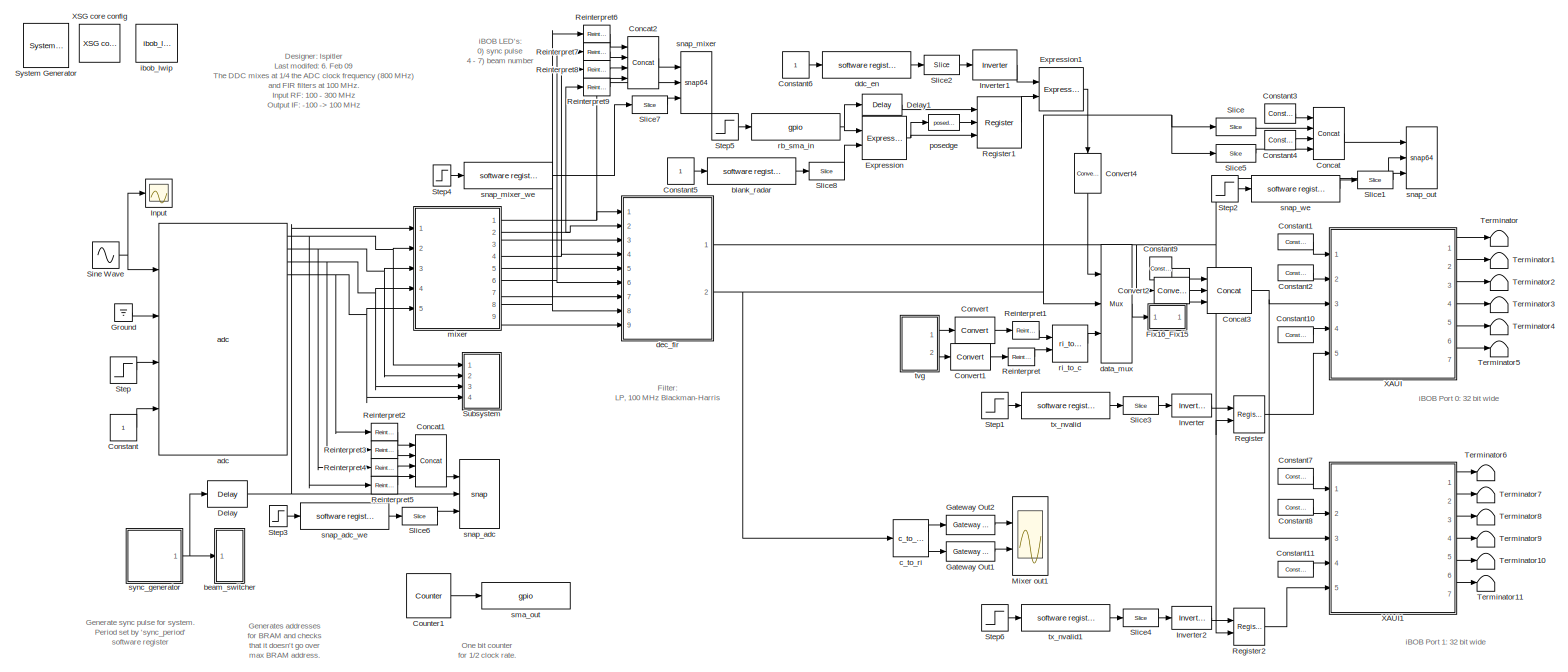
[diagram: root canvas - part 1/1, most of the canvas]
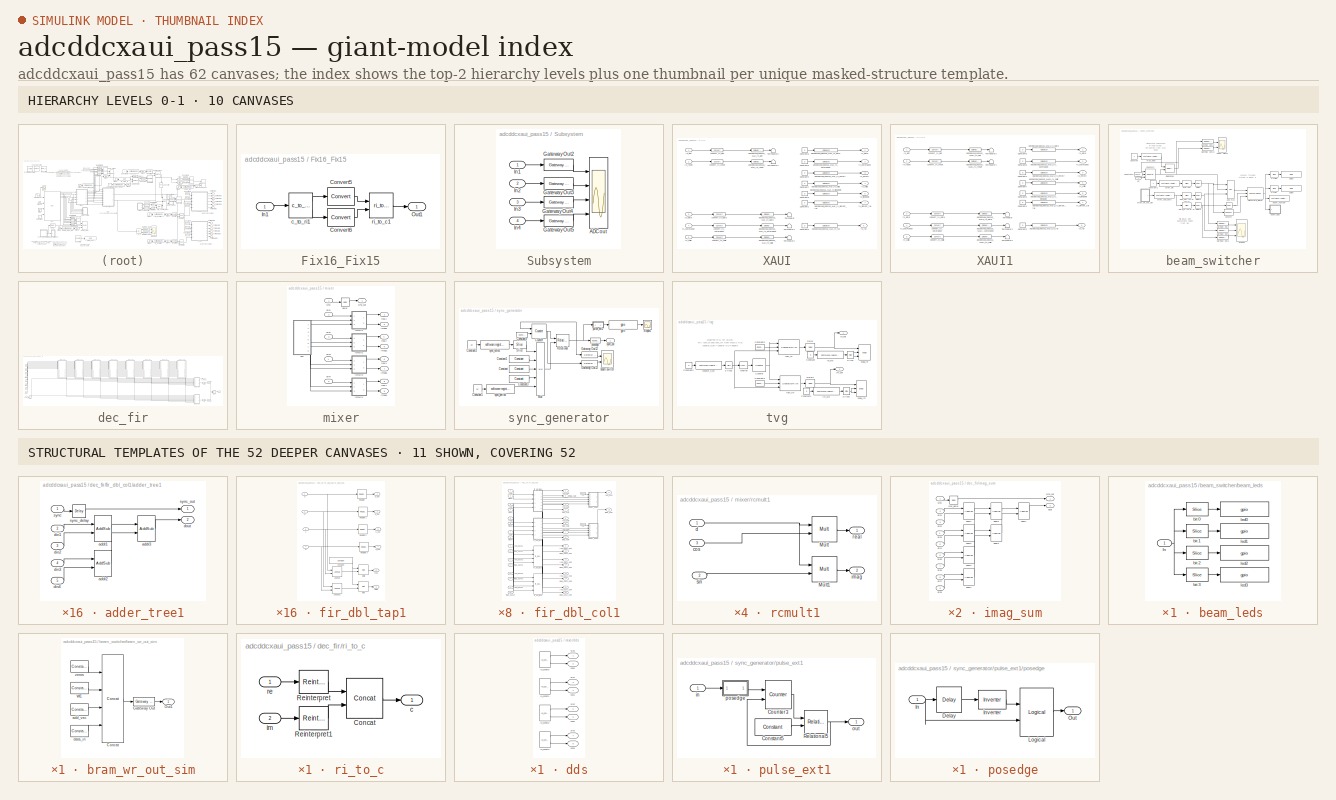
[diagram: thumbnail index - top-2 hierarchy levels (10 canvases) + 11 structural-template representatives of the remaining 52 canvases]
MODEL adcddcxaui_pass15
KIND model
BLOCK [Reference]  System Generator  REF=xbsIndex_r3/ System Generator
  AttributesFormatString = System\\nGenerator
  Ports = []
  ShowPortLabels = on
  SourceBlock = xbsIndex_r3/ System Generator
  SourceType = Xilinx System Generator
  Tag = genX
  UserData = DataTag0
  UserDataPersistent = on
  core_generation = According to Block Masks
  dbl_ovrd = According to Block Masks
  deprecated_control = off
  directory = ./adcddcxaui_pass/sysgen
  eval_field = 0
  incr_netlist = off
  package = ff1152
  part = xc2vp50
  run_coregen = off
  simulink_period = 1
  speed = -7
  synthesis_tool = XST
  sysclk_period = 5
  testbench = off
  trim_vbits = Everywhere in SubSystem
  xilinxfamily = Virtex2P
BLOCK [Reference] Concat  REF=xbsIndex_r3/Concat
  Ports = [4, 1]
  SourceBlock = xbsIndex_r3/Concat
  SourceType = Xilinx Bus Concatenator
  dbl_ovrd = off
  explicit_period = on
  num_inputs = 4
  period = 1
BLOCK [Reference] Concat1  REF=xbsIndex_r3/Concat
  Ports = [4, 1]
  SourceBlock = xbsIndex_r3/Concat
  SourceType = Xilinx Bus Concatenator
  dbl_ovrd = off
  explicit_period = on
  num_inputs = 4
  period = 1
BLOCK [Reference] Concat2  REF=xbsIndex_r3/Concat
  Ports = [4, 1]
  SourceBlock = xbsIndex_r3/Concat
  SourceType = Xilinx Bus Concatenator
  dbl_ovrd = off
  explicit_period = on
  num_inputs = 4
  period = 1
BLOCK [Reference] Concat3  REF=xbsIndex_r3/Concat
  Ports = [3, 1]
  SourceBlock = xbsIndex_r3/Concat
  SourceType = Xilinx Bus Concatenator
  dbl_ovrd = off
  explicit_period = on
  num_inputs = 3
  period = 1
BLOCK [Constant] Constant
BLOCK [Reference] Constant1  REF=xbsIndex_r3/Constant
  Ports = [0, 1]
  SourceBlock = xbsIndex_r3/Constant
  SourceType = Xilinx Constant Block
  arith_type = Boolean
  bin_pt = 0
  carry = CIN
  const = 1
  dbl_ovrd = off
  equ = P=C
  explicit_period = on
  inp1 = P
  inp2 = PCIN>>17
  iostate = 0
  n_bits = 1
  opr = +
  opselect = C
  period = 1
BLOCK [Reference] Constant10  REF=xbsIndex_r3/Constant
  Ports = [0, 1]
  SourceBlock = xbsIndex_r3/Constant
  SourceType = Xilinx Constant Block
  arith_type = Unsigned
  bin_pt = 0
  carry = CIN
  const = 0
  dbl_ovrd = off
  equ = P=C
  explicit_period = on
  inp1 = P
  inp2 = PCIN>>17
  iostate = 0
  n_bits = 4
  opr = +
  opselect = C
  period = 1
BLOCK [Reference] Constant11  REF=xbsIndex_r3/Constant
  Ports = [0, 1]
  SourceBlock = xbsIndex_r3/Constant
  SourceType = Xilinx Constant Block
  arith_type = Unsigned
  bin_pt = 0
  carry = CIN
  const = 0
  dbl_ovrd = off
  equ = P=C
  explicit_period = on
  inp1 = P
  inp2 = PCIN>>17
  iostate = 0
  n_bits = 4
  opr = +
  opselect = C
  period = 1
BLOCK [Reference] Constant2  REF=xbsIndex_r3/Constant
  Ports = [0, 1]
  SourceBlock = xbsIndex_r3/Constant
  SourceType = Xilinx Constant Block
  arith_type = Boolean
  bin_pt = 0
  carry = CIN
  const = 0
  dbl_ovrd = off
  equ = P=C
  explicit_period = on
  inp1 = P
  inp2 = PCIN>>17
  iostate = 0
  n_bits = 1
  opr = +
  opselect = C
  period = 1
BLOCK [Reference] Constant3  REF=xbsIndex_r3/Constant
  Ports = [0, 1]
  SourceBlock = xbsIndex_r3/Constant
  SourceType = Xilinx Constant Block
  arith_type = Unsigned
  bin_pt = 0
  carry = CIN
  const = 0
  dbl_ovrd = off
  equ = P=C
  explicit_period = on
  inp1 = P
  inp2 = PCIN>>17
  iostate = 0
  n_bits = 16
  opr = +
  opselect = C
  period = 1
BLOCK [Reference] Constant4  REF=xbsIndex_r3/Constant
  Ports = [0, 1]
  SourceBlock = xbsIndex_r3/Constant
  SourceType = Xilinx Constant Block
  arith_type = Unsigned
  bin_pt = 0
  carry = CIN
  const = 0
  dbl_ovrd = off
  equ = P=C
  explicit_period = on
  inp1 = P
  inp2 = PCIN>>17
  iostate = 0
  n_bits = 16
  opr = +
  opselect = C
  period = 1
BLOCK [Constant] Constant5
BLOCK [Constant] Constant6
BLOCK [Reference] Constant7  REF=xbsIndex_r3/Constant
  Ports = [0, 1]
  SourceBlock = xbsIndex_r3/Constant
  SourceType = Xilinx Constant Block
  arith_type = Boolean
  bin_pt = 0
  carry = CIN
  const = 1
  dbl_ovrd = off
  equ = P=C
  explicit_period = on
  inp1 = P
  inp2 = PCIN>>17
  iostate = 0
  n_bits = 1
  opr = +
  opselect = C
  period = 1
BLOCK [Reference] Constant8  REF=xbsIndex_r3/Constant
  Ports = [0, 1]
  SourceBlock = xbsIndex_r3/Constant
  SourceType = Xilinx Constant Block
  arith_type = Boolean
  bin_pt = 0
  carry = CIN
  const = 0
  dbl_ovrd = off
  equ = P=C
  explicit_period = on
  inp1 = P
  inp2 = PCIN>>17
  iostate = 0
  n_bits = 1
  opr = +
  opselect = C
  period = 1
BLOCK [Reference] Constant9  REF=xbsIndex_r3/Constant
  Ports = [0, 1]
  SourceBlock = xbsIndex_r3/Constant
  SourceType = Xilinx Constant Block
  arith_type = Unsigned
  bin_pt = 0
  carry = CIN
  const = 0
  dbl_ovrd = off
  equ = P=C
  explicit_period = on
  inp1 = P
  inp2 = PCIN>>17
  iostate = 0
  n_bits = 1
  opr = +
  opselect = C
  period = 1
BLOCK [Reference] Convert  REF=xbsIndex_r3/Convert
  Ports = [1, 1]
  SourceBlock = xbsIndex_r3/Convert
  SourceType = Xilinx Converter Block
  arith_type = Unsigned
  bin_pt = 0
  dbl_ovrd = off
  explicit_period = on
  inserted_by_tool = off
  latency = 0
  n_bits = 16
  overflow = Wrap
  period = 1
  pipeline = off
  quantization = Truncate
  show_param = off
  xl_area = [0, 0, 0, 0, 0, 0, 0]
  xl_use_area = off
BLOCK [Reference] Convert1  REF=xbsIndex_r3/Convert
  Ports = [1, 1]
  SourceBlock = xbsIndex_r3/Convert
  SourceType = Xilinx Converter Block
  arith_type = Unsigned
  bin_pt = 0
  dbl_ovrd = off
  explicit_period = on
  inserted_by_tool = off
  latency = 0
  n_bits = 16
  overflow = Wrap
  period = 1
  pipeline = off
  quantization = Truncate
  show_param = off
  xl_area = [0, 0, 0, 0, 0, 0, 0]
  xl_use_area = off
BLOCK [Reference] Convert2  REF=xbsIndex_r3/Convert
  Ports = [1, 1]
  SourceBlock = xbsIndex_r3/Convert
  SourceType = Xilinx Converter Block
  arith_type = Unsigned
  bin_pt = 0
  dbl_ovrd = off
  explicit_period = on
  inserted_by_tool = off
  latency = 1
  n_bits = 1
  overflow = Wrap
  period = 1
  pipeline = off
  quantization = Truncate
  show_param = off
  xl_area = [0, 0, 0, 0, 0, 0, 0]
  xl_use_area = off
BLOCK [Reference] Convert4  REF=xbsIndex_r3/Convert
  Ports = [1, 1]
  SourceBlock = xbsIndex_r3/Convert
  SourceType = Xilinx Converter Block
  arith_type = Unsigned
  bin_pt = 0
  dbl_ovrd = off
  explicit_period = on
  inserted_by_tool = off
  latency = 0
  n_bits = 1
  overflow = Wrap
  period = 1
  pipeline = off
  quantization = Truncate
  show_param = off
  xl_area = [0, 0, 0, 0, 0, 0, 0]
  xl_use_area = off
BLOCK [Reference] Counter1  REF=xbsIndex_r3/Counter
  Ports = [0, 1]
  SourceBlock = xbsIndex_r3/Counter
  SourceType = Xilinx Counter Block
  arith_type = Unsigned
  bin_pt = 0
  cnt_by_val = 1
  cnt_to = Inf
  cnt_type = Free Running
  dbl_ovrd = off
  en = off
  explicit_period = off
  gen_core = off
  load_pin = off
  n_bits = 1
  operation = Up
  period = 1
  rst = off
  show_param = off
  start_count = 0
  use_rpm = on
  xl_area = [0, 0, 0, 0, 0, 0, 0]
  xl_use_area = off
BLOCK [Reference] Delay  REF=xbsIndex_r3/Delay
  Ports = [1, 1]
  SourceBlock = xbsIndex_r3/Delay
  SourceType = Xilinx Delay Block
  accept_only_valid = off
  dbl_ovrd = off
  en = off
  explicit_period = on
  init_zero = on
  latency = 8
  period = 1
  reg_retiming = off
  show_param = off
  xl_area = [0, 0, 0, 0, 0, 0, 0]
  xl_use_area = off
BLOCK [Reference] Delay1  REF=xbsIndex_r3/Delay
  Ports = [1, 1]
  SourceBlock = xbsIndex_r3/Delay
  SourceType = Xilinx Delay Block
  accept_only_valid = off
  dbl_ovrd = off
  en = off
  explicit_period = on
  init_zero = on
  latency = 1
  period = 1
  reg_retiming = off
  show_param = off
  xl_area = [0, 0, 0, 0, 0, 0, 0]
  xl_use_area = off
BLOCK [Reference] Expression  REF=xbsIndex_r3/Expression
  Ports = [2, 1]
  SourceBlock = xbsIndex_r3/Expression
  SourceType = Xilinx Expression Block
  align_bp = on
  arith_type = Unsigned
  bin_pt = 2
  dbl_ovrd = off
  en = off
  explicit_period = on
  expression = a & b
  latency = 1
  n_bits = 8
  period = 1
  precision = Full
  show_param = off
  xl_area = [0, 0, 0, 0, 0, 0, 0]
  xl_use_area = off
BLOCK [Reference] Expression1  REF=xbsIndex_r3/Expression
  Ports = [2, 1]
  SourceBlock = xbsIndex_r3/Expression
  SourceType = Xilinx Expression Block
  align_bp = on
  arith_type = Unsigned
  bin_pt = 2
  dbl_ovrd = off
  en = off
  explicit_period = on
  expression = a | b
  latency = 0
  n_bits = 8
  period = 1
  precision = Full
  show_param = off
  xl_area = [0, 0, 0, 0, 0, 0, 0]
  xl_use_area = off
BLOCK [SubSystem] Fix16_Fix15
  MinAlgLoopOccurrences = off
  Ports = [1, 1]
  RTWSystemCode = Auto
  TreatAsAtomicUnit = off
BLOCK [Reference] Fix16_Fix15/Convert5  REF=xbsIndex_r3/Convert
  Ports = [1, 1]
  SourceBlock = xbsIndex_r3/Convert
  SourceType = Xilinx Converter Block
  arith_type = Signed  (2's comp)
  bin_pt = 14
  dbl_ovrd = off
  explicit_period = on
  inserted_by_tool = off
  latency = 0
  n_bits = 15
  overflow = Wrap
  period = 1
  pipeline = off
  quantization = Truncate
  show_param = off
  xl_area = [0, 0, 0, 0, 0, 0, 0]
  xl_use_area = off
BLOCK [Reference] Fix16_Fix15/Convert6  REF=xbsIndex_r3/Convert
  Ports = [1, 1]
  SourceBlock = xbsIndex_r3/Convert
  SourceType = Xilinx Converter Block
  arith_type = Signed  (2's comp)
  bin_pt = 14
  dbl_ovrd = off
  explicit_period = on
  inserted_by_tool = off
  latency = 0
  n_bits = 15
  overflow = Wrap
  period = 1
  pipeline = off
  quantization = Truncate
  show_param = off
  xl_area = [0, 0, 0, 0, 0, 0, 0]
  xl_use_area = off
BLOCK [Inport] Fix16_Fix15/In1
  IconDisplay = Port number
  LatchInput = off
  Port = 1
BLOCK [Outport] Fix16_Fix15/Out1
  IconDisplay = Port number
BLOCK [Reference] Fix16_Fix15/c_to_ri1  REF=casper_library/Misc/c_to_ri  (lib defined in mdl_138b2fc3435f, mdl_4ed325b712b3, +2 more)
  AttributesFormatString = 16_15 r/i
  Ports = [1, 2]
  ShowPortLabels = on
  SourceBlock = casper_library/Misc/c_to_ri
  SourceType = c_to_ri
  UserData = DataTag1
  UserDataPersistent = on
  bin_pt = 15
  n_bits = 16
BLOCK [Reference] Fix16_Fix15/ri_to_c1  REF=casper_library/Misc/ri_to_c  (lib defined in mdl_138b2fc3435f, mdl_4ed325b712b3, +2 more)
  Ports = [2, 1]
  ShowPortLabels = on
  SourceBlock = casper_library/Misc/ri_to_c
  SourceType = ri_to_c
  UserData = DataTag2
  UserDataPersistent = on
BLOCK [Reference] Gateway Out1  REF=xbsIndex_r3/Gateway Out
  LOCs = {}
  Ports = [1, 1]
  SourceBlock = xbsIndex_r3/Gateway Out
  SourceType = Xilinx Gateway Out
  arith_type = Boolean
  bin_pt = 6
  hdl_port = on
  locs_specified = off
  nbits = 8
  needs_fixed_name = off
  output_type = Double
  overflow = Wrap
  quantization = Truncate
  show_param = off
  timing_constraint = None
  xl_area = [0, 0, 0, 0, 0, 0, 0]
  xl_use_area = off
BLOCK [Reference] Gateway Out2  REF=xbsIndex_r3/Gateway Out
  LOCs = {}
  Ports = [1, 1]
  SourceBlock = xbsIndex_r3/Gateway Out
  SourceType = Xilinx Gateway Out
  arith_type = Boolean
  bin_pt = 6
  hdl_port = on
  locs_specified = off
  nbits = 8
  needs_fixed_name = off
  output_type = Double
  overflow = Wrap
  quantization = Truncate
  show_param = off
  timing_constraint = None
  xl_area = [0, 0, 0, 0, 0, 0, 0]
  xl_use_area = off
BLOCK [Ground] Ground
BLOCK [Scope] Input
  DataFormat = StructureWithTime
  NumInputPorts = 1
  Ports = [1]
  SaveName = ScopeData2
BLOCK [Reference] Inverter  REF=xbsIndex_r3/Inverter
  Ports = [1, 1]
  SourceBlock = xbsIndex_r3/Inverter
  SourceType = Xilinx Inverter
  dbl_ovrd = off
  en = off
  explicit_period = on
  latency = 0
  period = 1
  show_param = off
  xl_area = [0, 0, 0, 0, 0, 0, 0]
  xl_use_area = off
BLOCK [Reference] Inverter1  REF=xbsIndex_r3/Inverter
  Ports = [1, 1]
  SourceBlock = xbsIndex_r3/Inverter
  SourceType = Xilinx Inverter
  dbl_ovrd = off
  en = off
  explicit_period = off
  latency = 0
  period = 1
  show_param = off
  xl_area = [0, 0, 0, 0, 0, 0, 0]
  xl_use_area = off
BLOCK [Reference] Inverter2  REF=xbsIndex_r3/Inverter
  Ports = [1, 1]
  SourceBlock = xbsIndex_r3/Inverter
  SourceType = Xilinx Inverter
  dbl_ovrd = off
  en = off
  explicit_period = on
  latency = 0
  period = 1
  show_param = off
  xl_area = [0, 0, 0, 0, 0, 0, 0]
  xl_use_area = off
BLOCK [Scope] Mixer out1
  DataFormat = StructureWithTime
  NumInputPorts = 2
  Ports = [2]
  YMax = 5~5
  YMin = -5~-5
BLOCK [Reference] Register  REF=xbsIndex_r3/Register
  Ports = [2, 1]
  SourceBlock = xbsIndex_r3/Register
  SourceType = Xilinx Register Block
  dbl_ovrd = off
  en = on
  explicit_period = on
  init = 0
  out_en = off
  period = 1
  reg_only_valid = off
  rst = off
  show_param = off
  xl_area = [0, 0, 0, 0, 0, 0, 0]
  xl_use_area = off
BLOCK [Reference] Register1  REF=xbsIndex_r3/Register
  Ports = [3, 1]
  SourceBlock = xbsIndex_r3/Register
  SourceType = Xilinx Register Block
  dbl_ovrd = off
  en = on
  explicit_period = on
  init = 0
  out_en = off
  period = 1
  reg_only_valid = off
  rst = on
  show_param = off
  xl_area = [0, 0, 0, 0, 0, 0, 0]
  xl_use_area = off
BLOCK [Reference] Register2  REF=xbsIndex_r3/Register
  Ports = [2, 1]
  SourceBlock = xbsIndex_r3/Register
  SourceType = Xilinx Register Block
  dbl_ovrd = off
  en = on
  explicit_period = on
  init = 0
  out_en = off
  period = 1
  reg_only_valid = off
  rst = off
  show_param = off
  xl_area = [0, 0, 0, 0, 0, 0, 0]
  xl_use_area = off
BLOCK [Reference] Reinterpret  REF=xbsIndex_r3/Reinterpret
  Ports = [1, 1]
  SourceBlock = xbsIndex_r3/Reinterpret
  SourceType = Xilinx Type Reinterpreting Block
  arith_type = Signed  (2's comp)
  bin_pt = 15
  force_arith_type = on
  force_bin_pt = on
  force_valid = on
BLOCK [Reference] Reinterpret1  REF=xbsIndex_r3/Reinterpret
  Ports = [1, 1]
  SourceBlock = xbsIndex_r3/Reinterpret
  SourceType = Xilinx Type Reinterpreting Block
  arith_type = Signed  (2's comp)
  bin_pt = 15
  force_arith_type = on
  force_bin_pt = on
  force_valid = on
BLOCK [Reference] Reinterpret2  REF=xbsIndex_r3/Reinterpret
  Ports = [1, 1]
  SourceBlock = xbsIndex_r3/Reinterpret
  SourceType = Xilinx Type Reinterpreting Block
  arith_type = Unsigned
  bin_pt = 0
  force_arith_type = on
  force_bin_pt = on
  force_valid = on
BLOCK [Reference] Reinterpret3  REF=xbsIndex_r3/Reinterpret
  Ports = [1, 1]
  SourceBlock = xbsIndex_r3/Reinterpret
  SourceType = Xilinx Type Reinterpreting Block
  arith_type = Unsigned
  bin_pt = 0
  force_arith_type = on
  force_bin_pt = on
  force_valid = on
BLOCK [Reference] Reinterpret4  REF=xbsIndex_r3/Reinterpret
  Ports = [1, 1]
  SourceBlock = xbsIndex_r3/Reinterpret
  SourceType = Xilinx Type Reinterpreting Block
  arith_type = Unsigned
  bin_pt = 0
  force_arith_type = on
  force_bin_pt = on
  force_valid = on
BLOCK [Reference] Reinterpret5  REF=xbsIndex_r3/Reinterpret
  Ports = [1, 1]
  SourceBlock = xbsIndex_r3/Reinterpret
  SourceType = Xilinx Type Reinterpreting Block
  arith_type = Unsigned
  bin_pt = 0
  force_arith_type = on
  force_bin_pt = on
  force_valid = on
BLOCK [Reference] Reinterpret6  REF=xbsIndex_r3/Reinterpret
  Ports = [1, 1]
  SourceBlock = xbsIndex_r3/Reinterpret
  SourceType = Xilinx Type Reinterpreting Block
  arith_type = Unsigned
  bin_pt = 0
  force_arith_type = on
  force_bin_pt = on
  force_valid = on
BLOCK [Reference] Reinterpret7  REF=xbsIndex_r3/Reinterpret
  Ports = [1, 1]
  SourceBlock = xbsIndex_r3/Reinterpret
  SourceType = Xilinx Type Reinterpreting Block
  arith_type = Unsigned
  bin_pt = 0
  force_arith_type = on
  force_bin_pt = on
  force_valid = on
BLOCK [Reference] Reinterpret8  REF=xbsIndex_r3/Reinterpret
  Ports = [1, 1]
  SourceBlock = xbsIndex_r3/Reinterpret
  SourceType = Xilinx Type Reinterpreting Block
  arith_type = Unsigned
  bin_pt = 0
  force_arith_type = on
  force_bin_pt = on
  force_valid = on
BLOCK [Reference] Reinterpret9  REF=xbsIndex_r3/Reinterpret
  Ports = [1, 1]
  SourceBlock = xbsIndex_r3/Reinterpret
  SourceType = Xilinx Type Reinterpreting Block
  arith_type = Unsigned
  bin_pt = 0
  force_arith_type = on
  force_bin_pt = on
  force_valid = on
BLOCK [Sin] Sine Wave
  Amplitude = 0.95
  Frequency = 2*3.1415*(11/8)
  Offset = 1
  Ports = [0, 1]
  SampleTime = 0.25
  Samples = 4
  SineType = Time based
BLOCK [Reference] Slice  REF=xbsIndex_r3/Slice
  Ports = [1, 1]
  SourceBlock = xbsIndex_r3/Slice
  SourceType = Xilinx Slice Block
  base0 = LSB of Input
  base1 = MSB of Input
  bit0 = 0
  bit1 = 0
  boolean_output = off
  dbl_ovrd = off
  explicit_period = on
  mode = Upper Bit Location + Width
  nbits = 16
  period = 1
BLOCK [Reference] Slice1  REF=xbsIndex_r3/Slice
  Ports = [1, 1]
  SourceBlock = xbsIndex_r3/Slice
  SourceType = Xilinx Slice Block
  base0 = LSB of Input
  base1 = MSB of Input
  bit0 = 0
  bit1 = 0
  boolean_output = on
  dbl_ovrd = off
  explicit_period = off
  mode = Lower Bit Location + Width
  nbits = 1
  period = 1
BLOCK [Reference] Slice2  REF=xbsIndex_r3/Slice
  Ports = [1, 1]
  SourceBlock = xbsIndex_r3/Slice
  SourceType = Xilinx Slice Block
  base0 = LSB of Input
  base1 = MSB of Input
  bit0 = 0
  bit1 = 0
  boolean_output = on
  dbl_ovrd = off
  explicit_period = off
  mode = Lower Bit Location + Width
  nbits = 1
  period = 1
BLOCK [Reference] Slice3  REF=xbsIndex_r3/Slice
  Ports = [1, 1]
  SourceBlock = xbsIndex_r3/Slice
  SourceType = Xilinx Slice Block
  base0 = LSB of Input
  base1 = MSB of Input
  bit0 = 0
  bit1 = 0
  boolean_output = on
  dbl_ovrd = off
  explicit_period = off
  mode = Lower Bit Location + Width
  nbits = 1
  period = 1
BLOCK [Reference] Slice4  REF=xbsIndex_r3/Slice
  Ports = [1, 1]
  SourceBlock = xbsIndex_r3/Slice
  SourceType = Xilinx Slice Block
  base0 = LSB of Input
  base1 = MSB of Input
  bit0 = 0
  bit1 = 0
  boolean_output = on
  dbl_ovrd = off
  explicit_period = off
  mode = Lower Bit Location + Width
  nbits = 1
  period = 1
BLOCK [Reference] Slice5  REF=xbsIndex_r3/Slice
  Ports = [1, 1]
  SourceBlock = xbsIndex_r3/Slice
  SourceType = Xilinx Slice Block
  base0 = LSB of Input
  base1 = MSB of Input
  bit0 = 0
  bit1 = 0
  boolean_output = off
  dbl_ovrd = off
  explicit_period = on
  mode = Lower Bit Location + Width
  nbits = 16
  period = 1
BLOCK [Reference] Slice6  REF=xbsIndex_r3/Slice
  Ports = [1, 1]
  SourceBlock = xbsIndex_r3/Slice
  SourceType = Xilinx Slice Block
  base0 = LSB of Input
  base1 = MSB of Input
  bit0 = 0
  bit1 = 0
  boolean_output = on
  dbl_ovrd = off
  explicit_period = off
  mode = Lower Bit Location + Width
  nbits = 1
  period = 1
BLOCK [Reference] Slice7  REF=xbsIndex_r3/Slice
  Ports = [1, 1]
  SourceBlock = xbsIndex_r3/Slice
  SourceType = Xilinx Slice Block
  base0 = LSB of Input
  base1 = MSB of Input
  bit0 = 0
  bit1 = 0
  boolean_output = on
  dbl_ovrd = off
  explicit_period = off
  mode = Lower Bit Location + Width
  nbits = 1
  period = 1
BLOCK [Reference] Slice8  REF=xbsIndex_r3/Slice
  Ports = [1, 1]
  SourceBlock = xbsIndex_r3/Slice
  SourceType = Xilinx Slice Block
  base0 = LSB of Input
  base1 = MSB of Input
  bit0 = 0
  bit1 = 0
  boolean_output = on
  dbl_ovrd = off
  explicit_period = off
  mode = Lower Bit Location + Width
  nbits = 1
  period = 1
BLOCK [Step] Step
  SampleTime = 0
BLOCK [Step] Step1
  SampleTime = 0
BLOCK [Step] Step2
  SampleTime = 0
BLOCK [Step] Step3
  SampleTime = 0
BLOCK [Step] Step4
  SampleTime = 0
BLOCK [Step] Step5
  SampleTime = 0
BLOCK [Step] Step6
  SampleTime = 0
BLOCK [SubSystem] Subsystem
  MinAlgLoopOccurrences = off
  Ports = [4]
  RTWSystemCode = Auto
  TreatAsAtomicUnit = off
BLOCK [Scope] Subsystem/ADC out
  DataFormat = StructureWithTime
  NumInputPorts = 4
  Ports = [4]
  SaveName = ScopeData3
  YMax = 5~5~5~5
  YMin = -5~-5~-5~-5
BLOCK [Reference] Subsystem/Gateway Out2  REF=xbsIndex_r3/Gateway Out
  LOCs = {}
  Ports = [1, 1]
  SourceBlock = xbsIndex_r3/Gateway Out
  SourceType = Xilinx Gateway Out
  arith_type = Boolean
  bin_pt = 6
  hdl_port = on
  locs_specified = off
  nbits = 8
  needs_fixed_name = off
  output_type = Double
  overflow = Wrap
  quantization = Truncate
  show_param = off
  timing_constraint = None
  xl_area = [0, 0, 0, 0, 0, 0, 0]
  xl_use_area = off
BLOCK [Reference] Subsystem/Gateway Out3  REF=xbsIndex_r3/Gateway Out
  LOCs = {}
  Ports = [1, 1]
  SourceBlock = xbsIndex_r3/Gateway Out
  SourceType = Xilinx Gateway Out
  arith_type = Boolean
  bin_pt = 6
  hdl_port = on
  locs_specified = off
  nbits = 8
  needs_fixed_name = off
  output_type = Double
  overflow = Wrap
  quantization = Truncate
  show_param = off
  timing_constraint = None
  xl_area = [0, 0, 0, 0, 0, 0, 0]
  xl_use_area = off
BLOCK [Reference] Subsystem/Gateway Out4  REF=xbsIndex_r3/Gateway Out
  LOCs = {}
  Ports = [1, 1]
  SourceBlock = xbsIndex_r3/Gateway Out
  SourceType = Xilinx Gateway Out
  arith_type = Boolean
  bin_pt = 6
  hdl_port = on
  locs_specified = off
  nbits = 8
  needs_fixed_name = off
  output_type = Double
  overflow = Wrap
  quantization = Truncate
  show_param = off
  timing_constraint = None
  xl_area = [0, 0, 0, 0, 0, 0, 0]
  xl_use_area = off
BLOCK [Reference] Subsystem/Gateway Out5  REF=xbsIndex_r3/Gateway Out
  LOCs = {}
  Ports = [1, 1]
  SourceBlock = xbsIndex_r3/Gateway Out
  SourceType = Xilinx Gateway Out
  arith_type = Boolean
  bin_pt = 6
  hdl_port = on
  locs_specified = off
  nbits = 8
  needs_fixed_name = off
  output_type = Double
  overflow = Wrap
  quantization = Truncate
  show_param = off
  timing_constraint = None
  xl_area = [0, 0, 0, 0, 0, 0, 0]
  xl_use_area = off
BLOCK [Inport] Subsystem/In1
  IconDisplay = Port number
  LatchInput = off
  Port = 1
BLOCK [Inport] Subsystem/In2
  IconDisplay = Port number
  LatchInput = off
  Port = 2
BLOCK [Inport] Subsystem/In3
  IconDisplay = Port number
  LatchInput = off
  Port = 3
BLOCK [Inport] Subsystem/In4
  IconDisplay = Port number
  LatchInput = off
  Port = 4
BLOCK [Terminator] Terminator
BLOCK [Terminator] Terminator1
BLOCK [Terminator] Terminator10
BLOCK [Terminator] Terminator11
BLOCK [Terminator] Terminator2
BLOCK [Terminator] Terminator3
BLOCK [Terminator] Terminator4
BLOCK [Terminator] Terminator5
BLOCK [Terminator] Terminator6
BLOCK [Terminator] Terminator7
BLOCK [Terminator] Terminator8
BLOCK [Terminator] Terminator9
BLOCK [SubSystem] XAUI
  AncestorBlock = xps_library/XAUI
  MaskCallbackString = ||myname=gcb;\nif strcmp(get_param(myname, 'show_param'), 'on')\n    set_param(myname, 'MaskVisibilities', {'on','on','on','on','on'});\nelse\n    set_param(myname, 'MaskVisibilities', {'on','on','on','off','off'});\nend||
  MaskDescription = XAUI block for sending and receiving point-to-point, streaming data over the BEE2 and iBOB's CX4 connectors. NOTE: A new version of this block is in development.
  MaskEnableString = on,on,on,on,on
  MaskHelp = eval('xlWeb([getenv(''MLIB_ROOT''), ''<path>''])')
  MaskIconFrame = on
  MaskIconOpaque = on
  MaskIconRotate = none
  MaskIconUnits = autoscale
  MaskInitialization = xaui_mask;
  MaskPromptString = Demux|Port|---------------------- Show Implementation Parameters -----------------------------------------------------------------------------------|Pre-emphasis|Differential swing
  MaskSelfModifiable = on
  MaskStyleString = popup(1|2),popup(iBOB:0|iBOB:1|BEE2_ctrl:0|BEE2_ctrl:1|BEE2_usr:0|BEE2_usr:1|BEE2_usr:2|BEE2_usr:3|CORR:0),checkbox,popup(0|1|2|3),popup(400|500|600|700|800)
  MaskTabNameString = ,,,,
  MaskToolTipString = on,on,on,on,on
  MaskTunableValueString = off,off,off,off,off
  MaskType = xaui
  MaskValueString = 2|iBOB:0|off|3|800
  MaskVarAliasString = ,,,,
  MaskVariables = demux=@1;port=@2;show_param=&3;pre_emph=@4;swing=@5;
  MaskVisibilityString = on,on,on,off,off
  MinAlgLoopOccurrences = off
  Ports = [5, 7]
  RTWSystemCode = Auto
  Tag = xps:xaui
  TreatAsAtomicUnit = off
BLOCK [Constant] XAUI/Constant1
  Value = 0
BLOCK [Constant] XAUI/Constant2
  Value = 0
BLOCK [Constant] XAUI/Constant3
  Value = 0
BLOCK [Constant] XAUI/Constant4
  Value = 0
BLOCK [Constant] XAUI/Constant5
  Value = 0
BLOCK [Constant] XAUI/Constant6
  Value = 0
BLOCK [Constant] XAUI/Constant7
  Value = 0
BLOCK [Terminator] XAUI/Terminator
BLOCK [Terminator] XAUI/Terminator1
BLOCK [Terminator] XAUI/Terminator2
BLOCK [Terminator] XAUI/Terminator3
BLOCK [Terminator] XAUI/Terminator4
BLOCK [Reference] XAUI/adcddcxaui_pass15_XAUI_rx_almost_full  REF=xbsIndex_r3/Gateway In
  LOCs = {}
  Ports = [1, 1]
  SourceBlock = xbsIndex_r3/Gateway In
  SourceType = Xilinx Gateway In
  arith_type = Boolean
  bin_pt = 0
  dbl_ovrd = off
  locs_specified = off
  n_bits = 1
  needs_fixed_name = off
  overflow = Wrap
  period = 1
  quantization = Truncate
  show_param = off
  timing_constraint = None
  xl_area = [0, 0, 0, 0, 0, 0, 0]
  xl_use_area = off
BLOCK [Reference] XAUI/adcddcxaui_pass15_XAUI_rx_data  REF=xbsIndex_r3/Gateway In
  LOCs = {}
  Ports = [1, 1]
  SourceBlock = xbsIndex_r3/Gateway In
  SourceType = Xilinx Gateway In
  arith_type = Unsigned
  bin_pt = 0
  dbl_ovrd = off
  locs_specified = off
  n_bits = 32
  needs_fixed_name = off
  overflow = Wrap
  period = 1
  quantization = Truncate
  show_param = off
  timing_constraint = None
  xl_area = [0, 0, 0, 0, 0, 0, 0]
  xl_use_area = off
BLOCK [Reference] XAUI/adcddcxaui_pass15_XAUI_rx_empty  REF=xbsIndex_r3/Gateway In
  LOCs = {}
  Ports = [1, 1]
  SourceBlock = xbsIndex_r3/Gateway In
  SourceType = Xilinx Gateway In
  arith_type = Boolean
  bin_pt = 0
  dbl_ovrd = off
  locs_specified = off
  n_bits = 1
  needs_fixed_name = off
  overflow = Wrap
  period = 1
  quantization = Truncate
  show_param = off
  timing_constraint = None
  xl_area = [0, 0, 0, 0, 0, 0, 0]
  xl_use_area = off
BLOCK [Reference] XAUI/adcddcxaui_pass15_XAUI_rx_get  REF=xbsIndex_r3/Gateway Out
  LOCs = {}
  Ports = [1, 1]
  SourceBlock = xbsIndex_r3/Gateway Out
  SourceType = Xilinx Gateway Out
  arith_type = Boolean
  bin_pt = 6
  hdl_port = on
  locs_specified = off
  nbits = 8
  needs_fixed_name = off
  output_type = Double
  overflow = Wrap
  quantization = Truncate
  show_param = off
  timing_constraint = None
  xl_area = [0, 0, 0, 0, 0, 0, 0]
  xl_use_area = off
BLOCK [Reference] XAUI/adcddcxaui_pass15_XAUI_rx_linkdown  REF=xbsIndex_r3/Gateway In
  LOCs = {}
  Ports = [1, 1]
  SourceBlock = xbsIndex_r3/Gateway In
  SourceType = Xilinx Gateway In
  arith_type = Boolean
  bin_pt = 0
  dbl_ovrd = off
  locs_specified = off
  n_bits = 1
  needs_fixed_name = off
  overflow = Wrap
  period = 1
  quantization = Truncate
  show_param = off
  timing_constraint = None
  xl_area = [0, 0, 0, 0, 0, 0, 0]
  xl_use_area = off
BLOCK [Reference] XAUI/adcddcxaui_pass15_XAUI_rx_outofband  REF=xbsIndex_r3/Gateway In
  LOCs = {}
  Ports = [1, 1]
  SourceBlock = xbsIndex_r3/Gateway In
  SourceType = Xilinx Gateway In
  arith_type = Unsigned
  bin_pt = 0
  dbl_ovrd = off
  locs_specified = off
  n_bits = 4
  needs_fixed_name = off
  overflow = Wrap
  period = 1
  quantization = Truncate
  show_param = off
  timing_constraint = None
  xl_area = [0, 0, 0, 0, 0, 0, 0]
  xl_use_area = off
BLOCK [Reference] XAUI/adcddcxaui_pass15_XAUI_rx_reset  REF=xbsIndex_r3/Gateway Out
  LOCs = {}
  Ports = [1, 1]
  SourceBlock = xbsIndex_r3/Gateway Out
  SourceType = Xilinx Gateway Out
  arith_type = Boolean
  bin_pt = 6
  hdl_port = on
  locs_specified = off
  nbits = 8
  needs_fixed_name = off
  output_type = Double
  overflow = Wrap
  quantization = Truncate
  show_param = off
  timing_constraint = None
  xl_area = [0, 0, 0, 0, 0, 0, 0]
  xl_use_area = off
BLOCK [Reference] XAUI/adcddcxaui_pass15_XAUI_rx_valid  REF=xbsIndex_r3/Gateway In
  LOCs = {}
  Ports = [1, 1]
  SourceBlock = xbsIndex_r3/Gateway In
  SourceType = Xilinx Gateway In
  arith_type = Boolean
  bin_pt = 0
  dbl_ovrd = off
  locs_specified = off
  n_bits = 1
  needs_fixed_name = off
  overflow = Wrap
  period = 1
  quantization = Truncate
  show_param = off
  timing_constraint = None
  xl_area = [0, 0, 0, 0, 0, 0, 0]
  xl_use_area = off
BLOCK [Reference] XAUI/adcddcxaui_pass15_XAUI_tx_data  REF=xbsIndex_r3/Gateway Out
  LOCs = {}
  Ports = [1, 1]
  SourceBlock = xbsIndex_r3/Gateway Out
  SourceType = Xilinx Gateway Out
  arith_type = Boolean
  bin_pt = 6
  hdl_port = on
  locs_specified = off
  nbits = 8
  needs_fixed_name = off
  output_type = Double
  overflow = Wrap
  quantization = Truncate
  show_param = off
  timing_constraint = None
  xl_area = [0, 0, 0, 0, 0, 0, 0]
  xl_use_area = off
BLOCK [Reference] XAUI/adcddcxaui_pass15_XAUI_tx_full  REF=xbsIndex_r3/Gateway In
  LOCs = {}
  Ports = [1, 1]
  SourceBlock = xbsIndex_r3/Gateway In
  SourceType = Xilinx Gateway In
  arith_type = Boolean
  bin_pt = 0
  dbl_ovrd = off
  locs_specified = off
  n_bits = 1
  needs_fixed_name = off
  overflow = Wrap
  period = 1
  quantization = Truncate
  show_param = off
  timing_constraint = None
  xl_area = [0, 0, 0, 0, 0, 0, 0]
  xl_use_area = off
BLOCK [Reference] XAUI/adcddcxaui_pass15_XAUI_tx_outofband  REF=xbsIndex_r3/Gateway Out
  LOCs = {}
  Ports = [1, 1]
  SourceBlock = xbsIndex_r3/Gateway Out
  SourceType = Xilinx Gateway Out
  arith_type = Boolean
  bin_pt = 6
  hdl_port = on
  locs_specified = off
  nbits = 8
  needs_fixed_name = off
  output_type = Double
  overflow = Wrap
  quantization = Truncate
  show_param = off
  timing_constraint = None
  xl_area = [0, 0, 0, 0, 0, 0, 0]
  xl_use_area = off
BLOCK [Reference] XAUI/adcddcxaui_pass15_XAUI_tx_valid  REF=xbsIndex_r3/Gateway Out
  LOCs = {}
  Ports = [1, 1]
  SourceBlock = xbsIndex_r3/Gateway Out
  SourceType = Xilinx Gateway Out
  arith_type = Boolean
  bin_pt = 6
  hdl_port = on
  locs_specified = off
  nbits = 8
  needs_fixed_name = off
  output_type = Double
  overflow = Wrap
  quantization = Truncate
  show_param = off
  timing_constraint = None
  xl_area = [0, 0, 0, 0, 0, 0, 0]
  xl_use_area = off
BLOCK [Reference] XAUI/convert_rx_get  REF=xbsIndex_r3/Convert
  Ports = [1, 1]
  SourceBlock = xbsIndex_r3/Convert
  SourceType = Xilinx Converter Block
  arith_type = Boolean
  bin_pt = 0
  dbl_ovrd = off
  explicit_period = off
  inserted_by_tool = off
  latency = 0
  n_bits = 64
  overflow = Wrap
  period = 1
  pipeline = off
  quantization = Truncate
  show_param = off
  xl_area = [0, 0, 0, 0, 0, 0, 0]
  xl_use_area = off
BLOCK [Reference] XAUI/convert_rx_reset  REF=xbsIndex_r3/Convert
  Ports = [1, 1]
  SourceBlock = xbsIndex_r3/Convert
  SourceType = Xilinx Converter Block
  arith_type = Boolean
  bin_pt = 0
  dbl_ovrd = off
  explicit_period = off
  inserted_by_tool = off
  latency = 0
  n_bits = 1
  overflow = Wrap
  period = 1
  pipeline = off
  quantization = Truncate
  show_param = off
  xl_area = [0, 0, 0, 0, 0, 0, 0]
  xl_use_area = off
BLOCK [Reference] XAUI/convert_tx_data  REF=xbsIndex_r3/Convert
  Ports = [1, 1]
  SourceBlock = xbsIndex_r3/Convert
  SourceType = Xilinx Converter Block
  arith_type = Unsigned
  bin_pt = 0
  dbl_ovrd = off
  explicit_period = off
  inserted_by_tool = off
  latency = 0
  n_bits = 32
  overflow = Wrap
  period = 1
  pipeline = off
  quantization = Truncate
  show_param = off
  xl_area = [0, 0, 0, 0, 0, 0, 0]
  xl_use_area = off
BLOCK [Reference] XAUI/convert_tx_outofband  REF=xbsIndex_r3/Convert
  Ports = [1, 1]
  SourceBlock = xbsIndex_r3/Convert
  SourceType = Xilinx Converter Block
  arith_type = Unsigned
  bin_pt = 0
  dbl_ovrd = off
  explicit_period = off
  inserted_by_tool = off
  latency = 0
  n_bits = 4
  overflow = Wrap
  period = 1
  pipeline = off
  quantization = Truncate
  show_param = off
  xl_area = [0, 0, 0, 0, 0, 0, 0]
  xl_use_area = off
BLOCK [Reference] XAUI/convert_tx_valid  REF=xbsIndex_r3/Convert
  Ports = [1, 1]
  SourceBlock = xbsIndex_r3/Convert
  SourceType = Xilinx Converter Block
  arith_type = Boolean
  bin_pt = 0
  dbl_ovrd = off
  explicit_period = off
  inserted_by_tool = off
  latency = 0
  n_bits = 1
  overflow = Wrap
  period = 1
  pipeline = off
  quantization = Truncate
  show_param = off
  xl_area = [0, 0, 0, 0, 0, 0, 0]
  xl_use_area = off
BLOCK [Outport] XAUI/rx_almost_full
  BusOutputAsStruct = off
  IconDisplay = Port number
  Port = 7
BLOCK [Outport] XAUI/rx_data
  BusOutputAsStruct = off
  IconDisplay = Port number
BLOCK [Outport] XAUI/rx_empty
  BusOutputAsStruct = off
  IconDisplay = Port number
  Port = 3
BLOCK [Inport] XAUI/rx_get
  IconDisplay = Port number
  LatchInput = off
  Port = 1
BLOCK [Outport] XAUI/rx_linkdown
  BusOutputAsStruct = off
  IconDisplay = Port number
  Port = 5
BLOCK [Outport] XAUI/rx_outofband
  BusOutputAsStruct = off
  IconDisplay = Port number
  Port = 2
BLOCK [Inport] XAUI/rx_reset
  IconDisplay = Port number
  LatchInput = off
  Port = 2
BLOCK [Outport] XAUI/rx_valid
  BusOutputAsStruct = off
  IconDisplay = Port number
  Port = 4
BLOCK [Inport] XAUI/tx_data
  IconDisplay = Port number
  LatchInput = off
  Port = 3
BLOCK [Outport] XAUI/tx_full
  BusOutputAsStruct = off
  IconDisplay = Port number
  Port = 6
BLOCK [Inport] XAUI/tx_outofband
  IconDisplay = Port number
  LatchInput = off
  Port = 4
BLOCK [Inport] XAUI/tx_valid
  IconDisplay = Port number
  LatchInput = off
  Port = 5
BLOCK [SubSystem] XAUI1
  AncestorBlock = xps_library/XAUI
  MaskCallbackString = ||myname=gcb;\nif strcmp(get_param(myname, 'show_param'), 'on')\n    set_param(myname, 'MaskVisibilities', {'on','on','on','on','on'});\nelse\n    set_param(myname, 'MaskVisibilities', {'on','on','on','off','off'});\nend||
  MaskDescription = XAUI block for sending and receiving point-to-point, streaming data over the BEE2 and iBOB's CX4 connectors. NOTE: A new version of this block is in development.
  MaskEnableString = on,on,on,on,on
  MaskHelp = eval('xlWeb([getenv(''MLIB_ROOT''), ''<path>''])')
  MaskIconFrame = on
  MaskIconOpaque = on
  MaskIconRotate = none
  MaskIconUnits = autoscale
  MaskInitialization = xaui_mask;
  MaskPromptString = Demux|Port|---------------------- Show Implementation Parameters -----------------------------------------------------------------------------------|Pre-emphasis|Differential swing
  MaskSelfModifiable = on
  MaskStyleString = popup(1|2),popup(iBOB:0|iBOB:1|BEE2_ctrl:0|BEE2_ctrl:1|BEE2_usr:0|BEE2_usr:1|BEE2_usr:2|BEE2_usr:3|CORR:0),checkbox,popup(0|1|2|3),popup(400|500|600|700|800)
  MaskTabNameString = ,,,,
  MaskToolTipString = on,on,on,on,on
  MaskTunableValueString = off,off,off,off,off
  MaskType = xaui
  MaskValueString = 2|iBOB:1|off|3|800
  MaskVarAliasString = ,,,,
  MaskVariables = demux=@1;port=@2;show_param=&3;pre_emph=@4;swing=@5;
  MaskVisibilityString = on,on,on,off,off
  MinAlgLoopOccurrences = off
  Ports = [5, 7]
  RTWSystemCode = Auto
  Tag = xps:xaui
  TreatAsAtomicUnit = off
BLOCK [Constant] XAUI1/Constant1
  Value = 0
BLOCK [Constant] XAUI1/Constant2
  Value = 0
BLOCK [Constant] XAUI1/Constant3
  Value = 0
BLOCK [Constant] XAUI1/Constant4
  Value = 0
BLOCK [Constant] XAUI1/Constant5
  Value = 0
BLOCK [Constant] XAUI1/Constant6
  Value = 0
BLOCK [Constant] XAUI1/Constant7
  Value = 0
BLOCK [Terminator] XAUI1/Terminator
BLOCK [Terminator] XAUI1/Terminator1
BLOCK [Terminator] XAUI1/Terminator2
BLOCK [Terminator] XAUI1/Terminator3
BLOCK [Terminator] XAUI1/Terminator4
BLOCK [Reference] XAUI1/adcddcxaui_pass15_XAUI1_rx_almost_full  REF=xbsIndex_r3/Gateway In
  LOCs = {}
  Ports = [1, 1]
  SourceBlock = xbsIndex_r3/Gateway In
  SourceType = Xilinx Gateway In
  arith_type = Boolean
  bin_pt = 0
  dbl_ovrd = off
  locs_specified = off
  n_bits = 1
  needs_fixed_name = off
  overflow = Wrap
  period = 1
  quantization = Truncate
  show_param = off
  timing_constraint = None
  xl_area = [0, 0, 0, 0, 0, 0, 0]
  xl_use_area = off
BLOCK [Reference] XAUI1/adcddcxaui_pass15_XAUI1_rx_data  REF=xbsIndex_r3/Gateway In
  LOCs = {}
  Ports = [1, 1]
  SourceBlock = xbsIndex_r3/Gateway In
  SourceType = Xilinx Gateway In
  arith_type = Unsigned
  bin_pt = 0
  dbl_ovrd = off
  locs_specified = off
  n_bits = 32
  needs_fixed_name = off
  overflow = Wrap
  period = 1
  quantization = Truncate
  show_param = off
  timing_constraint = None
  xl_area = [0, 0, 0, 0, 0, 0, 0]
  xl_use_area = off
BLOCK [Reference] XAUI1/adcddcxaui_pass15_XAUI1_rx_empty  REF=xbsIndex_r3/Gateway In
  LOCs = {}
  Ports = [1, 1]
  SourceBlock = xbsIndex_r3/Gateway In
  SourceType = Xilinx Gateway In
  arith_type = Boolean
  bin_pt = 0
  dbl_ovrd = off
  locs_specified = off
  n_bits = 1
  needs_fixed_name = off
  overflow = Wrap
  period = 1
  quantization = Truncate
  show_param = off
  timing_constraint = None
  xl_area = [0, 0, 0, 0, 0, 0, 0]
  xl_use_area = off
BLOCK [Reference] XAUI1/adcddcxaui_pass15_XAUI1_rx_get  REF=xbsIndex_r3/Gateway Out
  LOCs = {}
  Ports = [1, 1]
  SourceBlock = xbsIndex_r3/Gateway Out
  SourceType = Xilinx Gateway Out
  arith_type = Boolean
  bin_pt = 6
  hdl_port = on
  locs_specified = off
  nbits = 8
  needs_fixed_name = off
  output_type = Double
  overflow = Wrap
  quantization = Truncate
  show_param = off
  timing_constraint = None
  xl_area = [0, 0, 0, 0, 0, 0, 0]
  xl_use_area = off
BLOCK [Reference] XAUI1/adcddcxaui_pass15_XAUI1_rx_linkdown  REF=xbsIndex_r3/Gateway In
  LOCs = {}
  Ports = [1, 1]
  SourceBlock = xbsIndex_r3/Gateway In
  SourceType = Xilinx Gateway In
  arith_type = Boolean
  bin_pt = 0
  dbl_ovrd = off
  locs_specified = off
  n_bits = 1
  needs_fixed_name = off
  overflow = Wrap
  period = 1
  quantization = Truncate
  show_param = off
  timing_constraint = None
  xl_area = [0, 0, 0, 0, 0, 0, 0]
  xl_use_area = off
BLOCK [Reference] XAUI1/adcddcxaui_pass15_XAUI1_rx_outofband  REF=xbsIndex_r3/Gateway In
  LOCs = {}
  Ports = [1, 1]
  SourceBlock = xbsIndex_r3/Gateway In
  SourceType = Xilinx Gateway In
  arith_type = Unsigned
  bin_pt = 0
  dbl_ovrd = off
  locs_specified = off
  n_bits = 4
  needs_fixed_name = off
  overflow = Wrap
  period = 1
  quantization = Truncate
  show_param = off
  timing_constraint = None
  xl_area = [0, 0, 0, 0, 0, 0, 0]
  xl_use_area = off
BLOCK [Reference] XAUI1/adcddcxaui_pass15_XAUI1_rx_reset  REF=xbsIndex_r3/Gateway Out
  LOCs = {}
  Ports = [1, 1]
  SourceBlock = xbsIndex_r3/Gateway Out
  SourceType = Xilinx Gateway Out
  arith_type = Boolean
  bin_pt = 6
  hdl_port = on
  locs_specified = off
  nbits = 8
  needs_fixed_name = off
  output_type = Double
  overflow = Wrap
  quantization = Truncate
  show_param = off
  timing_constraint = None
  xl_area = [0, 0, 0, 0, 0, 0, 0]
  xl_use_area = off
BLOCK [Reference] XAUI1/adcddcxaui_pass15_XAUI1_rx_valid  REF=xbsIndex_r3/Gateway In
  LOCs = {}
  Ports = [1, 1]
  SourceBlock = xbsIndex_r3/Gateway In
  SourceType = Xilinx Gateway In
  arith_type = Boolean
  bin_pt = 0
  dbl_ovrd = off
  locs_specified = off
  n_bits = 1
  needs_fixed_name = off
  overflow = Wrap
  period = 1
  quantization = Truncate
  show_param = off
  timing_constraint = None
  xl_area = [0, 0, 0, 0, 0, 0, 0]
  xl_use_area = off
BLOCK [Reference] XAUI1/adcddcxaui_pass15_XAUI1_tx_data  REF=xbsIndex_r3/Gateway Out
  LOCs = {}
  Ports = [1, 1]
  SourceBlock = xbsIndex_r3/Gateway Out
  SourceType = Xilinx Gateway Out
  arith_type = Boolean
  bin_pt = 6
  hdl_port = on
  locs_specified = off
  nbits = 8
  needs_fixed_name = off
  output_type = Double
  overflow = Wrap
  quantization = Truncate
  show_param = off
  timing_constraint = None
  xl_area = [0, 0, 0, 0, 0, 0, 0]
  xl_use_area = off
BLOCK [Reference] XAUI1/adcddcxaui_pass15_XAUI1_tx_full  REF=xbsIndex_r3/Gateway In
  LOCs = {}
  Ports = [1, 1]
  SourceBlock = xbsIndex_r3/Gateway In
  SourceType = Xilinx Gateway In
  arith_type = Boolean
  bin_pt = 0
  dbl_ovrd = off
  locs_specified = off
  n_bits = 1
  needs_fixed_name = off
  overflow = Wrap
  period = 1
  quantization = Truncate
  show_param = off
  timing_constraint = None
  xl_area = [0, 0, 0, 0, 0, 0, 0]
  xl_use_area = off
BLOCK [Reference] XAUI1/adcddcxaui_pass15_XAUI1_tx_outofband  REF=xbsIndex_r3/Gateway Out
  LOCs = {}
  Ports = [1, 1]
  SourceBlock = xbsIndex_r3/Gateway Out
  SourceType = Xilinx Gateway Out
  arith_type = Boolean
  bin_pt = 6
  hdl_port = on
  locs_specified = off
  nbits = 8
  needs_fixed_name = off
  output_type = Double
  overflow = Wrap
  quantization = Truncate
  show_param = off
  timing_constraint = None
  xl_area = [0, 0, 0, 0, 0, 0, 0]
  xl_use_area = off
BLOCK [Reference] XAUI1/adcddcxaui_pass15_XAUI1_tx_valid  REF=xbsIndex_r3/Gateway Out
  LOCs = {}
  Ports = [1, 1]
  SourceBlock = xbsIndex_r3/Gateway Out
  SourceType = Xilinx Gateway Out
  arith_type = Boolean
  bin_pt = 6
  hdl_port = on
  locs_specified = off
  nbits = 8
  needs_fixed_name = off
  output_type = Double
  overflow = Wrap
  quantization = Truncate
  show_param = off
  timing_constraint = None
  xl_area = [0, 0, 0, 0, 0, 0, 0]
  xl_use_area = off
BLOCK [Reference] XAUI1/convert_rx_get  REF=xbsIndex_r3/Convert
  Ports = [1, 1]
  SourceBlock = xbsIndex_r3/Convert
  SourceType = Xilinx Converter Block
  arith_type = Boolean
  bin_pt = 0
  dbl_ovrd = off
  explicit_period = off
  inserted_by_tool = off
  latency = 0
  n_bits = 64
  overflow = Wrap
  period = 1
  pipeline = off
  quantization = Truncate
  show_param = off
  xl_area = [0, 0, 0, 0, 0, 0, 0]
  xl_use_area = off
BLOCK [Reference] XAUI1/convert_rx_reset  REF=xbsIndex_r3/Convert
  Ports = [1, 1]
  SourceBlock = xbsIndex_r3/Convert
  SourceType = Xilinx Converter Block
  arith_type = Boolean
  bin_pt = 0
  dbl_ovrd = off
  explicit_period = off
  inserted_by_tool = off
  latency = 0
  n_bits = 1
  overflow = Wrap
  period = 1
  pipeline = off
  quantization = Truncate
  show_param = off
  xl_area = [0, 0, 0, 0, 0, 0, 0]
  xl_use_area = off
BLOCK [Reference] XAUI1/convert_tx_data  REF=xbsIndex_r3/Convert
  Ports = [1, 1]
  SourceBlock = xbsIndex_r3/Convert
  SourceType = Xilinx Converter Block
  arith_type = Unsigned
  bin_pt = 0
  dbl_ovrd = off
  explicit_period = off
  inserted_by_tool = off
  latency = 0
  n_bits = 32
  overflow = Wrap
  period = 1
  pipeline = off
  quantization = Truncate
  show_param = off
  xl_area = [0, 0, 0, 0, 0, 0, 0]
  xl_use_area = off
BLOCK [Reference] XAUI1/convert_tx_outofband  REF=xbsIndex_r3/Convert
  Ports = [1, 1]
  SourceBlock = xbsIndex_r3/Convert
  SourceType = Xilinx Converter Block
  arith_type = Unsigned
  bin_pt = 0
  dbl_ovrd = off
  explicit_period = off
  inserted_by_tool = off
  latency = 0
  n_bits = 4
  overflow = Wrap
  period = 1
  pipeline = off
  quantization = Truncate
  show_param = off
  xl_area = [0, 0, 0, 0, 0, 0, 0]
  xl_use_area = off
BLOCK [Reference] XAUI1/convert_tx_valid  REF=xbsIndex_r3/Convert
  Ports = [1, 1]
  SourceBlock = xbsIndex_r3/Convert
  SourceType = Xilinx Converter Block
  arith_type = Boolean
  bin_pt = 0
  dbl_ovrd = off
  explicit_period = off
  inserted_by_tool = off
  latency = 0
  n_bits = 1
  overflow = Wrap
  period = 1
  pipeline = off
  quantization = Truncate
  show_param = off
  xl_area = [0, 0, 0, 0, 0, 0, 0]
  xl_use_area = off
BLOCK [Outport] XAUI1/rx_almost_full
  BusOutputAsStruct = off
  IconDisplay = Port number
  Port = 7
BLOCK [Outport] XAUI1/rx_data
  BusOutputAsStruct = off
  IconDisplay = Port number
BLOCK [Outport] XAUI1/rx_empty
  BusOutputAsStruct = off
  IconDisplay = Port number
  Port = 3
BLOCK [Inport] XAUI1/rx_get
  IconDisplay = Port number
  LatchInput = off
  Port = 1
BLOCK [Outport] XAUI1/rx_linkdown
  BusOutputAsStruct = off
  IconDisplay = Port number
  Port = 5
BLOCK [Outport] XAUI1/rx_outofband
  BusOutputAsStruct = off
  IconDisplay = Port number
  Port = 2
BLOCK [Inport] XAUI1/rx_reset
  IconDisplay = Port number
  LatchInput = off
  Port = 2
BLOCK [Outport] XAUI1/rx_valid
  BusOutputAsStruct = off
  IconDisplay = Port number
  Port = 4
BLOCK [Inport] XAUI1/tx_data
  IconDisplay = Port number
  LatchInput = off
  Port = 3
BLOCK [Outport] XAUI1/tx_full
  BusOutputAsStruct = off
  IconDisplay = Port number
  Port = 6
BLOCK [Inport] XAUI1/tx_outofband
  IconDisplay = Port number
  LatchInput = off
  Port = 4
BLOCK [Inport] XAUI1/tx_valid
  IconDisplay = Port number
  LatchInput = off
  Port = 5
BLOCK [Reference] XSG core config  REF=xps_library/XSG core config  (lib defined in mdl_00b5cec29cd0, mdl_02ab6ecaa3d1, +5 more)
  Ports = []
  ShowPortLabels = on
  SourceBlock = xps_library/XSG core config
  SourceType = xsg core config
  Tag = xps:xsg
  clk_rate = 200
  clk_src = adc0_clk
  gpio_clk_bit_index = 0
  gpio_clk_io_group = iBOB:sma
  hw_sys = iBOB
  ibob_linux = off
  mpc_type = powerpc405
  sample_period = 1
  synthesis_tool = XST
BLOCK [Reference] adc  REF=xps_library/adc  (lib defined in mdl_00b5cec29cd0, mdl_02ab6ecaa3d1, +5 more)
  Ports = [4, 17]
  ShowPortLabels = on
  SourceBlock = xps_library/adc
  SourceType = adc
  Tag = xps:adc
  adc_brd = iBOB:adc0
  adc_clk_rate = 800
  adc_interleave = off
  sample_period = 1
BLOCK [SubSystem] beam_switcher
  MinAlgLoopOccurrences = off
  Ports = [1]
  RTWSystemCode = Auto
  TreatAsAtomicUnit = off
BLOCK [Reference] beam_switcher/8 LSB  REF=xbsIndex_r3/Slice
  Ports = [1, 1]
  SourceBlock = xbsIndex_r3/Slice
  SourceType = Xilinx Slice Block
  base0 = LSB of Input
  base1 = MSB of Input
  bit0 = 0
  bit1 = 10
  boolean_output = off
  dbl_ovrd = off
  explicit_period = on
  mode = Lower Bit Location + Width
  nbits = 8
  period = 1
BLOCK [Reference] beam_switcher/8 LSB1  REF=xbsIndex_r3/Slice
  Ports = [1, 1]
  SourceBlock = xbsIndex_r3/Slice
  SourceType = Xilinx Slice Block
  base0 = LSB of Input
  base1 = MSB of Input
  bit0 = 0
  bit1 = 10
  boolean_output = off
  dbl_ovrd = off
  explicit_period = on
  mode = Lower Bit Location + Width
  nbits = 8
  period = 1
BLOCK [Constant] beam_switcher/Constant
BLOCK [Constant] beam_switcher/Constant1
BLOCK [Reference] beam_switcher/Constant6  REF=xbsIndex_r3/Constant
  Ports = [0, 1]
  SourceBlock = xbsIndex_r3/Constant
  SourceType = Xilinx Constant Block
  arith_type = Unsigned
  bin_pt = 0
  carry = CIN
  const = 0
  dbl_ovrd = off
  equ = P=C
  explicit_period = on
  inp1 = P
  inp2 = PCIN>>17
  iostate = 0
  n_bits = 32
  opr = +
  opselect = C
  period = 1
BLOCK [Reference] beam_switcher/Convert  REF=xbsIndex_r3/Convert
  Ports = [1, 1]
  SourceBlock = xbsIndex_r3/Convert
  SourceType = Xilinx Converter Block
  arith_type = Boolean
  bin_pt = 6
  dbl_ovrd = off
  explicit_period = on
  inserted_by_tool = off
  latency = 1
  n_bits = 8
  overflow = Wrap
  period = 1
  pipeline = off
  quantization = Truncate
  show_param = off
  xl_area = [0, 0, 0, 0, 0, 0, 0]
  xl_use_area = off
BLOCK [Reference] beam_switcher/Counter2  REF=xbsIndex_r3/Counter
  Ports = [3, 1]
  SourceBlock = xbsIndex_r3/Counter
  SourceType = Xilinx Counter Block
  arith_type = Unsigned
  bin_pt = 0
  cnt_by_val = 1
  cnt_to = Inf
  cnt_type = Free Running
  dbl_ovrd = off
  en = on
  explicit_period = on
  gen_core = off
  load_pin = on
  n_bits = 32
  operation = Up
  period = 1
  rst = off
  show_param = off
  start_count = 0
  use_rpm = on
  xl_area = [0, 0, 0, 0, 0, 0, 0]
  xl_use_area = off
BLOCK [Reference] beam_switcher/Delay  REF=xbsIndex_r3/Delay
  Ports = [1, 1]
  SourceBlock = xbsIndex_r3/Delay
  SourceType = Xilinx Delay Block
  accept_only_valid = off
  dbl_ovrd = off
  en = off
  explicit_period = on
  init_zero = on
  latency = 1
  period = 1
  reg_retiming = off
  show_param = off
  xl_area = [0, 0, 0, 0, 0, 0, 0]
  xl_use_area = off
BLOCK [Reference] beam_switcher/Delay1  REF=xbsIndex_r3/Delay
  Ports = [1, 1]
  SourceBlock = xbsIndex_r3/Delay
  SourceType = Xilinx Delay Block
  accept_only_valid = off
  dbl_ovrd = off
  en = off
  explicit_period = on
  init_zero = on
  latency = 1
  period = 1
  reg_retiming = off
  show_param = off
  xl_area = [0, 0, 0, 0, 0, 0, 0]
  xl_use_area = off
BLOCK [Reference] beam_switcher/Delay2  REF=xbsIndex_r3/Delay
  Ports = [1, 1]
  SourceBlock = xbsIndex_r3/Delay
  SourceType = Xilinx Delay Block
  accept_only_valid = off
  dbl_ovrd = off
  en = off
  explicit_period = on
  init_zero = on
  latency = 1
  period = 1
  reg_retiming = off
  show_param = off
  xl_area = [0, 0, 0, 0, 0, 0, 0]
  xl_use_area = off
BLOCK [Reference] beam_switcher/Delay3  REF=xbsIndex_r3/Delay
  Ports = [1, 1]
  SourceBlock = xbsIndex_r3/Delay
  SourceType = Xilinx Delay Block
  accept_only_valid = off
  dbl_ovrd = off
  en = off
  explicit_period = on
  init_zero = on
  latency = 1
  period = 1
  reg_retiming = off
  show_param = off
  xl_area = [0, 0, 0, 0, 0, 0, 0]
  xl_use_area = off
BLOCK [Reference] beam_switcher/Gateway Out12  REF=xbsIndex_r3/Gateway Out
  LOCs = {}
  Ports = [1, 1]
  SourceBlock = xbsIndex_r3/Gateway Out
  SourceType = Xilinx Gateway Out
  arith_type = Boolean
  bin_pt = 6
  hdl_port = on
  locs_specified = off
  nbits = 8
  needs_fixed_name = off
  output_type = Double
  overflow = Wrap
  quantization = Truncate
  show_param = off
  timing_constraint = None
  xl_area = [0, 0, 0, 0, 0, 0, 0]
  xl_use_area = off
BLOCK [Reference] beam_switcher/Gateway Out13  REF=xbsIndex_r3/Gateway Out
  LOCs = {}
  Ports = [1, 1]
  SourceBlock = xbsIndex_r3/Gateway Out
  SourceType = Xilinx Gateway Out
  arith_type = Boolean
  bin_pt = 6
  hdl_port = on
  locs_specified = off
  nbits = 8
  needs_fixed_name = off
  output_type = Double
  overflow = Wrap
  quantization = Truncate
  show_param = off
  timing_constraint = None
  xl_area = [0, 0, 0, 0, 0, 0, 0]
  xl_use_area = off
BLOCK [Reference] beam_switcher/Gateway Out3  REF=xbsIndex_r3/Gateway Out
  LOCs = {}
  Ports = [1, 1]
  SourceBlock = xbsIndex_r3/Gateway Out
  SourceType = Xilinx Gateway Out
  arith_type = Boolean
  bin_pt = 6
  hdl_port = on
  locs_specified = off
  nbits = 8
  needs_fixed_name = off
  output_type = Double
  overflow = Wrap
  quantization = Truncate
  show_param = off
  timing_constraint = None
  xl_area = [0, 0, 0, 0, 0, 0, 0]
  xl_use_area = off
BLOCK [Reference] beam_switcher/Gateway Out5  REF=xbsIndex_r3/Gateway Out
  LOCs = {}
  Ports = [1, 1]
  SourceBlock = xbsIndex_r3/Gateway Out
  SourceType = Xilinx Gateway Out
  arith_type = Boolean
  bin_pt = 6
  hdl_port = on
  locs_specified = off
  nbits = 8
  needs_fixed_name = off
  output_type = Double
  overflow = Wrap
  quantization = Truncate
  show_param = off
  timing_constraint = None
  xl_area = [0, 0, 0, 0, 0, 0, 0]
  xl_use_area = off
BLOCK [Reference] beam_switcher/Gateway Out6  REF=xbsIndex_r3/Gateway Out
  LOCs = {}
  Ports = [1, 1]
  SourceBlock = xbsIndex_r3/Gateway Out
  SourceType = Xilinx Gateway Out
  arith_type = Boolean
  bin_pt = 6
  hdl_port = on
  locs_specified = off
  nbits = 8
  needs_fixed_name = off
  output_type = Double
  overflow = Wrap
  quantization = Truncate
  show_param = off
  timing_constraint = None
  xl_area = [0, 0, 0, 0, 0, 0, 0]
  xl_use_area = off
BLOCK [Reference] beam_switcher/Relational1  REF=xbsIndex_r3/Relational
  Ports = [2, 1]
  SourceBlock = xbsIndex_r3/Relational
  SourceType = Xilinx Relational Block
  dbl_ovrd = off
  en = off
  explicit_period = on
  latency = 1
  mode = a=b
  period = 1
  show_param = off
  xl_area = [0, 0, 0, 0, 0, 0, 0]
  xl_use_area = off
BLOCK [Scope] beam_switcher/Scope2
  DataFormat = StructureWithTime
  NumInputPorts = 3
  Ports = [3]
  SaveName = ScopeData8
  YMax = 5~5~5
  YMin = -5~-5~-5
  ZoomMode = xonly
BLOCK [Reference] beam_switcher/WE (25)  REF=xbsIndex_r3/Slice
  Ports = [1, 1]
  SourceBlock = xbsIndex_r3/Slice
  SourceType = Xilinx Slice Block
  base0 = LSB of Input
  base1 = MSB of Input
  bit0 = 0
  bit1 = 10
  boolean_output = off
  dbl_ovrd = off
  explicit_period = on
  mode = Lower Bit Location + Width
  nbits = 1
  period = 1
BLOCK [Reference] beam_switcher/add mux  REF=xbsIndex_r3/Mux
  Ports = [3, 1]
  SourceBlock = xbsIndex_r3/Mux
  SourceType = Xilinx Multiplexer Block
  arith_type = Signed  (2's comp)
  bin_pt = 2
  dbl_ovrd = off
  en = off
  explicit_period = on
  gen_core = off
  inputs = 2
  latency = 1
  mux_type = off
  n_bits = 8
  overflow = Wrap
  period = 1
  precision = Full
  quantization = Truncate
  show_param = off
  use_rpm = off
  xl_area = [0, 0, 0, 0, 0, 0, 0]
  xl_use_area = off
BLOCK [Reference] beam_switcher/add_vec (24 dt 14)\n  REF=xbsIndex_r3/Slice
  Ports = [1, 1]
  SourceBlock = xbsIndex_r3/Slice
  SourceType = Xilinx Slice Block
  base0 = LSB of Input
  base1 = MSB of Input
  bit0 = 14
  bit1 = 0
  boolean_output = off
  dbl_ovrd = off
  explicit_period = on
  mode = Lower Bit Location + Width
  nbits = 11
  period = 1
BLOCK [Scope] beam_switcher/beam switch
  DataFormat = StructureWithTime
  LimitDataPoints = off
  NumInputPorts = 2
  Ports = [2]
  SaveName = ScopeData6
  YMax = 5~5
  YMin = -5~-5
  ZoomMode = xonly
BLOCK [SubSystem] beam_switcher/beam_leds
  MinAlgLoopOccurrences = off
  Ports = [1]
  RTWSystemCode = Auto
  TreatAsAtomicUnit = off
BLOCK [Inport] beam_switcher/beam_leds/In
  IconDisplay = Port number
  LatchInput = off
  Port = 1
BLOCK [Reference] beam_switcher/beam_leds/bit 0  REF=xbsIndex_r3/Slice
  Ports = [1, 1]
  SourceBlock = xbsIndex_r3/Slice
  SourceType = Xilinx Slice Block
  base0 = LSB of Input
  base1 = MSB of Input
  bit0 = 0
  bit1 = 10
  boolean_output = on
  dbl_ovrd = off
  explicit_period = on
  mode = Lower Bit Location + Width
  nbits = 1
  period = 1
BLOCK [Reference] beam_switcher/beam_leds/bit 1  REF=xbsIndex_r3/Slice
  Ports = [1, 1]
  SourceBlock = xbsIndex_r3/Slice
  SourceType = Xilinx Slice Block
  base0 = LSB of Input
  base1 = MSB of Input
  bit0 = 1
  bit1 = 10
  boolean_output = on
  dbl_ovrd = off
  explicit_period = on
  mode = Lower Bit Location + Width
  nbits = 1
  period = 1
BLOCK [Reference] beam_switcher/beam_leds/bit 2  REF=xbsIndex_r3/Slice
  Ports = [1, 1]
  SourceBlock = xbsIndex_r3/Slice
  SourceType = Xilinx Slice Block
  base0 = LSB of Input
  base1 = MSB of Input
  bit0 = 2
  bit1 = 10
  boolean_output = on
  dbl_ovrd = off
  explicit_period = on
  mode = Lower Bit Location + Width
  nbits = 1
  period = 1
BLOCK [Reference] beam_switcher/beam_leds/bit 3  REF=xbsIndex_r3/Slice
  Ports = [1, 1]
  SourceBlock = xbsIndex_r3/Slice
  SourceType = Xilinx Slice Block
  base0 = LSB of Input
  base1 = MSB of Input
  bit0 = 3
  bit1 = 10
  boolean_output = on
  dbl_ovrd = off
  explicit_period = on
  mode = Lower Bit Location + Width
  nbits = 1
  period = 1
BLOCK [Reference] beam_switcher/beam_leds/led0  REF=xps_library/gpio  (lib defined in mdl_00b5cec29cd0, mdl_02ab6ecaa3d1, +5 more)
  Ports = [1, 1]
  ShowPortLabels = on
  SourceBlock = xps_library/gpio
  SourceType = gpio
  Tag = xps:gpio
  arith_type = Boolean
  bin_pt = 0
  bit_index = 4
  bitwidth = 1
  io_dir = out
  io_group = iBOB:led
  reg_clk_phase = 0
  reg_iob = on
  sample_period = 1
  termination = None
  use_ddr = off
  use_single_ended = off
BLOCK [Reference] beam_switcher/beam_leds/led1  REF=xps_library/gpio  (lib defined in mdl_00b5cec29cd0, mdl_02ab6ecaa3d1, +5 more)
  Ports = [1, 1]
  ShowPortLabels = on
  SourceBlock = xps_library/gpio
  SourceType = gpio
  Tag = xps:gpio
  arith_type = Boolean
  bin_pt = 0
  bit_index = 5
  bitwidth = 1
  io_dir = out
  io_group = iBOB:led
  reg_clk_phase = 0
  reg_iob = on
  sample_period = 1
  termination = None
  use_ddr = off
  use_single_ended = off
BLOCK [Reference] beam_switcher/beam_leds/led2  REF=xps_library/gpio  (lib defined in mdl_00b5cec29cd0, mdl_02ab6ecaa3d1, +5 more)
  Ports = [1, 1]
  ShowPortLabels = on
  SourceBlock = xps_library/gpio
  SourceType = gpio
  Tag = xps:gpio
  arith_type = Boolean
  bin_pt = 0
  bit_index = 6
  bitwidth = 1
  io_dir = out
  io_group = iBOB:led
  reg_clk_phase = 0
  reg_iob = on
  sample_period = 1
  termination = None
  use_ddr = off
  use_single_ended = off
BLOCK [Reference] beam_switcher/beam_leds/led3  REF=xps_library/gpio  (lib defined in mdl_00b5cec29cd0, mdl_02ab6ecaa3d1, +5 more)
  Ports = [1, 1]
  ShowPortLabels = on
  SourceBlock = xps_library/gpio
  SourceType = gpio
  Tag = xps:gpio
  arith_type = Boolean
  bin_pt = 0
  bit_index = 7
  bitwidth = 1
  io_dir = out
  io_group = iBOB:led
  reg_clk_phase = 0
  reg_iob = on
  sample_period = 1
  termination = None
  use_ddr = off
  use_single_ended = off
BLOCK [Reference] beam_switcher/beam_number  REF=xps_library/software register  (lib defined in mdl_00b5cec29cd0, mdl_02ab6ecaa3d1, +5 more)
  Ports = [1, 1]
  ShowPortLabels = on
  SourceBlock = xps_library/software register
  Tag = xps:sw_reg
  arith_type = Unsigned
  bin_pt = 0
  bitwidth = 32
  gw_name = adcddcxaui_pass15_beam_switcher_beam_number_user_data_in
  io_dir = To Processor
  sample_period = 1
BLOCK [Reference] beam_switcher/bram_add_data  REF=xps_library/software register  (lib defined in mdl_00b5cec29cd0, mdl_02ab6ecaa3d1, +5 more)
  Ports = [1, 1]
  ShowPortLabels = on
  SourceBlock = xps_library/software register
  Tag = xps:sw_reg
  arith_type = Unsigned
  bin_pt = 0
  bitwidth = 32
  gw_name = adcddcxaui_pass15_beam_switcher_bram_add_data_user_data_out
  io_dir = From Processor
  sample_period = 1
BLOCK [Reference] beam_switcher/bram_we  REF=xps_library/software register  (lib defined in mdl_00b5cec29cd0, mdl_02ab6ecaa3d1, +5 more)
  Ports = [1, 1]
  ShowPortLabels = on
  SourceBlock = xps_library/software register
  Tag = xps:sw_reg
  arith_type = Unsigned
  bin_pt = 0
  bitwidth = 32
  gw_name = adcddcxaui_pass15_beam_switcher_bram_we_user_data_out
  io_dir = From Processor
  sample_period = 1
BLOCK [SubSystem] beam_switcher/bram_wr_out_sim
  MaskCallbackString = |||
  MaskEnableString = on,on,on,on
  MaskIconFrame = on
  MaskIconOpaque = on
  MaskIconRotate = none
  MaskIconUnits = autoscale
  MaskPromptString = Write enable|RAM selector (1 = Re; 2 = Im; 3 = both)|RAM address|Data in
  MaskStyleString = edit,edit,edit,edit
  MaskTabNameString = ,,,
  MaskToolTipString = on,on,on,on
  MaskTunableValueString = on,on,on,on
  MaskValueString = 0|3|512|32
  MaskVarAliasString = ,,,
  MaskVariables = we_enable=@1;ram_sel=@2;add_vec=@3;data_in=@4;
  MaskVisibilityString = on,on,on,on
  MinAlgLoopOccurrences = off
  Ports = [0, 1]
  RTWSystemCode = Auto
  TreatAsAtomicUnit = off
BLOCK [Reference] beam_switcher/bram_wr_out_sim/Concat  REF=xbsIndex_r3/Concat
  Ports = [4, 1]
  SourceBlock = xbsIndex_r3/Concat
  SourceType = Xilinx Bus Concatenator
  dbl_ovrd = off
  explicit_period = on
  num_inputs = 4
  period = 1
BLOCK [Reference] beam_switcher/bram_wr_out_sim/Gateway Out  REF=xbsIndex_r3/Gateway Out
  LOCs = {}
  Ports = [1, 1]
  SourceBlock = xbsIndex_r3/Gateway Out
  SourceType = Xilinx Gateway Out
  arith_type = Boolean
  bin_pt = 6
  hdl_port = on
  locs_specified = off
  nbits = 8
  needs_fixed_name = off
  output_type = Double
  overflow = Wrap
  quantization = Truncate
  show_param = off
  timing_constraint = None
  xl_area = [0, 0, 0, 0, 0, 0, 0]
  xl_use_area = off
BLOCK [Outport] beam_switcher/bram_wr_out_sim/Out1
  BusOutputAsStruct = off
  IconDisplay = Port number
BLOCK [Reference] beam_switcher/bram_wr_out_sim/WE  REF=xbsIndex_r3/Constant
  Ports = [0, 1]
  SourceBlock = xbsIndex_r3/Constant
  SourceType = Xilinx Constant Block
  arith_type = Unsigned
  bin_pt = 0
  carry = CIN
  const = we_enable
  dbl_ovrd = off
  equ = P=C
  explicit_period = on
  inp1 = P
  inp2 = PCIN>>17
  iostate = 0
  n_bits = 1
  opr = +
  opselect = C
  period = 1
BLOCK [Reference] beam_switcher/bram_wr_out_sim/add_vec  REF=xbsIndex_r3/Constant
  Ports = [0, 1]
  SourceBlock = xbsIndex_r3/Constant
  SourceType = Xilinx Constant Block
  arith_type = Unsigned
  bin_pt = 0
  carry = CIN
  const = add_vec
  dbl_ovrd = off
  equ = P=C
  explicit_period = on
  inp1 = P
  inp2 = PCIN>>17
  iostate = 0
  n_bits = 11
  opr = +
  opselect = C
  period = 1
BLOCK [Reference] beam_switcher/bram_wr_out_sim/data_in  REF=xbsIndex_r3/Constant
  Ports = [0, 1]
  SourceBlock = xbsIndex_r3/Constant
  SourceType = Xilinx Constant Block
  arith_type = Unsigned
  bin_pt = 0
  carry = CIN
  const = data_in
  dbl_ovrd = off
  equ = P=C
  explicit_period = on
  inp1 = P
  inp2 = PCIN>>17
  iostate = 0
  n_bits = 13
  opr = +
  opselect = C
  period = 1
BLOCK [Reference] beam_switcher/bram_wr_out_sim/zeros  REF=xbsIndex_r3/Constant
  Ports = [0, 1]
  SourceBlock = xbsIndex_r3/Constant
  SourceType = Xilinx Constant Block
  arith_type = Unsigned
  bin_pt = 0
  carry = CIN
  const = 0
  dbl_ovrd = off
  equ = P=C
  explicit_period = on
  inp1 = P
  inp2 = PCIN>>17
  iostate = 0
  n_bits = 6
  opr = +
  opselect = C
  period = 1
BLOCK [Reference] beam_switcher/data_in (13 dt 0)  REF=xbsIndex_r3/Slice
  Ports = [1, 1]
  SourceBlock = xbsIndex_r3/Slice
  SourceType = Xilinx Slice Block
  base0 = LSB of Input
  base1 = MSB of Input
  bit0 = 0
  bit1 = 0
  boolean_output = off
  dbl_ovrd = off
  explicit_period = on
  mode = Lower Bit Location + Width
  nbits = 14
  period = 1
BLOCK [Inport] beam_switcher/en
  IconDisplay = Port number
  LatchInput = off
  Port = 1
BLOCK [Reference] beam_switcher/gpio0  REF=xps_library/gpio  (lib defined in mdl_00b5cec29cd0, mdl_02ab6ecaa3d1, +5 more)
  Ports = [1, 1]
  ShowPortLabels = on
  SourceBlock = xps_library/gpio
  SourceType = gpio
  Tag = xps:gpio
  arith_type = Unsigned
  bin_pt = 0
  bit_index = [0:7]
  bitwidth = 8
  io_dir = out
  io_group = iBOB:gpio0
  reg_clk_phase = 0
  reg_iob = on
  sample_period = 1
  termination = None
  use_ddr = off
  use_single_ended = off
BLOCK [Reference] beam_switcher/gpio3  REF=xps_library/gpio  (lib defined in mdl_00b5cec29cd0, mdl_02ab6ecaa3d1, +5 more)
  Ports = [1, 1]
  ShowPortLabels = on
  SourceBlock = xps_library/gpio
  SourceType = gpio
  Tag = xps:gpio
  arith_type = Unsigned
  bin_pt = 0
  bit_index = [0:7]
  bitwidth = 8
  io_dir = out
  io_group = iBOB:gpio3
  reg_clk_phase = 0
  reg_iob = on
  sample_period = 1
  termination = None
  use_ddr = off
  use_single_ended = off
BLOCK [Reference] beam_switcher/max_addr  REF=xps_library/software register  (lib defined in mdl_00b5cec29cd0, mdl_02ab6ecaa3d1, +5 more)
  Ports = [1, 1]
  ShowPortLabels = on
  SourceBlock = xps_library/software register
  Tag = xps:sw_reg
  arith_type = Unsigned
  bin_pt = 0
  bitwidth = 32
  gw_name = adcddcxaui_pass15_beam_switcher_max_addr_user_data_out
  io_dir = From Processor
  sample_period = 1
BLOCK [Reference] beam_switcher/switchyard_BRAM  REF=xps_library/Shared BRAM  (lib defined in mdl_00b5cec29cd0, mdl_02ab6ecaa3d1, +5 more)
  Ports = [3, 1]
  ShowPortLabels = on
  SourceBlock = xps_library/Shared BRAM
  Tag = xps:bram
  addr_width = 11
  arith_type = Unsigned
  data_bin_pt = 0
  data_width = 32
  init_vals = [0:2^11-1]
  sample_rate = 1
BLOCK [Reference] blank_radar  REF=xps_library/software register  (lib defined in mdl_00b5cec29cd0, mdl_02ab6ecaa3d1, +5 more)
  Ports = [1, 1]
  ShowPortLabels = on
  SourceBlock = xps_library/software register
  Tag = xps:sw_reg
  arith_type = Unsigned
  bin_pt = 0
  bitwidth = 32
  gw_name = adcddcxaui_pass15_blank_radar_user_data_out
  io_dir = From Processor
  sample_period = 1
BLOCK [Reference] c_to_ri  REF=casper_library/Misc/c_to_ri  (lib defined in mdl_138b2fc3435f, mdl_4ed325b712b3, +2 more)
  AttributesFormatString = 16_15 r/i
  Ports = [1, 2]
  ShowPortLabels = on
  SourceBlock = casper_library/Misc/c_to_ri
  SourceType = c_to_ri
  UserData = DataTag3
  UserDataPersistent = on
  bin_pt = 15
  n_bits = 16
BLOCK [Reference] data_mux  REF=xbsIndex_r3/Mux
  Ports = [3, 1]
  SourceBlock = xbsIndex_r3/Mux
  SourceType = Xilinx Multiplexer Block
  arith_type = Signed  (2's comp)
  bin_pt = 2
  dbl_ovrd = off
  en = off
  explicit_period = on
  gen_core = off
  inputs = 2
  latency = 1
  mux_type = off
  n_bits = 8
  overflow = Wrap
  period = 1
  precision = Full
  quantization = Truncate
  show_param = off
  use_rpm = off
  xl_area = [0, 0, 0, 0, 0, 0, 0]
  xl_use_area = off
BLOCK [Reference] ddc_en  REF=xps_library/software register  (lib defined in mdl_00b5cec29cd0, mdl_02ab6ecaa3d1, +5 more)
  Ports = [1, 1]
  ShowPortLabels = on
  SourceBlock = xps_library/software register
  Tag = xps:sw_reg
  arith_type = Unsigned
  bin_pt = 0
  bitwidth = 32
  gw_name = adcddcxaui_pass15_ddc_en_user_data_out
  io_dir = From Processor
  sample_period = 1
BLOCK [SubSystem] dec_fir
  AncestorBlock = casper_library/Downconverter/dec_fir
  AttributesFormatString = 64 taps\n16_15 r/i
  MaskCallbackString = |||||
  MaskDescription = FIR filter which can handle multiple time samples in parallel and decimates down to 1 time sample.  If coefficients are symmetric, will automatically fold before multiplying.
  MaskEnableString = on,on,on,on,on,on
  MaskHelp = \n<h1>Description</h1>\n\nFIR filter which can handle multiple time samples in parallel and decimates down to 1 time sample.  If coefficients are symmetric, will automatically fold before multiplying.\n\n<h2>Mask Parameters</h2>\n\n<b>Number of Parallel Streams</b> (n_inputs): The number of time samples which arrive in parallel.<br><br>\n\n<b>Coefficients</b> (coeff): The FIR coefficients.  If thi...<+492ch>
  MaskIconFrame = on
  MaskIconOpaque = on
  MaskIconRotate = none
  MaskIconUnits = autoscale
  MaskInitialization = dec_fir_init(gcb, ...\n    'n_inputs', n_inputs, ...\n    'coeff', coeff, ...\n    'n_bits', n_bits, ...\n    'quantization', quantization, ...\n    'add_latency', add_latency, ...\n    'mult_latency', mult_latency);
  MaskPromptString = Number of Parallel Streams|Coefficients|Bit Width Out|Quantization Behavior|Add Latency|Mult Latency
  MaskSelfModifiable = on
  MaskStyleString = edit,edit,edit,popup(Truncate|Round  (unbiased: +/- Inf)|Round  (unbiased: Even Values)),edit,edit
  MaskTabNameString = ,,,,,
  MaskToolTipString = on,on,on,on,on,on
  MaskTunableValueString = on,on,on,on,on,on
  MaskType = dec_fir
  MaskValueString = 4|[-2.32022704382012e-007 -1.96793901412143e-006 -6.75154059522534e-006 -6.84714551426329e-006 1.40951673085967e-005 6.32691079378998e-005 0.00010979324523175 7.49325945610502e-005 -0.000118431156085725 -0.000436437229681919 -0.000646606487019754 -0.00038661995841418 0.000545438664656682 0.00182028229313871 0.00247093665916482 0.00136692957063967 -0.00179924993407727 -0.00564405140037139 -0.007250...<+936ch>
  MaskVarAliasString = ,,,,,
  MaskVariables = n_inputs=@1;coeff=@2;n_bits=@3;quantization=&4;add_latency=@5;mult_latency=@6;
  MaskVisibilityString = on,on,on,on,on,on
  MinAlgLoopOccurrences = off
  Ports = [9, 2]
  RTWSystemCode = Auto
  TreatAsAtomicUnit = off
  UserData = DataTag4
  UserDataPersistent = on
BLOCK [Reference] dec_fir/convert1  REF=xbsIndex_r3/Convert
  Ports = [1, 1]
  SourceBlock = xbsIndex_r3/Convert
  SourceType = Xilinx Converter Block
  arith_type = Signed  (2's comp)
  bin_pt = 15
  dbl_ovrd = off
  explicit_period = on
  inserted_by_tool = off
  latency = 2
  n_bits = 16
  overflow = Saturate
  period = 1
  pipeline = on
  quantization = Truncate
  show_param = on
  xl_area = [0, 0, 0, 0, 0, 0, 0]
  xl_use_area = off
BLOCK [Reference] dec_fir/convert2  REF=xbsIndex_r3/Convert
  Ports = [1, 1]
  SourceBlock = xbsIndex_r3/Convert
  SourceType = Xilinx Converter Block
  arith_type = Signed  (2's comp)
  bin_pt = 15
  dbl_ovrd = off
  explicit_period = on
  inserted_by_tool = off
  latency = 2
  n_bits = 16
  overflow = Saturate
  period = 1
  pipeline = on
  quantization = Truncate
  show_param = on
  xl_area = [0, 0, 0, 0, 0, 0, 0]
  xl_use_area = off
BLOCK [Reference] dec_fir/delay  REF=xbsIndex_r3/Delay
  Ports = [1, 1]
  SourceBlock = xbsIndex_r3/Delay
  SourceType = Xilinx Delay Block
  accept_only_valid = off
  dbl_ovrd = off
  en = off
  explicit_period = off
  init_zero = on
  latency = 28
  period = 1
  reg_retiming = off
  show_param = off
  xl_area = [0, 0, 0, 0, 0, 0, 0]
  xl_use_area = off
BLOCK [Outport] dec_fir/dout
  BusOutputAsStruct = off
  IconDisplay = Port number
  Port = 2
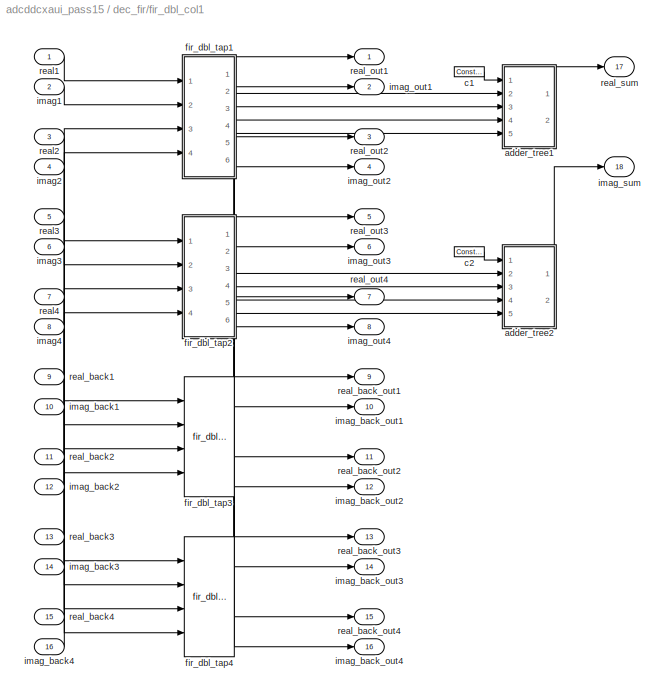
BLOCK [SubSystem] dec_fir/fir_dbl_col1
  AncestorBlock = casper_library/Downconverter/fir_dbl_col
  MaskCallbackString = |||
  MaskEnableString = on,on,on,on
  MaskIconFrame = on
  MaskIconOpaque = on
  MaskIconRotate = none
  MaskIconUnits = autoscale
  MaskInitialization = fir_dbl_col_init(gcb, ...\n    'n_inputs', n_inputs, ...\n    'coeff', coeff, ...\n    'mult_latency', mult_latency, ...\n    'add_latency', add_latency);
  MaskPromptString = Inputs|Coefficients|Add latency|Mult Latency
  MaskSelfModifiable = on
  MaskStyleString = edit,edit,edit,edit
  MaskTabNameString = ,,,
  MaskToolTipString = on,on,on,on
  MaskTunableValueString = on,on,on,on
  MaskType = fir_dbl_col
  MaskValueString = 4|[-6.8471455143e-006 -6.7515405952e-006 -1.9679390141e-006 -2.320227044e-007]|2|2
  MaskVarAliasString = ,,,
  MaskVariables = n_inputs=@1;coeff=@2;add_latency=@3;mult_latency=@4;
  MaskVisibilityString = on,on,on,on
  MinAlgLoopOccurrences = off
  Ports = [16, 18]
  RTWSystemCode = Auto
  TreatAsAtomicUnit = off
  UserData = DataTag5
  UserDataPersistent = on
BLOCK [SubSystem] dec_fir/fir_dbl_col1/adder_tree1
  AncestorBlock = casper_library/Misc/adder_tree
  AttributesFormatString = latency 4
  MaskCallbackString = |
  MaskDescription = Sums all inputs using a tree of adds and delays.
  MaskEnableString = on,on
  MaskHelp = eval('xlWeb([getenv(''MLIB_ROOT''), ''<path>''])')
  MaskIconFrame = on
  MaskIconOpaque = on
  MaskIconRotate = none
  MaskIconUnits = autoscale
  MaskInitialization = adder_tree_init(gcb, ...\n    'n_inputs', n_inputs, ...\n    'latency', latency);
  MaskPromptString = Number of Inputs|Add Latency
  MaskSelfModifiable = on
  MaskStyleString = edit,edit
  MaskTabNameString = ,
  MaskToolTipString = on,on
  MaskTunableValueString = on,on
  MaskType = adder_tree
  MaskValueString = 4|2
  MaskVarAliasString = ,
  MaskVariables = n_inputs=@1;latency=@2;
  MaskVisibilityString = on,on
  MinAlgLoopOccurrences = off
  Ports = [5, 2]
  RTWSystemCode = Auto
  TreatAsAtomicUnit = off
  UserData = DataTag6
  UserDataPersistent = on
BLOCK [Reference] dec_fir/fir_dbl_col1/adder_tree1/addr1  REF=xbsIndex_r3/AddSub
  Ports = [2, 1]
  SourceBlock = xbsIndex_r3/AddSub
  SourceType = Xilinx Adder/Subtractor
  arith_type = Unsigned
  bin_pt = 2
  dbl_ovrd = off
  en = off
  explicit_period = off
  gen_core = off
  latency = 2
  mode = Addition
  n_bits = 8
  overflow = Wrap
  period = 1
  pipeline = on
  precision = Full
  quantization = Truncate
  show_param = off
  use_carryin = off
  use_carryout = off
  use_core = on
  use_rpm = on
  xl_area = [0, 0, 0, 0, 0, 0, 0]
  xl_use_area = off
BLOCK [Reference] dec_fir/fir_dbl_col1/adder_tree1/addr2  REF=xbsIndex_r3/AddSub
  Ports = [2, 1]
  SourceBlock = xbsIndex_r3/AddSub
  SourceType = Xilinx Adder/Subtractor
  arith_type = Unsigned
  bin_pt = 2
  dbl_ovrd = off
  en = off
  explicit_period = off
  gen_core = off
  latency = 2
  mode = Addition
  n_bits = 8
  overflow = Wrap
  period = 1
  pipeline = on
  precision = Full
  quantization = Truncate
  show_param = off
  use_carryin = off
  use_carryout = off
  use_core = on
  use_rpm = on
  xl_area = [0, 0, 0, 0, 0, 0, 0]
  xl_use_area = off
BLOCK [Reference] dec_fir/fir_dbl_col1/adder_tree1/addr3  REF=xbsIndex_r3/AddSub
  Ports = [2, 1]
  SourceBlock = xbsIndex_r3/AddSub
  SourceType = Xilinx Adder/Subtractor
  arith_type = Unsigned
  bin_pt = 2
  dbl_ovrd = off
  en = off
  explicit_period = off
  gen_core = off
  latency = 2
  mode = Addition
  n_bits = 8
  overflow = Wrap
  period = 1
  pipeline = on
  precision = Full
  quantization = Truncate
  show_param = off
  use_carryin = off
  use_carryout = off
  use_core = on
  use_rpm = on
  xl_area = [0, 0, 0, 0, 0, 0, 0]
  xl_use_area = off
BLOCK [Inport] dec_fir/fir_dbl_col1/adder_tree1/din1
  IconDisplay = Port number
  LatchInput = off
  Port = 2
BLOCK [Inport] dec_fir/fir_dbl_col1/adder_tree1/din2
  IconDisplay = Port number
  LatchInput = off
  Port = 3
BLOCK [Inport] dec_fir/fir_dbl_col1/adder_tree1/din3
  IconDisplay = Port number
  LatchInput = off
  Port = 4
BLOCK [Inport] dec_fir/fir_dbl_col1/adder_tree1/din4
  IconDisplay = Port number
  LatchInput = off
  Port = 5
BLOCK [Outport] dec_fir/fir_dbl_col1/adder_tree1/dout
  BusOutputAsStruct = off
  IconDisplay = Port number
  Port = 2
BLOCK [Inport] dec_fir/fir_dbl_col1/adder_tree1/sync
  IconDisplay = Port number
  LatchInput = off
  Port = 1
BLOCK [Reference] dec_fir/fir_dbl_col1/adder_tree1/sync_delay  REF=xbsIndex_r3/Delay
  Ports = [1, 1]
  SourceBlock = xbsIndex_r3/Delay
  SourceType = Xilinx Delay Block
  accept_only_valid = off
  dbl_ovrd = off
  en = off
  explicit_period = off
  init_zero = on
  latency = 4
  period = 1
  reg_retiming = off
  show_param = off
  xl_area = [0, 0, 0, 0, 0, 0, 0]
  xl_use_area = off
BLOCK [Outport] dec_fir/fir_dbl_col1/adder_tree1/sync_out
  BusOutputAsStruct = off
  IconDisplay = Port number
BLOCK [SubSystem] dec_fir/fir_dbl_col1/adder_tree2
  AncestorBlock = casper_library/Misc/adder_tree
  AttributesFormatString = latency 4
  MaskCallbackString = |
  MaskDescription = Sums all inputs using a tree of adds and delays.
  MaskEnableString = on,on
  MaskHelp = eval('xlWeb([getenv(''MLIB_ROOT''), ''<path>''])')
  MaskIconFrame = on
  MaskIconOpaque = on
  MaskIconRotate = none
  MaskIconUnits = autoscale
  MaskInitialization = adder_tree_init(gcb, ...\n    'n_inputs', n_inputs, ...\n    'latency', latency);
  MaskPromptString = Number of Inputs|Add Latency
  MaskSelfModifiable = on
  MaskStyleString = edit,edit
  MaskTabNameString = ,
  MaskToolTipString = on,on
  MaskTunableValueString = on,on
  MaskType = adder_tree
  MaskValueString = 4|2
  MaskVarAliasString = ,
  MaskVariables = n_inputs=@1;latency=@2;
  MaskVisibilityString = on,on
  MinAlgLoopOccurrences = off
  Ports = [5, 2]
  RTWSystemCode = Auto
  TreatAsAtomicUnit = off
  UserData = DataTag7
  UserDataPersistent = on
BLOCK [Reference] dec_fir/fir_dbl_col1/adder_tree2/addr1  REF=xbsIndex_r3/AddSub
  Ports = [2, 1]
  SourceBlock = xbsIndex_r3/AddSub
  SourceType = Xilinx Adder/Subtractor
  arith_type = Unsigned
  bin_pt = 2
  dbl_ovrd = off
  en = off
  explicit_period = off
  gen_core = off
  latency = 2
  mode = Addition
  n_bits = 8
  overflow = Wrap
  period = 1
  pipeline = on
  precision = Full
  quantization = Truncate
  show_param = off
  use_carryin = off
  use_carryout = off
  use_core = on
  use_rpm = on
  xl_area = [0, 0, 0, 0, 0, 0, 0]
  xl_use_area = off
BLOCK [Reference] dec_fir/fir_dbl_col1/adder_tree2/addr2  REF=xbsIndex_r3/AddSub
  Ports = [2, 1]
  SourceBlock = xbsIndex_r3/AddSub
  SourceType = Xilinx Adder/Subtractor
  arith_type = Unsigned
  bin_pt = 2
  dbl_ovrd = off
  en = off
  explicit_period = off
  gen_core = off
  latency = 2
  mode = Addition
  n_bits = 8
  overflow = Wrap
  period = 1
  pipeline = on
  precision = Full
  quantization = Truncate
  show_param = off
  use_carryin = off
  use_carryout = off
  use_core = on
  use_rpm = on
  xl_area = [0, 0, 0, 0, 0, 0, 0]
  xl_use_area = off
BLOCK [Reference] dec_fir/fir_dbl_col1/adder_tree2/addr3  REF=xbsIndex_r3/AddSub
  Ports = [2, 1]
  SourceBlock = xbsIndex_r3/AddSub
  SourceType = Xilinx Adder/Subtractor
  arith_type = Unsigned
  bin_pt = 2
  dbl_ovrd = off
  en = off
  explicit_period = off
  gen_core = off
  latency = 2
  mode = Addition
  n_bits = 8
  overflow = Wrap
  period = 1
  pipeline = on
  precision = Full
  quantization = Truncate
  show_param = off
  use_carryin = off
  use_carryout = off
  use_core = on
  use_rpm = on
  xl_area = [0, 0, 0, 0, 0, 0, 0]
  xl_use_area = off
BLOCK [Inport] dec_fir/fir_dbl_col1/adder_tree2/din1
  IconDisplay = Port number
  LatchInput = off
  Port = 2
BLOCK [Inport] dec_fir/fir_dbl_col1/adder_tree2/din2
  IconDisplay = Port number
  LatchInput = off
  Port = 3
BLOCK [Inport] dec_fir/fir_dbl_col1/adder_tree2/din3
  IconDisplay = Port number
  LatchInput = off
  Port = 4
BLOCK [Inport] dec_fir/fir_dbl_col1/adder_tree2/din4
  IconDisplay = Port number
  LatchInput = off
  Port = 5
BLOCK [Outport] dec_fir/fir_dbl_col1/adder_tree2/dout
  BusOutputAsStruct = off
  IconDisplay = Port number
  Port = 2
BLOCK [Inport] dec_fir/fir_dbl_col1/adder_tree2/sync
  IconDisplay = Port number
  LatchInput = off
  Port = 1
BLOCK [Reference] dec_fir/fir_dbl_col1/adder_tree2/sync_delay  REF=xbsIndex_r3/Delay
  Ports = [1, 1]
  SourceBlock = xbsIndex_r3/Delay
  SourceType = Xilinx Delay Block
  accept_only_valid = off
  dbl_ovrd = off
  en = off
  explicit_period = off
  init_zero = on
  latency = 4
  period = 1
  reg_retiming = off
  show_param = off
  xl_area = [0, 0, 0, 0, 0, 0, 0]
  xl_use_area = off
BLOCK [Outport] dec_fir/fir_dbl_col1/adder_tree2/sync_out
  BusOutputAsStruct = off
  IconDisplay = Port number
BLOCK [Reference] dec_fir/fir_dbl_col1/c1  REF=xbsIndex_r3/Constant
  Ports = [0, 1]
  SourceBlock = xbsIndex_r3/Constant
  SourceType = Xilinx Constant Block
  arith_type = Unsigned
  bin_pt = 0
  carry = CIN
  const = 1
  dbl_ovrd = off
  equ = P=C
  explicit_period = on
  inp1 = P
  inp2 = PCIN>>17
  iostate = 0
  n_bits = 1
  opr = +
  opselect = C
  period = 1
BLOCK [Reference] dec_fir/fir_dbl_col1/c2  REF=xbsIndex_r3/Constant
  Ports = [0, 1]
  SourceBlock = xbsIndex_r3/Constant
  SourceType = Xilinx Constant Block
  arith_type = Unsigned
  bin_pt = 0
  carry = CIN
  const = 1
  dbl_ovrd = off
  equ = P=C
  explicit_period = on
  inp1 = P
  inp2 = PCIN>>17
  iostate = 0
  n_bits = 1
  opr = +
  opselect = C
  period = 1
BLOCK [SubSystem] dec_fir/fir_dbl_col1/fir_dbl_tap1
  AncestorBlock = casper_library/Downconverter/fir_dbl_tap
  MaskCallbackString = ||
  MaskEnableString = on,on,on
  MaskIconFrame = on
  MaskIconOpaque = on
  MaskIconRotate = none
  MaskIconUnits = autoscale
  MaskPromptString = factor|Add latency|Mult latency
  MaskSelfModifiable = on
  MaskStyleString = edit,edit,edit
  MaskTabNameString = ,,
  MaskToolTipString = on,on,on
  MaskTunableValueString = on,on,on
  MaskType = fir_dbl_tap
  MaskValueString = -6.8471e-006|2|2
  MaskVarAliasString = ,,
  MaskVariables = factor=@1;add_latency=@2;mult_latency=@3;
  MaskVisibilityString = on,on,on
  MinAlgLoopOccurrences = off
  Ports = [4, 6]
  RTWSystemCode = Auto
  TreatAsAtomicUnit = off
BLOCK [Reference] dec_fir/fir_dbl_col1/fir_dbl_tap1/AddSub  REF=xbsIndex_r3/AddSub
  Ports = [2, 1]
  SourceBlock = xbsIndex_r3/AddSub
  SourceType = Xilinx Adder/Subtractor
  arith_type = Signed  (2's comp)
  bin_pt = 16
  dbl_ovrd = off
  en = off
  explicit_period = on
  gen_core = off
  latency = add_latency
  mode = Addition
  n_bits = 18
  overflow = Wrap
  period = 1
  pipeline = off
  precision = User Defined
  quantization = Truncate
  show_param = off
  use_carryin = off
  use_carryout = off
  use_core = on
  use_rpm = on
  xl_area = [0, 0, 0, 0, 0, 0, 0]
  xl_use_area = off
BLOCK [Reference] dec_fir/fir_dbl_col1/fir_dbl_tap1/AddSub1  REF=xbsIndex_r3/AddSub
  Ports = [2, 1]
  SourceBlock = xbsIndex_r3/AddSub
  SourceType = Xilinx Adder/Subtractor
  arith_type = Signed  (2's comp)
  bin_pt = 16
  dbl_ovrd = off
  en = off
  explicit_period = on
  gen_core = off
  latency = add_latency
  mode = Addition
  n_bits = 18
  overflow = Wrap
  period = 1
  pipeline = off
  precision = User Defined
  quantization = Truncate
  show_param = off
  use_carryin = off
  use_carryout = off
  use_core = on
  use_rpm = on
  xl_area = [0, 0, 0, 0, 0, 0, 0]
  xl_use_area = off
BLOCK [Reference] dec_fir/fir_dbl_col1/fir_dbl_tap1/Constant  REF=xbsIndex_r3/Constant
  Ports = [0, 1]
  SourceBlock = xbsIndex_r3/Constant
  SourceType = Xilinx Constant Block
  arith_type = Signed  (2's comp)
  bin_pt = 17
  carry = CIN
  const = factor
  dbl_ovrd = off
  equ = P=C
  explicit_period = on
  inp1 = P
  inp2 = PCIN>>17
  iostate = 0
  n_bits = 18
  opr = +
  opselect = C
  period = 1
BLOCK [Reference] dec_fir/fir_dbl_col1/fir_dbl_tap1/Mult  REF=xbsIndex_r3/Mult
  Ports = [2, 1]
  SourceBlock = xbsIndex_r3/Mult
  SourceType = Xilinx Multiplier
  arith_type = Signed  (2's comp)
  bin_pt = 17
  dbl_ovrd = off
  en = off
  explicit_period = off
  gen_core = off
  latency = mult_latency
  mult_type = Parallel
  n_bits = 18
  overflow = Wrap
  oversample = 2
  period = 1
  pipeline = on
  placement_style = Rectangular Shape
  precision = Full
  quantization = Truncate
  show_param = on
  use_embedded = on
  use_rpm = off
  xl_area = [0, 0, 0, 0, 0, 0, 0]
  xl_use_area = off
BLOCK [Reference] dec_fir/fir_dbl_col1/fir_dbl_tap1/Mult1  REF=xbsIndex_r3/Mult
  Ports = [2, 1]
  SourceBlock = xbsIndex_r3/Mult
  SourceType = Xilinx Multiplier
  arith_type = Signed  (2's comp)
  bin_pt = 17
  dbl_ovrd = off
  en = off
  explicit_period = off
  gen_core = off
  latency = mult_latency
  mult_type = Parallel
  n_bits = 18
  overflow = Wrap
  oversample = 2
  period = 1
  pipeline = on
  placement_style = Rectangular Shape
  precision = Full
  quantization = Truncate
  show_param = on
  use_embedded = on
  use_rpm = off
  xl_area = [0, 0, 0, 0, 0, 0, 0]
  xl_use_area = off
BLOCK [Reference] dec_fir/fir_dbl_col1/fir_dbl_tap1/Register  REF=xbsIndex_r3/Register
  Ports = [1, 1]
  SourceBlock = xbsIndex_r3/Register
  SourceType = Xilinx Register Block
  dbl_ovrd = off
  en = off
  explicit_period = on
  init = 0
  out_en = off
  period = 1
  reg_only_valid = off
  rst = off
  show_param = off
  xl_area = [0, 0, 0, 0, 0, 0, 0]
  xl_use_area = off
BLOCK [Reference] dec_fir/fir_dbl_col1/fir_dbl_tap1/Register1  REF=xbsIndex_r3/Register
  Ports = [1, 1]
  SourceBlock = xbsIndex_r3/Register
  SourceType = Xilinx Register Block
  dbl_ovrd = off
  en = off
  explicit_period = on
  init = 0
  out_en = off
  period = 1
  reg_only_valid = off
  rst = off
  show_param = off
  xl_area = [0, 0, 0, 0, 0, 0, 0]
  xl_use_area = off
BLOCK [Reference] dec_fir/fir_dbl_col1/fir_dbl_tap1/Register2  REF=xbsIndex_r3/Register
  Ports = [1, 1]
  SourceBlock = xbsIndex_r3/Register
  SourceType = Xilinx Register Block
  dbl_ovrd = off
  en = off
  explicit_period = on
  init = 0
  out_en = off
  period = 1
  reg_only_valid = off
  rst = off
  show_param = off
  xl_area = [0, 0, 0, 0, 0, 0, 0]
  xl_use_area = off
BLOCK [Reference] dec_fir/fir_dbl_col1/fir_dbl_tap1/Register3  REF=xbsIndex_r3/Register
  Ports = [1, 1]
  SourceBlock = xbsIndex_r3/Register
  SourceType = Xilinx Register Block
  dbl_ovrd = off
  en = off
  explicit_period = on
  init = 0
  out_en = off
  period = 1
  reg_only_valid = off
  rst = off
  show_param = off
  xl_area = [0, 0, 0, 0, 0, 0, 0]
  xl_use_area = off
BLOCK [Inport] dec_fir/fir_dbl_col1/fir_dbl_tap1/a
  IconDisplay = Port number
  LatchInput = off
  Port = 1
BLOCK [Outport] dec_fir/fir_dbl_col1/fir_dbl_tap1/a_out
  BusOutputAsStruct = off
  IconDisplay = Port number
BLOCK [Inport] dec_fir/fir_dbl_col1/fir_dbl_tap1/b
  IconDisplay = Port number
  LatchInput = off
  Port = 2
BLOCK [Outport] dec_fir/fir_dbl_col1/fir_dbl_tap1/b_out
  BusOutputAsStruct = off
  IconDisplay = Port number
  Port = 2
BLOCK [Inport] dec_fir/fir_dbl_col1/fir_dbl_tap1/c
  IconDisplay = Port number
  LatchInput = off
  Port = 3
BLOCK [Outport] dec_fir/fir_dbl_col1/fir_dbl_tap1/c_out
  BusOutputAsStruct = off
  IconDisplay = Port number
  Port = 3
BLOCK [Inport] dec_fir/fir_dbl_col1/fir_dbl_tap1/d
  IconDisplay = Port number
  LatchInput = off
  Port = 4
BLOCK [Outport] dec_fir/fir_dbl_col1/fir_dbl_tap1/d_out
  BusOutputAsStruct = off
  IconDisplay = Port number
  Port = 4
BLOCK [Outport] dec_fir/fir_dbl_col1/fir_dbl_tap1/imag
  BusOutputAsStruct = off
  IconDisplay = Port number
  Port = 6
BLOCK [Outport] dec_fir/fir_dbl_col1/fir_dbl_tap1/real
  BusOutputAsStruct = off
  IconDisplay = Port number
  Port = 5
BLOCK [SubSystem] dec_fir/fir_dbl_col1/fir_dbl_tap2
  AncestorBlock = casper_library/Downconverter/fir_dbl_tap
  MaskCallbackString = ||
  MaskEnableString = on,on,on
  MaskIconFrame = on
  MaskIconOpaque = on
  MaskIconRotate = none
  MaskIconUnits = autoscale
  MaskPromptString = factor|Add latency|Mult latency
  MaskSelfModifiable = on
  MaskStyleString = edit,edit,edit
  MaskTabNameString = ,,
  MaskToolTipString = on,on,on
  MaskTunableValueString = on,on,on
  MaskType = fir_dbl_tap
  MaskValueString = -6.7515e-006|2|2
  MaskVarAliasString = ,,
  MaskVariables = factor=@1;add_latency=@2;mult_latency=@3;
  MaskVisibilityString = on,on,on
  MinAlgLoopOccurrences = off
  Ports = [4, 6]
  RTWSystemCode = Auto
  TreatAsAtomicUnit = off
BLOCK [Reference] dec_fir/fir_dbl_col1/fir_dbl_tap2/AddSub  REF=xbsIndex_r3/AddSub
  Ports = [2, 1]
  SourceBlock = xbsIndex_r3/AddSub
  SourceType = Xilinx Adder/Subtractor
  arith_type = Signed  (2's comp)
  bin_pt = 16
  dbl_ovrd = off
  en = off
  explicit_period = on
  gen_core = off
  latency = add_latency
  mode = Addition
  n_bits = 18
  overflow = Wrap
  period = 1
  pipeline = off
  precision = User Defined
  quantization = Truncate
  show_param = off
  use_carryin = off
  use_carryout = off
  use_core = on
  use_rpm = on
  xl_area = [0, 0, 0, 0, 0, 0, 0]
  xl_use_area = off
BLOCK [Reference] dec_fir/fir_dbl_col1/fir_dbl_tap2/AddSub1  REF=xbsIndex_r3/AddSub
  Ports = [2, 1]
  SourceBlock = xbsIndex_r3/AddSub
  SourceType = Xilinx Adder/Subtractor
  arith_type = Signed  (2's comp)
  bin_pt = 16
  dbl_ovrd = off
  en = off
  explicit_period = on
  gen_core = off
  latency = add_latency
  mode = Addition
  n_bits = 18
  overflow = Wrap
  period = 1
  pipeline = off
  precision = User Defined
  quantization = Truncate
  show_param = off
  use_carryin = off
  use_carryout = off
  use_core = on
  use_rpm = on
  xl_area = [0, 0, 0, 0, 0, 0, 0]
  xl_use_area = off
BLOCK [Reference] dec_fir/fir_dbl_col1/fir_dbl_tap2/Constant  REF=xbsIndex_r3/Constant
  Ports = [0, 1]
  SourceBlock = xbsIndex_r3/Constant
  SourceType = Xilinx Constant Block
  arith_type = Signed  (2's comp)
  bin_pt = 17
  carry = CIN
  const = factor
  dbl_ovrd = off
  equ = P=C
  explicit_period = on
  inp1 = P
  inp2 = PCIN>>17
  iostate = 0
  n_bits = 18
  opr = +
  opselect = C
  period = 1
BLOCK [Reference] dec_fir/fir_dbl_col1/fir_dbl_tap2/Mult  REF=xbsIndex_r3/Mult
  Ports = [2, 1]
  SourceBlock = xbsIndex_r3/Mult
  SourceType = Xilinx Multiplier
  arith_type = Signed  (2's comp)
  bin_pt = 17
  dbl_ovrd = off
  en = off
  explicit_period = off
  gen_core = off
  latency = mult_latency
  mult_type = Parallel
  n_bits = 18
  overflow = Wrap
  oversample = 2
  period = 1
  pipeline = on
  placement_style = Rectangular Shape
  precision = Full
  quantization = Truncate
  show_param = on
  use_embedded = on
  use_rpm = off
  xl_area = [0, 0, 0, 0, 0, 0, 0]
  xl_use_area = off
BLOCK [Reference] dec_fir/fir_dbl_col1/fir_dbl_tap2/Mult1  REF=xbsIndex_r3/Mult
  Ports = [2, 1]
  SourceBlock = xbsIndex_r3/Mult
  SourceType = Xilinx Multiplier
  arith_type = Signed  (2's comp)
  bin_pt = 17
  dbl_ovrd = off
  en = off
  explicit_period = off
  gen_core = off
  latency = mult_latency
  mult_type = Parallel
  n_bits = 18
  overflow = Wrap
  oversample = 2
  period = 1
  pipeline = on
  placement_style = Rectangular Shape
  precision = Full
  quantization = Truncate
  show_param = on
  use_embedded = on
  use_rpm = off
  xl_area = [0, 0, 0, 0, 0, 0, 0]
  xl_use_area = off
BLOCK [Reference] dec_fir/fir_dbl_col1/fir_dbl_tap2/Register  REF=xbsIndex_r3/Register
  Ports = [1, 1]
  SourceBlock = xbsIndex_r3/Register
  SourceType = Xilinx Register Block
  dbl_ovrd = off
  en = off
  explicit_period = on
  init = 0
  out_en = off
  period = 1
  reg_only_valid = off
  rst = off
  show_param = off
  xl_area = [0, 0, 0, 0, 0, 0, 0]
  xl_use_area = off
BLOCK [Reference] dec_fir/fir_dbl_col1/fir_dbl_tap2/Register1  REF=xbsIndex_r3/Register
  Ports = [1, 1]
  SourceBlock = xbsIndex_r3/Register
  SourceType = Xilinx Register Block
  dbl_ovrd = off
  en = off
  explicit_period = on
  init = 0
  out_en = off
  period = 1
  reg_only_valid = off
  rst = off
  show_param = off
  xl_area = [0, 0, 0, 0, 0, 0, 0]
  xl_use_area = off
BLOCK [Reference] dec_fir/fir_dbl_col1/fir_dbl_tap2/Register2  REF=xbsIndex_r3/Register
  Ports = [1, 1]
  SourceBlock = xbsIndex_r3/Register
  SourceType = Xilinx Register Block
  dbl_ovrd = off
  en = off
  explicit_period = on
  init = 0
  out_en = off
  period = 1
  reg_only_valid = off
  rst = off
  show_param = off
  xl_area = [0, 0, 0, 0, 0, 0, 0]
  xl_use_area = off
BLOCK [Reference] dec_fir/fir_dbl_col1/fir_dbl_tap2/Register3  REF=xbsIndex_r3/Register
  Ports = [1, 1]
  SourceBlock = xbsIndex_r3/Register
  SourceType = Xilinx Register Block
  dbl_ovrd = off
  en = off
  explicit_period = on
  init = 0
  out_en = off
  period = 1
  reg_only_valid = off
  rst = off
  show_param = off
  xl_area = [0, 0, 0, 0, 0, 0, 0]
  xl_use_area = off
BLOCK [Inport] dec_fir/fir_dbl_col1/fir_dbl_tap2/a
  IconDisplay = Port number
  LatchInput = off
  Port = 1
BLOCK [Outport] dec_fir/fir_dbl_col1/fir_dbl_tap2/a_out
  BusOutputAsStruct = off
  IconDisplay = Port number
BLOCK [Inport] dec_fir/fir_dbl_col1/fir_dbl_tap2/b
  IconDisplay = Port number
  LatchInput = off
  Port = 2
BLOCK [Outport] dec_fir/fir_dbl_col1/fir_dbl_tap2/b_out
  BusOutputAsStruct = off
  IconDisplay = Port number
  Port = 2
BLOCK [Inport] dec_fir/fir_dbl_col1/fir_dbl_tap2/c
  IconDisplay = Port number
  LatchInput = off
  Port = 3
BLOCK [Outport] dec_fir/fir_dbl_col1/fir_dbl_tap2/c_out
  BusOutputAsStruct = off
  IconDisplay = Port number
  Port = 3
BLOCK [Inport] dec_fir/fir_dbl_col1/fir_dbl_tap2/d
  IconDisplay = Port number
  LatchInput = off
  Port = 4
BLOCK [Outport] dec_fir/fir_dbl_col1/fir_dbl_tap2/d_out
  BusOutputAsStruct = off
  IconDisplay = Port number
  Port = 4
BLOCK [Outport] dec_fir/fir_dbl_col1/fir_dbl_tap2/imag
  BusOutputAsStruct = off
  IconDisplay = Port number
  Port = 6
BLOCK [Outport] dec_fir/fir_dbl_col1/fir_dbl_tap2/real
  BusOutputAsStruct = off
  IconDisplay = Port number
  Port = 5
BLOCK [Reference] dec_fir/fir_dbl_col1/fir_dbl_tap3  REF=casper_library/Downconverter/fir_dbl_tap  (lib defined in mdl_138b2fc3435f, mdl_4ed325b712b3, +2 more)
  Ports = [4, 6]
  ShowPortLabels = on
  SourceBlock = casper_library/Downconverter/fir_dbl_tap
  SourceType = fir_dbl_tap
  add_latency = 2
  factor = -1.9679e-006
  mult_latency = 2
BLOCK [Reference] dec_fir/fir_dbl_col1/fir_dbl_tap4  REF=casper_library/Downconverter/fir_dbl_tap  (lib defined in mdl_138b2fc3435f, mdl_4ed325b712b3, +2 more)
  Ports = [4, 6]
  ShowPortLabels = on
  SourceBlock = casper_library/Downconverter/fir_dbl_tap
  SourceType = fir_dbl_tap
  add_latency = 2
  factor = -2.3202e-007
  mult_latency = 2
BLOCK [Inport] dec_fir/fir_dbl_col1/imag1
  IconDisplay = Port number
  LatchInput = off
  Port = 2
BLOCK [Inport] dec_fir/fir_dbl_col1/imag2
  IconDisplay = Port number
  LatchInput = off
  Port = 4
BLOCK [Inport] dec_fir/fir_dbl_col1/imag3
  IconDisplay = Port number
  LatchInput = off
  Port = 6
BLOCK [Inport] dec_fir/fir_dbl_col1/imag4
  IconDisplay = Port number
  LatchInput = off
  Port = 8
BLOCK [Inport] dec_fir/fir_dbl_col1/imag_back1
  IconDisplay = Port number
  LatchInput = off
  Port = 10
BLOCK [Inport] dec_fir/fir_dbl_col1/imag_back2
  IconDisplay = Port number
  LatchInput = off
  Port = 12
BLOCK [Inport] dec_fir/fir_dbl_col1/imag_back3
  IconDisplay = Port number
  LatchInput = off
  Port = 14
BLOCK [Inport] dec_fir/fir_dbl_col1/imag_back4
  IconDisplay = Port number
  LatchInput = off
  Port = 16
BLOCK [Outport] dec_fir/fir_dbl_col1/imag_back_out1
  BusOutputAsStruct = off
  IconDisplay = Port number
  Port = 10
BLOCK [Outport] dec_fir/fir_dbl_col1/imag_back_out2
  BusOutputAsStruct = off
  IconDisplay = Port number
  Port = 12
BLOCK [Outport] dec_fir/fir_dbl_col1/imag_back_out3
  BusOutputAsStruct = off
  IconDisplay = Port number
  Port = 14
BLOCK [Outport] dec_fir/fir_dbl_col1/imag_back_out4
  BusOutputAsStruct = off
  IconDisplay = Port number
  Port = 16
BLOCK [Outport] dec_fir/fir_dbl_col1/imag_out1
  BusOutputAsStruct = off
  IconDisplay = Port number
  Port = 2
BLOCK [Outport] dec_fir/fir_dbl_col1/imag_out2
  BusOutputAsStruct = off
  IconDisplay = Port number
  Port = 4
BLOCK [Outport] dec_fir/fir_dbl_col1/imag_out3
  BusOutputAsStruct = off
  IconDisplay = Port number
  Port = 6
BLOCK [Outport] dec_fir/fir_dbl_col1/imag_out4
  BusOutputAsStruct = off
  IconDisplay = Port number
  Port = 8
BLOCK [Outport] dec_fir/fir_dbl_col1/imag_sum
  BusOutputAsStruct = off
  IconDisplay = Port number
  Port = 18
BLOCK [Inport] dec_fir/fir_dbl_col1/real1
  IconDisplay = Port number
  LatchInput = off
  Port = 1
BLOCK [Inport] dec_fir/fir_dbl_col1/real2
  IconDisplay = Port number
  LatchInput = off
  Port = 3
BLOCK [Inport] dec_fir/fir_dbl_col1/real3
  IconDisplay = Port number
  LatchInput = off
  Port = 5
BLOCK [Inport] dec_fir/fir_dbl_col1/real4
  IconDisplay = Port number
  LatchInput = off
  Port = 7
BLOCK [Inport] dec_fir/fir_dbl_col1/real_back1
  IconDisplay = Port number
  LatchInput = off
  Port = 9
BLOCK [Inport] dec_fir/fir_dbl_col1/real_back2
  IconDisplay = Port number
  LatchInput = off
  Port = 11
BLOCK [Inport] dec_fir/fir_dbl_col1/real_back3
  IconDisplay = Port number
  LatchInput = off
  Port = 13
BLOCK [Inport] dec_fir/fir_dbl_col1/real_back4
  IconDisplay = Port number
  LatchInput = off
  Port = 15
BLOCK [Outport] dec_fir/fir_dbl_col1/real_back_out1
  BusOutputAsStruct = off
  IconDisplay = Port number
  Port = 9
BLOCK [Outport] dec_fir/fir_dbl_col1/real_back_out2
  BusOutputAsStruct = off
  IconDisplay = Port number
  Port = 11
BLOCK [Outport] dec_fir/fir_dbl_col1/real_back_out3
  BusOutputAsStruct = off
  IconDisplay = Port number
  Port = 13
BLOCK [Outport] dec_fir/fir_dbl_col1/real_back_out4
  BusOutputAsStruct = off
  IconDisplay = Port number
  Port = 15
BLOCK [Outport] dec_fir/fir_dbl_col1/real_out1
  BusOutputAsStruct = off
  IconDisplay = Port number
BLOCK [Outport] dec_fir/fir_dbl_col1/real_out2
  BusOutputAsStruct = off
  IconDisplay = Port number
  Port = 3
BLOCK [Outport] dec_fir/fir_dbl_col1/real_out3
  BusOutputAsStruct = off
  IconDisplay = Port number
  Port = 5
BLOCK [Outport] dec_fir/fir_dbl_col1/real_out4
  BusOutputAsStruct = off
  IconDisplay = Port number
  Port = 7
BLOCK [Outport] dec_fir/fir_dbl_col1/real_sum
  BusOutputAsStruct = off
  IconDisplay = Port number
  Port = 17
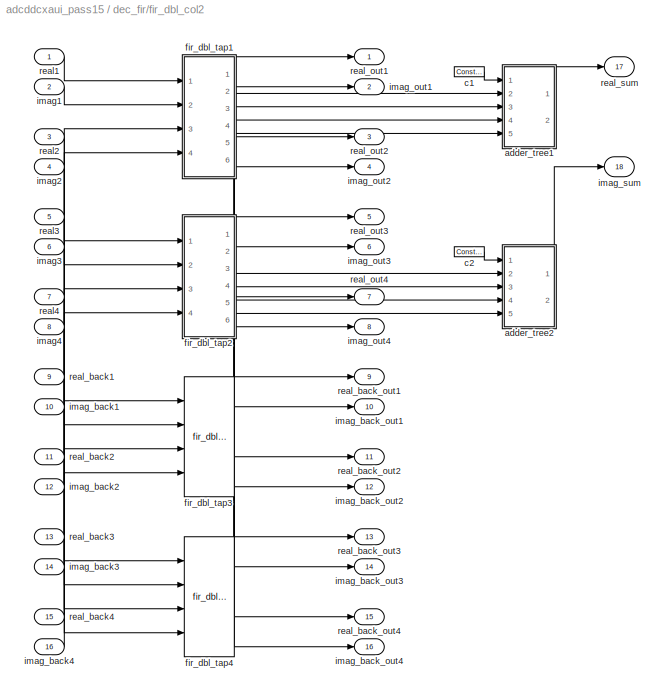
BLOCK [SubSystem] dec_fir/fir_dbl_col2
  AncestorBlock = casper_library/Downconverter/fir_dbl_col
  MaskCallbackString = |||
  MaskEnableString = on,on,on,on
  MaskIconFrame = on
  MaskIconOpaque = on
  MaskIconRotate = none
  MaskIconUnits = autoscale
  MaskInitialization = fir_dbl_col_init(gcb, ...\n    'n_inputs', n_inputs, ...\n    'coeff', coeff, ...\n    'mult_latency', mult_latency, ...\n    'add_latency', add_latency);
  MaskPromptString = Inputs|Coefficients|Add latency|Mult Latency
  MaskSelfModifiable = on
  MaskStyleString = edit,edit,edit,edit
  MaskTabNameString = ,,,
  MaskToolTipString = on,on,on,on
  MaskTunableValueString = on,on,on,on
  MaskType = fir_dbl_col
  MaskValueString = 4|[7.49325945611e-005 0.0001097932452318 6.32691079379e-005 1.40951673086e-005]|2|2
  MaskVarAliasString = ,,,
  MaskVariables = n_inputs=@1;coeff=@2;add_latency=@3;mult_latency=@4;
  MaskVisibilityString = on,on,on,on
  MinAlgLoopOccurrences = off
  Ports = [16, 18]
  RTWSystemCode = Auto
  TreatAsAtomicUnit = off
  UserData = DataTag8
  UserDataPersistent = on
BLOCK [SubSystem] dec_fir/fir_dbl_col2/adder_tree1
  AncestorBlock = casper_library/Misc/adder_tree
  AttributesFormatString = latency 4
  MaskCallbackString = |
  MaskDescription = Sums all inputs using a tree of adds and delays.
  MaskEnableString = on,on
  MaskHelp = eval('xlWeb([getenv(''MLIB_ROOT''), ''<path>''])')
  MaskIconFrame = on
  MaskIconOpaque = on
  MaskIconRotate = none
  MaskIconUnits = autoscale
  MaskInitialization = adder_tree_init(gcb, ...\n    'n_inputs', n_inputs, ...\n    'latency', latency);
  MaskPromptString = Number of Inputs|Add Latency
  MaskSelfModifiable = on
  MaskStyleString = edit,edit
  MaskTabNameString = ,
  MaskToolTipString = on,on
  MaskTunableValueString = on,on
  MaskType = adder_tree
  MaskValueString = 4|2
  MaskVarAliasString = ,
  MaskVariables = n_inputs=@1;latency=@2;
  MaskVisibilityString = on,on
  MinAlgLoopOccurrences = off
  Ports = [5, 2]
  RTWSystemCode = Auto
  TreatAsAtomicUnit = off
  UserData = DataTag9
  UserDataPersistent = on
BLOCK [Reference] dec_fir/fir_dbl_col2/adder_tree1/addr1  REF=xbsIndex_r3/AddSub
  Ports = [2, 1]
  SourceBlock = xbsIndex_r3/AddSub
  SourceType = Xilinx Adder/Subtractor
  arith_type = Unsigned
  bin_pt = 2
  dbl_ovrd = off
  en = off
  explicit_period = off
  gen_core = off
  latency = 2
  mode = Addition
  n_bits = 8
  overflow = Wrap
  period = 1
  pipeline = on
  precision = Full
  quantization = Truncate
  show_param = off
  use_carryin = off
  use_carryout = off
  use_core = on
  use_rpm = on
  xl_area = [0, 0, 0, 0, 0, 0, 0]
  xl_use_area = off
BLOCK [Reference] dec_fir/fir_dbl_col2/adder_tree1/addr2  REF=xbsIndex_r3/AddSub
  Ports = [2, 1]
  SourceBlock = xbsIndex_r3/AddSub
  SourceType = Xilinx Adder/Subtractor
  arith_type = Unsigned
  bin_pt = 2
  dbl_ovrd = off
  en = off
  explicit_period = off
  gen_core = off
  latency = 2
  mode = Addition
  n_bits = 8
  overflow = Wrap
  period = 1
  pipeline = on
  precision = Full
  quantization = Truncate
  show_param = off
  use_carryin = off
  use_carryout = off
  use_core = on
  use_rpm = on
  xl_area = [0, 0, 0, 0, 0, 0, 0]
  xl_use_area = off
BLOCK [Reference] dec_fir/fir_dbl_col2/adder_tree1/addr3  REF=xbsIndex_r3/AddSub
  Ports = [2, 1]
  SourceBlock = xbsIndex_r3/AddSub
  SourceType = Xilinx Adder/Subtractor
  arith_type = Unsigned
  bin_pt = 2
  dbl_ovrd = off
  en = off
  explicit_period = off
  gen_core = off
  latency = 2
  mode = Addition
  n_bits = 8
  overflow = Wrap
  period = 1
  pipeline = on
  precision = Full
  quantization = Truncate
  show_param = off
  use_carryin = off
  use_carryout = off
  use_core = on
  use_rpm = on
  xl_area = [0, 0, 0, 0, 0, 0, 0]
  xl_use_area = off
BLOCK [Inport] dec_fir/fir_dbl_col2/adder_tree1/din1
  IconDisplay = Port number
  LatchInput = off
  Port = 2
BLOCK [Inport] dec_fir/fir_dbl_col2/adder_tree1/din2
  IconDisplay = Port number
  LatchInput = off
  Port = 3
BLOCK [Inport] dec_fir/fir_dbl_col2/adder_tree1/din3
  IconDisplay = Port number
  LatchInput = off
  Port = 4
BLOCK [Inport] dec_fir/fir_dbl_col2/adder_tree1/din4
  IconDisplay = Port number
  LatchInput = off
  Port = 5
BLOCK [Outport] dec_fir/fir_dbl_col2/adder_tree1/dout
  BusOutputAsStruct = off
  IconDisplay = Port number
  Port = 2
BLOCK [Inport] dec_fir/fir_dbl_col2/adder_tree1/sync
  IconDisplay = Port number
  LatchInput = off
  Port = 1
BLOCK [Reference] dec_fir/fir_dbl_col2/adder_tree1/sync_delay  REF=xbsIndex_r3/Delay
  Ports = [1, 1]
  SourceBlock = xbsIndex_r3/Delay
  SourceType = Xilinx Delay Block
  accept_only_valid = off
  dbl_ovrd = off
  en = off
  explicit_period = off
  init_zero = on
  latency = 4
  period = 1
  reg_retiming = off
  show_param = off
  xl_area = [0, 0, 0, 0, 0, 0, 0]
  xl_use_area = off
BLOCK [Outport] dec_fir/fir_dbl_col2/adder_tree1/sync_out
  BusOutputAsStruct = off
  IconDisplay = Port number
BLOCK [SubSystem] dec_fir/fir_dbl_col2/adder_tree2
  AncestorBlock = casper_library/Misc/adder_tree
  AttributesFormatString = latency 4
  MaskCallbackString = |
  MaskDescription = Sums all inputs using a tree of adds and delays.
  MaskEnableString = on,on
  MaskHelp = eval('xlWeb([getenv(''MLIB_ROOT''), ''<path>''])')
  MaskIconFrame = on
  MaskIconOpaque = on
  MaskIconRotate = none
  MaskIconUnits = autoscale
  MaskInitialization = adder_tree_init(gcb, ...\n    'n_inputs', n_inputs, ...\n    'latency', latency);
  MaskPromptString = Number of Inputs|Add Latency
  MaskSelfModifiable = on
  MaskStyleString = edit,edit
  MaskTabNameString = ,
  MaskToolTipString = on,on
  MaskTunableValueString = on,on
  MaskType = adder_tree
  MaskValueString = 4|2
  MaskVarAliasString = ,
  MaskVariables = n_inputs=@1;latency=@2;
  MaskVisibilityString = on,on
  MinAlgLoopOccurrences = off
  Ports = [5, 2]
  RTWSystemCode = Auto
  TreatAsAtomicUnit = off
  UserData = DataTag10
  UserDataPersistent = on
BLOCK [Reference] dec_fir/fir_dbl_col2/adder_tree2/addr1  REF=xbsIndex_r3/AddSub
  Ports = [2, 1]
  SourceBlock = xbsIndex_r3/AddSub
  SourceType = Xilinx Adder/Subtractor
  arith_type = Unsigned
  bin_pt = 2
  dbl_ovrd = off
  en = off
  explicit_period = off
  gen_core = off
  latency = 2
  mode = Addition
  n_bits = 8
  overflow = Wrap
  period = 1
  pipeline = on
  precision = Full
  quantization = Truncate
  show_param = off
  use_carryin = off
  use_carryout = off
  use_core = on
  use_rpm = on
  xl_area = [0, 0, 0, 0, 0, 0, 0]
  xl_use_area = off
BLOCK [Reference] dec_fir/fir_dbl_col2/adder_tree2/addr2  REF=xbsIndex_r3/AddSub
  Ports = [2, 1]
  SourceBlock = xbsIndex_r3/AddSub
  SourceType = Xilinx Adder/Subtractor
  arith_type = Unsigned
  bin_pt = 2
  dbl_ovrd = off
  en = off
  explicit_period = off
  gen_core = off
  latency = 2
  mode = Addition
  n_bits = 8
  overflow = Wrap
  period = 1
  pipeline = on
  precision = Full
  quantization = Truncate
  show_param = off
  use_carryin = off
  use_carryout = off
  use_core = on
  use_rpm = on
  xl_area = [0, 0, 0, 0, 0, 0, 0]
  xl_use_area = off
BLOCK [Reference] dec_fir/fir_dbl_col2/adder_tree2/addr3  REF=xbsIndex_r3/AddSub
  Ports = [2, 1]
  SourceBlock = xbsIndex_r3/AddSub
  SourceType = Xilinx Adder/Subtractor
  arith_type = Unsigned
  bin_pt = 2
  dbl_ovrd = off
  en = off
  explicit_period = off
  gen_core = off
  latency = 2
  mode = Addition
  n_bits = 8
  overflow = Wrap
  period = 1
  pipeline = on
  precision = Full
  quantization = Truncate
  show_param = off
  use_carryin = off
  use_carryout = off
  use_core = on
  use_rpm = on
  xl_area = [0, 0, 0, 0, 0, 0, 0]
  xl_use_area = off
BLOCK [Inport] dec_fir/fir_dbl_col2/adder_tree2/din1
  IconDisplay = Port number
  LatchInput = off
  Port = 2
BLOCK [Inport] dec_fir/fir_dbl_col2/adder_tree2/din2
  IconDisplay = Port number
  LatchInput = off
  Port = 3
BLOCK [Inport] dec_fir/fir_dbl_col2/adder_tree2/din3
  IconDisplay = Port number
  LatchInput = off
  Port = 4
BLOCK [Inport] dec_fir/fir_dbl_col2/adder_tree2/din4
  IconDisplay = Port number
  LatchInput = off
  Port = 5
BLOCK [Outport] dec_fir/fir_dbl_col2/adder_tree2/dout
  BusOutputAsStruct = off
  IconDisplay = Port number
  Port = 2
BLOCK [Inport] dec_fir/fir_dbl_col2/adder_tree2/sync
  IconDisplay = Port number
  LatchInput = off
  Port = 1
BLOCK [Reference] dec_fir/fir_dbl_col2/adder_tree2/sync_delay  REF=xbsIndex_r3/Delay
  Ports = [1, 1]
  SourceBlock = xbsIndex_r3/Delay
  SourceType = Xilinx Delay Block
  accept_only_valid = off
  dbl_ovrd = off
  en = off
  explicit_period = off
  init_zero = on
  latency = 4
  period = 1
  reg_retiming = off
  show_param = off
  xl_area = [0, 0, 0, 0, 0, 0, 0]
  xl_use_area = off
BLOCK [Outport] dec_fir/fir_dbl_col2/adder_tree2/sync_out
  BusOutputAsStruct = off
  IconDisplay = Port number
BLOCK [Reference] dec_fir/fir_dbl_col2/c1  REF=xbsIndex_r3/Constant
  Ports = [0, 1]
  SourceBlock = xbsIndex_r3/Constant
  SourceType = Xilinx Constant Block
  arith_type = Unsigned
  bin_pt = 0
  carry = CIN
  const = 1
  dbl_ovrd = off
  equ = P=C
  explicit_period = on
  inp1 = P
  inp2 = PCIN>>17
  iostate = 0
  n_bits = 1
  opr = +
  opselect = C
  period = 1
BLOCK [Reference] dec_fir/fir_dbl_col2/c2  REF=xbsIndex_r3/Constant
  Ports = [0, 1]
  SourceBlock = xbsIndex_r3/Constant
  SourceType = Xilinx Constant Block
  arith_type = Unsigned
  bin_pt = 0
  carry = CIN
  const = 1
  dbl_ovrd = off
  equ = P=C
  explicit_period = on
  inp1 = P
  inp2 = PCIN>>17
  iostate = 0
  n_bits = 1
  opr = +
  opselect = C
  period = 1
BLOCK [SubSystem] dec_fir/fir_dbl_col2/fir_dbl_tap1
  AncestorBlock = casper_library/Downconverter/fir_dbl_tap
  MaskCallbackString = ||
  MaskEnableString = on,on,on
  MaskIconFrame = on
  MaskIconOpaque = on
  MaskIconRotate = none
  MaskIconUnits = autoscale
  MaskPromptString = factor|Add latency|Mult latency
  MaskSelfModifiable = on
  MaskStyleString = edit,edit,edit
  MaskTabNameString = ,,
  MaskToolTipString = on,on,on
  MaskTunableValueString = on,on,on
  MaskType = fir_dbl_tap
  MaskValueString = 7.4933e-005|2|2
  MaskVarAliasString = ,,
  MaskVariables = factor=@1;add_latency=@2;mult_latency=@3;
  MaskVisibilityString = on,on,on
  MinAlgLoopOccurrences = off
  Ports = [4, 6]
  RTWSystemCode = Auto
  TreatAsAtomicUnit = off
BLOCK [Reference] dec_fir/fir_dbl_col2/fir_dbl_tap1/AddSub  REF=xbsIndex_r3/AddSub
  Ports = [2, 1]
  SourceBlock = xbsIndex_r3/AddSub
  SourceType = Xilinx Adder/Subtractor
  arith_type = Signed  (2's comp)
  bin_pt = 16
  dbl_ovrd = off
  en = off
  explicit_period = on
  gen_core = off
  latency = add_latency
  mode = Addition
  n_bits = 18
  overflow = Wrap
  period = 1
  pipeline = off
  precision = User Defined
  quantization = Truncate
  show_param = off
  use_carryin = off
  use_carryout = off
  use_core = on
  use_rpm = on
  xl_area = [0, 0, 0, 0, 0, 0, 0]
  xl_use_area = off
BLOCK [Reference] dec_fir/fir_dbl_col2/fir_dbl_tap1/AddSub1  REF=xbsIndex_r3/AddSub
  Ports = [2, 1]
  SourceBlock = xbsIndex_r3/AddSub
  SourceType = Xilinx Adder/Subtractor
  arith_type = Signed  (2's comp)
  bin_pt = 16
  dbl_ovrd = off
  en = off
  explicit_period = on
  gen_core = off
  latency = add_latency
  mode = Addition
  n_bits = 18
  overflow = Wrap
  period = 1
  pipeline = off
  precision = User Defined
  quantization = Truncate
  show_param = off
  use_carryin = off
  use_carryout = off
  use_core = on
  use_rpm = on
  xl_area = [0, 0, 0, 0, 0, 0, 0]
  xl_use_area = off
BLOCK [Reference] dec_fir/fir_dbl_col2/fir_dbl_tap1/Constant  REF=xbsIndex_r3/Constant
  Ports = [0, 1]
  SourceBlock = xbsIndex_r3/Constant
  SourceType = Xilinx Constant Block
  arith_type = Signed  (2's comp)
  bin_pt = 17
  carry = CIN
  const = factor
  dbl_ovrd = off
  equ = P=C
  explicit_period = on
  inp1 = P
  inp2 = PCIN>>17
  iostate = 0
  n_bits = 18
  opr = +
  opselect = C
  period = 1
BLOCK [Reference] dec_fir/fir_dbl_col2/fir_dbl_tap1/Mult  REF=xbsIndex_r3/Mult
  Ports = [2, 1]
  SourceBlock = xbsIndex_r3/Mult
  SourceType = Xilinx Multiplier
  arith_type = Signed  (2's comp)
  bin_pt = 17
  dbl_ovrd = off
  en = off
  explicit_period = off
  gen_core = off
  latency = mult_latency
  mult_type = Parallel
  n_bits = 18
  overflow = Wrap
  oversample = 2
  period = 1
  pipeline = on
  placement_style = Rectangular Shape
  precision = Full
  quantization = Truncate
  show_param = on
  use_embedded = on
  use_rpm = off
  xl_area = [0, 0, 0, 0, 0, 0, 0]
  xl_use_area = off
BLOCK [Reference] dec_fir/fir_dbl_col2/fir_dbl_tap1/Mult1  REF=xbsIndex_r3/Mult
  Ports = [2, 1]
  SourceBlock = xbsIndex_r3/Mult
  SourceType = Xilinx Multiplier
  arith_type = Signed  (2's comp)
  bin_pt = 17
  dbl_ovrd = off
  en = off
  explicit_period = off
  gen_core = off
  latency = mult_latency
  mult_type = Parallel
  n_bits = 18
  overflow = Wrap
  oversample = 2
  period = 1
  pipeline = on
  placement_style = Rectangular Shape
  precision = Full
  quantization = Truncate
  show_param = on
  use_embedded = on
  use_rpm = off
  xl_area = [0, 0, 0, 0, 0, 0, 0]
  xl_use_area = off
BLOCK [Reference] dec_fir/fir_dbl_col2/fir_dbl_tap1/Register  REF=xbsIndex_r3/Register
  Ports = [1, 1]
  SourceBlock = xbsIndex_r3/Register
  SourceType = Xilinx Register Block
  dbl_ovrd = off
  en = off
  explicit_period = on
  init = 0
  out_en = off
  period = 1
  reg_only_valid = off
  rst = off
  show_param = off
  xl_area = [0, 0, 0, 0, 0, 0, 0]
  xl_use_area = off
BLOCK [Reference] dec_fir/fir_dbl_col2/fir_dbl_tap1/Register1  REF=xbsIndex_r3/Register
  Ports = [1, 1]
  SourceBlock = xbsIndex_r3/Register
  SourceType = Xilinx Register Block
  dbl_ovrd = off
  en = off
  explicit_period = on
  init = 0
  out_en = off
  period = 1
  reg_only_valid = off
  rst = off
  show_param = off
  xl_area = [0, 0, 0, 0, 0, 0, 0]
  xl_use_area = off
BLOCK [Reference] dec_fir/fir_dbl_col2/fir_dbl_tap1/Register2  REF=xbsIndex_r3/Register
  Ports = [1, 1]
  SourceBlock = xbsIndex_r3/Register
  SourceType = Xilinx Register Block
  dbl_ovrd = off
  en = off
  explicit_period = on
  init = 0
  out_en = off
  period = 1
  reg_only_valid = off
  rst = off
  show_param = off
  xl_area = [0, 0, 0, 0, 0, 0, 0]
  xl_use_area = off
BLOCK [Reference] dec_fir/fir_dbl_col2/fir_dbl_tap1/Register3  REF=xbsIndex_r3/Register
  Ports = [1, 1]
  SourceBlock = xbsIndex_r3/Register
  SourceType = Xilinx Register Block
  dbl_ovrd = off
  en = off
  explicit_period = on
  init = 0
  out_en = off
  period = 1
  reg_only_valid = off
  rst = off
  show_param = off
  xl_area = [0, 0, 0, 0, 0, 0, 0]
  xl_use_area = off
BLOCK [Inport] dec_fir/fir_dbl_col2/fir_dbl_tap1/a
  IconDisplay = Port number
  LatchInput = off
  Port = 1
BLOCK [Outport] dec_fir/fir_dbl_col2/fir_dbl_tap1/a_out
  BusOutputAsStruct = off
  IconDisplay = Port number
BLOCK [Inport] dec_fir/fir_dbl_col2/fir_dbl_tap1/b
  IconDisplay = Port number
  LatchInput = off
  Port = 2
BLOCK [Outport] dec_fir/fir_dbl_col2/fir_dbl_tap1/b_out
  BusOutputAsStruct = off
  IconDisplay = Port number
  Port = 2
BLOCK [Inport] dec_fir/fir_dbl_col2/fir_dbl_tap1/c
  IconDisplay = Port number
  LatchInput = off
  Port = 3
BLOCK [Outport] dec_fir/fir_dbl_col2/fir_dbl_tap1/c_out
  BusOutputAsStruct = off
  IconDisplay = Port number
  Port = 3
BLOCK [Inport] dec_fir/fir_dbl_col2/fir_dbl_tap1/d
  IconDisplay = Port number
  LatchInput = off
  Port = 4
BLOCK [Outport] dec_fir/fir_dbl_col2/fir_dbl_tap1/d_out
  BusOutputAsStruct = off
  IconDisplay = Port number
  Port = 4
BLOCK [Outport] dec_fir/fir_dbl_col2/fir_dbl_tap1/imag
  BusOutputAsStruct = off
  IconDisplay = Port number
  Port = 6
BLOCK [Outport] dec_fir/fir_dbl_col2/fir_dbl_tap1/real
  BusOutputAsStruct = off
  IconDisplay = Port number
  Port = 5
BLOCK [SubSystem] dec_fir/fir_dbl_col2/fir_dbl_tap2
  AncestorBlock = casper_library/Downconverter/fir_dbl_tap
  MaskCallbackString = ||
  MaskEnableString = on,on,on
  MaskIconFrame = on
  MaskIconOpaque = on
  MaskIconRotate = none
  MaskIconUnits = autoscale
  MaskPromptString = factor|Add latency|Mult latency
  MaskSelfModifiable = on
  MaskStyleString = edit,edit,edit
  MaskTabNameString = ,,
  MaskToolTipString = on,on,on
  MaskTunableValueString = on,on,on
  MaskType = fir_dbl_tap
  MaskValueString = 0.00010979|2|2
  MaskVarAliasString = ,,
  MaskVariables = factor=@1;add_latency=@2;mult_latency=@3;
  MaskVisibilityString = on,on,on
  MinAlgLoopOccurrences = off
  Ports = [4, 6]
  RTWSystemCode = Auto
  TreatAsAtomicUnit = off
BLOCK [Reference] dec_fir/fir_dbl_col2/fir_dbl_tap2/AddSub  REF=xbsIndex_r3/AddSub
  Ports = [2, 1]
  SourceBlock = xbsIndex_r3/AddSub
  SourceType = Xilinx Adder/Subtractor
  arith_type = Signed  (2's comp)
  bin_pt = 16
  dbl_ovrd = off
  en = off
  explicit_period = on
  gen_core = off
  latency = add_latency
  mode = Addition
  n_bits = 18
  overflow = Wrap
  period = 1
  pipeline = off
  precision = User Defined
  quantization = Truncate
  show_param = off
  use_carryin = off
  use_carryout = off
  use_core = on
  use_rpm = on
  xl_area = [0, 0, 0, 0, 0, 0, 0]
  xl_use_area = off
BLOCK [Reference] dec_fir/fir_dbl_col2/fir_dbl_tap2/AddSub1  REF=xbsIndex_r3/AddSub
  Ports = [2, 1]
  SourceBlock = xbsIndex_r3/AddSub
  SourceType = Xilinx Adder/Subtractor
  arith_type = Signed  (2's comp)
  bin_pt = 16
  dbl_ovrd = off
  en = off
  explicit_period = on
  gen_core = off
  latency = add_latency
  mode = Addition
  n_bits = 18
  overflow = Wrap
  period = 1
  pipeline = off
  precision = User Defined
  quantization = Truncate
  show_param = off
  use_carryin = off
  use_carryout = off
  use_core = on
  use_rpm = on
  xl_area = [0, 0, 0, 0, 0, 0, 0]
  xl_use_area = off
BLOCK [Reference] dec_fir/fir_dbl_col2/fir_dbl_tap2/Constant  REF=xbsIndex_r3/Constant
  Ports = [0, 1]
  SourceBlock = xbsIndex_r3/Constant
  SourceType = Xilinx Constant Block
  arith_type = Signed  (2's comp)
  bin_pt = 17
  carry = CIN
  const = factor
  dbl_ovrd = off
  equ = P=C
  explicit_period = on
  inp1 = P
  inp2 = PCIN>>17
  iostate = 0
  n_bits = 18
  opr = +
  opselect = C
  period = 1
BLOCK [Reference] dec_fir/fir_dbl_col2/fir_dbl_tap2/Mult  REF=xbsIndex_r3/Mult
  Ports = [2, 1]
  SourceBlock = xbsIndex_r3/Mult
  SourceType = Xilinx Multiplier
  arith_type = Signed  (2's comp)
  bin_pt = 17
  dbl_ovrd = off
  en = off
  explicit_period = off
  gen_core = off
  latency = mult_latency
  mult_type = Parallel
  n_bits = 18
  overflow = Wrap
  oversample = 2
  period = 1
  pipeline = on
  placement_style = Rectangular Shape
  precision = Full
  quantization = Truncate
  show_param = on
  use_embedded = on
  use_rpm = off
  xl_area = [0, 0, 0, 0, 0, 0, 0]
  xl_use_area = off
BLOCK [Reference] dec_fir/fir_dbl_col2/fir_dbl_tap2/Mult1  REF=xbsIndex_r3/Mult
  Ports = [2, 1]
  SourceBlock = xbsIndex_r3/Mult
  SourceType = Xilinx Multiplier
  arith_type = Signed  (2's comp)
  bin_pt = 17
  dbl_ovrd = off
  en = off
  explicit_period = off
  gen_core = off
  latency = mult_latency
  mult_type = Parallel
  n_bits = 18
  overflow = Wrap
  oversample = 2
  period = 1
  pipeline = on
  placement_style = Rectangular Shape
  precision = Full
  quantization = Truncate
  show_param = on
  use_embedded = on
  use_rpm = off
  xl_area = [0, 0, 0, 0, 0, 0, 0]
  xl_use_area = off
BLOCK [Reference] dec_fir/fir_dbl_col2/fir_dbl_tap2/Register  REF=xbsIndex_r3/Register
  Ports = [1, 1]
  SourceBlock = xbsIndex_r3/Register
  SourceType = Xilinx Register Block
  dbl_ovrd = off
  en = off
  explicit_period = on
  init = 0
  out_en = off
  period = 1
  reg_only_valid = off
  rst = off
  show_param = off
  xl_area = [0, 0, 0, 0, 0, 0, 0]
  xl_use_area = off
BLOCK [Reference] dec_fir/fir_dbl_col2/fir_dbl_tap2/Register1  REF=xbsIndex_r3/Register
  Ports = [1, 1]
  SourceBlock = xbsIndex_r3/Register
  SourceType = Xilinx Register Block
  dbl_ovrd = off
  en = off
  explicit_period = on
  init = 0
  out_en = off
  period = 1
  reg_only_valid = off
  rst = off
  show_param = off
  xl_area = [0, 0, 0, 0, 0, 0, 0]
  xl_use_area = off
BLOCK [Reference] dec_fir/fir_dbl_col2/fir_dbl_tap2/Register2  REF=xbsIndex_r3/Register
  Ports = [1, 1]
  SourceBlock = xbsIndex_r3/Register
  SourceType = Xilinx Register Block
  dbl_ovrd = off
  en = off
  explicit_period = on
  init = 0
  out_en = off
  period = 1
  reg_only_valid = off
  rst = off
  show_param = off
  xl_area = [0, 0, 0, 0, 0, 0, 0]
  xl_use_area = off
BLOCK [Reference] dec_fir/fir_dbl_col2/fir_dbl_tap2/Register3  REF=xbsIndex_r3/Register
  Ports = [1, 1]
  SourceBlock = xbsIndex_r3/Register
  SourceType = Xilinx Register Block
  dbl_ovrd = off
  en = off
  explicit_period = on
  init = 0
  out_en = off
  period = 1
  reg_only_valid = off
  rst = off
  show_param = off
  xl_area = [0, 0, 0, 0, 0, 0, 0]
  xl_use_area = off
BLOCK [Inport] dec_fir/fir_dbl_col2/fir_dbl_tap2/a
  IconDisplay = Port number
  LatchInput = off
  Port = 1
BLOCK [Outport] dec_fir/fir_dbl_col2/fir_dbl_tap2/a_out
  BusOutputAsStruct = off
  IconDisplay = Port number
BLOCK [Inport] dec_fir/fir_dbl_col2/fir_dbl_tap2/b
  IconDisplay = Port number
  LatchInput = off
  Port = 2
BLOCK [Outport] dec_fir/fir_dbl_col2/fir_dbl_tap2/b_out
  BusOutputAsStruct = off
  IconDisplay = Port number
  Port = 2
BLOCK [Inport] dec_fir/fir_dbl_col2/fir_dbl_tap2/c
  IconDisplay = Port number
  LatchInput = off
  Port = 3
BLOCK [Outport] dec_fir/fir_dbl_col2/fir_dbl_tap2/c_out
  BusOutputAsStruct = off
  IconDisplay = Port number
  Port = 3
BLOCK [Inport] dec_fir/fir_dbl_col2/fir_dbl_tap2/d
  IconDisplay = Port number
  LatchInput = off
  Port = 4
BLOCK [Outport] dec_fir/fir_dbl_col2/fir_dbl_tap2/d_out
  BusOutputAsStruct = off
  IconDisplay = Port number
  Port = 4
BLOCK [Outport] dec_fir/fir_dbl_col2/fir_dbl_tap2/imag
  BusOutputAsStruct = off
  IconDisplay = Port number
  Port = 6
BLOCK [Outport] dec_fir/fir_dbl_col2/fir_dbl_tap2/real
  BusOutputAsStruct = off
  IconDisplay = Port number
  Port = 5
BLOCK [Reference] dec_fir/fir_dbl_col2/fir_dbl_tap3  REF=casper_library/Downconverter/fir_dbl_tap  (lib defined in mdl_138b2fc3435f, mdl_4ed325b712b3, +2 more)
  Ports = [4, 6]
  ShowPortLabels = on
  SourceBlock = casper_library/Downconverter/fir_dbl_tap
  SourceType = fir_dbl_tap
  add_latency = 2
  factor = 6.3269e-005
  mult_latency = 2
BLOCK [Reference] dec_fir/fir_dbl_col2/fir_dbl_tap4  REF=casper_library/Downconverter/fir_dbl_tap  (lib defined in mdl_138b2fc3435f, mdl_4ed325b712b3, +2 more)
  Ports = [4, 6]
  ShowPortLabels = on
  SourceBlock = casper_library/Downconverter/fir_dbl_tap
  SourceType = fir_dbl_tap
  add_latency = 2
  factor = 1.4095e-005
  mult_latency = 2
BLOCK [Inport] dec_fir/fir_dbl_col2/imag1
  IconDisplay = Port number
  LatchInput = off
  Port = 2
BLOCK [Inport] dec_fir/fir_dbl_col2/imag2
  IconDisplay = Port number
  LatchInput = off
  Port = 4
BLOCK [Inport] dec_fir/fir_dbl_col2/imag3
  IconDisplay = Port number
  LatchInput = off
  Port = 6
BLOCK [Inport] dec_fir/fir_dbl_col2/imag4
  IconDisplay = Port number
  LatchInput = off
  Port = 8
BLOCK [Inport] dec_fir/fir_dbl_col2/imag_back1
  IconDisplay = Port number
  LatchInput = off
  Port = 10
BLOCK [Inport] dec_fir/fir_dbl_col2/imag_back2
  IconDisplay = Port number
  LatchInput = off
  Port = 12
BLOCK [Inport] dec_fir/fir_dbl_col2/imag_back3
  IconDisplay = Port number
  LatchInput = off
  Port = 14
BLOCK [Inport] dec_fir/fir_dbl_col2/imag_back4
  IconDisplay = Port number
  LatchInput = off
  Port = 16
BLOCK [Outport] dec_fir/fir_dbl_col2/imag_back_out1
  BusOutputAsStruct = off
  IconDisplay = Port number
  Port = 10
BLOCK [Outport] dec_fir/fir_dbl_col2/imag_back_out2
  BusOutputAsStruct = off
  IconDisplay = Port number
  Port = 12
BLOCK [Outport] dec_fir/fir_dbl_col2/imag_back_out3
  BusOutputAsStruct = off
  IconDisplay = Port number
  Port = 14
BLOCK [Outport] dec_fir/fir_dbl_col2/imag_back_out4
  BusOutputAsStruct = off
  IconDisplay = Port number
  Port = 16
BLOCK [Outport] dec_fir/fir_dbl_col2/imag_out1
  BusOutputAsStruct = off
  IconDisplay = Port number
  Port = 2
BLOCK [Outport] dec_fir/fir_dbl_col2/imag_out2
  BusOutputAsStruct = off
  IconDisplay = Port number
  Port = 4
BLOCK [Outport] dec_fir/fir_dbl_col2/imag_out3
  BusOutputAsStruct = off
  IconDisplay = Port number
  Port = 6
BLOCK [Outport] dec_fir/fir_dbl_col2/imag_out4
  BusOutputAsStruct = off
  IconDisplay = Port number
  Port = 8
BLOCK [Outport] dec_fir/fir_dbl_col2/imag_sum
  BusOutputAsStruct = off
  IconDisplay = Port number
  Port = 18
BLOCK [Inport] dec_fir/fir_dbl_col2/real1
  IconDisplay = Port number
  LatchInput = off
  Port = 1
BLOCK [Inport] dec_fir/fir_dbl_col2/real2
  IconDisplay = Port number
  LatchInput = off
  Port = 3
BLOCK [Inport] dec_fir/fir_dbl_col2/real3
  IconDisplay = Port number
  LatchInput = off
  Port = 5
BLOCK [Inport] dec_fir/fir_dbl_col2/real4
  IconDisplay = Port number
  LatchInput = off
  Port = 7
BLOCK [Inport] dec_fir/fir_dbl_col2/real_back1
  IconDisplay = Port number
  LatchInput = off
  Port = 9
BLOCK [Inport] dec_fir/fir_dbl_col2/real_back2
  IconDisplay = Port number
  LatchInput = off
  Port = 11
BLOCK [Inport] dec_fir/fir_dbl_col2/real_back3
  IconDisplay = Port number
  LatchInput = off
  Port = 13
BLOCK [Inport] dec_fir/fir_dbl_col2/real_back4
  IconDisplay = Port number
  LatchInput = off
  Port = 15
BLOCK [Outport] dec_fir/fir_dbl_col2/real_back_out1
  BusOutputAsStruct = off
  IconDisplay = Port number
  Port = 9
BLOCK [Outport] dec_fir/fir_dbl_col2/real_back_out2
  BusOutputAsStruct = off
  IconDisplay = Port number
  Port = 11
BLOCK [Outport] dec_fir/fir_dbl_col2/real_back_out3
  BusOutputAsStruct = off
  IconDisplay = Port number
  Port = 13
BLOCK [Outport] dec_fir/fir_dbl_col2/real_back_out4
  BusOutputAsStruct = off
  IconDisplay = Port number
  Port = 15
BLOCK [Outport] dec_fir/fir_dbl_col2/real_out1
  BusOutputAsStruct = off
  IconDisplay = Port number
BLOCK [Outport] dec_fir/fir_dbl_col2/real_out2
  BusOutputAsStruct = off
  IconDisplay = Port number
  Port = 3
BLOCK [Outport] dec_fir/fir_dbl_col2/real_out3
  BusOutputAsStruct = off
  IconDisplay = Port number
  Port = 5
BLOCK [Outport] dec_fir/fir_dbl_col2/real_out4
  BusOutputAsStruct = off
  IconDisplay = Port number
  Port = 7
BLOCK [Outport] dec_fir/fir_dbl_col2/real_sum
  BusOutputAsStruct = off
  IconDisplay = Port number
  Port = 17
BLOCK [SubSystem] dec_fir/fir_dbl_col3
  AncestorBlock = casper_library/Downconverter/fir_dbl_col
  MaskCallbackString = |||
  MaskEnableString = on,on,on,on
  MaskIconFrame = on
  MaskIconOpaque = on
  MaskIconRotate = none
  MaskIconUnits = autoscale
  MaskInitialization = fir_dbl_col_init(gcb, ...\n    'n_inputs', n_inputs, ...\n    'coeff', coeff, ...\n    'mult_latency', mult_latency, ...\n    'add_latency', add_latency);
  MaskPromptString = Inputs|Coefficients|Add latency|Mult Latency
  MaskSelfModifiable = on
  MaskStyleString = edit,edit,edit,edit
  MaskTabNameString = ,,,
  MaskToolTipString = on,on,on,on
  MaskTunableValueString = on,on,on,on
  MaskType = fir_dbl_col
  MaskValueString = 4|[-0.0003866199584142 -0.0006466064870198 -0.0004364372296819 -0.0001184311560857]|2|2
  MaskVarAliasString = ,,,
  MaskVariables = n_inputs=@1;coeff=@2;add_latency=@3;mult_latency=@4;
  MaskVisibilityString = on,on,on,on
  MinAlgLoopOccurrences = off
  Ports = [16, 18]
  RTWSystemCode = Auto
  TreatAsAtomicUnit = off
  UserData = DataTag11
  UserDataPersistent = on
BLOCK [SubSystem] dec_fir/fir_dbl_col3/adder_tree1
  AncestorBlock = casper_library/Misc/adder_tree
  AttributesFormatString = latency 4
  MaskCallbackString = |
  MaskDescription = Sums all inputs using a tree of adds and delays.
  MaskEnableString = on,on
  MaskHelp = eval('xlWeb([getenv(''MLIB_ROOT''), ''<path>''])')
  MaskIconFrame = on
  MaskIconOpaque = on
  MaskIconRotate = none
  MaskIconUnits = autoscale
  MaskInitialization = adder_tree_init(gcb, ...\n    'n_inputs', n_inputs, ...\n    'latency', latency);
  MaskPromptString = Number of Inputs|Add Latency
  MaskSelfModifiable = on
  MaskStyleString = edit,edit
  MaskTabNameString = ,
  MaskToolTipString = on,on
  MaskTunableValueString = on,on
  MaskType = adder_tree
  MaskValueString = 4|2
  MaskVarAliasString = ,
  MaskVariables = n_inputs=@1;latency=@2;
  MaskVisibilityString = on,on
  MinAlgLoopOccurrences = off
  Ports = [5, 2]
  RTWSystemCode = Auto
  TreatAsAtomicUnit = off
  UserData = DataTag12
  UserDataPersistent = on
BLOCK [Reference] dec_fir/fir_dbl_col3/adder_tree1/addr1  REF=xbsIndex_r3/AddSub
  Ports = [2, 1]
  SourceBlock = xbsIndex_r3/AddSub
  SourceType = Xilinx Adder/Subtractor
  arith_type = Unsigned
  bin_pt = 2
  dbl_ovrd = off
  en = off
  explicit_period = off
  gen_core = off
  latency = 2
  mode = Addition
  n_bits = 8
  overflow = Wrap
  period = 1
  pipeline = on
  precision = Full
  quantization = Truncate
  show_param = off
  use_carryin = off
  use_carryout = off
  use_core = on
  use_rpm = on
  xl_area = [0, 0, 0, 0, 0, 0, 0]
  xl_use_area = off
BLOCK [Reference] dec_fir/fir_dbl_col3/adder_tree1/addr2  REF=xbsIndex_r3/AddSub
  Ports = [2, 1]
  SourceBlock = xbsIndex_r3/AddSub
  SourceType = Xilinx Adder/Subtractor
  arith_type = Unsigned
  bin_pt = 2
  dbl_ovrd = off
  en = off
  explicit_period = off
  gen_core = off
  latency = 2
  mode = Addition
  n_bits = 8
  overflow = Wrap
  period = 1
  pipeline = on
  precision = Full
  quantization = Truncate
  show_param = off
  use_carryin = off
  use_carryout = off
  use_core = on
  use_rpm = on
  xl_area = [0, 0, 0, 0, 0, 0, 0]
  xl_use_area = off
BLOCK [Reference] dec_fir/fir_dbl_col3/adder_tree1/addr3  REF=xbsIndex_r3/AddSub
  Ports = [2, 1]
  SourceBlock = xbsIndex_r3/AddSub
  SourceType = Xilinx Adder/Subtractor
  arith_type = Unsigned
  bin_pt = 2
  dbl_ovrd = off
  en = off
  explicit_period = off
  gen_core = off
  latency = 2
  mode = Addition
  n_bits = 8
  overflow = Wrap
  period = 1
  pipeline = on
  precision = Full
  quantization = Truncate
  show_param = off
  use_carryin = off
  use_carryout = off
  use_core = on
  use_rpm = on
  xl_area = [0, 0, 0, 0, 0, 0, 0]
  xl_use_area = off
BLOCK [Inport] dec_fir/fir_dbl_col3/adder_tree1/din1
  IconDisplay = Port number
  LatchInput = off
  Port = 2
BLOCK [Inport] dec_fir/fir_dbl_col3/adder_tree1/din2
  IconDisplay = Port number
  LatchInput = off
  Port = 3
BLOCK [Inport] dec_fir/fir_dbl_col3/adder_tree1/din3
  IconDisplay = Port number
  LatchInput = off
  Port = 4
BLOCK [Inport] dec_fir/fir_dbl_col3/adder_tree1/din4
  IconDisplay = Port number
  LatchInput = off
  Port = 5
BLOCK [Outport] dec_fir/fir_dbl_col3/adder_tree1/dout
  BusOutputAsStruct = off
  IconDisplay = Port number
  Port = 2
BLOCK [Inport] dec_fir/fir_dbl_col3/adder_tree1/sync
  IconDisplay = Port number
  LatchInput = off
  Port = 1
BLOCK [Reference] dec_fir/fir_dbl_col3/adder_tree1/sync_delay  REF=xbsIndex_r3/Delay
  Ports = [1, 1]
  SourceBlock = xbsIndex_r3/Delay
  SourceType = Xilinx Delay Block
  accept_only_valid = off
  dbl_ovrd = off
  en = off
  explicit_period = off
  init_zero = on
  latency = 4
  period = 1
  reg_retiming = off
  show_param = off
  xl_area = [0, 0, 0, 0, 0, 0, 0]
  xl_use_area = off
BLOCK [Outport] dec_fir/fir_dbl_col3/adder_tree1/sync_out
  BusOutputAsStruct = off
  IconDisplay = Port number
BLOCK [SubSystem] dec_fir/fir_dbl_col3/adder_tree2
  AncestorBlock = casper_library/Misc/adder_tree
  AttributesFormatString = latency 4
  MaskCallbackString = |
  MaskDescription = Sums all inputs using a tree of adds and delays.
  MaskEnableString = on,on
  MaskHelp = eval('xlWeb([getenv(''MLIB_ROOT''), ''<path>''])')
  MaskIconFrame = on
  MaskIconOpaque = on
  MaskIconRotate = none
  MaskIconUnits = autoscale
  MaskInitialization = adder_tree_init(gcb, ...\n    'n_inputs', n_inputs, ...\n    'latency', latency);
  MaskPromptString = Number of Inputs|Add Latency
  MaskSelfModifiable = on
  MaskStyleString = edit,edit
  MaskTabNameString = ,
  MaskToolTipString = on,on
  MaskTunableValueString = on,on
  MaskType = adder_tree
  MaskValueString = 4|2
  MaskVarAliasString = ,
  MaskVariables = n_inputs=@1;latency=@2;
  MaskVisibilityString = on,on
  MinAlgLoopOccurrences = off
  Ports = [5, 2]
  RTWSystemCode = Auto
  TreatAsAtomicUnit = off
  UserData = DataTag13
  UserDataPersistent = on
BLOCK [Reference] dec_fir/fir_dbl_col3/adder_tree2/addr1  REF=xbsIndex_r3/AddSub
  Ports = [2, 1]
  SourceBlock = xbsIndex_r3/AddSub
  SourceType = Xilinx Adder/Subtractor
  arith_type = Unsigned
  bin_pt = 2
  dbl_ovrd = off
  en = off
  explicit_period = off
  gen_core = off
  latency = 2
  mode = Addition
  n_bits = 8
  overflow = Wrap
  period = 1
  pipeline = on
  precision = Full
  quantization = Truncate
  show_param = off
  use_carryin = off
  use_carryout = off
  use_core = on
  use_rpm = on
  xl_area = [0, 0, 0, 0, 0, 0, 0]
  xl_use_area = off
BLOCK [Reference] dec_fir/fir_dbl_col3/adder_tree2/addr2  REF=xbsIndex_r3/AddSub
  Ports = [2, 1]
  SourceBlock = xbsIndex_r3/AddSub
  SourceType = Xilinx Adder/Subtractor
  arith_type = Unsigned
  bin_pt = 2
  dbl_ovrd = off
  en = off
  explicit_period = off
  gen_core = off
  latency = 2
  mode = Addition
  n_bits = 8
  overflow = Wrap
  period = 1
  pipeline = on
  precision = Full
  quantization = Truncate
  show_param = off
  use_carryin = off
  use_carryout = off
  use_core = on
  use_rpm = on
  xl_area = [0, 0, 0, 0, 0, 0, 0]
  xl_use_area = off
BLOCK [Reference] dec_fir/fir_dbl_col3/adder_tree2/addr3  REF=xbsIndex_r3/AddSub
  Ports = [2, 1]
  SourceBlock = xbsIndex_r3/AddSub
  SourceType = Xilinx Adder/Subtractor
  arith_type = Unsigned
  bin_pt = 2
  dbl_ovrd = off
  en = off
  explicit_period = off
  gen_core = off
  latency = 2
  mode = Addition
  n_bits = 8
  overflow = Wrap
  period = 1
  pipeline = on
  precision = Full
  quantization = Truncate
  show_param = off
  use_carryin = off
  use_carryout = off
  use_core = on
  use_rpm = on
  xl_area = [0, 0, 0, 0, 0, 0, 0]
  xl_use_area = off
BLOCK [Inport] dec_fir/fir_dbl_col3/adder_tree2/din1
  IconDisplay = Port number
  LatchInput = off
  Port = 2
BLOCK [Inport] dec_fir/fir_dbl_col3/adder_tree2/din2
  IconDisplay = Port number
  LatchInput = off
  Port = 3
BLOCK [Inport] dec_fir/fir_dbl_col3/adder_tree2/din3
  IconDisplay = Port number
  LatchInput = off
  Port = 4
BLOCK [Inport] dec_fir/fir_dbl_col3/adder_tree2/din4
  IconDisplay = Port number
  LatchInput = off
  Port = 5
BLOCK [Outport] dec_fir/fir_dbl_col3/adder_tree2/dout
  BusOutputAsStruct = off
  IconDisplay = Port number
  Port = 2
BLOCK [Inport] dec_fir/fir_dbl_col3/adder_tree2/sync
  IconDisplay = Port number
  LatchInput = off
  Port = 1
BLOCK [Reference] dec_fir/fir_dbl_col3/adder_tree2/sync_delay  REF=xbsIndex_r3/Delay
  Ports = [1, 1]
  SourceBlock = xbsIndex_r3/Delay
  SourceType = Xilinx Delay Block
  accept_only_valid = off
  dbl_ovrd = off
  en = off
  explicit_period = off
  init_zero = on
  latency = 4
  period = 1
  reg_retiming = off
  show_param = off
  xl_area = [0, 0, 0, 0, 0, 0, 0]
  xl_use_area = off
BLOCK [Outport] dec_fir/fir_dbl_col3/adder_tree2/sync_out
  BusOutputAsStruct = off
  IconDisplay = Port number
BLOCK [Reference] dec_fir/fir_dbl_col3/c1  REF=xbsIndex_r3/Constant
  Ports = [0, 1]
  SourceBlock = xbsIndex_r3/Constant
  SourceType = Xilinx Constant Block
  arith_type = Unsigned
  bin_pt = 0
  carry = CIN
  const = 1
  dbl_ovrd = off
  equ = P=C
  explicit_period = on
  inp1 = P
  inp2 = PCIN>>17
  iostate = 0
  n_bits = 1
  opr = +
  opselect = C
  period = 1
BLOCK [Reference] dec_fir/fir_dbl_col3/c2  REF=xbsIndex_r3/Constant
  Ports = [0, 1]
  SourceBlock = xbsIndex_r3/Constant
  SourceType = Xilinx Constant Block
  arith_type = Unsigned
  bin_pt = 0
  carry = CIN
  const = 1
  dbl_ovrd = off
  equ = P=C
  explicit_period = on
  inp1 = P
  inp2 = PCIN>>17
  iostate = 0
  n_bits = 1
  opr = +
  opselect = C
  period = 1
BLOCK [SubSystem] dec_fir/fir_dbl_col3/fir_dbl_tap1
  AncestorBlock = casper_library/Downconverter/fir_dbl_tap
  MaskCallbackString = ||
  MaskEnableString = on,on,on
  MaskIconFrame = on
  MaskIconOpaque = on
  MaskIconRotate = none
  MaskIconUnits = autoscale
  MaskPromptString = factor|Add latency|Mult latency
  MaskSelfModifiable = on
  MaskStyleString = edit,edit,edit
  MaskTabNameString = ,,
  MaskToolTipString = on,on,on
  MaskTunableValueString = on,on,on
  MaskType = fir_dbl_tap
  MaskValueString = -0.00038662|2|2
  MaskVarAliasString = ,,
  MaskVariables = factor=@1;add_latency=@2;mult_latency=@3;
  MaskVisibilityString = on,on,on
  MinAlgLoopOccurrences = off
  Ports = [4, 6]
  RTWSystemCode = Auto
  TreatAsAtomicUnit = off
BLOCK [Reference] dec_fir/fir_dbl_col3/fir_dbl_tap1/AddSub  REF=xbsIndex_r3/AddSub
  Ports = [2, 1]
  SourceBlock = xbsIndex_r3/AddSub
  SourceType = Xilinx Adder/Subtractor
  arith_type = Signed  (2's comp)
  bin_pt = 16
  dbl_ovrd = off
  en = off
  explicit_period = on
  gen_core = off
  latency = add_latency
  mode = Addition
  n_bits = 18
  overflow = Wrap
  period = 1
  pipeline = off
  precision = User Defined
  quantization = Truncate
  show_param = off
  use_carryin = off
  use_carryout = off
  use_core = on
  use_rpm = on
  xl_area = [0, 0, 0, 0, 0, 0, 0]
  xl_use_area = off
BLOCK [Reference] dec_fir/fir_dbl_col3/fir_dbl_tap1/AddSub1  REF=xbsIndex_r3/AddSub
  Ports = [2, 1]
  SourceBlock = xbsIndex_r3/AddSub
  SourceType = Xilinx Adder/Subtractor
  arith_type = Signed  (2's comp)
  bin_pt = 16
  dbl_ovrd = off
  en = off
  explicit_period = on
  gen_core = off
  latency = add_latency
  mode = Addition
  n_bits = 18
  overflow = Wrap
  period = 1
  pipeline = off
  precision = User Defined
  quantization = Truncate
  show_param = off
  use_carryin = off
  use_carryout = off
  use_core = on
  use_rpm = on
  xl_area = [0, 0, 0, 0, 0, 0, 0]
  xl_use_area = off
BLOCK [Reference] dec_fir/fir_dbl_col3/fir_dbl_tap1/Constant  REF=xbsIndex_r3/Constant
  Ports = [0, 1]
  SourceBlock = xbsIndex_r3/Constant
  SourceType = Xilinx Constant Block
  arith_type = Signed  (2's comp)
  bin_pt = 17
  carry = CIN
  const = factor
  dbl_ovrd = off
  equ = P=C
  explicit_period = on
  inp1 = P
  inp2 = PCIN>>17
  iostate = 0
  n_bits = 18
  opr = +
  opselect = C
  period = 1
BLOCK [Reference] dec_fir/fir_dbl_col3/fir_dbl_tap1/Mult  REF=xbsIndex_r3/Mult
  Ports = [2, 1]
  SourceBlock = xbsIndex_r3/Mult
  SourceType = Xilinx Multiplier
  arith_type = Signed  (2's comp)
  bin_pt = 17
  dbl_ovrd = off
  en = off
  explicit_period = off
  gen_core = off
  latency = mult_latency
  mult_type = Parallel
  n_bits = 18
  overflow = Wrap
  oversample = 2
  period = 1
  pipeline = on
  placement_style = Rectangular Shape
  precision = Full
  quantization = Truncate
  show_param = on
  use_embedded = on
  use_rpm = off
  xl_area = [0, 0, 0, 0, 0, 0, 0]
  xl_use_area = off
BLOCK [Reference] dec_fir/fir_dbl_col3/fir_dbl_tap1/Mult1  REF=xbsIndex_r3/Mult
  Ports = [2, 1]
  SourceBlock = xbsIndex_r3/Mult
  SourceType = Xilinx Multiplier
  arith_type = Signed  (2's comp)
  bin_pt = 17
  dbl_ovrd = off
  en = off
  explicit_period = off
  gen_core = off
  latency = mult_latency
  mult_type = Parallel
  n_bits = 18
  overflow = Wrap
  oversample = 2
  period = 1
  pipeline = on
  placement_style = Rectangular Shape
  precision = Full
  quantization = Truncate
  show_param = on
  use_embedded = on
  use_rpm = off
  xl_area = [0, 0, 0, 0, 0, 0, 0]
  xl_use_area = off
BLOCK [Reference] dec_fir/fir_dbl_col3/fir_dbl_tap1/Register  REF=xbsIndex_r3/Register
  Ports = [1, 1]
  SourceBlock = xbsIndex_r3/Register
  SourceType = Xilinx Register Block
  dbl_ovrd = off
  en = off
  explicit_period = on
  init = 0
  out_en = off
  period = 1
  reg_only_valid = off
  rst = off
  show_param = off
  xl_area = [0, 0, 0, 0, 0, 0, 0]
  xl_use_area = off
BLOCK [Reference] dec_fir/fir_dbl_col3/fir_dbl_tap1/Register1  REF=xbsIndex_r3/Register
  Ports = [1, 1]
  SourceBlock = xbsIndex_r3/Register
  SourceType = Xilinx Register Block
  dbl_ovrd = off
  en = off
  explicit_period = on
  init = 0
  out_en = off
  period = 1
  reg_only_valid = off
  rst = off
  show_param = off
  xl_area = [0, 0, 0, 0, 0, 0, 0]
  xl_use_area = off
BLOCK [Reference] dec_fir/fir_dbl_col3/fir_dbl_tap1/Register2  REF=xbsIndex_r3/Register
  Ports = [1, 1]
  SourceBlock = xbsIndex_r3/Register
  SourceType = Xilinx Register Block
  dbl_ovrd = off
  en = off
  explicit_period = on
  init = 0
  out_en = off
  period = 1
  reg_only_valid = off
  rst = off
  show_param = off
  xl_area = [0, 0, 0, 0, 0, 0, 0]
  xl_use_area = off
BLOCK [Reference] dec_fir/fir_dbl_col3/fir_dbl_tap1/Register3  REF=xbsIndex_r3/Register
  Ports = [1, 1]
  SourceBlock = xbsIndex_r3/Register
  SourceType = Xilinx Register Block
  dbl_ovrd = off
  en = off
  explicit_period = on
  init = 0
  out_en = off
  period = 1
  reg_only_valid = off
  rst = off
  show_param = off
  xl_area = [0, 0, 0, 0, 0, 0, 0]
  xl_use_area = off
BLOCK [Inport] dec_fir/fir_dbl_col3/fir_dbl_tap1/a
  IconDisplay = Port number
  LatchInput = off
  Port = 1
BLOCK [Outport] dec_fir/fir_dbl_col3/fir_dbl_tap1/a_out
  BusOutputAsStruct = off
  IconDisplay = Port number
BLOCK [Inport] dec_fir/fir_dbl_col3/fir_dbl_tap1/b
  IconDisplay = Port number
  LatchInput = off
  Port = 2
BLOCK [Outport] dec_fir/fir_dbl_col3/fir_dbl_tap1/b_out
  BusOutputAsStruct = off
  IconDisplay = Port number
  Port = 2
BLOCK [Inport] dec_fir/fir_dbl_col3/fir_dbl_tap1/c
  IconDisplay = Port number
  LatchInput = off
  Port = 3
BLOCK [Outport] dec_fir/fir_dbl_col3/fir_dbl_tap1/c_out
  BusOutputAsStruct = off
  IconDisplay = Port number
  Port = 3
BLOCK [Inport] dec_fir/fir_dbl_col3/fir_dbl_tap1/d
  IconDisplay = Port number
  LatchInput = off
  Port = 4
BLOCK [Outport] dec_fir/fir_dbl_col3/fir_dbl_tap1/d_out
  BusOutputAsStruct = off
  IconDisplay = Port number
  Port = 4
BLOCK [Outport] dec_fir/fir_dbl_col3/fir_dbl_tap1/imag
  BusOutputAsStruct = off
  IconDisplay = Port number
  Port = 6
BLOCK [Outport] dec_fir/fir_dbl_col3/fir_dbl_tap1/real
  BusOutputAsStruct = off
  IconDisplay = Port number
  Port = 5
BLOCK [SubSystem] dec_fir/fir_dbl_col3/fir_dbl_tap2
  AncestorBlock = casper_library/Downconverter/fir_dbl_tap
  MaskCallbackString = ||
  MaskEnableString = on,on,on
  MaskIconFrame = on
  MaskIconOpaque = on
  MaskIconRotate = none
  MaskIconUnits = autoscale
  MaskPromptString = factor|Add latency|Mult latency
  MaskSelfModifiable = on
  MaskStyleString = edit,edit,edit
  MaskTabNameString = ,,
  MaskToolTipString = on,on,on
  MaskTunableValueString = on,on,on
  MaskType = fir_dbl_tap
  MaskValueString = -0.00064661|2|2
  MaskVarAliasString = ,,
  MaskVariables = factor=@1;add_latency=@2;mult_latency=@3;
  MaskVisibilityString = on,on,on
  MinAlgLoopOccurrences = off
  Ports = [4, 6]
  RTWSystemCode = Auto
  TreatAsAtomicUnit = off
BLOCK [Reference] dec_fir/fir_dbl_col3/fir_dbl_tap2/AddSub  REF=xbsIndex_r3/AddSub
  Ports = [2, 1]
  SourceBlock = xbsIndex_r3/AddSub
  SourceType = Xilinx Adder/Subtractor
  arith_type = Signed  (2's comp)
  bin_pt = 16
  dbl_ovrd = off
  en = off
  explicit_period = on
  gen_core = off
  latency = add_latency
  mode = Addition
  n_bits = 18
  overflow = Wrap
  period = 1
  pipeline = off
  precision = User Defined
  quantization = Truncate
  show_param = off
  use_carryin = off
  use_carryout = off
  use_core = on
  use_rpm = on
  xl_area = [0, 0, 0, 0, 0, 0, 0]
  xl_use_area = off
BLOCK [Reference] dec_fir/fir_dbl_col3/fir_dbl_tap2/AddSub1  REF=xbsIndex_r3/AddSub
  Ports = [2, 1]
  SourceBlock = xbsIndex_r3/AddSub
  SourceType = Xilinx Adder/Subtractor
  arith_type = Signed  (2's comp)
  bin_pt = 16
  dbl_ovrd = off
  en = off
  explicit_period = on
  gen_core = off
  latency = add_latency
  mode = Addition
  n_bits = 18
  overflow = Wrap
  period = 1
  pipeline = off
  precision = User Defined
  quantization = Truncate
  show_param = off
  use_carryin = off
  use_carryout = off
  use_core = on
  use_rpm = on
  xl_area = [0, 0, 0, 0, 0, 0, 0]
  xl_use_area = off
BLOCK [Reference] dec_fir/fir_dbl_col3/fir_dbl_tap2/Constant  REF=xbsIndex_r3/Constant
  Ports = [0, 1]
  SourceBlock = xbsIndex_r3/Constant
  SourceType = Xilinx Constant Block
  arith_type = Signed  (2's comp)
  bin_pt = 17
  carry = CIN
  const = factor
  dbl_ovrd = off
  equ = P=C
  explicit_period = on
  inp1 = P
  inp2 = PCIN>>17
  iostate = 0
  n_bits = 18
  opr = +
  opselect = C
  period = 1
BLOCK [Reference] dec_fir/fir_dbl_col3/fir_dbl_tap2/Mult  REF=xbsIndex_r3/Mult
  Ports = [2, 1]
  SourceBlock = xbsIndex_r3/Mult
  SourceType = Xilinx Multiplier
  arith_type = Signed  (2's comp)
  bin_pt = 17
  dbl_ovrd = off
  en = off
  explicit_period = off
  gen_core = off
  latency = mult_latency
  mult_type = Parallel
  n_bits = 18
  overflow = Wrap
  oversample = 2
  period = 1
  pipeline = on
  placement_style = Rectangular Shape
  precision = Full
  quantization = Truncate
  show_param = on
  use_embedded = on
  use_rpm = off
  xl_area = [0, 0, 0, 0, 0, 0, 0]
  xl_use_area = off
BLOCK [Reference] dec_fir/fir_dbl_col3/fir_dbl_tap2/Mult1  REF=xbsIndex_r3/Mult
  Ports = [2, 1]
  SourceBlock = xbsIndex_r3/Mult
  SourceType = Xilinx Multiplier
  arith_type = Signed  (2's comp)
  bin_pt = 17
  dbl_ovrd = off
  en = off
  explicit_period = off
  gen_core = off
  latency = mult_latency
  mult_type = Parallel
  n_bits = 18
  overflow = Wrap
  oversample = 2
  period = 1
  pipeline = on
  placement_style = Rectangular Shape
  precision = Full
  quantization = Truncate
  show_param = on
  use_embedded = on
  use_rpm = off
  xl_area = [0, 0, 0, 0, 0, 0, 0]
  xl_use_area = off
BLOCK [Reference] dec_fir/fir_dbl_col3/fir_dbl_tap2/Register  REF=xbsIndex_r3/Register
  Ports = [1, 1]
  SourceBlock = xbsIndex_r3/Register
  SourceType = Xilinx Register Block
  dbl_ovrd = off
  en = off
  explicit_period = on
  init = 0
  out_en = off
  period = 1
  reg_only_valid = off
  rst = off
  show_param = off
  xl_area = [0, 0, 0, 0, 0, 0, 0]
  xl_use_area = off
BLOCK [Reference] dec_fir/fir_dbl_col3/fir_dbl_tap2/Register1  REF=xbsIndex_r3/Register
  Ports = [1, 1]
  SourceBlock = xbsIndex_r3/Register
  SourceType = Xilinx Register Block
  dbl_ovrd = off
  en = off
  explicit_period = on
  init = 0
  out_en = off
  period = 1
  reg_only_valid = off
  rst = off
  show_param = off
  xl_area = [0, 0, 0, 0, 0, 0, 0]
  xl_use_area = off
BLOCK [Reference] dec_fir/fir_dbl_col3/fir_dbl_tap2/Register2  REF=xbsIndex_r3/Register
  Ports = [1, 1]
  SourceBlock = xbsIndex_r3/Register
  SourceType = Xilinx Register Block
  dbl_ovrd = off
  en = off
  explicit_period = on
  init = 0
  out_en = off
  period = 1
  reg_only_valid = off
  rst = off
  show_param = off
  xl_area = [0, 0, 0, 0, 0, 0, 0]
  xl_use_area = off
BLOCK [Reference] dec_fir/fir_dbl_col3/fir_dbl_tap2/Register3  REF=xbsIndex_r3/Register
  Ports = [1, 1]
  SourceBlock = xbsIndex_r3/Register
  SourceType = Xilinx Register Block
  dbl_ovrd = off
  en = off
  explicit_period = on
  init = 0
  out_en = off
  period = 1
  reg_only_valid = off
  rst = off
  show_param = off
  xl_area = [0, 0, 0, 0, 0, 0, 0]
  xl_use_area = off
BLOCK [Inport] dec_fir/fir_dbl_col3/fir_dbl_tap2/a
  IconDisplay = Port number
  LatchInput = off
  Port = 1
BLOCK [Outport] dec_fir/fir_dbl_col3/fir_dbl_tap2/a_out
  BusOutputAsStruct = off
  IconDisplay = Port number
BLOCK [Inport] dec_fir/fir_dbl_col3/fir_dbl_tap2/b
  IconDisplay = Port number
  LatchInput = off
  Port = 2
BLOCK [Outport] dec_fir/fir_dbl_col3/fir_dbl_tap2/b_out
  BusOutputAsStruct = off
  IconDisplay = Port number
  Port = 2
BLOCK [Inport] dec_fir/fir_dbl_col3/fir_dbl_tap2/c
  IconDisplay = Port number
  LatchInput = off
  Port = 3
BLOCK [Outport] dec_fir/fir_dbl_col3/fir_dbl_tap2/c_out
  BusOutputAsStruct = off
  IconDisplay = Port number
  Port = 3
BLOCK [Inport] dec_fir/fir_dbl_col3/fir_dbl_tap2/d
  IconDisplay = Port number
  LatchInput = off
  Port = 4
BLOCK [Outport] dec_fir/fir_dbl_col3/fir_dbl_tap2/d_out
  BusOutputAsStruct = off
  IconDisplay = Port number
  Port = 4
BLOCK [Outport] dec_fir/fir_dbl_col3/fir_dbl_tap2/imag
  BusOutputAsStruct = off
  IconDisplay = Port number
  Port = 6
BLOCK [Outport] dec_fir/fir_dbl_col3/fir_dbl_tap2/real
  BusOutputAsStruct = off
  IconDisplay = Port number
  Port = 5
BLOCK [Reference] dec_fir/fir_dbl_col3/fir_dbl_tap3  REF=casper_library/Downconverter/fir_dbl_tap  (lib defined in mdl_138b2fc3435f, mdl_4ed325b712b3, +2 more)
  Ports = [4, 6]
  ShowPortLabels = on
  SourceBlock = casper_library/Downconverter/fir_dbl_tap
  SourceType = fir_dbl_tap
  add_latency = 2
  factor = -0.00043644
  mult_latency = 2
BLOCK [Reference] dec_fir/fir_dbl_col3/fir_dbl_tap4  REF=casper_library/Downconverter/fir_dbl_tap  (lib defined in mdl_138b2fc3435f, mdl_4ed325b712b3, +2 more)
  Ports = [4, 6]
  ShowPortLabels = on
  SourceBlock = casper_library/Downconverter/fir_dbl_tap
  SourceType = fir_dbl_tap
  add_latency = 2
  factor = -0.00011843
  mult_latency = 2
BLOCK [Inport] dec_fir/fir_dbl_col3/imag1
  IconDisplay = Port number
  LatchInput = off
  Port = 2
BLOCK [Inport] dec_fir/fir_dbl_col3/imag2
  IconDisplay = Port number
  LatchInput = off
  Port = 4
BLOCK [Inport] dec_fir/fir_dbl_col3/imag3
  IconDisplay = Port number
  LatchInput = off
  Port = 6
BLOCK [Inport] dec_fir/fir_dbl_col3/imag4
  IconDisplay = Port number
  LatchInput = off
  Port = 8
BLOCK [Inport] dec_fir/fir_dbl_col3/imag_back1
  IconDisplay = Port number
  LatchInput = off
  Port = 10
BLOCK [Inport] dec_fir/fir_dbl_col3/imag_back2
  IconDisplay = Port number
  LatchInput = off
  Port = 12
BLOCK [Inport] dec_fir/fir_dbl_col3/imag_back3
  IconDisplay = Port number
  LatchInput = off
  Port = 14
BLOCK [Inport] dec_fir/fir_dbl_col3/imag_back4
  IconDisplay = Port number
  LatchInput = off
  Port = 16
BLOCK [Outport] dec_fir/fir_dbl_col3/imag_back_out1
  BusOutputAsStruct = off
  IconDisplay = Port number
  Port = 10
BLOCK [Outport] dec_fir/fir_dbl_col3/imag_back_out2
  BusOutputAsStruct = off
  IconDisplay = Port number
  Port = 12
BLOCK [Outport] dec_fir/fir_dbl_col3/imag_back_out3
  BusOutputAsStruct = off
  IconDisplay = Port number
  Port = 14
BLOCK [Outport] dec_fir/fir_dbl_col3/imag_back_out4
  BusOutputAsStruct = off
  IconDisplay = Port number
  Port = 16
BLOCK [Outport] dec_fir/fir_dbl_col3/imag_out1
  BusOutputAsStruct = off
  IconDisplay = Port number
  Port = 2
BLOCK [Outport] dec_fir/fir_dbl_col3/imag_out2
  BusOutputAsStruct = off
  IconDisplay = Port number
  Port = 4
BLOCK [Outport] dec_fir/fir_dbl_col3/imag_out3
  BusOutputAsStruct = off
  IconDisplay = Port number
  Port = 6
BLOCK [Outport] dec_fir/fir_dbl_col3/imag_out4
  BusOutputAsStruct = off
  IconDisplay = Port number
  Port = 8
BLOCK [Outport] dec_fir/fir_dbl_col3/imag_sum
  BusOutputAsStruct = off
  IconDisplay = Port number
  Port = 18
BLOCK [Inport] dec_fir/fir_dbl_col3/real1
  IconDisplay = Port number
  LatchInput = off
  Port = 1
BLOCK [Inport] dec_fir/fir_dbl_col3/real2
  IconDisplay = Port number
  LatchInput = off
  Port = 3
BLOCK [Inport] dec_fir/fir_dbl_col3/real3
  IconDisplay = Port number
  LatchInput = off
  Port = 5
BLOCK [Inport] dec_fir/fir_dbl_col3/real4
  IconDisplay = Port number
  LatchInput = off
  Port = 7
BLOCK [Inport] dec_fir/fir_dbl_col3/real_back1
  IconDisplay = Port number
  LatchInput = off
  Port = 9
BLOCK [Inport] dec_fir/fir_dbl_col3/real_back2
  IconDisplay = Port number
  LatchInput = off
  Port = 11
BLOCK [Inport] dec_fir/fir_dbl_col3/real_back3
  IconDisplay = Port number
  LatchInput = off
  Port = 13
BLOCK [Inport] dec_fir/fir_dbl_col3/real_back4
  IconDisplay = Port number
  LatchInput = off
  Port = 15
BLOCK [Outport] dec_fir/fir_dbl_col3/real_back_out1
  BusOutputAsStruct = off
  IconDisplay = Port number
  Port = 9
BLOCK [Outport] dec_fir/fir_dbl_col3/real_back_out2
  BusOutputAsStruct = off
  IconDisplay = Port number
  Port = 11
BLOCK [Outport] dec_fir/fir_dbl_col3/real_back_out3
  BusOutputAsStruct = off
  IconDisplay = Port number
  Port = 13
BLOCK [Outport] dec_fir/fir_dbl_col3/real_back_out4
  BusOutputAsStruct = off
  IconDisplay = Port number
  Port = 15
BLOCK [Outport] dec_fir/fir_dbl_col3/real_out1
  BusOutputAsStruct = off
  IconDisplay = Port number
BLOCK [Outport] dec_fir/fir_dbl_col3/real_out2
  BusOutputAsStruct = off
  IconDisplay = Port number
  Port = 3
BLOCK [Outport] dec_fir/fir_dbl_col3/real_out3
  BusOutputAsStruct = off
  IconDisplay = Port number
  Port = 5
BLOCK [Outport] dec_fir/fir_dbl_col3/real_out4
  BusOutputAsStruct = off
  IconDisplay = Port number
  Port = 7
BLOCK [Outport] dec_fir/fir_dbl_col3/real_sum
  BusOutputAsStruct = off
  IconDisplay = Port number
  Port = 17
BLOCK [SubSystem] dec_fir/fir_dbl_col4
  AncestorBlock = casper_library/Downconverter/fir_dbl_col
  MaskCallbackString = |||
  MaskEnableString = on,on,on,on
  MaskIconFrame = on
  MaskIconOpaque = on
  MaskIconRotate = none
  MaskIconUnits = autoscale
  MaskInitialization = fir_dbl_col_init(gcb, ...\n    'n_inputs', n_inputs, ...\n    'coeff', coeff, ...\n    'mult_latency', mult_latency, ...\n    'add_latency', add_latency);
  MaskPromptString = Inputs|Coefficients|Add latency|Mult Latency
  MaskSelfModifiable = on
  MaskStyleString = edit,edit,edit,edit
  MaskTabNameString = ,,,
  MaskToolTipString = on,on,on,on
  MaskTunableValueString = on,on,on,on
  MaskType = fir_dbl_col
  MaskValueString = 4|[0.0013669295706397 0.0024709366591648 0.0018202822931387 0.0005454386646567]|2|2
  MaskVarAliasString = ,,,
  MaskVariables = n_inputs=@1;coeff=@2;add_latency=@3;mult_latency=@4;
  MaskVisibilityString = on,on,on,on
  MinAlgLoopOccurrences = off
  Ports = [16, 18]
  RTWSystemCode = Auto
  TreatAsAtomicUnit = off
  UserData = DataTag14
  UserDataPersistent = on
BLOCK [SubSystem] dec_fir/fir_dbl_col4/adder_tree1
  AncestorBlock = casper_library/Misc/adder_tree
  AttributesFormatString = latency 4
  MaskCallbackString = |
  MaskDescription = Sums all inputs using a tree of adds and delays.
  MaskEnableString = on,on
  MaskHelp = eval('xlWeb([getenv(''MLIB_ROOT''), ''<path>''])')
  MaskIconFrame = on
  MaskIconOpaque = on
  MaskIconRotate = none
  MaskIconUnits = autoscale
  MaskInitialization = adder_tree_init(gcb, ...\n    'n_inputs', n_inputs, ...\n    'latency', latency);
  MaskPromptString = Number of Inputs|Add Latency
  MaskSelfModifiable = on
  MaskStyleString = edit,edit
  MaskTabNameString = ,
  MaskToolTipString = on,on
  MaskTunableValueString = on,on
  MaskType = adder_tree
  MaskValueString = 4|2
  MaskVarAliasString = ,
  MaskVariables = n_inputs=@1;latency=@2;
  MaskVisibilityString = on,on
  MinAlgLoopOccurrences = off
  Ports = [5, 2]
  RTWSystemCode = Auto
  TreatAsAtomicUnit = off
  UserData = DataTag15
  UserDataPersistent = on
BLOCK [Reference] dec_fir/fir_dbl_col4/adder_tree1/addr1  REF=xbsIndex_r3/AddSub
  Ports = [2, 1]
  SourceBlock = xbsIndex_r3/AddSub
  SourceType = Xilinx Adder/Subtractor
  arith_type = Unsigned
  bin_pt = 2
  dbl_ovrd = off
  en = off
  explicit_period = off
  gen_core = off
  latency = 2
  mode = Addition
  n_bits = 8
  overflow = Wrap
  period = 1
  pipeline = on
  precision = Full
  quantization = Truncate
  show_param = off
  use_carryin = off
  use_carryout = off
  use_core = on
  use_rpm = on
  xl_area = [0, 0, 0, 0, 0, 0, 0]
  xl_use_area = off
BLOCK [Reference] dec_fir/fir_dbl_col4/adder_tree1/addr2  REF=xbsIndex_r3/AddSub
  Ports = [2, 1]
  SourceBlock = xbsIndex_r3/AddSub
  SourceType = Xilinx Adder/Subtractor
  arith_type = Unsigned
  bin_pt = 2
  dbl_ovrd = off
  en = off
  explicit_period = off
  gen_core = off
  latency = 2
  mode = Addition
  n_bits = 8
  overflow = Wrap
  period = 1
  pipeline = on
  precision = Full
  quantization = Truncate
  show_param = off
  use_carryin = off
  use_carryout = off
  use_core = on
  use_rpm = on
  xl_area = [0, 0, 0, 0, 0, 0, 0]
  xl_use_area = off
BLOCK [Reference] dec_fir/fir_dbl_col4/adder_tree1/addr3  REF=xbsIndex_r3/AddSub
  Ports = [2, 1]
  SourceBlock = xbsIndex_r3/AddSub
  SourceType = Xilinx Adder/Subtractor
  arith_type = Unsigned
  bin_pt = 2
  dbl_ovrd = off
  en = off
  explicit_period = off
  gen_core = off
  latency = 2
  mode = Addition
  n_bits = 8
  overflow = Wrap
  period = 1
  pipeline = on
  precision = Full
  quantization = Truncate
  show_param = off
  use_carryin = off
  use_carryout = off
  use_core = on
  use_rpm = on
  xl_area = [0, 0, 0, 0, 0, 0, 0]
  xl_use_area = off
BLOCK [Inport] dec_fir/fir_dbl_col4/adder_tree1/din1
  IconDisplay = Port number
  LatchInput = off
  Port = 2
BLOCK [Inport] dec_fir/fir_dbl_col4/adder_tree1/din2
  IconDisplay = Port number
  LatchInput = off
  Port = 3
BLOCK [Inport] dec_fir/fir_dbl_col4/adder_tree1/din3
  IconDisplay = Port number
  LatchInput = off
  Port = 4
BLOCK [Inport] dec_fir/fir_dbl_col4/adder_tree1/din4
  IconDisplay = Port number
  LatchInput = off
  Port = 5
BLOCK [Outport] dec_fir/fir_dbl_col4/adder_tree1/dout
  BusOutputAsStruct = off
  IconDisplay = Port number
  Port = 2
BLOCK [Inport] dec_fir/fir_dbl_col4/adder_tree1/sync
  IconDisplay = Port number
  LatchInput = off
  Port = 1
BLOCK [Reference] dec_fir/fir_dbl_col4/adder_tree1/sync_delay  REF=xbsIndex_r3/Delay
  Ports = [1, 1]
  SourceBlock = xbsIndex_r3/Delay
  SourceType = Xilinx Delay Block
  accept_only_valid = off
  dbl_ovrd = off
  en = off
  explicit_period = off
  init_zero = on
  latency = 4
  period = 1
  reg_retiming = off
  show_param = off
  xl_area = [0, 0, 0, 0, 0, 0, 0]
  xl_use_area = off
BLOCK [Outport] dec_fir/fir_dbl_col4/adder_tree1/sync_out
  BusOutputAsStruct = off
  IconDisplay = Port number
BLOCK [SubSystem] dec_fir/fir_dbl_col4/adder_tree2
  AncestorBlock = casper_library/Misc/adder_tree
  AttributesFormatString = latency 4
  MaskCallbackString = |
  MaskDescription = Sums all inputs using a tree of adds and delays.
  MaskEnableString = on,on
  MaskHelp = eval('xlWeb([getenv(''MLIB_ROOT''), ''<path>''])')
  MaskIconFrame = on
  MaskIconOpaque = on
  MaskIconRotate = none
  MaskIconUnits = autoscale
  MaskInitialization = adder_tree_init(gcb, ...\n    'n_inputs', n_inputs, ...\n    'latency', latency);
  MaskPromptString = Number of Inputs|Add Latency
  MaskSelfModifiable = on
  MaskStyleString = edit,edit
  MaskTabNameString = ,
  MaskToolTipString = on,on
  MaskTunableValueString = on,on
  MaskType = adder_tree
  MaskValueString = 4|2
  MaskVarAliasString = ,
  MaskVariables = n_inputs=@1;latency=@2;
  MaskVisibilityString = on,on
  MinAlgLoopOccurrences = off
  Ports = [5, 2]
  RTWSystemCode = Auto
  TreatAsAtomicUnit = off
  UserData = DataTag16
  UserDataPersistent = on
BLOCK [Reference] dec_fir/fir_dbl_col4/adder_tree2/addr1  REF=xbsIndex_r3/AddSub
  Ports = [2, 1]
  SourceBlock = xbsIndex_r3/AddSub
  SourceType = Xilinx Adder/Subtractor
  arith_type = Unsigned
  bin_pt = 2
  dbl_ovrd = off
  en = off
  explicit_period = off
  gen_core = off
  latency = 2
  mode = Addition
  n_bits = 8
  overflow = Wrap
  period = 1
  pipeline = on
  precision = Full
  quantization = Truncate
  show_param = off
  use_carryin = off
  use_carryout = off
  use_core = on
  use_rpm = on
  xl_area = [0, 0, 0, 0, 0, 0, 0]
  xl_use_area = off
BLOCK [Reference] dec_fir/fir_dbl_col4/adder_tree2/addr2  REF=xbsIndex_r3/AddSub
  Ports = [2, 1]
  SourceBlock = xbsIndex_r3/AddSub
  SourceType = Xilinx Adder/Subtractor
  arith_type = Unsigned
  bin_pt = 2
  dbl_ovrd = off
  en = off
  explicit_period = off
  gen_core = off
  latency = 2
  mode = Addition
  n_bits = 8
  overflow = Wrap
  period = 1
  pipeline = on
  precision = Full
  quantization = Truncate
  show_param = off
  use_carryin = off
  use_carryout = off
  use_core = on
  use_rpm = on
  xl_area = [0, 0, 0, 0, 0, 0, 0]
  xl_use_area = off
BLOCK [Reference] dec_fir/fir_dbl_col4/adder_tree2/addr3  REF=xbsIndex_r3/AddSub
  Ports = [2, 1]
  SourceBlock = xbsIndex_r3/AddSub
  SourceType = Xilinx Adder/Subtractor
  arith_type = Unsigned
  bin_pt = 2
  dbl_ovrd = off
  en = off
  explicit_period = off
  gen_core = off
  latency = 2
  mode = Addition
  n_bits = 8
  overflow = Wrap
  period = 1
  pipeline = on
  precision = Full
  quantization = Truncate
  show_param = off
  use_carryin = off
  use_carryout = off
  use_core = on
  use_rpm = on
  xl_area = [0, 0, 0, 0, 0, 0, 0]
  xl_use_area = off
BLOCK [Inport] dec_fir/fir_dbl_col4/adder_tree2/din1
  IconDisplay = Port number
  LatchInput = off
  Port = 2
BLOCK [Inport] dec_fir/fir_dbl_col4/adder_tree2/din2
  IconDisplay = Port number
  LatchInput = off
  Port = 3
BLOCK [Inport] dec_fir/fir_dbl_col4/adder_tree2/din3
  IconDisplay = Port number
  LatchInput = off
  Port = 4
BLOCK [Inport] dec_fir/fir_dbl_col4/adder_tree2/din4
  IconDisplay = Port number
  LatchInput = off
  Port = 5
BLOCK [Outport] dec_fir/fir_dbl_col4/adder_tree2/dout
  BusOutputAsStruct = off
  IconDisplay = Port number
  Port = 2
BLOCK [Inport] dec_fir/fir_dbl_col4/adder_tree2/sync
  IconDisplay = Port number
  LatchInput = off
  Port = 1
BLOCK [Reference] dec_fir/fir_dbl_col4/adder_tree2/sync_delay  REF=xbsIndex_r3/Delay
  Ports = [1, 1]
  SourceBlock = xbsIndex_r3/Delay
  SourceType = Xilinx Delay Block
  accept_only_valid = off
  dbl_ovrd = off
  en = off
  explicit_period = off
  init_zero = on
  latency = 4
  period = 1
  reg_retiming = off
  show_param = off
  xl_area = [0, 0, 0, 0, 0, 0, 0]
  xl_use_area = off
BLOCK [Outport] dec_fir/fir_dbl_col4/adder_tree2/sync_out
  BusOutputAsStruct = off
  IconDisplay = Port number
BLOCK [Reference] dec_fir/fir_dbl_col4/c1  REF=xbsIndex_r3/Constant
  Ports = [0, 1]
  SourceBlock = xbsIndex_r3/Constant
  SourceType = Xilinx Constant Block
  arith_type = Unsigned
  bin_pt = 0
  carry = CIN
  const = 1
  dbl_ovrd = off
  equ = P=C
  explicit_period = on
  inp1 = P
  inp2 = PCIN>>17
  iostate = 0
  n_bits = 1
  opr = +
  opselect = C
  period = 1
BLOCK [Reference] dec_fir/fir_dbl_col4/c2  REF=xbsIndex_r3/Constant
  Ports = [0, 1]
  SourceBlock = xbsIndex_r3/Constant
  SourceType = Xilinx Constant Block
  arith_type = Unsigned
  bin_pt = 0
  carry = CIN
  const = 1
  dbl_ovrd = off
  equ = P=C
  explicit_period = on
  inp1 = P
  inp2 = PCIN>>17
  iostate = 0
  n_bits = 1
  opr = +
  opselect = C
  period = 1
BLOCK [SubSystem] dec_fir/fir_dbl_col4/fir_dbl_tap1
  AncestorBlock = casper_library/Downconverter/fir_dbl_tap
  MaskCallbackString = ||
  MaskEnableString = on,on,on
  MaskIconFrame = on
  MaskIconOpaque = on
  MaskIconRotate = none
  MaskIconUnits = autoscale
  MaskPromptString = factor|Add latency|Mult latency
  MaskSelfModifiable = on
  MaskStyleString = edit,edit,edit
  MaskTabNameString = ,,
  MaskToolTipString = on,on,on
  MaskTunableValueString = on,on,on
  MaskType = fir_dbl_tap
  MaskValueString = 0.0013669|2|2
  MaskVarAliasString = ,,
  MaskVariables = factor=@1;add_latency=@2;mult_latency=@3;
  MaskVisibilityString = on,on,on
  MinAlgLoopOccurrences = off
  Ports = [4, 6]
  RTWSystemCode = Auto
  TreatAsAtomicUnit = off
BLOCK [Reference] dec_fir/fir_dbl_col4/fir_dbl_tap1/AddSub  REF=xbsIndex_r3/AddSub
  Ports = [2, 1]
  SourceBlock = xbsIndex_r3/AddSub
  SourceType = Xilinx Adder/Subtractor
  arith_type = Signed  (2's comp)
  bin_pt = 16
  dbl_ovrd = off
  en = off
  explicit_period = on
  gen_core = off
  latency = add_latency
  mode = Addition
  n_bits = 18
  overflow = Wrap
  period = 1
  pipeline = off
  precision = User Defined
  quantization = Truncate
  show_param = off
  use_carryin = off
  use_carryout = off
  use_core = on
  use_rpm = on
  xl_area = [0, 0, 0, 0, 0, 0, 0]
  xl_use_area = off
BLOCK [Reference] dec_fir/fir_dbl_col4/fir_dbl_tap1/AddSub1  REF=xbsIndex_r3/AddSub
  Ports = [2, 1]
  SourceBlock = xbsIndex_r3/AddSub
  SourceType = Xilinx Adder/Subtractor
  arith_type = Signed  (2's comp)
  bin_pt = 16
  dbl_ovrd = off
  en = off
  explicit_period = on
  gen_core = off
  latency = add_latency
  mode = Addition
  n_bits = 18
  overflow = Wrap
  period = 1
  pipeline = off
  precision = User Defined
  quantization = Truncate
  show_param = off
  use_carryin = off
  use_carryout = off
  use_core = on
  use_rpm = on
  xl_area = [0, 0, 0, 0, 0, 0, 0]
  xl_use_area = off
BLOCK [Reference] dec_fir/fir_dbl_col4/fir_dbl_tap1/Constant  REF=xbsIndex_r3/Constant
  Ports = [0, 1]
  SourceBlock = xbsIndex_r3/Constant
  SourceType = Xilinx Constant Block
  arith_type = Signed  (2's comp)
  bin_pt = 17
  carry = CIN
  const = factor
  dbl_ovrd = off
  equ = P=C
  explicit_period = on
  inp1 = P
  inp2 = PCIN>>17
  iostate = 0
  n_bits = 18
  opr = +
  opselect = C
  period = 1
BLOCK [Reference] dec_fir/fir_dbl_col4/fir_dbl_tap1/Mult  REF=xbsIndex_r3/Mult
  Ports = [2, 1]
  SourceBlock = xbsIndex_r3/Mult
  SourceType = Xilinx Multiplier
  arith_type = Signed  (2's comp)
  bin_pt = 17
  dbl_ovrd = off
  en = off
  explicit_period = off
  gen_core = off
  latency = mult_latency
  mult_type = Parallel
  n_bits = 18
  overflow = Wrap
  oversample = 2
  period = 1
  pipeline = on
  placement_style = Rectangular Shape
  precision = Full
  quantization = Truncate
  show_param = on
  use_embedded = on
  use_rpm = off
  xl_area = [0, 0, 0, 0, 0, 0, 0]
  xl_use_area = off
BLOCK [Reference] dec_fir/fir_dbl_col4/fir_dbl_tap1/Mult1  REF=xbsIndex_r3/Mult
  Ports = [2, 1]
  SourceBlock = xbsIndex_r3/Mult
  SourceType = Xilinx Multiplier
  arith_type = Signed  (2's comp)
  bin_pt = 17
  dbl_ovrd = off
  en = off
  explicit_period = off
  gen_core = off
  latency = mult_latency
  mult_type = Parallel
  n_bits = 18
  overflow = Wrap
  oversample = 2
  period = 1
  pipeline = on
  placement_style = Rectangular Shape
  precision = Full
  quantization = Truncate
  show_param = on
  use_embedded = on
  use_rpm = off
  xl_area = [0, 0, 0, 0, 0, 0, 0]
  xl_use_area = off
BLOCK [Reference] dec_fir/fir_dbl_col4/fir_dbl_tap1/Register  REF=xbsIndex_r3/Register
  Ports = [1, 1]
  SourceBlock = xbsIndex_r3/Register
  SourceType = Xilinx Register Block
  dbl_ovrd = off
  en = off
  explicit_period = on
  init = 0
  out_en = off
  period = 1
  reg_only_valid = off
  rst = off
  show_param = off
  xl_area = [0, 0, 0, 0, 0, 0, 0]
  xl_use_area = off
BLOCK [Reference] dec_fir/fir_dbl_col4/fir_dbl_tap1/Register1  REF=xbsIndex_r3/Register
  Ports = [1, 1]
  SourceBlock = xbsIndex_r3/Register
  SourceType = Xilinx Register Block
  dbl_ovrd = off
  en = off
  explicit_period = on
  init = 0
  out_en = off
  period = 1
  reg_only_valid = off
  rst = off
  show_param = off
  xl_area = [0, 0, 0, 0, 0, 0, 0]
  xl_use_area = off
BLOCK [Reference] dec_fir/fir_dbl_col4/fir_dbl_tap1/Register2  REF=xbsIndex_r3/Register
  Ports = [1, 1]
  SourceBlock = xbsIndex_r3/Register
  SourceType = Xilinx Register Block
  dbl_ovrd = off
  en = off
  explicit_period = on
  init = 0
  out_en = off
  period = 1
  reg_only_valid = off
  rst = off
  show_param = off
  xl_area = [0, 0, 0, 0, 0, 0, 0]
  xl_use_area = off
BLOCK [Reference] dec_fir/fir_dbl_col4/fir_dbl_tap1/Register3  REF=xbsIndex_r3/Register
  Ports = [1, 1]
  SourceBlock = xbsIndex_r3/Register
  SourceType = Xilinx Register Block
  dbl_ovrd = off
  en = off
  explicit_period = on
  init = 0
  out_en = off
  period = 1
  reg_only_valid = off
  rst = off
  show_param = off
  xl_area = [0, 0, 0, 0, 0, 0, 0]
  xl_use_area = off
BLOCK [Inport] dec_fir/fir_dbl_col4/fir_dbl_tap1/a
  IconDisplay = Port number
  LatchInput = off
  Port = 1
BLOCK [Outport] dec_fir/fir_dbl_col4/fir_dbl_tap1/a_out
  BusOutputAsStruct = off
  IconDisplay = Port number
BLOCK [Inport] dec_fir/fir_dbl_col4/fir_dbl_tap1/b
  IconDisplay = Port number
  LatchInput = off
  Port = 2
BLOCK [Outport] dec_fir/fir_dbl_col4/fir_dbl_tap1/b_out
  BusOutputAsStruct = off
  IconDisplay = Port number
  Port = 2
BLOCK [Inport] dec_fir/fir_dbl_col4/fir_dbl_tap1/c
  IconDisplay = Port number
  LatchInput = off
  Port = 3
BLOCK [Outport] dec_fir/fir_dbl_col4/fir_dbl_tap1/c_out
  BusOutputAsStruct = off
  IconDisplay = Port number
  Port = 3
BLOCK [Inport] dec_fir/fir_dbl_col4/fir_dbl_tap1/d
  IconDisplay = Port number
  LatchInput = off
  Port = 4
BLOCK [Outport] dec_fir/fir_dbl_col4/fir_dbl_tap1/d_out
  BusOutputAsStruct = off
  IconDisplay = Port number
  Port = 4
BLOCK [Outport] dec_fir/fir_dbl_col4/fir_dbl_tap1/imag
  BusOutputAsStruct = off
  IconDisplay = Port number
  Port = 6
BLOCK [Outport] dec_fir/fir_dbl_col4/fir_dbl_tap1/real
  BusOutputAsStruct = off
  IconDisplay = Port number
  Port = 5
BLOCK [SubSystem] dec_fir/fir_dbl_col4/fir_dbl_tap2
  AncestorBlock = casper_library/Downconverter/fir_dbl_tap
  MaskCallbackString = ||
  MaskEnableString = on,on,on
  MaskIconFrame = on
  MaskIconOpaque = on
  MaskIconRotate = none
  MaskIconUnits = autoscale
  MaskPromptString = factor|Add latency|Mult latency
  MaskSelfModifiable = on
  MaskStyleString = edit,edit,edit
  MaskTabNameString = ,,
  MaskToolTipString = on,on,on
  MaskTunableValueString = on,on,on
  MaskType = fir_dbl_tap
  MaskValueString = 0.0024709|2|2
  MaskVarAliasString = ,,
  MaskVariables = factor=@1;add_latency=@2;mult_latency=@3;
  MaskVisibilityString = on,on,on
  MinAlgLoopOccurrences = off
  Ports = [4, 6]
  RTWSystemCode = Auto
  TreatAsAtomicUnit = off
BLOCK [Reference] dec_fir/fir_dbl_col4/fir_dbl_tap2/AddSub  REF=xbsIndex_r3/AddSub
  Ports = [2, 1]
  SourceBlock = xbsIndex_r3/AddSub
  SourceType = Xilinx Adder/Subtractor
  arith_type = Signed  (2's comp)
  bin_pt = 16
  dbl_ovrd = off
  en = off
  explicit_period = on
  gen_core = off
  latency = add_latency
  mode = Addition
  n_bits = 18
  overflow = Wrap
  period = 1
  pipeline = off
  precision = User Defined
  quantization = Truncate
  show_param = off
  use_carryin = off
  use_carryout = off
  use_core = on
  use_rpm = on
  xl_area = [0, 0, 0, 0, 0, 0, 0]
  xl_use_area = off
BLOCK [Reference] dec_fir/fir_dbl_col4/fir_dbl_tap2/AddSub1  REF=xbsIndex_r3/AddSub
  Ports = [2, 1]
  SourceBlock = xbsIndex_r3/AddSub
  SourceType = Xilinx Adder/Subtractor
  arith_type = Signed  (2's comp)
  bin_pt = 16
  dbl_ovrd = off
  en = off
  explicit_period = on
  gen_core = off
  latency = add_latency
  mode = Addition
  n_bits = 18
  overflow = Wrap
  period = 1
  pipeline = off
  precision = User Defined
  quantization = Truncate
  show_param = off
  use_carryin = off
  use_carryout = off
  use_core = on
  use_rpm = on
  xl_area = [0, 0, 0, 0, 0, 0, 0]
  xl_use_area = off
BLOCK [Reference] dec_fir/fir_dbl_col4/fir_dbl_tap2/Constant  REF=xbsIndex_r3/Constant
  Ports = [0, 1]
  SourceBlock = xbsIndex_r3/Constant
  SourceType = Xilinx Constant Block
  arith_type = Signed  (2's comp)
  bin_pt = 17
  carry = CIN
  const = factor
  dbl_ovrd = off
  equ = P=C
  explicit_period = on
  inp1 = P
  inp2 = PCIN>>17
  iostate = 0
  n_bits = 18
  opr = +
  opselect = C
  period = 1
BLOCK [Reference] dec_fir/fir_dbl_col4/fir_dbl_tap2/Mult  REF=xbsIndex_r3/Mult
  Ports = [2, 1]
  SourceBlock = xbsIndex_r3/Mult
  SourceType = Xilinx Multiplier
  arith_type = Signed  (2's comp)
  bin_pt = 17
  dbl_ovrd = off
  en = off
  explicit_period = off
  gen_core = off
  latency = mult_latency
  mult_type = Parallel
  n_bits = 18
  overflow = Wrap
  oversample = 2
  period = 1
  pipeline = on
  placement_style = Rectangular Shape
  precision = Full
  quantization = Truncate
  show_param = on
  use_embedded = on
  use_rpm = off
  xl_area = [0, 0, 0, 0, 0, 0, 0]
  xl_use_area = off
BLOCK [Reference] dec_fir/fir_dbl_col4/fir_dbl_tap2/Mult1  REF=xbsIndex_r3/Mult
  Ports = [2, 1]
  SourceBlock = xbsIndex_r3/Mult
  SourceType = Xilinx Multiplier
  arith_type = Signed  (2's comp)
  bin_pt = 17
  dbl_ovrd = off
  en = off
  explicit_period = off
  gen_core = off
  latency = mult_latency
  mult_type = Parallel
  n_bits = 18
  overflow = Wrap
  oversample = 2
  period = 1
  pipeline = on
  placement_style = Rectangular Shape
  precision = Full
  quantization = Truncate
  show_param = on
  use_embedded = on
  use_rpm = off
  xl_area = [0, 0, 0, 0, 0, 0, 0]
  xl_use_area = off
BLOCK [Reference] dec_fir/fir_dbl_col4/fir_dbl_tap2/Register  REF=xbsIndex_r3/Register
  Ports = [1, 1]
  SourceBlock = xbsIndex_r3/Register
  SourceType = Xilinx Register Block
  dbl_ovrd = off
  en = off
  explicit_period = on
  init = 0
  out_en = off
  period = 1
  reg_only_valid = off
  rst = off
  show_param = off
  xl_area = [0, 0, 0, 0, 0, 0, 0]
  xl_use_area = off
BLOCK [Reference] dec_fir/fir_dbl_col4/fir_dbl_tap2/Register1  REF=xbsIndex_r3/Register
  Ports = [1, 1]
  SourceBlock = xbsIndex_r3/Register
  SourceType = Xilinx Register Block
  dbl_ovrd = off
  en = off
  explicit_period = on
  init = 0
  out_en = off
  period = 1
  reg_only_valid = off
  rst = off
  show_param = off
  xl_area = [0, 0, 0, 0, 0, 0, 0]
  xl_use_area = off
BLOCK [Reference] dec_fir/fir_dbl_col4/fir_dbl_tap2/Register2  REF=xbsIndex_r3/Register
  Ports = [1, 1]
  SourceBlock = xbsIndex_r3/Register
  SourceType = Xilinx Register Block
  dbl_ovrd = off
  en = off
  explicit_period = on
  init = 0
  out_en = off
  period = 1
  reg_only_valid = off
  rst = off
  show_param = off
  xl_area = [0, 0, 0, 0, 0, 0, 0]
  xl_use_area = off
BLOCK [Reference] dec_fir/fir_dbl_col4/fir_dbl_tap2/Register3  REF=xbsIndex_r3/Register
  Ports = [1, 1]
  SourceBlock = xbsIndex_r3/Register
  SourceType = Xilinx Register Block
  dbl_ovrd = off
  en = off
  explicit_period = on
  init = 0
  out_en = off
  period = 1
  reg_only_valid = off
  rst = off
  show_param = off
  xl_area = [0, 0, 0, 0, 0, 0, 0]
  xl_use_area = off
BLOCK [Inport] dec_fir/fir_dbl_col4/fir_dbl_tap2/a
  IconDisplay = Port number
  LatchInput = off
  Port = 1
BLOCK [Outport] dec_fir/fir_dbl_col4/fir_dbl_tap2/a_out
  BusOutputAsStruct = off
  IconDisplay = Port number
BLOCK [Inport] dec_fir/fir_dbl_col4/fir_dbl_tap2/b
  IconDisplay = Port number
  LatchInput = off
  Port = 2
BLOCK [Outport] dec_fir/fir_dbl_col4/fir_dbl_tap2/b_out
  BusOutputAsStruct = off
  IconDisplay = Port number
  Port = 2
BLOCK [Inport] dec_fir/fir_dbl_col4/fir_dbl_tap2/c
  IconDisplay = Port number
  LatchInput = off
  Port = 3
BLOCK [Outport] dec_fir/fir_dbl_col4/fir_dbl_tap2/c_out
  BusOutputAsStruct = off
  IconDisplay = Port number
  Port = 3
BLOCK [Inport] dec_fir/fir_dbl_col4/fir_dbl_tap2/d
  IconDisplay = Port number
  LatchInput = off
  Port = 4
BLOCK [Outport] dec_fir/fir_dbl_col4/fir_dbl_tap2/d_out
  BusOutputAsStruct = off
  IconDisplay = Port number
  Port = 4
BLOCK [Outport] dec_fir/fir_dbl_col4/fir_dbl_tap2/imag
  BusOutputAsStruct = off
  IconDisplay = Port number
  Port = 6
BLOCK [Outport] dec_fir/fir_dbl_col4/fir_dbl_tap2/real
  BusOutputAsStruct = off
  IconDisplay = Port number
  Port = 5
BLOCK [Reference] dec_fir/fir_dbl_col4/fir_dbl_tap3  REF=casper_library/Downconverter/fir_dbl_tap  (lib defined in mdl_138b2fc3435f, mdl_4ed325b712b3, +2 more)
  Ports = [4, 6]
  ShowPortLabels = on
  SourceBlock = casper_library/Downconverter/fir_dbl_tap
  SourceType = fir_dbl_tap
  add_latency = 2
  factor = 0.0018203
  mult_latency = 2
BLOCK [Reference] dec_fir/fir_dbl_col4/fir_dbl_tap4  REF=casper_library/Downconverter/fir_dbl_tap  (lib defined in mdl_138b2fc3435f, mdl_4ed325b712b3, +2 more)
  Ports = [4, 6]
  ShowPortLabels = on
  SourceBlock = casper_library/Downconverter/fir_dbl_tap
  SourceType = fir_dbl_tap
  add_latency = 2
  factor = 0.00054544
  mult_latency = 2
BLOCK [Inport] dec_fir/fir_dbl_col4/imag1
  IconDisplay = Port number
  LatchInput = off
  Port = 2
BLOCK [Inport] dec_fir/fir_dbl_col4/imag2
  IconDisplay = Port number
  LatchInput = off
  Port = 4
BLOCK [Inport] dec_fir/fir_dbl_col4/imag3
  IconDisplay = Port number
  LatchInput = off
  Port = 6
BLOCK [Inport] dec_fir/fir_dbl_col4/imag4
  IconDisplay = Port number
  LatchInput = off
  Port = 8
BLOCK [Inport] dec_fir/fir_dbl_col4/imag_back1
  IconDisplay = Port number
  LatchInput = off
  Port = 10
BLOCK [Inport] dec_fir/fir_dbl_col4/imag_back2
  IconDisplay = Port number
  LatchInput = off
  Port = 12
BLOCK [Inport] dec_fir/fir_dbl_col4/imag_back3
  IconDisplay = Port number
  LatchInput = off
  Port = 14
BLOCK [Inport] dec_fir/fir_dbl_col4/imag_back4
  IconDisplay = Port number
  LatchInput = off
  Port = 16
BLOCK [Outport] dec_fir/fir_dbl_col4/imag_back_out1
  BusOutputAsStruct = off
  IconDisplay = Port number
  Port = 10
BLOCK [Outport] dec_fir/fir_dbl_col4/imag_back_out2
  BusOutputAsStruct = off
  IconDisplay = Port number
  Port = 12
BLOCK [Outport] dec_fir/fir_dbl_col4/imag_back_out3
  BusOutputAsStruct = off
  IconDisplay = Port number
  Port = 14
BLOCK [Outport] dec_fir/fir_dbl_col4/imag_back_out4
  BusOutputAsStruct = off
  IconDisplay = Port number
  Port = 16
BLOCK [Outport] dec_fir/fir_dbl_col4/imag_out1
  BusOutputAsStruct = off
  IconDisplay = Port number
  Port = 2
BLOCK [Outport] dec_fir/fir_dbl_col4/imag_out2
  BusOutputAsStruct = off
  IconDisplay = Port number
  Port = 4
BLOCK [Outport] dec_fir/fir_dbl_col4/imag_out3
  BusOutputAsStruct = off
  IconDisplay = Port number
  Port = 6
BLOCK [Outport] dec_fir/fir_dbl_col4/imag_out4
  BusOutputAsStruct = off
  IconDisplay = Port number
  Port = 8
BLOCK [Outport] dec_fir/fir_dbl_col4/imag_sum
  BusOutputAsStruct = off
  IconDisplay = Port number
  Port = 18
BLOCK [Inport] dec_fir/fir_dbl_col4/real1
  IconDisplay = Port number
  LatchInput = off
  Port = 1
BLOCK [Inport] dec_fir/fir_dbl_col4/real2
  IconDisplay = Port number
  LatchInput = off
  Port = 3
BLOCK [Inport] dec_fir/fir_dbl_col4/real3
  IconDisplay = Port number
  LatchInput = off
  Port = 5
BLOCK [Inport] dec_fir/fir_dbl_col4/real4
  IconDisplay = Port number
  LatchInput = off
  Port = 7
BLOCK [Inport] dec_fir/fir_dbl_col4/real_back1
  IconDisplay = Port number
  LatchInput = off
  Port = 9
BLOCK [Inport] dec_fir/fir_dbl_col4/real_back2
  IconDisplay = Port number
  LatchInput = off
  Port = 11
BLOCK [Inport] dec_fir/fir_dbl_col4/real_back3
  IconDisplay = Port number
  LatchInput = off
  Port = 13
BLOCK [Inport] dec_fir/fir_dbl_col4/real_back4
  IconDisplay = Port number
  LatchInput = off
  Port = 15
BLOCK [Outport] dec_fir/fir_dbl_col4/real_back_out1
  BusOutputAsStruct = off
  IconDisplay = Port number
  Port = 9
BLOCK [Outport] dec_fir/fir_dbl_col4/real_back_out2
  BusOutputAsStruct = off
  IconDisplay = Port number
  Port = 11
BLOCK [Outport] dec_fir/fir_dbl_col4/real_back_out3
  BusOutputAsStruct = off
  IconDisplay = Port number
  Port = 13
BLOCK [Outport] dec_fir/fir_dbl_col4/real_back_out4
  BusOutputAsStruct = off
  IconDisplay = Port number
  Port = 15
BLOCK [Outport] dec_fir/fir_dbl_col4/real_out1
  BusOutputAsStruct = off
  IconDisplay = Port number
BLOCK [Outport] dec_fir/fir_dbl_col4/real_out2
  BusOutputAsStruct = off
  IconDisplay = Port number
  Port = 3
BLOCK [Outport] dec_fir/fir_dbl_col4/real_out3
  BusOutputAsStruct = off
  IconDisplay = Port number
  Port = 5
BLOCK [Outport] dec_fir/fir_dbl_col4/real_out4
  BusOutputAsStruct = off
  IconDisplay = Port number
  Port = 7
BLOCK [Outport] dec_fir/fir_dbl_col4/real_sum
  BusOutputAsStruct = off
  IconDisplay = Port number
  Port = 17
BLOCK [SubSystem] dec_fir/fir_dbl_col5
  AncestorBlock = casper_library/Downconverter/fir_dbl_col
  MaskCallbackString = |||
  MaskEnableString = on,on,on,on
  MaskIconFrame = on
  MaskIconOpaque = on
  MaskIconRotate = none
  MaskIconUnits = autoscale
  MaskInitialization = fir_dbl_col_init(gcb, ...\n    'n_inputs', n_inputs, ...\n    'coeff', coeff, ...\n    'mult_latency', mult_latency, ...\n    'add_latency', add_latency);
  MaskPromptString = Inputs|Coefficients|Add latency|Mult Latency
  MaskSelfModifiable = on
  MaskStyleString = edit,edit,edit,edit
  MaskTabNameString = ,,,
  MaskToolTipString = on,on,on,on
  MaskTunableValueString = on,on,on,on
  MaskType = fir_dbl_col
  MaskValueString = 4|[-0.0038199681779486 -0.0072503461651926 -0.0056440514003714 -0.0017992499340773]|2|2
  MaskVarAliasString = ,,,
  MaskVariables = n_inputs=@1;coeff=@2;add_latency=@3;mult_latency=@4;
  MaskVisibilityString = on,on,on,on
  MinAlgLoopOccurrences = off
  Ports = [16, 18]
  RTWSystemCode = Auto
  TreatAsAtomicUnit = off
  UserData = DataTag17
  UserDataPersistent = on
BLOCK [SubSystem] dec_fir/fir_dbl_col5/adder_tree1
  AncestorBlock = casper_library/Misc/adder_tree
  AttributesFormatString = latency 4
  MaskCallbackString = |
  MaskDescription = Sums all inputs using a tree of adds and delays.
  MaskEnableString = on,on
  MaskHelp = eval('xlWeb([getenv(''MLIB_ROOT''), ''<path>''])')
  MaskIconFrame = on
  MaskIconOpaque = on
  MaskIconRotate = none
  MaskIconUnits = autoscale
  MaskInitialization = adder_tree_init(gcb, ...\n    'n_inputs', n_inputs, ...\n    'latency', latency);
  MaskPromptString = Number of Inputs|Add Latency
  MaskSelfModifiable = on
  MaskStyleString = edit,edit
  MaskTabNameString = ,
  MaskToolTipString = on,on
  MaskTunableValueString = on,on
  MaskType = adder_tree
  MaskValueString = 4|2
  MaskVarAliasString = ,
  MaskVariables = n_inputs=@1;latency=@2;
  MaskVisibilityString = on,on
  MinAlgLoopOccurrences = off
  Ports = [5, 2]
  RTWSystemCode = Auto
  TreatAsAtomicUnit = off
  UserData = DataTag18
  UserDataPersistent = on
BLOCK [Reference] dec_fir/fir_dbl_col5/adder_tree1/addr1  REF=xbsIndex_r3/AddSub
  Ports = [2, 1]
  SourceBlock = xbsIndex_r3/AddSub
  SourceType = Xilinx Adder/Subtractor
  arith_type = Unsigned
  bin_pt = 2
  dbl_ovrd = off
  en = off
  explicit_period = off
  gen_core = off
  latency = 2
  mode = Addition
  n_bits = 8
  overflow = Wrap
  period = 1
  pipeline = on
  precision = Full
  quantization = Truncate
  show_param = off
  use_carryin = off
  use_carryout = off
  use_core = on
  use_rpm = on
  xl_area = [0, 0, 0, 0, 0, 0, 0]
  xl_use_area = off
BLOCK [Reference] dec_fir/fir_dbl_col5/adder_tree1/addr2  REF=xbsIndex_r3/AddSub
  Ports = [2, 1]
  SourceBlock = xbsIndex_r3/AddSub
  SourceType = Xilinx Adder/Subtractor
  arith_type = Unsigned
  bin_pt = 2
  dbl_ovrd = off
  en = off
  explicit_period = off
  gen_core = off
  latency = 2
  mode = Addition
  n_bits = 8
  overflow = Wrap
  period = 1
  pipeline = on
  precision = Full
  quantization = Truncate
  show_param = off
  use_carryin = off
  use_carryout = off
  use_core = on
  use_rpm = on
  xl_area = [0, 0, 0, 0, 0, 0, 0]
  xl_use_area = off
BLOCK [Reference] dec_fir/fir_dbl_col5/adder_tree1/addr3  REF=xbsIndex_r3/AddSub
  Ports = [2, 1]
  SourceBlock = xbsIndex_r3/AddSub
  SourceType = Xilinx Adder/Subtractor
  arith_type = Unsigned
  bin_pt = 2
  dbl_ovrd = off
  en = off
  explicit_period = off
  gen_core = off
  latency = 2
  mode = Addition
  n_bits = 8
  overflow = Wrap
  period = 1
  pipeline = on
  precision = Full
  quantization = Truncate
  show_param = off
  use_carryin = off
  use_carryout = off
  use_core = on
  use_rpm = on
  xl_area = [0, 0, 0, 0, 0, 0, 0]
  xl_use_area = off
BLOCK [Inport] dec_fir/fir_dbl_col5/adder_tree1/din1
  IconDisplay = Port number
  LatchInput = off
  Port = 2
BLOCK [Inport] dec_fir/fir_dbl_col5/adder_tree1/din2
  IconDisplay = Port number
  LatchInput = off
  Port = 3
BLOCK [Inport] dec_fir/fir_dbl_col5/adder_tree1/din3
  IconDisplay = Port number
  LatchInput = off
  Port = 4
BLOCK [Inport] dec_fir/fir_dbl_col5/adder_tree1/din4
  IconDisplay = Port number
  LatchInput = off
  Port = 5
BLOCK [Outport] dec_fir/fir_dbl_col5/adder_tree1/dout
  BusOutputAsStruct = off
  IconDisplay = Port number
  Port = 2
BLOCK [Inport] dec_fir/fir_dbl_col5/adder_tree1/sync
  IconDisplay = Port number
  LatchInput = off
  Port = 1
BLOCK [Reference] dec_fir/fir_dbl_col5/adder_tree1/sync_delay  REF=xbsIndex_r3/Delay
  Ports = [1, 1]
  SourceBlock = xbsIndex_r3/Delay
  SourceType = Xilinx Delay Block
  accept_only_valid = off
  dbl_ovrd = off
  en = off
  explicit_period = off
  init_zero = on
  latency = 4
  period = 1
  reg_retiming = off
  show_param = off
  xl_area = [0, 0, 0, 0, 0, 0, 0]
  xl_use_area = off
BLOCK [Outport] dec_fir/fir_dbl_col5/adder_tree1/sync_out
  BusOutputAsStruct = off
  IconDisplay = Port number
BLOCK [SubSystem] dec_fir/fir_dbl_col5/adder_tree2
  AncestorBlock = casper_library/Misc/adder_tree
  AttributesFormatString = latency 4
  MaskCallbackString = |
  MaskDescription = Sums all inputs using a tree of adds and delays.
  MaskEnableString = on,on
  MaskHelp = eval('xlWeb([getenv(''MLIB_ROOT''), ''<path>''])')
  MaskIconFrame = on
  MaskIconOpaque = on
  MaskIconRotate = none
  MaskIconUnits = autoscale
  MaskInitialization = adder_tree_init(gcb, ...\n    'n_inputs', n_inputs, ...\n    'latency', latency);
  MaskPromptString = Number of Inputs|Add Latency
  MaskSelfModifiable = on
  MaskStyleString = edit,edit
  MaskTabNameString = ,
  MaskToolTipString = on,on
  MaskTunableValueString = on,on
  MaskType = adder_tree
  MaskValueString = 4|2
  MaskVarAliasString = ,
  MaskVariables = n_inputs=@1;latency=@2;
  MaskVisibilityString = on,on
  MinAlgLoopOccurrences = off
  Ports = [5, 2]
  RTWSystemCode = Auto
  TreatAsAtomicUnit = off
  UserData = DataTag19
  UserDataPersistent = on
BLOCK [Reference] dec_fir/fir_dbl_col5/adder_tree2/addr1  REF=xbsIndex_r3/AddSub
  Ports = [2, 1]
  SourceBlock = xbsIndex_r3/AddSub
  SourceType = Xilinx Adder/Subtractor
  arith_type = Unsigned
  bin_pt = 2
  dbl_ovrd = off
  en = off
  explicit_period = off
  gen_core = off
  latency = 2
  mode = Addition
  n_bits = 8
  overflow = Wrap
  period = 1
  pipeline = on
  precision = Full
  quantization = Truncate
  show_param = off
  use_carryin = off
  use_carryout = off
  use_core = on
  use_rpm = on
  xl_area = [0, 0, 0, 0, 0, 0, 0]
  xl_use_area = off
BLOCK [Reference] dec_fir/fir_dbl_col5/adder_tree2/addr2  REF=xbsIndex_r3/AddSub
  Ports = [2, 1]
  SourceBlock = xbsIndex_r3/AddSub
  SourceType = Xilinx Adder/Subtractor
  arith_type = Unsigned
  bin_pt = 2
  dbl_ovrd = off
  en = off
  explicit_period = off
  gen_core = off
  latency = 2
  mode = Addition
  n_bits = 8
  overflow = Wrap
  period = 1
  pipeline = on
  precision = Full
  quantization = Truncate
  show_param = off
  use_carryin = off
  use_carryout = off
  use_core = on
  use_rpm = on
  xl_area = [0, 0, 0, 0, 0, 0, 0]
  xl_use_area = off
BLOCK [Reference] dec_fir/fir_dbl_col5/adder_tree2/addr3  REF=xbsIndex_r3/AddSub
  Ports = [2, 1]
  SourceBlock = xbsIndex_r3/AddSub
  SourceType = Xilinx Adder/Subtractor
  arith_type = Unsigned
  bin_pt = 2
  dbl_ovrd = off
  en = off
  explicit_period = off
  gen_core = off
  latency = 2
  mode = Addition
  n_bits = 8
  overflow = Wrap
  period = 1
  pipeline = on
  precision = Full
  quantization = Truncate
  show_param = off
  use_carryin = off
  use_carryout = off
  use_core = on
  use_rpm = on
  xl_area = [0, 0, 0, 0, 0, 0, 0]
  xl_use_area = off
BLOCK [Inport] dec_fir/fir_dbl_col5/adder_tree2/din1
  IconDisplay = Port number
  LatchInput = off
  Port = 2
BLOCK [Inport] dec_fir/fir_dbl_col5/adder_tree2/din2
  IconDisplay = Port number
  LatchInput = off
  Port = 3
BLOCK [Inport] dec_fir/fir_dbl_col5/adder_tree2/din3
  IconDisplay = Port number
  LatchInput = off
  Port = 4
BLOCK [Inport] dec_fir/fir_dbl_col5/adder_tree2/din4
  IconDisplay = Port number
  LatchInput = off
  Port = 5
BLOCK [Outport] dec_fir/fir_dbl_col5/adder_tree2/dout
  BusOutputAsStruct = off
  IconDisplay = Port number
  Port = 2
BLOCK [Inport] dec_fir/fir_dbl_col5/adder_tree2/sync
  IconDisplay = Port number
  LatchInput = off
  Port = 1
BLOCK [Reference] dec_fir/fir_dbl_col5/adder_tree2/sync_delay  REF=xbsIndex_r3/Delay
  Ports = [1, 1]
  SourceBlock = xbsIndex_r3/Delay
  SourceType = Xilinx Delay Block
  accept_only_valid = off
  dbl_ovrd = off
  en = off
  explicit_period = off
  init_zero = on
  latency = 4
  period = 1
  reg_retiming = off
  show_param = off
  xl_area = [0, 0, 0, 0, 0, 0, 0]
  xl_use_area = off
BLOCK [Outport] dec_fir/fir_dbl_col5/adder_tree2/sync_out
  BusOutputAsStruct = off
  IconDisplay = Port number
BLOCK [Reference] dec_fir/fir_dbl_col5/c1  REF=xbsIndex_r3/Constant
  Ports = [0, 1]
  SourceBlock = xbsIndex_r3/Constant
  SourceType = Xilinx Constant Block
  arith_type = Unsigned
  bin_pt = 0
  carry = CIN
  const = 1
  dbl_ovrd = off
  equ = P=C
  explicit_period = on
  inp1 = P
  inp2 = PCIN>>17
  iostate = 0
  n_bits = 1
  opr = +
  opselect = C
  period = 1
BLOCK [Reference] dec_fir/fir_dbl_col5/c2  REF=xbsIndex_r3/Constant
  Ports = [0, 1]
  SourceBlock = xbsIndex_r3/Constant
  SourceType = Xilinx Constant Block
  arith_type = Unsigned
  bin_pt = 0
  carry = CIN
  const = 1
  dbl_ovrd = off
  equ = P=C
  explicit_period = on
  inp1 = P
  inp2 = PCIN>>17
  iostate = 0
  n_bits = 1
  opr = +
  opselect = C
  period = 1
BLOCK [SubSystem] dec_fir/fir_dbl_col5/fir_dbl_tap1
  AncestorBlock = casper_library/Downconverter/fir_dbl_tap
  MaskCallbackString = ||
  MaskEnableString = on,on,on
  MaskIconFrame = on
  MaskIconOpaque = on
  MaskIconRotate = none
  MaskIconUnits = autoscale
  MaskPromptString = factor|Add latency|Mult latency
  MaskSelfModifiable = on
  MaskStyleString = edit,edit,edit
  MaskTabNameString = ,,
  MaskToolTipString = on,on,on
  MaskTunableValueString = on,on,on
  MaskType = fir_dbl_tap
  MaskValueString = -0.00382|2|2
  MaskVarAliasString = ,,
  MaskVariables = factor=@1;add_latency=@2;mult_latency=@3;
  MaskVisibilityString = on,on,on
  MinAlgLoopOccurrences = off
  Ports = [4, 6]
  RTWSystemCode = Auto
  TreatAsAtomicUnit = off
BLOCK [Reference] dec_fir/fir_dbl_col5/fir_dbl_tap1/AddSub  REF=xbsIndex_r3/AddSub
  Ports = [2, 1]
  SourceBlock = xbsIndex_r3/AddSub
  SourceType = Xilinx Adder/Subtractor
  arith_type = Signed  (2's comp)
  bin_pt = 16
  dbl_ovrd = off
  en = off
  explicit_period = on
  gen_core = off
  latency = add_latency
  mode = Addition
  n_bits = 18
  overflow = Wrap
  period = 1
  pipeline = off
  precision = User Defined
  quantization = Truncate
  show_param = off
  use_carryin = off
  use_carryout = off
  use_core = on
  use_rpm = on
  xl_area = [0, 0, 0, 0, 0, 0, 0]
  xl_use_area = off
BLOCK [Reference] dec_fir/fir_dbl_col5/fir_dbl_tap1/AddSub1  REF=xbsIndex_r3/AddSub
  Ports = [2, 1]
  SourceBlock = xbsIndex_r3/AddSub
  SourceType = Xilinx Adder/Subtractor
  arith_type = Signed  (2's comp)
  bin_pt = 16
  dbl_ovrd = off
  en = off
  explicit_period = on
  gen_core = off
  latency = add_latency
  mode = Addition
  n_bits = 18
  overflow = Wrap
  period = 1
  pipeline = off
  precision = User Defined
  quantization = Truncate
  show_param = off
  use_carryin = off
  use_carryout = off
  use_core = on
  use_rpm = on
  xl_area = [0, 0, 0, 0, 0, 0, 0]
  xl_use_area = off
BLOCK [Reference] dec_fir/fir_dbl_col5/fir_dbl_tap1/Constant  REF=xbsIndex_r3/Constant
  Ports = [0, 1]
  SourceBlock = xbsIndex_r3/Constant
  SourceType = Xilinx Constant Block
  arith_type = Signed  (2's comp)
  bin_pt = 17
  carry = CIN
  const = factor
  dbl_ovrd = off
  equ = P=C
  explicit_period = on
  inp1 = P
  inp2 = PCIN>>17
  iostate = 0
  n_bits = 18
  opr = +
  opselect = C
  period = 1
BLOCK [Reference] dec_fir/fir_dbl_col5/fir_dbl_tap1/Mult  REF=xbsIndex_r3/Mult
  Ports = [2, 1]
  SourceBlock = xbsIndex_r3/Mult
  SourceType = Xilinx Multiplier
  arith_type = Signed  (2's comp)
  bin_pt = 17
  dbl_ovrd = off
  en = off
  explicit_period = off
  gen_core = off
  latency = mult_latency
  mult_type = Parallel
  n_bits = 18
  overflow = Wrap
  oversample = 2
  period = 1
  pipeline = on
  placement_style = Rectangular Shape
  precision = Full
  quantization = Truncate
  show_param = on
  use_embedded = on
  use_rpm = off
  xl_area = [0, 0, 0, 0, 0, 0, 0]
  xl_use_area = off
BLOCK [Reference] dec_fir/fir_dbl_col5/fir_dbl_tap1/Mult1  REF=xbsIndex_r3/Mult
  Ports = [2, 1]
  SourceBlock = xbsIndex_r3/Mult
  SourceType = Xilinx Multiplier
  arith_type = Signed  (2's comp)
  bin_pt = 17
  dbl_ovrd = off
  en = off
  explicit_period = off
  gen_core = off
  latency = mult_latency
  mult_type = Parallel
  n_bits = 18
  overflow = Wrap
  oversample = 2
  period = 1
  pipeline = on
  placement_style = Rectangular Shape
  precision = Full
  quantization = Truncate
  show_param = on
  use_embedded = on
  use_rpm = off
  xl_area = [0, 0, 0, 0, 0, 0, 0]
  xl_use_area = off
BLOCK [Reference] dec_fir/fir_dbl_col5/fir_dbl_tap1/Register  REF=xbsIndex_r3/Register
  Ports = [1, 1]
  SourceBlock = xbsIndex_r3/Register
  SourceType = Xilinx Register Block
  dbl_ovrd = off
  en = off
  explicit_period = on
  init = 0
  out_en = off
  period = 1
  reg_only_valid = off
  rst = off
  show_param = off
  xl_area = [0, 0, 0, 0, 0, 0, 0]
  xl_use_area = off
BLOCK [Reference] dec_fir/fir_dbl_col5/fir_dbl_tap1/Register1  REF=xbsIndex_r3/Register
  Ports = [1, 1]
  SourceBlock = xbsIndex_r3/Register
  SourceType = Xilinx Register Block
  dbl_ovrd = off
  en = off
  explicit_period = on
  init = 0
  out_en = off
  period = 1
  reg_only_valid = off
  rst = off
  show_param = off
  xl_area = [0, 0, 0, 0, 0, 0, 0]
  xl_use_area = off
BLOCK [Reference] dec_fir/fir_dbl_col5/fir_dbl_tap1/Register2  REF=xbsIndex_r3/Register
  Ports = [1, 1]
  SourceBlock = xbsIndex_r3/Register
  SourceType = Xilinx Register Block
  dbl_ovrd = off
  en = off
  explicit_period = on
  init = 0
  out_en = off
  period = 1
  reg_only_valid = off
  rst = off
  show_param = off
  xl_area = [0, 0, 0, 0, 0, 0, 0]
  xl_use_area = off
BLOCK [Reference] dec_fir/fir_dbl_col5/fir_dbl_tap1/Register3  REF=xbsIndex_r3/Register
  Ports = [1, 1]
  SourceBlock = xbsIndex_r3/Register
  SourceType = Xilinx Register Block
  dbl_ovrd = off
  en = off
  explicit_period = on
  init = 0
  out_en = off
  period = 1
  reg_only_valid = off
  rst = off
  show_param = off
  xl_area = [0, 0, 0, 0, 0, 0, 0]
  xl_use_area = off
BLOCK [Inport] dec_fir/fir_dbl_col5/fir_dbl_tap1/a
  IconDisplay = Port number
  LatchInput = off
  Port = 1
BLOCK [Outport] dec_fir/fir_dbl_col5/fir_dbl_tap1/a_out
  BusOutputAsStruct = off
  IconDisplay = Port number
BLOCK [Inport] dec_fir/fir_dbl_col5/fir_dbl_tap1/b
  IconDisplay = Port number
  LatchInput = off
  Port = 2
BLOCK [Outport] dec_fir/fir_dbl_col5/fir_dbl_tap1/b_out
  BusOutputAsStruct = off
  IconDisplay = Port number
  Port = 2
BLOCK [Inport] dec_fir/fir_dbl_col5/fir_dbl_tap1/c
  IconDisplay = Port number
  LatchInput = off
  Port = 3
BLOCK [Outport] dec_fir/fir_dbl_col5/fir_dbl_tap1/c_out
  BusOutputAsStruct = off
  IconDisplay = Port number
  Port = 3
BLOCK [Inport] dec_fir/fir_dbl_col5/fir_dbl_tap1/d
  IconDisplay = Port number
  LatchInput = off
  Port = 4
BLOCK [Outport] dec_fir/fir_dbl_col5/fir_dbl_tap1/d_out
  BusOutputAsStruct = off
  IconDisplay = Port number
  Port = 4
BLOCK [Outport] dec_fir/fir_dbl_col5/fir_dbl_tap1/imag
  BusOutputAsStruct = off
  IconDisplay = Port number
  Port = 6
BLOCK [Outport] dec_fir/fir_dbl_col5/fir_dbl_tap1/real
  BusOutputAsStruct = off
  IconDisplay = Port number
  Port = 5
BLOCK [SubSystem] dec_fir/fir_dbl_col5/fir_dbl_tap2
  AncestorBlock = casper_library/Downconverter/fir_dbl_tap
  MaskCallbackString = ||
  MaskEnableString = on,on,on
  MaskIconFrame = on
  MaskIconOpaque = on
  MaskIconRotate = none
  MaskIconUnits = autoscale
  MaskPromptString = factor|Add latency|Mult latency
  MaskSelfModifiable = on
  MaskStyleString = edit,edit,edit
  MaskTabNameString = ,,
  MaskToolTipString = on,on,on
  MaskTunableValueString = on,on,on
  MaskType = fir_dbl_tap
  MaskValueString = -0.0072503|2|2
  MaskVarAliasString = ,,
  MaskVariables = factor=@1;add_latency=@2;mult_latency=@3;
  MaskVisibilityString = on,on,on
  MinAlgLoopOccurrences = off
  Ports = [4, 6]
  RTWSystemCode = Auto
  TreatAsAtomicUnit = off
BLOCK [Reference] dec_fir/fir_dbl_col5/fir_dbl_tap2/AddSub  REF=xbsIndex_r3/AddSub
  Ports = [2, 1]
  SourceBlock = xbsIndex_r3/AddSub
  SourceType = Xilinx Adder/Subtractor
  arith_type = Signed  (2's comp)
  bin_pt = 16
  dbl_ovrd = off
  en = off
  explicit_period = on
  gen_core = off
  latency = add_latency
  mode = Addition
  n_bits = 18
  overflow = Wrap
  period = 1
  pipeline = off
  precision = User Defined
  quantization = Truncate
  show_param = off
  use_carryin = off
  use_carryout = off
  use_core = on
  use_rpm = on
  xl_area = [0, 0, 0, 0, 0, 0, 0]
  xl_use_area = off
BLOCK [Reference] dec_fir/fir_dbl_col5/fir_dbl_tap2/AddSub1  REF=xbsIndex_r3/AddSub
  Ports = [2, 1]
  SourceBlock = xbsIndex_r3/AddSub
  SourceType = Xilinx Adder/Subtractor
  arith_type = Signed  (2's comp)
  bin_pt = 16
  dbl_ovrd = off
  en = off
  explicit_period = on
  gen_core = off
  latency = add_latency
  mode = Addition
  n_bits = 18
  overflow = Wrap
  period = 1
  pipeline = off
  precision = User Defined
  quantization = Truncate
  show_param = off
  use_carryin = off
  use_carryout = off
  use_core = on
  use_rpm = on
  xl_area = [0, 0, 0, 0, 0, 0, 0]
  xl_use_area = off
BLOCK [Reference] dec_fir/fir_dbl_col5/fir_dbl_tap2/Constant  REF=xbsIndex_r3/Constant
  Ports = [0, 1]
  SourceBlock = xbsIndex_r3/Constant
  SourceType = Xilinx Constant Block
  arith_type = Signed  (2's comp)
  bin_pt = 17
  carry = CIN
  const = factor
  dbl_ovrd = off
  equ = P=C
  explicit_period = on
  inp1 = P
  inp2 = PCIN>>17
  iostate = 0
  n_bits = 18
  opr = +
  opselect = C
  period = 1
BLOCK [Reference] dec_fir/fir_dbl_col5/fir_dbl_tap2/Mult  REF=xbsIndex_r3/Mult
  Ports = [2, 1]
  SourceBlock = xbsIndex_r3/Mult
  SourceType = Xilinx Multiplier
  arith_type = Signed  (2's comp)
  bin_pt = 17
  dbl_ovrd = off
  en = off
  explicit_period = off
  gen_core = off
  latency = mult_latency
  mult_type = Parallel
  n_bits = 18
  overflow = Wrap
  oversample = 2
  period = 1
  pipeline = on
  placement_style = Rectangular Shape
  precision = Full
  quantization = Truncate
  show_param = on
  use_embedded = on
  use_rpm = off
  xl_area = [0, 0, 0, 0, 0, 0, 0]
  xl_use_area = off
BLOCK [Reference] dec_fir/fir_dbl_col5/fir_dbl_tap2/Mult1  REF=xbsIndex_r3/Mult
  Ports = [2, 1]
  SourceBlock = xbsIndex_r3/Mult
  SourceType = Xilinx Multiplier
  arith_type = Signed  (2's comp)
  bin_pt = 17
  dbl_ovrd = off
  en = off
  explicit_period = off
  gen_core = off
  latency = mult_latency
  mult_type = Parallel
  n_bits = 18
  overflow = Wrap
  oversample = 2
  period = 1
  pipeline = on
  placement_style = Rectangular Shape
  precision = Full
  quantization = Truncate
  show_param = on
  use_embedded = on
  use_rpm = off
  xl_area = [0, 0, 0, 0, 0, 0, 0]
  xl_use_area = off
BLOCK [Reference] dec_fir/fir_dbl_col5/fir_dbl_tap2/Register  REF=xbsIndex_r3/Register
  Ports = [1, 1]
  SourceBlock = xbsIndex_r3/Register
  SourceType = Xilinx Register Block
  dbl_ovrd = off
  en = off
  explicit_period = on
  init = 0
  out_en = off
  period = 1
  reg_only_valid = off
  rst = off
  show_param = off
  xl_area = [0, 0, 0, 0, 0, 0, 0]
  xl_use_area = off
BLOCK [Reference] dec_fir/fir_dbl_col5/fir_dbl_tap2/Register1  REF=xbsIndex_r3/Register
  Ports = [1, 1]
  SourceBlock = xbsIndex_r3/Register
  SourceType = Xilinx Register Block
  dbl_ovrd = off
  en = off
  explicit_period = on
  init = 0
  out_en = off
  period = 1
  reg_only_valid = off
  rst = off
  show_param = off
  xl_area = [0, 0, 0, 0, 0, 0, 0]
  xl_use_area = off
BLOCK [Reference] dec_fir/fir_dbl_col5/fir_dbl_tap2/Register2  REF=xbsIndex_r3/Register
  Ports = [1, 1]
  SourceBlock = xbsIndex_r3/Register
  SourceType = Xilinx Register Block
  dbl_ovrd = off
  en = off
  explicit_period = on
  init = 0
  out_en = off
  period = 1
  reg_only_valid = off
  rst = off
  show_param = off
  xl_area = [0, 0, 0, 0, 0, 0, 0]
  xl_use_area = off
BLOCK [Reference] dec_fir/fir_dbl_col5/fir_dbl_tap2/Register3  REF=xbsIndex_r3/Register
  Ports = [1, 1]
  SourceBlock = xbsIndex_r3/Register
  SourceType = Xilinx Register Block
  dbl_ovrd = off
  en = off
  explicit_period = on
  init = 0
  out_en = off
  period = 1
  reg_only_valid = off
  rst = off
  show_param = off
  xl_area = [0, 0, 0, 0, 0, 0, 0]
  xl_use_area = off
BLOCK [Inport] dec_fir/fir_dbl_col5/fir_dbl_tap2/a
  IconDisplay = Port number
  LatchInput = off
  Port = 1
BLOCK [Outport] dec_fir/fir_dbl_col5/fir_dbl_tap2/a_out
  BusOutputAsStruct = off
  IconDisplay = Port number
BLOCK [Inport] dec_fir/fir_dbl_col5/fir_dbl_tap2/b
  IconDisplay = Port number
  LatchInput = off
  Port = 2
BLOCK [Outport] dec_fir/fir_dbl_col5/fir_dbl_tap2/b_out
  BusOutputAsStruct = off
  IconDisplay = Port number
  Port = 2
BLOCK [Inport] dec_fir/fir_dbl_col5/fir_dbl_tap2/c
  IconDisplay = Port number
  LatchInput = off
  Port = 3
BLOCK [Outport] dec_fir/fir_dbl_col5/fir_dbl_tap2/c_out
  BusOutputAsStruct = off
  IconDisplay = Port number
  Port = 3
BLOCK [Inport] dec_fir/fir_dbl_col5/fir_dbl_tap2/d
  IconDisplay = Port number
  LatchInput = off
  Port = 4
BLOCK [Outport] dec_fir/fir_dbl_col5/fir_dbl_tap2/d_out
  BusOutputAsStruct = off
  IconDisplay = Port number
  Port = 4
BLOCK [Outport] dec_fir/fir_dbl_col5/fir_dbl_tap2/imag
  BusOutputAsStruct = off
  IconDisplay = Port number
  Port = 6
BLOCK [Outport] dec_fir/fir_dbl_col5/fir_dbl_tap2/real
  BusOutputAsStruct = off
  IconDisplay = Port number
  Port = 5
BLOCK [Reference] dec_fir/fir_dbl_col5/fir_dbl_tap3  REF=casper_library/Downconverter/fir_dbl_tap  (lib defined in mdl_138b2fc3435f, mdl_4ed325b712b3, +2 more)
  Ports = [4, 6]
  ShowPortLabels = on
  SourceBlock = casper_library/Downconverter/fir_dbl_tap
  SourceType = fir_dbl_tap
  add_latency = 2
  factor = -0.0056441
  mult_latency = 2
BLOCK [Reference] dec_fir/fir_dbl_col5/fir_dbl_tap4  REF=casper_library/Downconverter/fir_dbl_tap  (lib defined in mdl_138b2fc3435f, mdl_4ed325b712b3, +2 more)
  Ports = [4, 6]
  ShowPortLabels = on
  SourceBlock = casper_library/Downconverter/fir_dbl_tap
  SourceType = fir_dbl_tap
  add_latency = 2
  factor = -0.0017992
  mult_latency = 2
BLOCK [Inport] dec_fir/fir_dbl_col5/imag1
  IconDisplay = Port number
  LatchInput = off
  Port = 2
BLOCK [Inport] dec_fir/fir_dbl_col5/imag2
  IconDisplay = Port number
  LatchInput = off
  Port = 4
BLOCK [Inport] dec_fir/fir_dbl_col5/imag3
  IconDisplay = Port number
  LatchInput = off
  Port = 6
BLOCK [Inport] dec_fir/fir_dbl_col5/imag4
  IconDisplay = Port number
  LatchInput = off
  Port = 8
BLOCK [Inport] dec_fir/fir_dbl_col5/imag_back1
  IconDisplay = Port number
  LatchInput = off
  Port = 10
BLOCK [Inport] dec_fir/fir_dbl_col5/imag_back2
  IconDisplay = Port number
  LatchInput = off
  Port = 12
BLOCK [Inport] dec_fir/fir_dbl_col5/imag_back3
  IconDisplay = Port number
  LatchInput = off
  Port = 14
BLOCK [Inport] dec_fir/fir_dbl_col5/imag_back4
  IconDisplay = Port number
  LatchInput = off
  Port = 16
BLOCK [Outport] dec_fir/fir_dbl_col5/imag_back_out1
  BusOutputAsStruct = off
  IconDisplay = Port number
  Port = 10
BLOCK [Outport] dec_fir/fir_dbl_col5/imag_back_out2
  BusOutputAsStruct = off
  IconDisplay = Port number
  Port = 12
BLOCK [Outport] dec_fir/fir_dbl_col5/imag_back_out3
  BusOutputAsStruct = off
  IconDisplay = Port number
  Port = 14
BLOCK [Outport] dec_fir/fir_dbl_col5/imag_back_out4
  BusOutputAsStruct = off
  IconDisplay = Port number
  Port = 16
BLOCK [Outport] dec_fir/fir_dbl_col5/imag_out1
  BusOutputAsStruct = off
  IconDisplay = Port number
  Port = 2
BLOCK [Outport] dec_fir/fir_dbl_col5/imag_out2
  BusOutputAsStruct = off
  IconDisplay = Port number
  Port = 4
BLOCK [Outport] dec_fir/fir_dbl_col5/imag_out3
  BusOutputAsStruct = off
  IconDisplay = Port number
  Port = 6
BLOCK [Outport] dec_fir/fir_dbl_col5/imag_out4
  BusOutputAsStruct = off
  IconDisplay = Port number
  Port = 8
BLOCK [Outport] dec_fir/fir_dbl_col5/imag_sum
  BusOutputAsStruct = off
  IconDisplay = Port number
  Port = 18
BLOCK [Inport] dec_fir/fir_dbl_col5/real1
  IconDisplay = Port number
  LatchInput = off
  Port = 1
BLOCK [Inport] dec_fir/fir_dbl_col5/real2
  IconDisplay = Port number
  LatchInput = off
  Port = 3
BLOCK [Inport] dec_fir/fir_dbl_col5/real3
  IconDisplay = Port number
  LatchInput = off
  Port = 5
BLOCK [Inport] dec_fir/fir_dbl_col5/real4
  IconDisplay = Port number
  LatchInput = off
  Port = 7
BLOCK [Inport] dec_fir/fir_dbl_col5/real_back1
  IconDisplay = Port number
  LatchInput = off
  Port = 9
BLOCK [Inport] dec_fir/fir_dbl_col5/real_back2
  IconDisplay = Port number
  LatchInput = off
  Port = 11
BLOCK [Inport] dec_fir/fir_dbl_col5/real_back3
  IconDisplay = Port number
  LatchInput = off
  Port = 13
BLOCK [Inport] dec_fir/fir_dbl_col5/real_back4
  IconDisplay = Port number
  LatchInput = off
  Port = 15
BLOCK [Outport] dec_fir/fir_dbl_col5/real_back_out1
  BusOutputAsStruct = off
  IconDisplay = Port number
  Port = 9
BLOCK [Outport] dec_fir/fir_dbl_col5/real_back_out2
  BusOutputAsStruct = off
  IconDisplay = Port number
  Port = 11
BLOCK [Outport] dec_fir/fir_dbl_col5/real_back_out3
  BusOutputAsStruct = off
  IconDisplay = Port number
  Port = 13
BLOCK [Outport] dec_fir/fir_dbl_col5/real_back_out4
  BusOutputAsStruct = off
  IconDisplay = Port number
  Port = 15
BLOCK [Outport] dec_fir/fir_dbl_col5/real_out1
  BusOutputAsStruct = off
  IconDisplay = Port number
BLOCK [Outport] dec_fir/fir_dbl_col5/real_out2
  BusOutputAsStruct = off
  IconDisplay = Port number
  Port = 3
BLOCK [Outport] dec_fir/fir_dbl_col5/real_out3
  BusOutputAsStruct = off
  IconDisplay = Port number
  Port = 5
BLOCK [Outport] dec_fir/fir_dbl_col5/real_out4
  BusOutputAsStruct = off
  IconDisplay = Port number
  Port = 7
BLOCK [Outport] dec_fir/fir_dbl_col5/real_sum
  BusOutputAsStruct = off
  IconDisplay = Port number
  Port = 17
BLOCK [SubSystem] dec_fir/fir_dbl_col6
  AncestorBlock = casper_library/Downconverter/fir_dbl_col
  MaskCallbackString = |||
  MaskEnableString = on,on,on,on
  MaskIconFrame = on
  MaskIconOpaque = on
  MaskIconRotate = none
  MaskIconUnits = autoscale
  MaskInitialization = fir_dbl_col_init(gcb, ...\n    'n_inputs', n_inputs, ...\n    'coeff', coeff, ...\n    'mult_latency', mult_latency, ...\n    'add_latency', add_latency);
  MaskPromptString = Inputs|Coefficients|Add latency|Mult Latency
  MaskSelfModifiable = on
  MaskStyleString = edit,edit,edit,edit
  MaskTabNameString = ,,,
  MaskToolTipString = on,on,on,on
  MaskTunableValueString = on,on,on,on
  MaskType = fir_dbl_col
  MaskValueString = 4|[0.0093813354041382 0.0181905286238286 0.014580065732477 0.0048188087277704]|2|2
  MaskVarAliasString = ,,,
  MaskVariables = n_inputs=@1;coeff=@2;add_latency=@3;mult_latency=@4;
  MaskVisibilityString = on,on,on,on
  MinAlgLoopOccurrences = off
  Ports = [16, 18]
  RTWSystemCode = Auto
  TreatAsAtomicUnit = off
  UserData = DataTag20
  UserDataPersistent = on
BLOCK [SubSystem] dec_fir/fir_dbl_col6/adder_tree1
  AncestorBlock = casper_library/Misc/adder_tree
  AttributesFormatString = latency 4
  MaskCallbackString = |
  MaskDescription = Sums all inputs using a tree of adds and delays.
  MaskEnableString = on,on
  MaskHelp = eval('xlWeb([getenv(''MLIB_ROOT''), ''<path>''])')
  MaskIconFrame = on
  MaskIconOpaque = on
  MaskIconRotate = none
  MaskIconUnits = autoscale
  MaskInitialization = adder_tree_init(gcb, ...\n    'n_inputs', n_inputs, ...\n    'latency', latency);
  MaskPromptString = Number of Inputs|Add Latency
  MaskSelfModifiable = on
  MaskStyleString = edit,edit
  MaskTabNameString = ,
  MaskToolTipString = on,on
  MaskTunableValueString = on,on
  MaskType = adder_tree
  MaskValueString = 4|2
  MaskVarAliasString = ,
  MaskVariables = n_inputs=@1;latency=@2;
  MaskVisibilityString = on,on
  MinAlgLoopOccurrences = off
  Ports = [5, 2]
  RTWSystemCode = Auto
  TreatAsAtomicUnit = off
  UserData = DataTag21
  UserDataPersistent = on
BLOCK [Reference] dec_fir/fir_dbl_col6/adder_tree1/addr1  REF=xbsIndex_r3/AddSub
  Ports = [2, 1]
  SourceBlock = xbsIndex_r3/AddSub
  SourceType = Xilinx Adder/Subtractor
  arith_type = Unsigned
  bin_pt = 2
  dbl_ovrd = off
  en = off
  explicit_period = off
  gen_core = off
  latency = 2
  mode = Addition
  n_bits = 8
  overflow = Wrap
  period = 1
  pipeline = on
  precision = Full
  quantization = Truncate
  show_param = off
  use_carryin = off
  use_carryout = off
  use_core = on
  use_rpm = on
  xl_area = [0, 0, 0, 0, 0, 0, 0]
  xl_use_area = off
BLOCK [Reference] dec_fir/fir_dbl_col6/adder_tree1/addr2  REF=xbsIndex_r3/AddSub
  Ports = [2, 1]
  SourceBlock = xbsIndex_r3/AddSub
  SourceType = Xilinx Adder/Subtractor
  arith_type = Unsigned
  bin_pt = 2
  dbl_ovrd = off
  en = off
  explicit_period = off
  gen_core = off
  latency = 2
  mode = Addition
  n_bits = 8
  overflow = Wrap
  period = 1
  pipeline = on
  precision = Full
  quantization = Truncate
  show_param = off
  use_carryin = off
  use_carryout = off
  use_core = on
  use_rpm = on
  xl_area = [0, 0, 0, 0, 0, 0, 0]
  xl_use_area = off
BLOCK [Reference] dec_fir/fir_dbl_col6/adder_tree1/addr3  REF=xbsIndex_r3/AddSub
  Ports = [2, 1]
  SourceBlock = xbsIndex_r3/AddSub
  SourceType = Xilinx Adder/Subtractor
  arith_type = Unsigned
  bin_pt = 2
  dbl_ovrd = off
  en = off
  explicit_period = off
  gen_core = off
  latency = 2
  mode = Addition
  n_bits = 8
  overflow = Wrap
  period = 1
  pipeline = on
  precision = Full
  quantization = Truncate
  show_param = off
  use_carryin = off
  use_carryout = off
  use_core = on
  use_rpm = on
  xl_area = [0, 0, 0, 0, 0, 0, 0]
  xl_use_area = off
BLOCK [Inport] dec_fir/fir_dbl_col6/adder_tree1/din1
  IconDisplay = Port number
  LatchInput = off
  Port = 2
BLOCK [Inport] dec_fir/fir_dbl_col6/adder_tree1/din2
  IconDisplay = Port number
  LatchInput = off
  Port = 3
BLOCK [Inport] dec_fir/fir_dbl_col6/adder_tree1/din3
  IconDisplay = Port number
  LatchInput = off
  Port = 4
BLOCK [Inport] dec_fir/fir_dbl_col6/adder_tree1/din4
  IconDisplay = Port number
  LatchInput = off
  Port = 5
BLOCK [Outport] dec_fir/fir_dbl_col6/adder_tree1/dout
  BusOutputAsStruct = off
  IconDisplay = Port number
  Port = 2
BLOCK [Inport] dec_fir/fir_dbl_col6/adder_tree1/sync
  IconDisplay = Port number
  LatchInput = off
  Port = 1
BLOCK [Reference] dec_fir/fir_dbl_col6/adder_tree1/sync_delay  REF=xbsIndex_r3/Delay
  Ports = [1, 1]
  SourceBlock = xbsIndex_r3/Delay
  SourceType = Xilinx Delay Block
  accept_only_valid = off
  dbl_ovrd = off
  en = off
  explicit_period = off
  init_zero = on
  latency = 4
  period = 1
  reg_retiming = off
  show_param = off
  xl_area = [0, 0, 0, 0, 0, 0, 0]
  xl_use_area = off
BLOCK [Outport] dec_fir/fir_dbl_col6/adder_tree1/sync_out
  BusOutputAsStruct = off
  IconDisplay = Port number
BLOCK [SubSystem] dec_fir/fir_dbl_col6/adder_tree2
  AncestorBlock = casper_library/Misc/adder_tree
  AttributesFormatString = latency 4
  MaskCallbackString = |
  MaskDescription = Sums all inputs using a tree of adds and delays.
  MaskEnableString = on,on
  MaskHelp = eval('xlWeb([getenv(''MLIB_ROOT''), ''<path>''])')
  MaskIconFrame = on
  MaskIconOpaque = on
  MaskIconRotate = none
  MaskIconUnits = autoscale
  MaskInitialization = adder_tree_init(gcb, ...\n    'n_inputs', n_inputs, ...\n    'latency', latency);
  MaskPromptString = Number of Inputs|Add Latency
  MaskSelfModifiable = on
  MaskStyleString = edit,edit
  MaskTabNameString = ,
  MaskToolTipString = on,on
  MaskTunableValueString = on,on
  MaskType = adder_tree
  MaskValueString = 4|2
  MaskVarAliasString = ,
  MaskVariables = n_inputs=@1;latency=@2;
  MaskVisibilityString = on,on
  MinAlgLoopOccurrences = off
  Ports = [5, 2]
  RTWSystemCode = Auto
  TreatAsAtomicUnit = off
  UserData = DataTag22
  UserDataPersistent = on
BLOCK [Reference] dec_fir/fir_dbl_col6/adder_tree2/addr1  REF=xbsIndex_r3/AddSub
  Ports = [2, 1]
  SourceBlock = xbsIndex_r3/AddSub
  SourceType = Xilinx Adder/Subtractor
  arith_type = Unsigned
  bin_pt = 2
  dbl_ovrd = off
  en = off
  explicit_period = off
  gen_core = off
  latency = 2
  mode = Addition
  n_bits = 8
  overflow = Wrap
  period = 1
  pipeline = on
  precision = Full
  quantization = Truncate
  show_param = off
  use_carryin = off
  use_carryout = off
  use_core = on
  use_rpm = on
  xl_area = [0, 0, 0, 0, 0, 0, 0]
  xl_use_area = off
BLOCK [Reference] dec_fir/fir_dbl_col6/adder_tree2/addr2  REF=xbsIndex_r3/AddSub
  Ports = [2, 1]
  SourceBlock = xbsIndex_r3/AddSub
  SourceType = Xilinx Adder/Subtractor
  arith_type = Unsigned
  bin_pt = 2
  dbl_ovrd = off
  en = off
  explicit_period = off
  gen_core = off
  latency = 2
  mode = Addition
  n_bits = 8
  overflow = Wrap
  period = 1
  pipeline = on
  precision = Full
  quantization = Truncate
  show_param = off
  use_carryin = off
  use_carryout = off
  use_core = on
  use_rpm = on
  xl_area = [0, 0, 0, 0, 0, 0, 0]
  xl_use_area = off
BLOCK [Reference] dec_fir/fir_dbl_col6/adder_tree2/addr3  REF=xbsIndex_r3/AddSub
  Ports = [2, 1]
  SourceBlock = xbsIndex_r3/AddSub
  SourceType = Xilinx Adder/Subtractor
  arith_type = Unsigned
  bin_pt = 2
  dbl_ovrd = off
  en = off
  explicit_period = off
  gen_core = off
  latency = 2
  mode = Addition
  n_bits = 8
  overflow = Wrap
  period = 1
  pipeline = on
  precision = Full
  quantization = Truncate
  show_param = off
  use_carryin = off
  use_carryout = off
  use_core = on
  use_rpm = on
  xl_area = [0, 0, 0, 0, 0, 0, 0]
  xl_use_area = off
BLOCK [Inport] dec_fir/fir_dbl_col6/adder_tree2/din1
  IconDisplay = Port number
  LatchInput = off
  Port = 2
BLOCK [Inport] dec_fir/fir_dbl_col6/adder_tree2/din2
  IconDisplay = Port number
  LatchInput = off
  Port = 3
BLOCK [Inport] dec_fir/fir_dbl_col6/adder_tree2/din3
  IconDisplay = Port number
  LatchInput = off
  Port = 4
BLOCK [Inport] dec_fir/fir_dbl_col6/adder_tree2/din4
  IconDisplay = Port number
  LatchInput = off
  Port = 5
BLOCK [Outport] dec_fir/fir_dbl_col6/adder_tree2/dout
  BusOutputAsStruct = off
  IconDisplay = Port number
  Port = 2
BLOCK [Inport] dec_fir/fir_dbl_col6/adder_tree2/sync
  IconDisplay = Port number
  LatchInput = off
  Port = 1
BLOCK [Reference] dec_fir/fir_dbl_col6/adder_tree2/sync_delay  REF=xbsIndex_r3/Delay
  Ports = [1, 1]
  SourceBlock = xbsIndex_r3/Delay
  SourceType = Xilinx Delay Block
  accept_only_valid = off
  dbl_ovrd = off
  en = off
  explicit_period = off
  init_zero = on
  latency = 4
  period = 1
  reg_retiming = off
  show_param = off
  xl_area = [0, 0, 0, 0, 0, 0, 0]
  xl_use_area = off
BLOCK [Outport] dec_fir/fir_dbl_col6/adder_tree2/sync_out
  BusOutputAsStruct = off
  IconDisplay = Port number
BLOCK [Reference] dec_fir/fir_dbl_col6/c1  REF=xbsIndex_r3/Constant
  Ports = [0, 1]
  SourceBlock = xbsIndex_r3/Constant
  SourceType = Xilinx Constant Block
  arith_type = Unsigned
  bin_pt = 0
  carry = CIN
  const = 1
  dbl_ovrd = off
  equ = P=C
  explicit_period = on
  inp1 = P
  inp2 = PCIN>>17
  iostate = 0
  n_bits = 1
  opr = +
  opselect = C
  period = 1
BLOCK [Reference] dec_fir/fir_dbl_col6/c2  REF=xbsIndex_r3/Constant
  Ports = [0, 1]
  SourceBlock = xbsIndex_r3/Constant
  SourceType = Xilinx Constant Block
  arith_type = Unsigned
  bin_pt = 0
  carry = CIN
  const = 1
  dbl_ovrd = off
  equ = P=C
  explicit_period = on
  inp1 = P
  inp2 = PCIN>>17
  iostate = 0
  n_bits = 1
  opr = +
  opselect = C
  period = 1
BLOCK [SubSystem] dec_fir/fir_dbl_col6/fir_dbl_tap1
  AncestorBlock = casper_library/Downconverter/fir_dbl_tap
  MaskCallbackString = ||
  MaskEnableString = on,on,on
  MaskIconFrame = on
  MaskIconOpaque = on
  MaskIconRotate = none
  MaskIconUnits = autoscale
  MaskPromptString = factor|Add latency|Mult latency
  MaskSelfModifiable = on
  MaskStyleString = edit,edit,edit
  MaskTabNameString = ,,
  MaskToolTipString = on,on,on
  MaskTunableValueString = on,on,on
  MaskType = fir_dbl_tap
  MaskValueString = 0.0093813|2|2
  MaskVarAliasString = ,,
  MaskVariables = factor=@1;add_latency=@2;mult_latency=@3;
  MaskVisibilityString = on,on,on
  MinAlgLoopOccurrences = off
  Ports = [4, 6]
  RTWSystemCode = Auto
  TreatAsAtomicUnit = off
BLOCK [Reference] dec_fir/fir_dbl_col6/fir_dbl_tap1/AddSub  REF=xbsIndex_r3/AddSub
  Ports = [2, 1]
  SourceBlock = xbsIndex_r3/AddSub
  SourceType = Xilinx Adder/Subtractor
  arith_type = Signed  (2's comp)
  bin_pt = 16
  dbl_ovrd = off
  en = off
  explicit_period = on
  gen_core = off
  latency = add_latency
  mode = Addition
  n_bits = 18
  overflow = Wrap
  period = 1
  pipeline = off
  precision = User Defined
  quantization = Truncate
  show_param = off
  use_carryin = off
  use_carryout = off
  use_core = on
  use_rpm = on
  xl_area = [0, 0, 0, 0, 0, 0, 0]
  xl_use_area = off
BLOCK [Reference] dec_fir/fir_dbl_col6/fir_dbl_tap1/AddSub1  REF=xbsIndex_r3/AddSub
  Ports = [2, 1]
  SourceBlock = xbsIndex_r3/AddSub
  SourceType = Xilinx Adder/Subtractor
  arith_type = Signed  (2's comp)
  bin_pt = 16
  dbl_ovrd = off
  en = off
  explicit_period = on
  gen_core = off
  latency = add_latency
  mode = Addition
  n_bits = 18
  overflow = Wrap
  period = 1
  pipeline = off
  precision = User Defined
  quantization = Truncate
  show_param = off
  use_carryin = off
  use_carryout = off
  use_core = on
  use_rpm = on
  xl_area = [0, 0, 0, 0, 0, 0, 0]
  xl_use_area = off
BLOCK [Reference] dec_fir/fir_dbl_col6/fir_dbl_tap1/Constant  REF=xbsIndex_r3/Constant
  Ports = [0, 1]
  SourceBlock = xbsIndex_r3/Constant
  SourceType = Xilinx Constant Block
  arith_type = Signed  (2's comp)
  bin_pt = 17
  carry = CIN
  const = factor
  dbl_ovrd = off
  equ = P=C
  explicit_period = on
  inp1 = P
  inp2 = PCIN>>17
  iostate = 0
  n_bits = 18
  opr = +
  opselect = C
  period = 1
BLOCK [Reference] dec_fir/fir_dbl_col6/fir_dbl_tap1/Mult  REF=xbsIndex_r3/Mult
  Ports = [2, 1]
  SourceBlock = xbsIndex_r3/Mult
  SourceType = Xilinx Multiplier
  arith_type = Signed  (2's comp)
  bin_pt = 17
  dbl_ovrd = off
  en = off
  explicit_period = off
  gen_core = off
  latency = mult_latency
  mult_type = Parallel
  n_bits = 18
  overflow = Wrap
  oversample = 2
  period = 1
  pipeline = on
  placement_style = Rectangular Shape
  precision = Full
  quantization = Truncate
  show_param = on
  use_embedded = on
  use_rpm = off
  xl_area = [0, 0, 0, 0, 0, 0, 0]
  xl_use_area = off
BLOCK [Reference] dec_fir/fir_dbl_col6/fir_dbl_tap1/Mult1  REF=xbsIndex_r3/Mult
  Ports = [2, 1]
  SourceBlock = xbsIndex_r3/Mult
  SourceType = Xilinx Multiplier
  arith_type = Signed  (2's comp)
  bin_pt = 17
  dbl_ovrd = off
  en = off
  explicit_period = off
  gen_core = off
  latency = mult_latency
  mult_type = Parallel
  n_bits = 18
  overflow = Wrap
  oversample = 2
  period = 1
  pipeline = on
  placement_style = Rectangular Shape
  precision = Full
  quantization = Truncate
  show_param = on
  use_embedded = on
  use_rpm = off
  xl_area = [0, 0, 0, 0, 0, 0, 0]
  xl_use_area = off
BLOCK [Reference] dec_fir/fir_dbl_col6/fir_dbl_tap1/Register  REF=xbsIndex_r3/Register
  Ports = [1, 1]
  SourceBlock = xbsIndex_r3/Register
  SourceType = Xilinx Register Block
  dbl_ovrd = off
  en = off
  explicit_period = on
  init = 0
  out_en = off
  period = 1
  reg_only_valid = off
  rst = off
  show_param = off
  xl_area = [0, 0, 0, 0, 0, 0, 0]
  xl_use_area = off
BLOCK [Reference] dec_fir/fir_dbl_col6/fir_dbl_tap1/Register1  REF=xbsIndex_r3/Register
  Ports = [1, 1]
  SourceBlock = xbsIndex_r3/Register
  SourceType = Xilinx Register Block
  dbl_ovrd = off
  en = off
  explicit_period = on
  init = 0
  out_en = off
  period = 1
  reg_only_valid = off
  rst = off
  show_param = off
  xl_area = [0, 0, 0, 0, 0, 0, 0]
  xl_use_area = off
BLOCK [Reference] dec_fir/fir_dbl_col6/fir_dbl_tap1/Register2  REF=xbsIndex_r3/Register
  Ports = [1, 1]
  SourceBlock = xbsIndex_r3/Register
  SourceType = Xilinx Register Block
  dbl_ovrd = off
  en = off
  explicit_period = on
  init = 0
  out_en = off
  period = 1
  reg_only_valid = off
  rst = off
  show_param = off
  xl_area = [0, 0, 0, 0, 0, 0, 0]
  xl_use_area = off
BLOCK [Reference] dec_fir/fir_dbl_col6/fir_dbl_tap1/Register3  REF=xbsIndex_r3/Register
  Ports = [1, 1]
  SourceBlock = xbsIndex_r3/Register
  SourceType = Xilinx Register Block
  dbl_ovrd = off
  en = off
  explicit_period = on
  init = 0
  out_en = off
  period = 1
  reg_only_valid = off
  rst = off
  show_param = off
  xl_area = [0, 0, 0, 0, 0, 0, 0]
  xl_use_area = off
BLOCK [Inport] dec_fir/fir_dbl_col6/fir_dbl_tap1/a
  IconDisplay = Port number
  LatchInput = off
  Port = 1
BLOCK [Outport] dec_fir/fir_dbl_col6/fir_dbl_tap1/a_out
  BusOutputAsStruct = off
  IconDisplay = Port number
BLOCK [Inport] dec_fir/fir_dbl_col6/fir_dbl_tap1/b
  IconDisplay = Port number
  LatchInput = off
  Port = 2
BLOCK [Outport] dec_fir/fir_dbl_col6/fir_dbl_tap1/b_out
  BusOutputAsStruct = off
  IconDisplay = Port number
  Port = 2
BLOCK [Inport] dec_fir/fir_dbl_col6/fir_dbl_tap1/c
  IconDisplay = Port number
  LatchInput = off
  Port = 3
BLOCK [Outport] dec_fir/fir_dbl_col6/fir_dbl_tap1/c_out
  BusOutputAsStruct = off
  IconDisplay = Port number
  Port = 3
BLOCK [Inport] dec_fir/fir_dbl_col6/fir_dbl_tap1/d
  IconDisplay = Port number
  LatchInput = off
  Port = 4
BLOCK [Outport] dec_fir/fir_dbl_col6/fir_dbl_tap1/d_out
  BusOutputAsStruct = off
  IconDisplay = Port number
  Port = 4
BLOCK [Outport] dec_fir/fir_dbl_col6/fir_dbl_tap1/imag
  BusOutputAsStruct = off
  IconDisplay = Port number
  Port = 6
BLOCK [Outport] dec_fir/fir_dbl_col6/fir_dbl_tap1/real
  BusOutputAsStruct = off
  IconDisplay = Port number
  Port = 5
BLOCK [SubSystem] dec_fir/fir_dbl_col6/fir_dbl_tap2
  AncestorBlock = casper_library/Downconverter/fir_dbl_tap
  MaskCallbackString = ||
  MaskEnableString = on,on,on
  MaskIconFrame = on
  MaskIconOpaque = on
  MaskIconRotate = none
  MaskIconUnits = autoscale
  MaskPromptString = factor|Add latency|Mult latency
  MaskSelfModifiable = on
  MaskStyleString = edit,edit,edit
  MaskTabNameString = ,,
  MaskToolTipString = on,on,on
  MaskTunableValueString = on,on,on
  MaskType = fir_dbl_tap
  MaskValueString = 0.018191|2|2
  MaskVarAliasString = ,,
  MaskVariables = factor=@1;add_latency=@2;mult_latency=@3;
  MaskVisibilityString = on,on,on
  MinAlgLoopOccurrences = off
  Ports = [4, 6]
  RTWSystemCode = Auto
  TreatAsAtomicUnit = off
BLOCK [Reference] dec_fir/fir_dbl_col6/fir_dbl_tap2/AddSub  REF=xbsIndex_r3/AddSub
  Ports = [2, 1]
  SourceBlock = xbsIndex_r3/AddSub
  SourceType = Xilinx Adder/Subtractor
  arith_type = Signed  (2's comp)
  bin_pt = 16
  dbl_ovrd = off
  en = off
  explicit_period = on
  gen_core = off
  latency = add_latency
  mode = Addition
  n_bits = 18
  overflow = Wrap
  period = 1
  pipeline = off
  precision = User Defined
  quantization = Truncate
  show_param = off
  use_carryin = off
  use_carryout = off
  use_core = on
  use_rpm = on
  xl_area = [0, 0, 0, 0, 0, 0, 0]
  xl_use_area = off
BLOCK [Reference] dec_fir/fir_dbl_col6/fir_dbl_tap2/AddSub1  REF=xbsIndex_r3/AddSub
  Ports = [2, 1]
  SourceBlock = xbsIndex_r3/AddSub
  SourceType = Xilinx Adder/Subtractor
  arith_type = Signed  (2's comp)
  bin_pt = 16
  dbl_ovrd = off
  en = off
  explicit_period = on
  gen_core = off
  latency = add_latency
  mode = Addition
  n_bits = 18
  overflow = Wrap
  period = 1
  pipeline = off
  precision = User Defined
  quantization = Truncate
  show_param = off
  use_carryin = off
  use_carryout = off
  use_core = on
  use_rpm = on
  xl_area = [0, 0, 0, 0, 0, 0, 0]
  xl_use_area = off
BLOCK [Reference] dec_fir/fir_dbl_col6/fir_dbl_tap2/Constant  REF=xbsIndex_r3/Constant
  Ports = [0, 1]
  SourceBlock = xbsIndex_r3/Constant
  SourceType = Xilinx Constant Block
  arith_type = Signed  (2's comp)
  bin_pt = 17
  carry = CIN
  const = factor
  dbl_ovrd = off
  equ = P=C
  explicit_period = on
  inp1 = P
  inp2 = PCIN>>17
  iostate = 0
  n_bits = 18
  opr = +
  opselect = C
  period = 1
BLOCK [Reference] dec_fir/fir_dbl_col6/fir_dbl_tap2/Mult  REF=xbsIndex_r3/Mult
  Ports = [2, 1]
  SourceBlock = xbsIndex_r3/Mult
  SourceType = Xilinx Multiplier
  arith_type = Signed  (2's comp)
  bin_pt = 17
  dbl_ovrd = off
  en = off
  explicit_period = off
  gen_core = off
  latency = mult_latency
  mult_type = Parallel
  n_bits = 18
  overflow = Wrap
  oversample = 2
  period = 1
  pipeline = on
  placement_style = Rectangular Shape
  precision = Full
  quantization = Truncate
  show_param = on
  use_embedded = on
  use_rpm = off
  xl_area = [0, 0, 0, 0, 0, 0, 0]
  xl_use_area = off
BLOCK [Reference] dec_fir/fir_dbl_col6/fir_dbl_tap2/Mult1  REF=xbsIndex_r3/Mult
  Ports = [2, 1]
  SourceBlock = xbsIndex_r3/Mult
  SourceType = Xilinx Multiplier
  arith_type = Signed  (2's comp)
  bin_pt = 17
  dbl_ovrd = off
  en = off
  explicit_period = off
  gen_core = off
  latency = mult_latency
  mult_type = Parallel
  n_bits = 18
  overflow = Wrap
  oversample = 2
  period = 1
  pipeline = on
  placement_style = Rectangular Shape
  precision = Full
  quantization = Truncate
  show_param = on
  use_embedded = on
  use_rpm = off
  xl_area = [0, 0, 0, 0, 0, 0, 0]
  xl_use_area = off
BLOCK [Reference] dec_fir/fir_dbl_col6/fir_dbl_tap2/Register  REF=xbsIndex_r3/Register
  Ports = [1, 1]
  SourceBlock = xbsIndex_r3/Register
  SourceType = Xilinx Register Block
  dbl_ovrd = off
  en = off
  explicit_period = on
  init = 0
  out_en = off
  period = 1
  reg_only_valid = off
  rst = off
  show_param = off
  xl_area = [0, 0, 0, 0, 0, 0, 0]
  xl_use_area = off
BLOCK [Reference] dec_fir/fir_dbl_col6/fir_dbl_tap2/Register1  REF=xbsIndex_r3/Register
  Ports = [1, 1]
  SourceBlock = xbsIndex_r3/Register
  SourceType = Xilinx Register Block
  dbl_ovrd = off
  en = off
  explicit_period = on
  init = 0
  out_en = off
  period = 1
  reg_only_valid = off
  rst = off
  show_param = off
  xl_area = [0, 0, 0, 0, 0, 0, 0]
  xl_use_area = off
BLOCK [Reference] dec_fir/fir_dbl_col6/fir_dbl_tap2/Register2  REF=xbsIndex_r3/Register
  Ports = [1, 1]
  SourceBlock = xbsIndex_r3/Register
  SourceType = Xilinx Register Block
  dbl_ovrd = off
  en = off
  explicit_period = on
  init = 0
  out_en = off
  period = 1
  reg_only_valid = off
  rst = off
  show_param = off
  xl_area = [0, 0, 0, 0, 0, 0, 0]
  xl_use_area = off
BLOCK [Reference] dec_fir/fir_dbl_col6/fir_dbl_tap2/Register3  REF=xbsIndex_r3/Register
  Ports = [1, 1]
  SourceBlock = xbsIndex_r3/Register
  SourceType = Xilinx Register Block
  dbl_ovrd = off
  en = off
  explicit_period = on
  init = 0
  out_en = off
  period = 1
  reg_only_valid = off
  rst = off
  show_param = off
  xl_area = [0, 0, 0, 0, 0, 0, 0]
  xl_use_area = off
BLOCK [Inport] dec_fir/fir_dbl_col6/fir_dbl_tap2/a
  IconDisplay = Port number
  LatchInput = off
  Port = 1
BLOCK [Outport] dec_fir/fir_dbl_col6/fir_dbl_tap2/a_out
  BusOutputAsStruct = off
  IconDisplay = Port number
BLOCK [Inport] dec_fir/fir_dbl_col6/fir_dbl_tap2/b
  IconDisplay = Port number
  LatchInput = off
  Port = 2
BLOCK [Outport] dec_fir/fir_dbl_col6/fir_dbl_tap2/b_out
  BusOutputAsStruct = off
  IconDisplay = Port number
  Port = 2
BLOCK [Inport] dec_fir/fir_dbl_col6/fir_dbl_tap2/c
  IconDisplay = Port number
  LatchInput = off
  Port = 3
BLOCK [Outport] dec_fir/fir_dbl_col6/fir_dbl_tap2/c_out
  BusOutputAsStruct = off
  IconDisplay = Port number
  Port = 3
BLOCK [Inport] dec_fir/fir_dbl_col6/fir_dbl_tap2/d
  IconDisplay = Port number
  LatchInput = off
  Port = 4
BLOCK [Outport] dec_fir/fir_dbl_col6/fir_dbl_tap2/d_out
  BusOutputAsStruct = off
  IconDisplay = Port number
  Port = 4
BLOCK [Outport] dec_fir/fir_dbl_col6/fir_dbl_tap2/imag
  BusOutputAsStruct = off
  IconDisplay = Port number
  Port = 6
BLOCK [Outport] dec_fir/fir_dbl_col6/fir_dbl_tap2/real
  BusOutputAsStruct = off
  IconDisplay = Port number
  Port = 5
BLOCK [Reference] dec_fir/fir_dbl_col6/fir_dbl_tap3  REF=casper_library/Downconverter/fir_dbl_tap  (lib defined in mdl_138b2fc3435f, mdl_4ed325b712b3, +2 more)
  Ports = [4, 6]
  ShowPortLabels = on
  SourceBlock = casper_library/Downconverter/fir_dbl_tap
  SourceType = fir_dbl_tap
  add_latency = 2
  factor = 0.01458
  mult_latency = 2
BLOCK [Reference] dec_fir/fir_dbl_col6/fir_dbl_tap4  REF=casper_library/Downconverter/fir_dbl_tap  (lib defined in mdl_138b2fc3435f, mdl_4ed325b712b3, +2 more)
  Ports = [4, 6]
  ShowPortLabels = on
  SourceBlock = casper_library/Downconverter/fir_dbl_tap
  SourceType = fir_dbl_tap
  add_latency = 2
  factor = 0.0048188
  mult_latency = 2
BLOCK [Inport] dec_fir/fir_dbl_col6/imag1
  IconDisplay = Port number
  LatchInput = off
  Port = 2
BLOCK [Inport] dec_fir/fir_dbl_col6/imag2
  IconDisplay = Port number
  LatchInput = off
  Port = 4
BLOCK [Inport] dec_fir/fir_dbl_col6/imag3
  IconDisplay = Port number
  LatchInput = off
  Port = 6
BLOCK [Inport] dec_fir/fir_dbl_col6/imag4
  IconDisplay = Port number
  LatchInput = off
  Port = 8
BLOCK [Inport] dec_fir/fir_dbl_col6/imag_back1
  IconDisplay = Port number
  LatchInput = off
  Port = 10
BLOCK [Inport] dec_fir/fir_dbl_col6/imag_back2
  IconDisplay = Port number
  LatchInput = off
  Port = 12
BLOCK [Inport] dec_fir/fir_dbl_col6/imag_back3
  IconDisplay = Port number
  LatchInput = off
  Port = 14
BLOCK [Inport] dec_fir/fir_dbl_col6/imag_back4
  IconDisplay = Port number
  LatchInput = off
  Port = 16
BLOCK [Outport] dec_fir/fir_dbl_col6/imag_back_out1
  BusOutputAsStruct = off
  IconDisplay = Port number
  Port = 10
BLOCK [Outport] dec_fir/fir_dbl_col6/imag_back_out2
  BusOutputAsStruct = off
  IconDisplay = Port number
  Port = 12
BLOCK [Outport] dec_fir/fir_dbl_col6/imag_back_out3
  BusOutputAsStruct = off
  IconDisplay = Port number
  Port = 14
BLOCK [Outport] dec_fir/fir_dbl_col6/imag_back_out4
  BusOutputAsStruct = off
  IconDisplay = Port number
  Port = 16
BLOCK [Outport] dec_fir/fir_dbl_col6/imag_out1
  BusOutputAsStruct = off
  IconDisplay = Port number
  Port = 2
BLOCK [Outport] dec_fir/fir_dbl_col6/imag_out2
  BusOutputAsStruct = off
  IconDisplay = Port number
  Port = 4
BLOCK [Outport] dec_fir/fir_dbl_col6/imag_out3
  BusOutputAsStruct = off
  IconDisplay = Port number
  Port = 6
BLOCK [Outport] dec_fir/fir_dbl_col6/imag_out4
  BusOutputAsStruct = off
  IconDisplay = Port number
  Port = 8
BLOCK [Outport] dec_fir/fir_dbl_col6/imag_sum
  BusOutputAsStruct = off
  IconDisplay = Port number
  Port = 18
BLOCK [Inport] dec_fir/fir_dbl_col6/real1
  IconDisplay = Port number
  LatchInput = off
  Port = 1
BLOCK [Inport] dec_fir/fir_dbl_col6/real2
  IconDisplay = Port number
  LatchInput = off
  Port = 3
BLOCK [Inport] dec_fir/fir_dbl_col6/real3
  IconDisplay = Port number
  LatchInput = off
  Port = 5
BLOCK [Inport] dec_fir/fir_dbl_col6/real4
  IconDisplay = Port number
  LatchInput = off
  Port = 7
BLOCK [Inport] dec_fir/fir_dbl_col6/real_back1
  IconDisplay = Port number
  LatchInput = off
  Port = 9
BLOCK [Inport] dec_fir/fir_dbl_col6/real_back2
  IconDisplay = Port number
  LatchInput = off
  Port = 11
BLOCK [Inport] dec_fir/fir_dbl_col6/real_back3
  IconDisplay = Port number
  LatchInput = off
  Port = 13
BLOCK [Inport] dec_fir/fir_dbl_col6/real_back4
  IconDisplay = Port number
  LatchInput = off
  Port = 15
BLOCK [Outport] dec_fir/fir_dbl_col6/real_back_out1
  BusOutputAsStruct = off
  IconDisplay = Port number
  Port = 9
BLOCK [Outport] dec_fir/fir_dbl_col6/real_back_out2
  BusOutputAsStruct = off
  IconDisplay = Port number
  Port = 11
BLOCK [Outport] dec_fir/fir_dbl_col6/real_back_out3
  BusOutputAsStruct = off
  IconDisplay = Port number
  Port = 13
BLOCK [Outport] dec_fir/fir_dbl_col6/real_back_out4
  BusOutputAsStruct = off
  IconDisplay = Port number
  Port = 15
BLOCK [Outport] dec_fir/fir_dbl_col6/real_out1
  BusOutputAsStruct = off
  IconDisplay = Port number
BLOCK [Outport] dec_fir/fir_dbl_col6/real_out2
  BusOutputAsStruct = off
  IconDisplay = Port number
  Port = 3
BLOCK [Outport] dec_fir/fir_dbl_col6/real_out3
  BusOutputAsStruct = off
  IconDisplay = Port number
  Port = 5
BLOCK [Outport] dec_fir/fir_dbl_col6/real_out4
  BusOutputAsStruct = off
  IconDisplay = Port number
  Port = 7
BLOCK [Outport] dec_fir/fir_dbl_col6/real_sum
  BusOutputAsStruct = off
  IconDisplay = Port number
  Port = 17
BLOCK [SubSystem] dec_fir/fir_dbl_col7
  AncestorBlock = casper_library/Downconverter/fir_dbl_col
  MaskCallbackString = |||
  MaskEnableString = on,on,on,on
  MaskIconFrame = on
  MaskIconOpaque = on
  MaskIconRotate = none
  MaskIconUnits = autoscale
  MaskInitialization = fir_dbl_col_init(gcb, ...\n    'n_inputs', n_inputs, ...\n    'coeff', coeff, ...\n    'mult_latency', mult_latency, ...\n    'add_latency', add_latency);
  MaskPromptString = Inputs|Coefficients|Add latency|Mult Latency
  MaskSelfModifiable = on
  MaskStyleString = edit,edit,edit,edit
  MaskTabNameString = ,,,
  MaskToolTipString = on,on,on,on
  MaskTunableValueString = on,on,on,on
  MaskType = fir_dbl_col
  MaskValueString = 4|[-0.0240746309704666 -0.0448597099993105 -0.0353791342600711 -0.0116934149100173]|2|2
  MaskVarAliasString = ,,,
  MaskVariables = n_inputs=@1;coeff=@2;add_latency=@3;mult_latency=@4;
  MaskVisibilityString = on,on,on,on
  MinAlgLoopOccurrences = off
  Ports = [16, 18]
  RTWSystemCode = Auto
  TreatAsAtomicUnit = off
  UserData = DataTag23
  UserDataPersistent = on
BLOCK [SubSystem] dec_fir/fir_dbl_col7/adder_tree1
  AncestorBlock = casper_library/Misc/adder_tree
  AttributesFormatString = latency 4
  MaskCallbackString = |
  MaskDescription = Sums all inputs using a tree of adds and delays.
  MaskEnableString = on,on
  MaskHelp = eval('xlWeb([getenv(''MLIB_ROOT''), ''<path>''])')
  MaskIconFrame = on
  MaskIconOpaque = on
  MaskIconRotate = none
  MaskIconUnits = autoscale
  MaskInitialization = adder_tree_init(gcb, ...\n    'n_inputs', n_inputs, ...\n    'latency', latency);
  MaskPromptString = Number of Inputs|Add Latency
  MaskSelfModifiable = on
  MaskStyleString = edit,edit
  MaskTabNameString = ,
  MaskToolTipString = on,on
  MaskTunableValueString = on,on
  MaskType = adder_tree
  MaskValueString = 4|2
  MaskVarAliasString = ,
  MaskVariables = n_inputs=@1;latency=@2;
  MaskVisibilityString = on,on
  MinAlgLoopOccurrences = off
  Ports = [5, 2]
  RTWSystemCode = Auto
  TreatAsAtomicUnit = off
  UserData = DataTag24
  UserDataPersistent = on
BLOCK [Reference] dec_fir/fir_dbl_col7/adder_tree1/addr1  REF=xbsIndex_r3/AddSub
  Ports = [2, 1]
  SourceBlock = xbsIndex_r3/AddSub
  SourceType = Xilinx Adder/Subtractor
  arith_type = Unsigned
  bin_pt = 2
  dbl_ovrd = off
  en = off
  explicit_period = off
  gen_core = off
  latency = 2
  mode = Addition
  n_bits = 8
  overflow = Wrap
  period = 1
  pipeline = on
  precision = Full
  quantization = Truncate
  show_param = off
  use_carryin = off
  use_carryout = off
  use_core = on
  use_rpm = on
  xl_area = [0, 0, 0, 0, 0, 0, 0]
  xl_use_area = off
BLOCK [Reference] dec_fir/fir_dbl_col7/adder_tree1/addr2  REF=xbsIndex_r3/AddSub
  Ports = [2, 1]
  SourceBlock = xbsIndex_r3/AddSub
  SourceType = Xilinx Adder/Subtractor
  arith_type = Unsigned
  bin_pt = 2
  dbl_ovrd = off
  en = off
  explicit_period = off
  gen_core = off
  latency = 2
  mode = Addition
  n_bits = 8
  overflow = Wrap
  period = 1
  pipeline = on
  precision = Full
  quantization = Truncate
  show_param = off
  use_carryin = off
  use_carryout = off
  use_core = on
  use_rpm = on
  xl_area = [0, 0, 0, 0, 0, 0, 0]
  xl_use_area = off
BLOCK [Reference] dec_fir/fir_dbl_col7/adder_tree1/addr3  REF=xbsIndex_r3/AddSub
  Ports = [2, 1]
  SourceBlock = xbsIndex_r3/AddSub
  SourceType = Xilinx Adder/Subtractor
  arith_type = Unsigned
  bin_pt = 2
  dbl_ovrd = off
  en = off
  explicit_period = off
  gen_core = off
  latency = 2
  mode = Addition
  n_bits = 8
  overflow = Wrap
  period = 1
  pipeline = on
  precision = Full
  quantization = Truncate
  show_param = off
  use_carryin = off
  use_carryout = off
  use_core = on
  use_rpm = on
  xl_area = [0, 0, 0, 0, 0, 0, 0]
  xl_use_area = off
BLOCK [Inport] dec_fir/fir_dbl_col7/adder_tree1/din1
  IconDisplay = Port number
  LatchInput = off
  Port = 2
BLOCK [Inport] dec_fir/fir_dbl_col7/adder_tree1/din2
  IconDisplay = Port number
  LatchInput = off
  Port = 3
BLOCK [Inport] dec_fir/fir_dbl_col7/adder_tree1/din3
  IconDisplay = Port number
  LatchInput = off
  Port = 4
BLOCK [Inport] dec_fir/fir_dbl_col7/adder_tree1/din4
  IconDisplay = Port number
  LatchInput = off
  Port = 5
BLOCK [Outport] dec_fir/fir_dbl_col7/adder_tree1/dout
  BusOutputAsStruct = off
  IconDisplay = Port number
  Port = 2
BLOCK [Inport] dec_fir/fir_dbl_col7/adder_tree1/sync
  IconDisplay = Port number
  LatchInput = off
  Port = 1
BLOCK [Reference] dec_fir/fir_dbl_col7/adder_tree1/sync_delay  REF=xbsIndex_r3/Delay
  Ports = [1, 1]
  SourceBlock = xbsIndex_r3/Delay
  SourceType = Xilinx Delay Block
  accept_only_valid = off
  dbl_ovrd = off
  en = off
  explicit_period = off
  init_zero = on
  latency = 4
  period = 1
  reg_retiming = off
  show_param = off
  xl_area = [0, 0, 0, 0, 0, 0, 0]
  xl_use_area = off
BLOCK [Outport] dec_fir/fir_dbl_col7/adder_tree1/sync_out
  BusOutputAsStruct = off
  IconDisplay = Port number
BLOCK [SubSystem] dec_fir/fir_dbl_col7/adder_tree2
  AncestorBlock = casper_library/Misc/adder_tree
  AttributesFormatString = latency 4
  MaskCallbackString = |
  MaskDescription = Sums all inputs using a tree of adds and delays.
  MaskEnableString = on,on
  MaskHelp = eval('xlWeb([getenv(''MLIB_ROOT''), ''<path>''])')
  MaskIconFrame = on
  MaskIconOpaque = on
  MaskIconRotate = none
  MaskIconUnits = autoscale
  MaskInitialization = adder_tree_init(gcb, ...\n    'n_inputs', n_inputs, ...\n    'latency', latency);
  MaskPromptString = Number of Inputs|Add Latency
  MaskSelfModifiable = on
  MaskStyleString = edit,edit
  MaskTabNameString = ,
  MaskToolTipString = on,on
  MaskTunableValueString = on,on
  MaskType = adder_tree
  MaskValueString = 4|2
  MaskVarAliasString = ,
  MaskVariables = n_inputs=@1;latency=@2;
  MaskVisibilityString = on,on
  MinAlgLoopOccurrences = off
  Ports = [5, 2]
  RTWSystemCode = Auto
  TreatAsAtomicUnit = off
  UserData = DataTag25
  UserDataPersistent = on
BLOCK [Reference] dec_fir/fir_dbl_col7/adder_tree2/addr1  REF=xbsIndex_r3/AddSub
  Ports = [2, 1]
  SourceBlock = xbsIndex_r3/AddSub
  SourceType = Xilinx Adder/Subtractor
  arith_type = Unsigned
  bin_pt = 2
  dbl_ovrd = off
  en = off
  explicit_period = off
  gen_core = off
  latency = 2
  mode = Addition
  n_bits = 8
  overflow = Wrap
  period = 1
  pipeline = on
  precision = Full
  quantization = Truncate
  show_param = off
  use_carryin = off
  use_carryout = off
  use_core = on
  use_rpm = on
  xl_area = [0, 0, 0, 0, 0, 0, 0]
  xl_use_area = off
BLOCK [Reference] dec_fir/fir_dbl_col7/adder_tree2/addr2  REF=xbsIndex_r3/AddSub
  Ports = [2, 1]
  SourceBlock = xbsIndex_r3/AddSub
  SourceType = Xilinx Adder/Subtractor
  arith_type = Unsigned
  bin_pt = 2
  dbl_ovrd = off
  en = off
  explicit_period = off
  gen_core = off
  latency = 2
  mode = Addition
  n_bits = 8
  overflow = Wrap
  period = 1
  pipeline = on
  precision = Full
  quantization = Truncate
  show_param = off
  use_carryin = off
  use_carryout = off
  use_core = on
  use_rpm = on
  xl_area = [0, 0, 0, 0, 0, 0, 0]
  xl_use_area = off
BLOCK [Reference] dec_fir/fir_dbl_col7/adder_tree2/addr3  REF=xbsIndex_r3/AddSub
  Ports = [2, 1]
  SourceBlock = xbsIndex_r3/AddSub
  SourceType = Xilinx Adder/Subtractor
  arith_type = Unsigned
  bin_pt = 2
  dbl_ovrd = off
  en = off
  explicit_period = off
  gen_core = off
  latency = 2
  mode = Addition
  n_bits = 8
  overflow = Wrap
  period = 1
  pipeline = on
  precision = Full
  quantization = Truncate
  show_param = off
  use_carryin = off
  use_carryout = off
  use_core = on
  use_rpm = on
  xl_area = [0, 0, 0, 0, 0, 0, 0]
  xl_use_area = off
BLOCK [Inport] dec_fir/fir_dbl_col7/adder_tree2/din1
  IconDisplay = Port number
  LatchInput = off
  Port = 2
BLOCK [Inport] dec_fir/fir_dbl_col7/adder_tree2/din2
  IconDisplay = Port number
  LatchInput = off
  Port = 3
BLOCK [Inport] dec_fir/fir_dbl_col7/adder_tree2/din3
  IconDisplay = Port number
  LatchInput = off
  Port = 4
BLOCK [Inport] dec_fir/fir_dbl_col7/adder_tree2/din4
  IconDisplay = Port number
  LatchInput = off
  Port = 5
BLOCK [Outport] dec_fir/fir_dbl_col7/adder_tree2/dout
  BusOutputAsStruct = off
  IconDisplay = Port number
  Port = 2
BLOCK [Inport] dec_fir/fir_dbl_col7/adder_tree2/sync
  IconDisplay = Port number
  LatchInput = off
  Port = 1
BLOCK [Reference] dec_fir/fir_dbl_col7/adder_tree2/sync_delay  REF=xbsIndex_r3/Delay
  Ports = [1, 1]
  SourceBlock = xbsIndex_r3/Delay
  SourceType = Xilinx Delay Block
  accept_only_valid = off
  dbl_ovrd = off
  en = off
  explicit_period = off
  init_zero = on
  latency = 4
  period = 1
  reg_retiming = off
  show_param = off
  xl_area = [0, 0, 0, 0, 0, 0, 0]
  xl_use_area = off
BLOCK [Outport] dec_fir/fir_dbl_col7/adder_tree2/sync_out
  BusOutputAsStruct = off
  IconDisplay = Port number
BLOCK [Reference] dec_fir/fir_dbl_col7/c1  REF=xbsIndex_r3/Constant
  Ports = [0, 1]
  SourceBlock = xbsIndex_r3/Constant
  SourceType = Xilinx Constant Block
  arith_type = Unsigned
  bin_pt = 0
  carry = CIN
  const = 1
  dbl_ovrd = off
  equ = P=C
  explicit_period = on
  inp1 = P
  inp2 = PCIN>>17
  iostate = 0
  n_bits = 1
  opr = +
  opselect = C
  period = 1
BLOCK [Reference] dec_fir/fir_dbl_col7/c2  REF=xbsIndex_r3/Constant
  Ports = [0, 1]
  SourceBlock = xbsIndex_r3/Constant
  SourceType = Xilinx Constant Block
  arith_type = Unsigned
  bin_pt = 0
  carry = CIN
  const = 1
  dbl_ovrd = off
  equ = P=C
  explicit_period = on
  inp1 = P
  inp2 = PCIN>>17
  iostate = 0
  n_bits = 1
  opr = +
  opselect = C
  period = 1
BLOCK [SubSystem] dec_fir/fir_dbl_col7/fir_dbl_tap1
  AncestorBlock = casper_library/Downconverter/fir_dbl_tap
  MaskCallbackString = ||
  MaskEnableString = on,on,on
  MaskIconFrame = on
  MaskIconOpaque = on
  MaskIconRotate = none
  MaskIconUnits = autoscale
  MaskPromptString = factor|Add latency|Mult latency
  MaskSelfModifiable = on
  MaskStyleString = edit,edit,edit
  MaskTabNameString = ,,
  MaskToolTipString = on,on,on
  MaskTunableValueString = on,on,on
  MaskType = fir_dbl_tap
  MaskValueString = -0.024075|2|2
  MaskVarAliasString = ,,
  MaskVariables = factor=@1;add_latency=@2;mult_latency=@3;
  MaskVisibilityString = on,on,on
  MinAlgLoopOccurrences = off
  Ports = [4, 6]
  RTWSystemCode = Auto
  TreatAsAtomicUnit = off
BLOCK [Reference] dec_fir/fir_dbl_col7/fir_dbl_tap1/AddSub  REF=xbsIndex_r3/AddSub
  Ports = [2, 1]
  SourceBlock = xbsIndex_r3/AddSub
  SourceType = Xilinx Adder/Subtractor
  arith_type = Signed  (2's comp)
  bin_pt = 16
  dbl_ovrd = off
  en = off
  explicit_period = on
  gen_core = off
  latency = add_latency
  mode = Addition
  n_bits = 18
  overflow = Wrap
  period = 1
  pipeline = off
  precision = User Defined
  quantization = Truncate
  show_param = off
  use_carryin = off
  use_carryout = off
  use_core = on
  use_rpm = on
  xl_area = [0, 0, 0, 0, 0, 0, 0]
  xl_use_area = off
BLOCK [Reference] dec_fir/fir_dbl_col7/fir_dbl_tap1/AddSub1  REF=xbsIndex_r3/AddSub
  Ports = [2, 1]
  SourceBlock = xbsIndex_r3/AddSub
  SourceType = Xilinx Adder/Subtractor
  arith_type = Signed  (2's comp)
  bin_pt = 16
  dbl_ovrd = off
  en = off
  explicit_period = on
  gen_core = off
  latency = add_latency
  mode = Addition
  n_bits = 18
  overflow = Wrap
  period = 1
  pipeline = off
  precision = User Defined
  quantization = Truncate
  show_param = off
  use_carryin = off
  use_carryout = off
  use_core = on
  use_rpm = on
  xl_area = [0, 0, 0, 0, 0, 0, 0]
  xl_use_area = off
BLOCK [Reference] dec_fir/fir_dbl_col7/fir_dbl_tap1/Constant  REF=xbsIndex_r3/Constant
  Ports = [0, 1]
  SourceBlock = xbsIndex_r3/Constant
  SourceType = Xilinx Constant Block
  arith_type = Signed  (2's comp)
  bin_pt = 17
  carry = CIN
  const = factor
  dbl_ovrd = off
  equ = P=C
  explicit_period = on
  inp1 = P
  inp2 = PCIN>>17
  iostate = 0
  n_bits = 18
  opr = +
  opselect = C
  period = 1
BLOCK [Reference] dec_fir/fir_dbl_col7/fir_dbl_tap1/Mult  REF=xbsIndex_r3/Mult
  Ports = [2, 1]
  SourceBlock = xbsIndex_r3/Mult
  SourceType = Xilinx Multiplier
  arith_type = Signed  (2's comp)
  bin_pt = 17
  dbl_ovrd = off
  en = off
  explicit_period = off
  gen_core = off
  latency = mult_latency
  mult_type = Parallel
  n_bits = 18
  overflow = Wrap
  oversample = 2
  period = 1
  pipeline = on
  placement_style = Rectangular Shape
  precision = Full
  quantization = Truncate
  show_param = on
  use_embedded = on
  use_rpm = off
  xl_area = [0, 0, 0, 0, 0, 0, 0]
  xl_use_area = off
BLOCK [Reference] dec_fir/fir_dbl_col7/fir_dbl_tap1/Mult1  REF=xbsIndex_r3/Mult
  Ports = [2, 1]
  SourceBlock = xbsIndex_r3/Mult
  SourceType = Xilinx Multiplier
  arith_type = Signed  (2's comp)
  bin_pt = 17
  dbl_ovrd = off
  en = off
  explicit_period = off
  gen_core = off
  latency = mult_latency
  mult_type = Parallel
  n_bits = 18
  overflow = Wrap
  oversample = 2
  period = 1
  pipeline = on
  placement_style = Rectangular Shape
  precision = Full
  quantization = Truncate
  show_param = on
  use_embedded = on
  use_rpm = off
  xl_area = [0, 0, 0, 0, 0, 0, 0]
  xl_use_area = off
BLOCK [Reference] dec_fir/fir_dbl_col7/fir_dbl_tap1/Register  REF=xbsIndex_r3/Register
  Ports = [1, 1]
  SourceBlock = xbsIndex_r3/Register
  SourceType = Xilinx Register Block
  dbl_ovrd = off
  en = off
  explicit_period = on
  init = 0
  out_en = off
  period = 1
  reg_only_valid = off
  rst = off
  show_param = off
  xl_area = [0, 0, 0, 0, 0, 0, 0]
  xl_use_area = off
BLOCK [Reference] dec_fir/fir_dbl_col7/fir_dbl_tap1/Register1  REF=xbsIndex_r3/Register
  Ports = [1, 1]
  SourceBlock = xbsIndex_r3/Register
  SourceType = Xilinx Register Block
  dbl_ovrd = off
  en = off
  explicit_period = on
  init = 0
  out_en = off
  period = 1
  reg_only_valid = off
  rst = off
  show_param = off
  xl_area = [0, 0, 0, 0, 0, 0, 0]
  xl_use_area = off
BLOCK [Reference] dec_fir/fir_dbl_col7/fir_dbl_tap1/Register2  REF=xbsIndex_r3/Register
  Ports = [1, 1]
  SourceBlock = xbsIndex_r3/Register
  SourceType = Xilinx Register Block
  dbl_ovrd = off
  en = off
  explicit_period = on
  init = 0
  out_en = off
  period = 1
  reg_only_valid = off
  rst = off
  show_param = off
  xl_area = [0, 0, 0, 0, 0, 0, 0]
  xl_use_area = off
BLOCK [Reference] dec_fir/fir_dbl_col7/fir_dbl_tap1/Register3  REF=xbsIndex_r3/Register
  Ports = [1, 1]
  SourceBlock = xbsIndex_r3/Register
  SourceType = Xilinx Register Block
  dbl_ovrd = off
  en = off
  explicit_period = on
  init = 0
  out_en = off
  period = 1
  reg_only_valid = off
  rst = off
  show_param = off
  xl_area = [0, 0, 0, 0, 0, 0, 0]
  xl_use_area = off
BLOCK [Inport] dec_fir/fir_dbl_col7/fir_dbl_tap1/a
  IconDisplay = Port number
  LatchInput = off
  Port = 1
BLOCK [Outport] dec_fir/fir_dbl_col7/fir_dbl_tap1/a_out
  BusOutputAsStruct = off
  IconDisplay = Port number
BLOCK [Inport] dec_fir/fir_dbl_col7/fir_dbl_tap1/b
  IconDisplay = Port number
  LatchInput = off
  Port = 2
BLOCK [Outport] dec_fir/fir_dbl_col7/fir_dbl_tap1/b_out
  BusOutputAsStruct = off
  IconDisplay = Port number
  Port = 2
BLOCK [Inport] dec_fir/fir_dbl_col7/fir_dbl_tap1/c
  IconDisplay = Port number
  LatchInput = off
  Port = 3
BLOCK [Outport] dec_fir/fir_dbl_col7/fir_dbl_tap1/c_out
  BusOutputAsStruct = off
  IconDisplay = Port number
  Port = 3
BLOCK [Inport] dec_fir/fir_dbl_col7/fir_dbl_tap1/d
  IconDisplay = Port number
  LatchInput = off
  Port = 4
BLOCK [Outport] dec_fir/fir_dbl_col7/fir_dbl_tap1/d_out
  BusOutputAsStruct = off
  IconDisplay = Port number
  Port = 4
BLOCK [Outport] dec_fir/fir_dbl_col7/fir_dbl_tap1/imag
  BusOutputAsStruct = off
  IconDisplay = Port number
  Port = 6
BLOCK [Outport] dec_fir/fir_dbl_col7/fir_dbl_tap1/real
  BusOutputAsStruct = off
  IconDisplay = Port number
  Port = 5
BLOCK [SubSystem] dec_fir/fir_dbl_col7/fir_dbl_tap2
  AncestorBlock = casper_library/Downconverter/fir_dbl_tap
  MaskCallbackString = ||
  MaskEnableString = on,on,on
  MaskIconFrame = on
  MaskIconOpaque = on
  MaskIconRotate = none
  MaskIconUnits = autoscale
  MaskPromptString = factor|Add latency|Mult latency
  MaskSelfModifiable = on
  MaskStyleString = edit,edit,edit
  MaskTabNameString = ,,
  MaskToolTipString = on,on,on
  MaskTunableValueString = on,on,on
  MaskType = fir_dbl_tap
  MaskValueString = -0.04486|2|2
  MaskVarAliasString = ,,
  MaskVariables = factor=@1;add_latency=@2;mult_latency=@3;
  MaskVisibilityString = on,on,on
  MinAlgLoopOccurrences = off
  Ports = [4, 6]
  RTWSystemCode = Auto
  TreatAsAtomicUnit = off
BLOCK [Reference] dec_fir/fir_dbl_col7/fir_dbl_tap2/AddSub  REF=xbsIndex_r3/AddSub
  Ports = [2, 1]
  SourceBlock = xbsIndex_r3/AddSub
  SourceType = Xilinx Adder/Subtractor
  arith_type = Signed  (2's comp)
  bin_pt = 16
  dbl_ovrd = off
  en = off
  explicit_period = on
  gen_core = off
  latency = add_latency
  mode = Addition
  n_bits = 18
  overflow = Wrap
  period = 1
  pipeline = off
  precision = User Defined
  quantization = Truncate
  show_param = off
  use_carryin = off
  use_carryout = off
  use_core = on
  use_rpm = on
  xl_area = [0, 0, 0, 0, 0, 0, 0]
  xl_use_area = off
BLOCK [Reference] dec_fir/fir_dbl_col7/fir_dbl_tap2/AddSub1  REF=xbsIndex_r3/AddSub
  Ports = [2, 1]
  SourceBlock = xbsIndex_r3/AddSub
  SourceType = Xilinx Adder/Subtractor
  arith_type = Signed  (2's comp)
  bin_pt = 16
  dbl_ovrd = off
  en = off
  explicit_period = on
  gen_core = off
  latency = add_latency
  mode = Addition
  n_bits = 18
  overflow = Wrap
  period = 1
  pipeline = off
  precision = User Defined
  quantization = Truncate
  show_param = off
  use_carryin = off
  use_carryout = off
  use_core = on
  use_rpm = on
  xl_area = [0, 0, 0, 0, 0, 0, 0]
  xl_use_area = off
BLOCK [Reference] dec_fir/fir_dbl_col7/fir_dbl_tap2/Constant  REF=xbsIndex_r3/Constant
  Ports = [0, 1]
  SourceBlock = xbsIndex_r3/Constant
  SourceType = Xilinx Constant Block
  arith_type = Signed  (2's comp)
  bin_pt = 17
  carry = CIN
  const = factor
  dbl_ovrd = off
  equ = P=C
  explicit_period = on
  inp1 = P
  inp2 = PCIN>>17
  iostate = 0
  n_bits = 18
  opr = +
  opselect = C
  period = 1
BLOCK [Reference] dec_fir/fir_dbl_col7/fir_dbl_tap2/Mult  REF=xbsIndex_r3/Mult
  Ports = [2, 1]
  SourceBlock = xbsIndex_r3/Mult
  SourceType = Xilinx Multiplier
  arith_type = Signed  (2's comp)
  bin_pt = 17
  dbl_ovrd = off
  en = off
  explicit_period = off
  gen_core = off
  latency = mult_latency
  mult_type = Parallel
  n_bits = 18
  overflow = Wrap
  oversample = 2
  period = 1
  pipeline = on
  placement_style = Rectangular Shape
  precision = Full
  quantization = Truncate
  show_param = on
  use_embedded = on
  use_rpm = off
  xl_area = [0, 0, 0, 0, 0, 0, 0]
  xl_use_area = off
BLOCK [Reference] dec_fir/fir_dbl_col7/fir_dbl_tap2/Mult1  REF=xbsIndex_r3/Mult
  Ports = [2, 1]
  SourceBlock = xbsIndex_r3/Mult
  SourceType = Xilinx Multiplier
  arith_type = Signed  (2's comp)
  bin_pt = 17
  dbl_ovrd = off
  en = off
  explicit_period = off
  gen_core = off
  latency = mult_latency
  mult_type = Parallel
  n_bits = 18
  overflow = Wrap
  oversample = 2
  period = 1
  pipeline = on
  placement_style = Rectangular Shape
  precision = Full
  quantization = Truncate
  show_param = on
  use_embedded = on
  use_rpm = off
  xl_area = [0, 0, 0, 0, 0, 0, 0]
  xl_use_area = off
BLOCK [Reference] dec_fir/fir_dbl_col7/fir_dbl_tap2/Register  REF=xbsIndex_r3/Register
  Ports = [1, 1]
  SourceBlock = xbsIndex_r3/Register
  SourceType = Xilinx Register Block
  dbl_ovrd = off
  en = off
  explicit_period = on
  init = 0
  out_en = off
  period = 1
  reg_only_valid = off
  rst = off
  show_param = off
  xl_area = [0, 0, 0, 0, 0, 0, 0]
  xl_use_area = off
BLOCK [Reference] dec_fir/fir_dbl_col7/fir_dbl_tap2/Register1  REF=xbsIndex_r3/Register
  Ports = [1, 1]
  SourceBlock = xbsIndex_r3/Register
  SourceType = Xilinx Register Block
  dbl_ovrd = off
  en = off
  explicit_period = on
  init = 0
  out_en = off
  period = 1
  reg_only_valid = off
  rst = off
  show_param = off
  xl_area = [0, 0, 0, 0, 0, 0, 0]
  xl_use_area = off
BLOCK [Reference] dec_fir/fir_dbl_col7/fir_dbl_tap2/Register2  REF=xbsIndex_r3/Register
  Ports = [1, 1]
  SourceBlock = xbsIndex_r3/Register
  SourceType = Xilinx Register Block
  dbl_ovrd = off
  en = off
  explicit_period = on
  init = 0
  out_en = off
  period = 1
  reg_only_valid = off
  rst = off
  show_param = off
  xl_area = [0, 0, 0, 0, 0, 0, 0]
  xl_use_area = off
BLOCK [Reference] dec_fir/fir_dbl_col7/fir_dbl_tap2/Register3  REF=xbsIndex_r3/Register
  Ports = [1, 1]
  SourceBlock = xbsIndex_r3/Register
  SourceType = Xilinx Register Block
  dbl_ovrd = off
  en = off
  explicit_period = on
  init = 0
  out_en = off
  period = 1
  reg_only_valid = off
  rst = off
  show_param = off
  xl_area = [0, 0, 0, 0, 0, 0, 0]
  xl_use_area = off
BLOCK [Inport] dec_fir/fir_dbl_col7/fir_dbl_tap2/a
  IconDisplay = Port number
  LatchInput = off
  Port = 1
BLOCK [Outport] dec_fir/fir_dbl_col7/fir_dbl_tap2/a_out
  BusOutputAsStruct = off
  IconDisplay = Port number
BLOCK [Inport] dec_fir/fir_dbl_col7/fir_dbl_tap2/b
  IconDisplay = Port number
  LatchInput = off
  Port = 2
BLOCK [Outport] dec_fir/fir_dbl_col7/fir_dbl_tap2/b_out
  BusOutputAsStruct = off
  IconDisplay = Port number
  Port = 2
BLOCK [Inport] dec_fir/fir_dbl_col7/fir_dbl_tap2/c
  IconDisplay = Port number
  LatchInput = off
  Port = 3
BLOCK [Outport] dec_fir/fir_dbl_col7/fir_dbl_tap2/c_out
  BusOutputAsStruct = off
  IconDisplay = Port number
  Port = 3
BLOCK [Inport] dec_fir/fir_dbl_col7/fir_dbl_tap2/d
  IconDisplay = Port number
  LatchInput = off
  Port = 4
BLOCK [Outport] dec_fir/fir_dbl_col7/fir_dbl_tap2/d_out
  BusOutputAsStruct = off
  IconDisplay = Port number
  Port = 4
BLOCK [Outport] dec_fir/fir_dbl_col7/fir_dbl_tap2/imag
  BusOutputAsStruct = off
  IconDisplay = Port number
  Port = 6
BLOCK [Outport] dec_fir/fir_dbl_col7/fir_dbl_tap2/real
  BusOutputAsStruct = off
  IconDisplay = Port number
  Port = 5
BLOCK [Reference] dec_fir/fir_dbl_col7/fir_dbl_tap3  REF=casper_library/Downconverter/fir_dbl_tap  (lib defined in mdl_138b2fc3435f, mdl_4ed325b712b3, +2 more)
  Ports = [4, 6]
  ShowPortLabels = on
  SourceBlock = casper_library/Downconverter/fir_dbl_tap
  SourceType = fir_dbl_tap
  add_latency = 2
  factor = -0.035379
  mult_latency = 2
BLOCK [Reference] dec_fir/fir_dbl_col7/fir_dbl_tap4  REF=casper_library/Downconverter/fir_dbl_tap  (lib defined in mdl_138b2fc3435f, mdl_4ed325b712b3, +2 more)
  Ports = [4, 6]
  ShowPortLabels = on
  SourceBlock = casper_library/Downconverter/fir_dbl_tap
  SourceType = fir_dbl_tap
  add_latency = 2
  factor = -0.011693
  mult_latency = 2
BLOCK [Inport] dec_fir/fir_dbl_col7/imag1
  IconDisplay = Port number
  LatchInput = off
  Port = 2
BLOCK [Inport] dec_fir/fir_dbl_col7/imag2
  IconDisplay = Port number
  LatchInput = off
  Port = 4
BLOCK [Inport] dec_fir/fir_dbl_col7/imag3
  IconDisplay = Port number
  LatchInput = off
  Port = 6
BLOCK [Inport] dec_fir/fir_dbl_col7/imag4
  IconDisplay = Port number
  LatchInput = off
  Port = 8
BLOCK [Inport] dec_fir/fir_dbl_col7/imag_back1
  IconDisplay = Port number
  LatchInput = off
  Port = 10
BLOCK [Inport] dec_fir/fir_dbl_col7/imag_back2
  IconDisplay = Port number
  LatchInput = off
  Port = 12
BLOCK [Inport] dec_fir/fir_dbl_col7/imag_back3
  IconDisplay = Port number
  LatchInput = off
  Port = 14
BLOCK [Inport] dec_fir/fir_dbl_col7/imag_back4
  IconDisplay = Port number
  LatchInput = off
  Port = 16
BLOCK [Outport] dec_fir/fir_dbl_col7/imag_back_out1
  BusOutputAsStruct = off
  IconDisplay = Port number
  Port = 10
BLOCK [Outport] dec_fir/fir_dbl_col7/imag_back_out2
  BusOutputAsStruct = off
  IconDisplay = Port number
  Port = 12
BLOCK [Outport] dec_fir/fir_dbl_col7/imag_back_out3
  BusOutputAsStruct = off
  IconDisplay = Port number
  Port = 14
BLOCK [Outport] dec_fir/fir_dbl_col7/imag_back_out4
  BusOutputAsStruct = off
  IconDisplay = Port number
  Port = 16
BLOCK [Outport] dec_fir/fir_dbl_col7/imag_out1
  BusOutputAsStruct = off
  IconDisplay = Port number
  Port = 2
BLOCK [Outport] dec_fir/fir_dbl_col7/imag_out2
  BusOutputAsStruct = off
  IconDisplay = Port number
  Port = 4
BLOCK [Outport] dec_fir/fir_dbl_col7/imag_out3
  BusOutputAsStruct = off
  IconDisplay = Port number
  Port = 6
BLOCK [Outport] dec_fir/fir_dbl_col7/imag_out4
  BusOutputAsStruct = off
  IconDisplay = Port number
  Port = 8
BLOCK [Outport] dec_fir/fir_dbl_col7/imag_sum
  BusOutputAsStruct = off
  IconDisplay = Port number
  Port = 18
BLOCK [Inport] dec_fir/fir_dbl_col7/real1
  IconDisplay = Port number
  LatchInput = off
  Port = 1
BLOCK [Inport] dec_fir/fir_dbl_col7/real2
  IconDisplay = Port number
  LatchInput = off
  Port = 3
BLOCK [Inport] dec_fir/fir_dbl_col7/real3
  IconDisplay = Port number
  LatchInput = off
  Port = 5
BLOCK [Inport] dec_fir/fir_dbl_col7/real4
  IconDisplay = Port number
  LatchInput = off
  Port = 7
BLOCK [Inport] dec_fir/fir_dbl_col7/real_back1
  IconDisplay = Port number
  LatchInput = off
  Port = 9
BLOCK [Inport] dec_fir/fir_dbl_col7/real_back2
  IconDisplay = Port number
  LatchInput = off
  Port = 11
BLOCK [Inport] dec_fir/fir_dbl_col7/real_back3
  IconDisplay = Port number
  LatchInput = off
  Port = 13
BLOCK [Inport] dec_fir/fir_dbl_col7/real_back4
  IconDisplay = Port number
  LatchInput = off
  Port = 15
BLOCK [Outport] dec_fir/fir_dbl_col7/real_back_out1
  BusOutputAsStruct = off
  IconDisplay = Port number
  Port = 9
BLOCK [Outport] dec_fir/fir_dbl_col7/real_back_out2
  BusOutputAsStruct = off
  IconDisplay = Port number
  Port = 11
BLOCK [Outport] dec_fir/fir_dbl_col7/real_back_out3
  BusOutputAsStruct = off
  IconDisplay = Port number
  Port = 13
BLOCK [Outport] dec_fir/fir_dbl_col7/real_back_out4
  BusOutputAsStruct = off
  IconDisplay = Port number
  Port = 15
BLOCK [Outport] dec_fir/fir_dbl_col7/real_out1
  BusOutputAsStruct = off
  IconDisplay = Port number
BLOCK [Outport] dec_fir/fir_dbl_col7/real_out2
  BusOutputAsStruct = off
  IconDisplay = Port number
  Port = 3
BLOCK [Outport] dec_fir/fir_dbl_col7/real_out3
  BusOutputAsStruct = off
  IconDisplay = Port number
  Port = 5
BLOCK [Outport] dec_fir/fir_dbl_col7/real_out4
  BusOutputAsStruct = off
  IconDisplay = Port number
  Port = 7
BLOCK [Outport] dec_fir/fir_dbl_col7/real_sum
  BusOutputAsStruct = off
  IconDisplay = Port number
  Port = 17
BLOCK [SubSystem] dec_fir/fir_dbl_col8
  AncestorBlock = casper_library/Downconverter/fir_dbl_col
  MaskCallbackString = |||
  MaskEnableString = on,on,on,on
  MaskIconFrame = on
  MaskIconOpaque = on
  MaskIconRotate = none
  MaskIconUnits = autoscale
  MaskInitialization = fir_dbl_col_init(gcb, ...\n    'n_inputs', n_inputs, ...\n    'coeff', coeff, ...\n    'mult_latency', mult_latency, ...\n    'add_latency', add_latency);
  MaskPromptString = Inputs|Coefficients|Add latency|Mult Latency
  MaskSelfModifiable = on
  MaskStyleString = edit,edit,edit,edit
  MaskTabNameString = ,,,
  MaskToolTipString = on,on,on,on
  MaskTunableValueString = on,on,on,on
  MaskType = fir_dbl_col
  MaskValueString = 4|[0.243273145290241 0.193526756592295 0.113465227678761 0.0324249154639043]|2|2
  MaskVarAliasString = ,,,
  MaskVariables = n_inputs=@1;coeff=@2;add_latency=@3;mult_latency=@4;
  MaskVisibilityString = on,on,on,on
  MinAlgLoopOccurrences = off
  Ports = [16, 18]
  RTWSystemCode = Auto
  TreatAsAtomicUnit = off
  UserData = DataTag26
  UserDataPersistent = on
BLOCK [SubSystem] dec_fir/fir_dbl_col8/adder_tree1
  AncestorBlock = casper_library/Misc/adder_tree
  AttributesFormatString = latency 4
  MaskCallbackString = |
  MaskDescription = Sums all inputs using a tree of adds and delays.
  MaskEnableString = on,on
  MaskHelp = eval('xlWeb([getenv(''MLIB_ROOT''), ''<path>''])')
  MaskIconFrame = on
  MaskIconOpaque = on
  MaskIconRotate = none
  MaskIconUnits = autoscale
  MaskInitialization = adder_tree_init(gcb, ...\n    'n_inputs', n_inputs, ...\n    'latency', latency);
  MaskPromptString = Number of Inputs|Add Latency
  MaskSelfModifiable = on
  MaskStyleString = edit,edit
  MaskTabNameString = ,
  MaskToolTipString = on,on
  MaskTunableValueString = on,on
  MaskType = adder_tree
  MaskValueString = 4|2
  MaskVarAliasString = ,
  MaskVariables = n_inputs=@1;latency=@2;
  MaskVisibilityString = on,on
  MinAlgLoopOccurrences = off
  Ports = [5, 2]
  RTWSystemCode = Auto
  TreatAsAtomicUnit = off
  UserData = DataTag27
  UserDataPersistent = on
BLOCK [Reference] dec_fir/fir_dbl_col8/adder_tree1/addr1  REF=xbsIndex_r3/AddSub
  Ports = [2, 1]
  SourceBlock = xbsIndex_r3/AddSub
  SourceType = Xilinx Adder/Subtractor
  arith_type = Unsigned
  bin_pt = 2
  dbl_ovrd = off
  en = off
  explicit_period = off
  gen_core = off
  latency = 2
  mode = Addition
  n_bits = 8
  overflow = Wrap
  period = 1
  pipeline = on
  precision = Full
  quantization = Truncate
  show_param = off
  use_carryin = off
  use_carryout = off
  use_core = on
  use_rpm = on
  xl_area = [0, 0, 0, 0, 0, 0, 0]
  xl_use_area = off
BLOCK [Reference] dec_fir/fir_dbl_col8/adder_tree1/addr2  REF=xbsIndex_r3/AddSub
  Ports = [2, 1]
  SourceBlock = xbsIndex_r3/AddSub
  SourceType = Xilinx Adder/Subtractor
  arith_type = Unsigned
  bin_pt = 2
  dbl_ovrd = off
  en = off
  explicit_period = off
  gen_core = off
  latency = 2
  mode = Addition
  n_bits = 8
  overflow = Wrap
  period = 1
  pipeline = on
  precision = Full
  quantization = Truncate
  show_param = off
  use_carryin = off
  use_carryout = off
  use_core = on
  use_rpm = on
  xl_area = [0, 0, 0, 0, 0, 0, 0]
  xl_use_area = off
BLOCK [Reference] dec_fir/fir_dbl_col8/adder_tree1/addr3  REF=xbsIndex_r3/AddSub
  Ports = [2, 1]
  SourceBlock = xbsIndex_r3/AddSub
  SourceType = Xilinx Adder/Subtractor
  arith_type = Unsigned
  bin_pt = 2
  dbl_ovrd = off
  en = off
  explicit_period = off
  gen_core = off
  latency = 2
  mode = Addition
  n_bits = 8
  overflow = Wrap
  period = 1
  pipeline = on
  precision = Full
  quantization = Truncate
  show_param = off
  use_carryin = off
  use_carryout = off
  use_core = on
  use_rpm = on
  xl_area = [0, 0, 0, 0, 0, 0, 0]
  xl_use_area = off
BLOCK [Inport] dec_fir/fir_dbl_col8/adder_tree1/din1
  IconDisplay = Port number
  LatchInput = off
  Port = 2
BLOCK [Inport] dec_fir/fir_dbl_col8/adder_tree1/din2
  IconDisplay = Port number
  LatchInput = off
  Port = 3
BLOCK [Inport] dec_fir/fir_dbl_col8/adder_tree1/din3
  IconDisplay = Port number
  LatchInput = off
  Port = 4
BLOCK [Inport] dec_fir/fir_dbl_col8/adder_tree1/din4
  IconDisplay = Port number
  LatchInput = off
  Port = 5
BLOCK [Outport] dec_fir/fir_dbl_col8/adder_tree1/dout
  BusOutputAsStruct = off
  IconDisplay = Port number
  Port = 2
BLOCK [Inport] dec_fir/fir_dbl_col8/adder_tree1/sync
  IconDisplay = Port number
  LatchInput = off
  Port = 1
BLOCK [Reference] dec_fir/fir_dbl_col8/adder_tree1/sync_delay  REF=xbsIndex_r3/Delay
  Ports = [1, 1]
  SourceBlock = xbsIndex_r3/Delay
  SourceType = Xilinx Delay Block
  accept_only_valid = off
  dbl_ovrd = off
  en = off
  explicit_period = off
  init_zero = on
  latency = 4
  period = 1
  reg_retiming = off
  show_param = off
  xl_area = [0, 0, 0, 0, 0, 0, 0]
  xl_use_area = off
BLOCK [Outport] dec_fir/fir_dbl_col8/adder_tree1/sync_out
  BusOutputAsStruct = off
  IconDisplay = Port number
BLOCK [SubSystem] dec_fir/fir_dbl_col8/adder_tree2
  AncestorBlock = casper_library/Misc/adder_tree
  AttributesFormatString = latency 4
  MaskCallbackString = |
  MaskDescription = Sums all inputs using a tree of adds and delays.
  MaskEnableString = on,on
  MaskHelp = eval('xlWeb([getenv(''MLIB_ROOT''), ''<path>''])')
  MaskIconFrame = on
  MaskIconOpaque = on
  MaskIconRotate = none
  MaskIconUnits = autoscale
  MaskInitialization = adder_tree_init(gcb, ...\n    'n_inputs', n_inputs, ...\n    'latency', latency);
  MaskPromptString = Number of Inputs|Add Latency
  MaskSelfModifiable = on
  MaskStyleString = edit,edit
  MaskTabNameString = ,
  MaskToolTipString = on,on
  MaskTunableValueString = on,on
  MaskType = adder_tree
  MaskValueString = 4|2
  MaskVarAliasString = ,
  MaskVariables = n_inputs=@1;latency=@2;
  MaskVisibilityString = on,on
  MinAlgLoopOccurrences = off
  Ports = [5, 2]
  RTWSystemCode = Auto
  TreatAsAtomicUnit = off
  UserData = DataTag28
  UserDataPersistent = on
BLOCK [Reference] dec_fir/fir_dbl_col8/adder_tree2/addr1  REF=xbsIndex_r3/AddSub
  Ports = [2, 1]
  SourceBlock = xbsIndex_r3/AddSub
  SourceType = Xilinx Adder/Subtractor
  arith_type = Unsigned
  bin_pt = 2
  dbl_ovrd = off
  en = off
  explicit_period = off
  gen_core = off
  latency = 2
  mode = Addition
  n_bits = 8
  overflow = Wrap
  period = 1
  pipeline = on
  precision = Full
  quantization = Truncate
  show_param = off
  use_carryin = off
  use_carryout = off
  use_core = on
  use_rpm = on
  xl_area = [0, 0, 0, 0, 0, 0, 0]
  xl_use_area = off
BLOCK [Reference] dec_fir/fir_dbl_col8/adder_tree2/addr2  REF=xbsIndex_r3/AddSub
  Ports = [2, 1]
  SourceBlock = xbsIndex_r3/AddSub
  SourceType = Xilinx Adder/Subtractor
  arith_type = Unsigned
  bin_pt = 2
  dbl_ovrd = off
  en = off
  explicit_period = off
  gen_core = off
  latency = 2
  mode = Addition
  n_bits = 8
  overflow = Wrap
  period = 1
  pipeline = on
  precision = Full
  quantization = Truncate
  show_param = off
  use_carryin = off
  use_carryout = off
  use_core = on
  use_rpm = on
  xl_area = [0, 0, 0, 0, 0, 0, 0]
  xl_use_area = off
BLOCK [Reference] dec_fir/fir_dbl_col8/adder_tree2/addr3  REF=xbsIndex_r3/AddSub
  Ports = [2, 1]
  SourceBlock = xbsIndex_r3/AddSub
  SourceType = Xilinx Adder/Subtractor
  arith_type = Unsigned
  bin_pt = 2
  dbl_ovrd = off
  en = off
  explicit_period = off
  gen_core = off
  latency = 2
  mode = Addition
  n_bits = 8
  overflow = Wrap
  period = 1
  pipeline = on
  precision = Full
  quantization = Truncate
  show_param = off
  use_carryin = off
  use_carryout = off
  use_core = on
  use_rpm = on
  xl_area = [0, 0, 0, 0, 0, 0, 0]
  xl_use_area = off
BLOCK [Inport] dec_fir/fir_dbl_col8/adder_tree2/din1
  IconDisplay = Port number
  LatchInput = off
  Port = 2
BLOCK [Inport] dec_fir/fir_dbl_col8/adder_tree2/din2
  IconDisplay = Port number
  LatchInput = off
  Port = 3
BLOCK [Inport] dec_fir/fir_dbl_col8/adder_tree2/din3
  IconDisplay = Port number
  LatchInput = off
  Port = 4
BLOCK [Inport] dec_fir/fir_dbl_col8/adder_tree2/din4
  IconDisplay = Port number
  LatchInput = off
  Port = 5
BLOCK [Outport] dec_fir/fir_dbl_col8/adder_tree2/dout
  BusOutputAsStruct = off
  IconDisplay = Port number
  Port = 2
BLOCK [Inport] dec_fir/fir_dbl_col8/adder_tree2/sync
  IconDisplay = Port number
  LatchInput = off
  Port = 1
BLOCK [Reference] dec_fir/fir_dbl_col8/adder_tree2/sync_delay  REF=xbsIndex_r3/Delay
  Ports = [1, 1]
  SourceBlock = xbsIndex_r3/Delay
  SourceType = Xilinx Delay Block
  accept_only_valid = off
  dbl_ovrd = off
  en = off
  explicit_period = off
  init_zero = on
  latency = 4
  period = 1
  reg_retiming = off
  show_param = off
  xl_area = [0, 0, 0, 0, 0, 0, 0]
  xl_use_area = off
BLOCK [Outport] dec_fir/fir_dbl_col8/adder_tree2/sync_out
  BusOutputAsStruct = off
  IconDisplay = Port number
BLOCK [Reference] dec_fir/fir_dbl_col8/c1  REF=xbsIndex_r3/Constant
  Ports = [0, 1]
  SourceBlock = xbsIndex_r3/Constant
  SourceType = Xilinx Constant Block
  arith_type = Unsigned
  bin_pt = 0
  carry = CIN
  const = 1
  dbl_ovrd = off
  equ = P=C
  explicit_period = on
  inp1 = P
  inp2 = PCIN>>17
  iostate = 0
  n_bits = 1
  opr = +
  opselect = C
  period = 1
BLOCK [Reference] dec_fir/fir_dbl_col8/c2  REF=xbsIndex_r3/Constant
  Ports = [0, 1]
  SourceBlock = xbsIndex_r3/Constant
  SourceType = Xilinx Constant Block
  arith_type = Unsigned
  bin_pt = 0
  carry = CIN
  const = 1
  dbl_ovrd = off
  equ = P=C
  explicit_period = on
  inp1 = P
  inp2 = PCIN>>17
  iostate = 0
  n_bits = 1
  opr = +
  opselect = C
  period = 1
BLOCK [SubSystem] dec_fir/fir_dbl_col8/fir_dbl_tap1
  AncestorBlock = casper_library/Downconverter/fir_dbl_tap
  MaskCallbackString = ||
  MaskEnableString = on,on,on
  MaskIconFrame = on
  MaskIconOpaque = on
  MaskIconRotate = none
  MaskIconUnits = autoscale
  MaskPromptString = factor|Add latency|Mult latency
  MaskSelfModifiable = on
  MaskStyleString = edit,edit,edit
  MaskTabNameString = ,,
  MaskToolTipString = on,on,on
  MaskTunableValueString = on,on,on
  MaskType = fir_dbl_tap
  MaskValueString = 0.24327|2|2
  MaskVarAliasString = ,,
  MaskVariables = factor=@1;add_latency=@2;mult_latency=@3;
  MaskVisibilityString = on,on,on
  MinAlgLoopOccurrences = off
  Ports = [4, 6]
  RTWSystemCode = Auto
  TreatAsAtomicUnit = off
BLOCK [Reference] dec_fir/fir_dbl_col8/fir_dbl_tap1/AddSub  REF=xbsIndex_r3/AddSub
  Ports = [2, 1]
  SourceBlock = xbsIndex_r3/AddSub
  SourceType = Xilinx Adder/Subtractor
  arith_type = Signed  (2's comp)
  bin_pt = 16
  dbl_ovrd = off
  en = off
  explicit_period = on
  gen_core = off
  latency = add_latency
  mode = Addition
  n_bits = 18
  overflow = Wrap
  period = 1
  pipeline = off
  precision = User Defined
  quantization = Truncate
  show_param = off
  use_carryin = off
  use_carryout = off
  use_core = on
  use_rpm = on
  xl_area = [0, 0, 0, 0, 0, 0, 0]
  xl_use_area = off
BLOCK [Reference] dec_fir/fir_dbl_col8/fir_dbl_tap1/AddSub1  REF=xbsIndex_r3/AddSub
  Ports = [2, 1]
  SourceBlock = xbsIndex_r3/AddSub
  SourceType = Xilinx Adder/Subtractor
  arith_type = Signed  (2's comp)
  bin_pt = 16
  dbl_ovrd = off
  en = off
  explicit_period = on
  gen_core = off
  latency = add_latency
  mode = Addition
  n_bits = 18
  overflow = Wrap
  period = 1
  pipeline = off
  precision = User Defined
  quantization = Truncate
  show_param = off
  use_carryin = off
  use_carryout = off
  use_core = on
  use_rpm = on
  xl_area = [0, 0, 0, 0, 0, 0, 0]
  xl_use_area = off
BLOCK [Reference] dec_fir/fir_dbl_col8/fir_dbl_tap1/Constant  REF=xbsIndex_r3/Constant
  Ports = [0, 1]
  SourceBlock = xbsIndex_r3/Constant
  SourceType = Xilinx Constant Block
  arith_type = Signed  (2's comp)
  bin_pt = 17
  carry = CIN
  const = factor
  dbl_ovrd = off
  equ = P=C
  explicit_period = on
  inp1 = P
  inp2 = PCIN>>17
  iostate = 0
  n_bits = 18
  opr = +
  opselect = C
  period = 1
BLOCK [Reference] dec_fir/fir_dbl_col8/fir_dbl_tap1/Mult  REF=xbsIndex_r3/Mult
  Ports = [2, 1]
  SourceBlock = xbsIndex_r3/Mult
  SourceType = Xilinx Multiplier
  arith_type = Signed  (2's comp)
  bin_pt = 17
  dbl_ovrd = off
  en = off
  explicit_period = off
  gen_core = off
  latency = mult_latency
  mult_type = Parallel
  n_bits = 18
  overflow = Wrap
  oversample = 2
  period = 1
  pipeline = on
  placement_style = Rectangular Shape
  precision = Full
  quantization = Truncate
  show_param = on
  use_embedded = on
  use_rpm = off
  xl_area = [0, 0, 0, 0, 0, 0, 0]
  xl_use_area = off
BLOCK [Reference] dec_fir/fir_dbl_col8/fir_dbl_tap1/Mult1  REF=xbsIndex_r3/Mult
  Ports = [2, 1]
  SourceBlock = xbsIndex_r3/Mult
  SourceType = Xilinx Multiplier
  arith_type = Signed  (2's comp)
  bin_pt = 17
  dbl_ovrd = off
  en = off
  explicit_period = off
  gen_core = off
  latency = mult_latency
  mult_type = Parallel
  n_bits = 18
  overflow = Wrap
  oversample = 2
  period = 1
  pipeline = on
  placement_style = Rectangular Shape
  precision = Full
  quantization = Truncate
  show_param = on
  use_embedded = on
  use_rpm = off
  xl_area = [0, 0, 0, 0, 0, 0, 0]
  xl_use_area = off
BLOCK [Reference] dec_fir/fir_dbl_col8/fir_dbl_tap1/Register  REF=xbsIndex_r3/Register
  Ports = [1, 1]
  SourceBlock = xbsIndex_r3/Register
  SourceType = Xilinx Register Block
  dbl_ovrd = off
  en = off
  explicit_period = on
  init = 0
  out_en = off
  period = 1
  reg_only_valid = off
  rst = off
  show_param = off
  xl_area = [0, 0, 0, 0, 0, 0, 0]
  xl_use_area = off
BLOCK [Reference] dec_fir/fir_dbl_col8/fir_dbl_tap1/Register1  REF=xbsIndex_r3/Register
  Ports = [1, 1]
  SourceBlock = xbsIndex_r3/Register
  SourceType = Xilinx Register Block
  dbl_ovrd = off
  en = off
  explicit_period = on
  init = 0
  out_en = off
  period = 1
  reg_only_valid = off
  rst = off
  show_param = off
  xl_area = [0, 0, 0, 0, 0, 0, 0]
  xl_use_area = off
BLOCK [Reference] dec_fir/fir_dbl_col8/fir_dbl_tap1/Register2  REF=xbsIndex_r3/Register
  Ports = [1, 1]
  SourceBlock = xbsIndex_r3/Register
  SourceType = Xilinx Register Block
  dbl_ovrd = off
  en = off
  explicit_period = on
  init = 0
  out_en = off
  period = 1
  reg_only_valid = off
  rst = off
  show_param = off
  xl_area = [0, 0, 0, 0, 0, 0, 0]
  xl_use_area = off
BLOCK [Reference] dec_fir/fir_dbl_col8/fir_dbl_tap1/Register3  REF=xbsIndex_r3/Register
  Ports = [1, 1]
  SourceBlock = xbsIndex_r3/Register
  SourceType = Xilinx Register Block
  dbl_ovrd = off
  en = off
  explicit_period = on
  init = 0
  out_en = off
  period = 1
  reg_only_valid = off
  rst = off
  show_param = off
  xl_area = [0, 0, 0, 0, 0, 0, 0]
  xl_use_area = off
BLOCK [Inport] dec_fir/fir_dbl_col8/fir_dbl_tap1/a
  IconDisplay = Port number
  LatchInput = off
  Port = 1
BLOCK [Outport] dec_fir/fir_dbl_col8/fir_dbl_tap1/a_out
  BusOutputAsStruct = off
  IconDisplay = Port number
BLOCK [Inport] dec_fir/fir_dbl_col8/fir_dbl_tap1/b
  IconDisplay = Port number
  LatchInput = off
  Port = 2
BLOCK [Outport] dec_fir/fir_dbl_col8/fir_dbl_tap1/b_out
  BusOutputAsStruct = off
  IconDisplay = Port number
  Port = 2
BLOCK [Inport] dec_fir/fir_dbl_col8/fir_dbl_tap1/c
  IconDisplay = Port number
  LatchInput = off
  Port = 3
BLOCK [Outport] dec_fir/fir_dbl_col8/fir_dbl_tap1/c_out
  BusOutputAsStruct = off
  IconDisplay = Port number
  Port = 3
BLOCK [Inport] dec_fir/fir_dbl_col8/fir_dbl_tap1/d
  IconDisplay = Port number
  LatchInput = off
  Port = 4
BLOCK [Outport] dec_fir/fir_dbl_col8/fir_dbl_tap1/d_out
  BusOutputAsStruct = off
  IconDisplay = Port number
  Port = 4
BLOCK [Outport] dec_fir/fir_dbl_col8/fir_dbl_tap1/imag
  BusOutputAsStruct = off
  IconDisplay = Port number
  Port = 6
BLOCK [Outport] dec_fir/fir_dbl_col8/fir_dbl_tap1/real
  BusOutputAsStruct = off
  IconDisplay = Port number
  Port = 5
BLOCK [SubSystem] dec_fir/fir_dbl_col8/fir_dbl_tap2
  AncestorBlock = casper_library/Downconverter/fir_dbl_tap
  MaskCallbackString = ||
  MaskEnableString = on,on,on
  MaskIconFrame = on
  MaskIconOpaque = on
  MaskIconRotate = none
  MaskIconUnits = autoscale
  MaskPromptString = factor|Add latency|Mult latency
  MaskSelfModifiable = on
  MaskStyleString = edit,edit,edit
  MaskTabNameString = ,,
  MaskToolTipString = on,on,on
  MaskTunableValueString = on,on,on
  MaskType = fir_dbl_tap
  MaskValueString = 0.19353|2|2
  MaskVarAliasString = ,,
  MaskVariables = factor=@1;add_latency=@2;mult_latency=@3;
  MaskVisibilityString = on,on,on
  MinAlgLoopOccurrences = off
  Ports = [4, 6]
  RTWSystemCode = Auto
  TreatAsAtomicUnit = off
BLOCK [Reference] dec_fir/fir_dbl_col8/fir_dbl_tap2/AddSub  REF=xbsIndex_r3/AddSub
  Ports = [2, 1]
  SourceBlock = xbsIndex_r3/AddSub
  SourceType = Xilinx Adder/Subtractor
  arith_type = Signed  (2's comp)
  bin_pt = 16
  dbl_ovrd = off
  en = off
  explicit_period = on
  gen_core = off
  latency = add_latency
  mode = Addition
  n_bits = 18
  overflow = Wrap
  period = 1
  pipeline = off
  precision = User Defined
  quantization = Truncate
  show_param = off
  use_carryin = off
  use_carryout = off
  use_core = on
  use_rpm = on
  xl_area = [0, 0, 0, 0, 0, 0, 0]
  xl_use_area = off
BLOCK [Reference] dec_fir/fir_dbl_col8/fir_dbl_tap2/AddSub1  REF=xbsIndex_r3/AddSub
  Ports = [2, 1]
  SourceBlock = xbsIndex_r3/AddSub
  SourceType = Xilinx Adder/Subtractor
  arith_type = Signed  (2's comp)
  bin_pt = 16
  dbl_ovrd = off
  en = off
  explicit_period = on
  gen_core = off
  latency = add_latency
  mode = Addition
  n_bits = 18
  overflow = Wrap
  period = 1
  pipeline = off
  precision = User Defined
  quantization = Truncate
  show_param = off
  use_carryin = off
  use_carryout = off
  use_core = on
  use_rpm = on
  xl_area = [0, 0, 0, 0, 0, 0, 0]
  xl_use_area = off
BLOCK [Reference] dec_fir/fir_dbl_col8/fir_dbl_tap2/Constant  REF=xbsIndex_r3/Constant
  Ports = [0, 1]
  SourceBlock = xbsIndex_r3/Constant
  SourceType = Xilinx Constant Block
  arith_type = Signed  (2's comp)
  bin_pt = 17
  carry = CIN
  const = factor
  dbl_ovrd = off
  equ = P=C
  explicit_period = on
  inp1 = P
  inp2 = PCIN>>17
  iostate = 0
  n_bits = 18
  opr = +
  opselect = C
  period = 1
BLOCK [Reference] dec_fir/fir_dbl_col8/fir_dbl_tap2/Mult  REF=xbsIndex_r3/Mult
  Ports = [2, 1]
  SourceBlock = xbsIndex_r3/Mult
  SourceType = Xilinx Multiplier
  arith_type = Signed  (2's comp)
  bin_pt = 17
  dbl_ovrd = off
  en = off
  explicit_period = off
  gen_core = off
  latency = mult_latency
  mult_type = Parallel
  n_bits = 18
  overflow = Wrap
  oversample = 2
  period = 1
  pipeline = on
  placement_style = Rectangular Shape
  precision = Full
  quantization = Truncate
  show_param = on
  use_embedded = on
  use_rpm = off
  xl_area = [0, 0, 0, 0, 0, 0, 0]
  xl_use_area = off
BLOCK [Reference] dec_fir/fir_dbl_col8/fir_dbl_tap2/Mult1  REF=xbsIndex_r3/Mult
  Ports = [2, 1]
  SourceBlock = xbsIndex_r3/Mult
  SourceType = Xilinx Multiplier
  arith_type = Signed  (2's comp)
  bin_pt = 17
  dbl_ovrd = off
  en = off
  explicit_period = off
  gen_core = off
  latency = mult_latency
  mult_type = Parallel
  n_bits = 18
  overflow = Wrap
  oversample = 2
  period = 1
  pipeline = on
  placement_style = Rectangular Shape
  precision = Full
  quantization = Truncate
  show_param = on
  use_embedded = on
  use_rpm = off
  xl_area = [0, 0, 0, 0, 0, 0, 0]
  xl_use_area = off
BLOCK [Reference] dec_fir/fir_dbl_col8/fir_dbl_tap2/Register  REF=xbsIndex_r3/Register
  Ports = [1, 1]
  SourceBlock = xbsIndex_r3/Register
  SourceType = Xilinx Register Block
  dbl_ovrd = off
  en = off
  explicit_period = on
  init = 0
  out_en = off
  period = 1
  reg_only_valid = off
  rst = off
  show_param = off
  xl_area = [0, 0, 0, 0, 0, 0, 0]
  xl_use_area = off
BLOCK [Reference] dec_fir/fir_dbl_col8/fir_dbl_tap2/Register1  REF=xbsIndex_r3/Register
  Ports = [1, 1]
  SourceBlock = xbsIndex_r3/Register
  SourceType = Xilinx Register Block
  dbl_ovrd = off
  en = off
  explicit_period = on
  init = 0
  out_en = off
  period = 1
  reg_only_valid = off
  rst = off
  show_param = off
  xl_area = [0, 0, 0, 0, 0, 0, 0]
  xl_use_area = off
BLOCK [Reference] dec_fir/fir_dbl_col8/fir_dbl_tap2/Register2  REF=xbsIndex_r3/Register
  Ports = [1, 1]
  SourceBlock = xbsIndex_r3/Register
  SourceType = Xilinx Register Block
  dbl_ovrd = off
  en = off
  explicit_period = on
  init = 0
  out_en = off
  period = 1
  reg_only_valid = off
  rst = off
  show_param = off
  xl_area = [0, 0, 0, 0, 0, 0, 0]
  xl_use_area = off
BLOCK [Reference] dec_fir/fir_dbl_col8/fir_dbl_tap2/Register3  REF=xbsIndex_r3/Register
  Ports = [1, 1]
  SourceBlock = xbsIndex_r3/Register
  SourceType = Xilinx Register Block
  dbl_ovrd = off
  en = off
  explicit_period = on
  init = 0
  out_en = off
  period = 1
  reg_only_valid = off
  rst = off
  show_param = off
  xl_area = [0, 0, 0, 0, 0, 0, 0]
  xl_use_area = off
BLOCK [Inport] dec_fir/fir_dbl_col8/fir_dbl_tap2/a
  IconDisplay = Port number
  LatchInput = off
  Port = 1
BLOCK [Outport] dec_fir/fir_dbl_col8/fir_dbl_tap2/a_out
  BusOutputAsStruct = off
  IconDisplay = Port number
BLOCK [Inport] dec_fir/fir_dbl_col8/fir_dbl_tap2/b
  IconDisplay = Port number
  LatchInput = off
  Port = 2
BLOCK [Outport] dec_fir/fir_dbl_col8/fir_dbl_tap2/b_out
  BusOutputAsStruct = off
  IconDisplay = Port number
  Port = 2
BLOCK [Inport] dec_fir/fir_dbl_col8/fir_dbl_tap2/c
  IconDisplay = Port number
  LatchInput = off
  Port = 3
BLOCK [Outport] dec_fir/fir_dbl_col8/fir_dbl_tap2/c_out
  BusOutputAsStruct = off
  IconDisplay = Port number
  Port = 3
BLOCK [Inport] dec_fir/fir_dbl_col8/fir_dbl_tap2/d
  IconDisplay = Port number
  LatchInput = off
  Port = 4
BLOCK [Outport] dec_fir/fir_dbl_col8/fir_dbl_tap2/d_out
  BusOutputAsStruct = off
  IconDisplay = Port number
  Port = 4
BLOCK [Outport] dec_fir/fir_dbl_col8/fir_dbl_tap2/imag
  BusOutputAsStruct = off
  IconDisplay = Port number
  Port = 6
BLOCK [Outport] dec_fir/fir_dbl_col8/fir_dbl_tap2/real
  BusOutputAsStruct = off
  IconDisplay = Port number
  Port = 5
BLOCK [Reference] dec_fir/fir_dbl_col8/fir_dbl_tap3  REF=casper_library/Downconverter/fir_dbl_tap  (lib defined in mdl_138b2fc3435f, mdl_4ed325b712b3, +2 more)
  Ports = [4, 6]
  ShowPortLabels = on
  SourceBlock = casper_library/Downconverter/fir_dbl_tap
  SourceType = fir_dbl_tap
  add_latency = 2
  factor = 0.11347
  mult_latency = 2
BLOCK [Reference] dec_fir/fir_dbl_col8/fir_dbl_tap4  REF=casper_library/Downconverter/fir_dbl_tap  (lib defined in mdl_138b2fc3435f, mdl_4ed325b712b3, +2 more)
  Ports = [4, 6]
  ShowPortLabels = on
  SourceBlock = casper_library/Downconverter/fir_dbl_tap
  SourceType = fir_dbl_tap
  add_latency = 2
  factor = 0.032425
  mult_latency = 2
BLOCK [Inport] dec_fir/fir_dbl_col8/imag1
  IconDisplay = Port number
  LatchInput = off
  Port = 2
BLOCK [Inport] dec_fir/fir_dbl_col8/imag2
  IconDisplay = Port number
  LatchInput = off
  Port = 4
BLOCK [Inport] dec_fir/fir_dbl_col8/imag3
  IconDisplay = Port number
  LatchInput = off
  Port = 6
BLOCK [Inport] dec_fir/fir_dbl_col8/imag4
  IconDisplay = Port number
  LatchInput = off
  Port = 8
BLOCK [Inport] dec_fir/fir_dbl_col8/imag_back1
  IconDisplay = Port number
  LatchInput = off
  Port = 10
BLOCK [Inport] dec_fir/fir_dbl_col8/imag_back2
  IconDisplay = Port number
  LatchInput = off
  Port = 12
BLOCK [Inport] dec_fir/fir_dbl_col8/imag_back3
  IconDisplay = Port number
  LatchInput = off
  Port = 14
BLOCK [Inport] dec_fir/fir_dbl_col8/imag_back4
  IconDisplay = Port number
  LatchInput = off
  Port = 16
BLOCK [Outport] dec_fir/fir_dbl_col8/imag_back_out1
  BusOutputAsStruct = off
  IconDisplay = Port number
  Port = 10
BLOCK [Outport] dec_fir/fir_dbl_col8/imag_back_out2
  BusOutputAsStruct = off
  IconDisplay = Port number
  Port = 12
BLOCK [Outport] dec_fir/fir_dbl_col8/imag_back_out3
  BusOutputAsStruct = off
  IconDisplay = Port number
  Port = 14
BLOCK [Outport] dec_fir/fir_dbl_col8/imag_back_out4
  BusOutputAsStruct = off
  IconDisplay = Port number
  Port = 16
BLOCK [Outport] dec_fir/fir_dbl_col8/imag_out1
  BusOutputAsStruct = off
  IconDisplay = Port number
  Port = 2
BLOCK [Outport] dec_fir/fir_dbl_col8/imag_out2
  BusOutputAsStruct = off
  IconDisplay = Port number
  Port = 4
BLOCK [Outport] dec_fir/fir_dbl_col8/imag_out3
  BusOutputAsStruct = off
  IconDisplay = Port number
  Port = 6
BLOCK [Outport] dec_fir/fir_dbl_col8/imag_out4
  BusOutputAsStruct = off
  IconDisplay = Port number
  Port = 8
BLOCK [Outport] dec_fir/fir_dbl_col8/imag_sum
  BusOutputAsStruct = off
  IconDisplay = Port number
  Port = 18
BLOCK [Inport] dec_fir/fir_dbl_col8/real1
  IconDisplay = Port number
  LatchInput = off
  Port = 1
BLOCK [Inport] dec_fir/fir_dbl_col8/real2
  IconDisplay = Port number
  LatchInput = off
  Port = 3
BLOCK [Inport] dec_fir/fir_dbl_col8/real3
  IconDisplay = Port number
  LatchInput = off
  Port = 5
BLOCK [Inport] dec_fir/fir_dbl_col8/real4
  IconDisplay = Port number
  LatchInput = off
  Port = 7
BLOCK [Inport] dec_fir/fir_dbl_col8/real_back1
  IconDisplay = Port number
  LatchInput = off
  Port = 9
BLOCK [Inport] dec_fir/fir_dbl_col8/real_back2
  IconDisplay = Port number
  LatchInput = off
  Port = 11
BLOCK [Inport] dec_fir/fir_dbl_col8/real_back3
  IconDisplay = Port number
  LatchInput = off
  Port = 13
BLOCK [Inport] dec_fir/fir_dbl_col8/real_back4
  IconDisplay = Port number
  LatchInput = off
  Port = 15
BLOCK [Outport] dec_fir/fir_dbl_col8/real_back_out1
  BusOutputAsStruct = off
  IconDisplay = Port number
  Port = 9
BLOCK [Outport] dec_fir/fir_dbl_col8/real_back_out2
  BusOutputAsStruct = off
  IconDisplay = Port number
  Port = 11
BLOCK [Outport] dec_fir/fir_dbl_col8/real_back_out3
  BusOutputAsStruct = off
  IconDisplay = Port number
  Port = 13
BLOCK [Outport] dec_fir/fir_dbl_col8/real_back_out4
  BusOutputAsStruct = off
  IconDisplay = Port number
  Port = 15
BLOCK [Outport] dec_fir/fir_dbl_col8/real_out1
  BusOutputAsStruct = off
  IconDisplay = Port number
BLOCK [Outport] dec_fir/fir_dbl_col8/real_out2
  BusOutputAsStruct = off
  IconDisplay = Port number
  Port = 3
BLOCK [Outport] dec_fir/fir_dbl_col8/real_out3
  BusOutputAsStruct = off
  IconDisplay = Port number
  Port = 5
BLOCK [Outport] dec_fir/fir_dbl_col8/real_out4
  BusOutputAsStruct = off
  IconDisplay = Port number
  Port = 7
BLOCK [Outport] dec_fir/fir_dbl_col8/real_sum
  BusOutputAsStruct = off
  IconDisplay = Port number
  Port = 17
BLOCK [Inport] dec_fir/imag1
  IconDisplay = Port number
  LatchInput = off
  Port = 3
BLOCK [Inport] dec_fir/imag2
  IconDisplay = Port number
  LatchInput = off
  Port = 5
BLOCK [Inport] dec_fir/imag3
  IconDisplay = Port number
  LatchInput = off
  Port = 7
BLOCK [Inport] dec_fir/imag4
  IconDisplay = Port number
  LatchInput = off
  Port = 9
BLOCK [SubSystem] dec_fir/imag_sum
  AncestorBlock = casper_library/Misc/adder_tree
  AttributesFormatString = latency 6
  MaskCallbackString = |
  MaskDescription = Sums all inputs using a tree of adds and delays.
  MaskEnableString = on,on
  MaskHelp = eval('xlWeb([getenv(''MLIB_ROOT''), ''<path>''])')
  MaskIconFrame = on
  MaskIconOpaque = on
  MaskIconRotate = none
  MaskIconUnits = autoscale
  MaskInitialization = adder_tree_init(gcb, ...\n    'n_inputs', n_inputs, ...\n    'latency', latency);
  MaskPromptString = Number of Inputs|Add Latency
  MaskSelfModifiable = on
  MaskStyleString = edit,edit
  MaskTabNameString = ,
  MaskToolTipString = on,on
  MaskTunableValueString = on,on
  MaskType = adder_tree
  MaskValueString = 8|2
  MaskVarAliasString = ,
  MaskVariables = n_inputs=@1;latency=@2;
  MaskVisibilityString = on,on
  MinAlgLoopOccurrences = off
  Ports = [9, 2]
  RTWSystemCode = Auto
  TreatAsAtomicUnit = off
  UserData = DataTag29
  UserDataPersistent = on
BLOCK [Reference] dec_fir/imag_sum/addr1  REF=xbsIndex_r3/AddSub
  Ports = [2, 1]
  SourceBlock = xbsIndex_r3/AddSub
  SourceType = Xilinx Adder/Subtractor
  arith_type = Unsigned
  bin_pt = 2
  dbl_ovrd = off
  en = off
  explicit_period = off
  gen_core = off
  latency = 2
  mode = Addition
  n_bits = 8
  overflow = Wrap
  period = 1
  pipeline = on
  precision = Full
  quantization = Truncate
  show_param = off
  use_carryin = off
  use_carryout = off
  use_core = on
  use_rpm = on
  xl_area = [0, 0, 0, 0, 0, 0, 0]
  xl_use_area = off
BLOCK [Reference] dec_fir/imag_sum/addr2  REF=xbsIndex_r3/AddSub
  Ports = [2, 1]
  SourceBlock = xbsIndex_r3/AddSub
  SourceType = Xilinx Adder/Subtractor
  arith_type = Unsigned
  bin_pt = 2
  dbl_ovrd = off
  en = off
  explicit_period = off
  gen_core = off
  latency = 2
  mode = Addition
  n_bits = 8
  overflow = Wrap
  period = 1
  pipeline = on
  precision = Full
  quantization = Truncate
  show_param = off
  use_carryin = off
  use_carryout = off
  use_core = on
  use_rpm = on
  xl_area = [0, 0, 0, 0, 0, 0, 0]
  xl_use_area = off
BLOCK [Reference] dec_fir/imag_sum/addr3  REF=xbsIndex_r3/AddSub
  Ports = [2, 1]
  SourceBlock = xbsIndex_r3/AddSub
  SourceType = Xilinx Adder/Subtractor
  arith_type = Unsigned
  bin_pt = 2
  dbl_ovrd = off
  en = off
  explicit_period = off
  gen_core = off
  latency = 2
  mode = Addition
  n_bits = 8
  overflow = Wrap
  period = 1
  pipeline = on
  precision = Full
  quantization = Truncate
  show_param = off
  use_carryin = off
  use_carryout = off
  use_core = on
  use_rpm = on
  xl_area = [0, 0, 0, 0, 0, 0, 0]
  xl_use_area = off
BLOCK [Reference] dec_fir/imag_sum/addr4  REF=xbsIndex_r3/AddSub
  Ports = [2, 1]
  SourceBlock = xbsIndex_r3/AddSub
  SourceType = Xilinx Adder/Subtractor
  arith_type = Unsigned
  bin_pt = 2
  dbl_ovrd = off
  en = off
  explicit_period = off
  gen_core = off
  latency = 2
  mode = Addition
  n_bits = 8
  overflow = Wrap
  period = 1
  pipeline = on
  precision = Full
  quantization = Truncate
  show_param = off
  use_carryin = off
  use_carryout = off
  use_core = on
  use_rpm = on
  xl_area = [0, 0, 0, 0, 0, 0, 0]
  xl_use_area = off
BLOCK [Reference] dec_fir/imag_sum/addr5  REF=xbsIndex_r3/AddSub
  Ports = [2, 1]
  SourceBlock = xbsIndex_r3/AddSub
  SourceType = Xilinx Adder/Subtractor
  arith_type = Unsigned
  bin_pt = 2
  dbl_ovrd = off
  en = off
  explicit_period = off
  gen_core = off
  latency = 2
  mode = Addition
  n_bits = 8
  overflow = Wrap
  period = 1
  pipeline = on
  precision = Full
  quantization = Truncate
  show_param = off
  use_carryin = off
  use_carryout = off
  use_core = on
  use_rpm = on
  xl_area = [0, 0, 0, 0, 0, 0, 0]
  xl_use_area = off
BLOCK [Reference] dec_fir/imag_sum/addr6  REF=xbsIndex_r3/AddSub
  Ports = [2, 1]
  SourceBlock = xbsIndex_r3/AddSub
  SourceType = Xilinx Adder/Subtractor
  arith_type = Unsigned
  bin_pt = 2
  dbl_ovrd = off
  en = off
  explicit_period = off
  gen_core = off
  latency = 2
  mode = Addition
  n_bits = 8
  overflow = Wrap
  period = 1
  pipeline = on
  precision = Full
  quantization = Truncate
  show_param = off
  use_carryin = off
  use_carryout = off
  use_core = on
  use_rpm = on
  xl_area = [0, 0, 0, 0, 0, 0, 0]
  xl_use_area = off
BLOCK [Reference] dec_fir/imag_sum/addr7  REF=xbsIndex_r3/AddSub
  Ports = [2, 1]
  SourceBlock = xbsIndex_r3/AddSub
  SourceType = Xilinx Adder/Subtractor
  arith_type = Unsigned
  bin_pt = 2
  dbl_ovrd = off
  en = off
  explicit_period = off
  gen_core = off
  latency = 2
  mode = Addition
  n_bits = 8
  overflow = Wrap
  period = 1
  pipeline = on
  precision = Full
  quantization = Truncate
  show_param = off
  use_carryin = off
  use_carryout = off
  use_core = on
  use_rpm = on
  xl_area = [0, 0, 0, 0, 0, 0, 0]
  xl_use_area = off
BLOCK [Inport] dec_fir/imag_sum/din1
  IconDisplay = Port number
  LatchInput = off
  Port = 2
BLOCK [Inport] dec_fir/imag_sum/din2
  IconDisplay = Port number
  LatchInput = off
  Port = 3
BLOCK [Inport] dec_fir/imag_sum/din3
  IconDisplay = Port number
  LatchInput = off
  Port = 4
BLOCK [Inport] dec_fir/imag_sum/din4
  IconDisplay = Port number
  LatchInput = off
  Port = 5
BLOCK [Inport] dec_fir/imag_sum/din5
  IconDisplay = Port number
  LatchInput = off
  Port = 6
BLOCK [Inport] dec_fir/imag_sum/din6
  IconDisplay = Port number
  LatchInput = off
  Port = 7
BLOCK [Inport] dec_fir/imag_sum/din7
  IconDisplay = Port number
  LatchInput = off
  Port = 8
BLOCK [Inport] dec_fir/imag_sum/din8
  IconDisplay = Port number
  LatchInput = off
  Port = 9
BLOCK [Outport] dec_fir/imag_sum/dout
  BusOutputAsStruct = off
  IconDisplay = Port number
  Port = 2
BLOCK [Inport] dec_fir/imag_sum/sync
  IconDisplay = Port number
  LatchInput = off
  Port = 1
BLOCK [Reference] dec_fir/imag_sum/sync_delay  REF=xbsIndex_r3/Delay
  Ports = [1, 1]
  SourceBlock = xbsIndex_r3/Delay
  SourceType = Xilinx Delay Block
  accept_only_valid = off
  dbl_ovrd = off
  en = off
  explicit_period = off
  init_zero = on
  latency = 6
  period = 1
  reg_retiming = off
  show_param = off
  xl_area = [0, 0, 0, 0, 0, 0, 0]
  xl_use_area = off
BLOCK [Outport] dec_fir/imag_sum/sync_out
  BusOutputAsStruct = off
  IconDisplay = Port number
BLOCK [Inport] dec_fir/real1
  IconDisplay = Port number
  LatchInput = off
  Port = 2
BLOCK [Inport] dec_fir/real2
  IconDisplay = Port number
  LatchInput = off
  Port = 4
BLOCK [Inport] dec_fir/real3
  IconDisplay = Port number
  LatchInput = off
  Port = 6
BLOCK [Inport] dec_fir/real4
  IconDisplay = Port number
  LatchInput = off
  Port = 8
BLOCK [SubSystem] dec_fir/real_sum
  AncestorBlock = casper_library/Misc/adder_tree
  AttributesFormatString = latency 6
  MaskCallbackString = |
  MaskDescription = Sums all inputs using a tree of adds and delays.
  MaskEnableString = on,on
  MaskHelp = eval('xlWeb([getenv(''MLIB_ROOT''), ''<path>''])')
  MaskIconFrame = on
  MaskIconOpaque = on
  MaskIconRotate = none
  MaskIconUnits = autoscale
  MaskInitialization = adder_tree_init(gcb, ...\n    'n_inputs', n_inputs, ...\n    'latency', latency);
  MaskPromptString = Number of Inputs|Add Latency
  MaskSelfModifiable = on
  MaskStyleString = edit,edit
  MaskTabNameString = ,
  MaskToolTipString = on,on
  MaskTunableValueString = on,on
  MaskType = adder_tree
  MaskValueString = 8|2
  MaskVarAliasString = ,
  MaskVariables = n_inputs=@1;latency=@2;
  MaskVisibilityString = on,on
  MinAlgLoopOccurrences = off
  Ports = [9, 2]
  RTWSystemCode = Auto
  TreatAsAtomicUnit = off
  UserData = DataTag30
  UserDataPersistent = on
BLOCK [Reference] dec_fir/real_sum/addr1  REF=xbsIndex_r3/AddSub
  Ports = [2, 1]
  SourceBlock = xbsIndex_r3/AddSub
  SourceType = Xilinx Adder/Subtractor
  arith_type = Unsigned
  bin_pt = 2
  dbl_ovrd = off
  en = off
  explicit_period = off
  gen_core = off
  latency = 2
  mode = Addition
  n_bits = 8
  overflow = Wrap
  period = 1
  pipeline = on
  precision = Full
  quantization = Truncate
  show_param = off
  use_carryin = off
  use_carryout = off
  use_core = on
  use_rpm = on
  xl_area = [0, 0, 0, 0, 0, 0, 0]
  xl_use_area = off
BLOCK [Reference] dec_fir/real_sum/addr2  REF=xbsIndex_r3/AddSub
  Ports = [2, 1]
  SourceBlock = xbsIndex_r3/AddSub
  SourceType = Xilinx Adder/Subtractor
  arith_type = Unsigned
  bin_pt = 2
  dbl_ovrd = off
  en = off
  explicit_period = off
  gen_core = off
  latency = 2
  mode = Addition
  n_bits = 8
  overflow = Wrap
  period = 1
  pipeline = on
  precision = Full
  quantization = Truncate
  show_param = off
  use_carryin = off
  use_carryout = off
  use_core = on
  use_rpm = on
  xl_area = [0, 0, 0, 0, 0, 0, 0]
  xl_use_area = off
BLOCK [Reference] dec_fir/real_sum/addr3  REF=xbsIndex_r3/AddSub
  Ports = [2, 1]
  SourceBlock = xbsIndex_r3/AddSub
  SourceType = Xilinx Adder/Subtractor
  arith_type = Unsigned
  bin_pt = 2
  dbl_ovrd = off
  en = off
  explicit_period = off
  gen_core = off
  latency = 2
  mode = Addition
  n_bits = 8
  overflow = Wrap
  period = 1
  pipeline = on
  precision = Full
  quantization = Truncate
  show_param = off
  use_carryin = off
  use_carryout = off
  use_core = on
  use_rpm = on
  xl_area = [0, 0, 0, 0, 0, 0, 0]
  xl_use_area = off
BLOCK [Reference] dec_fir/real_sum/addr4  REF=xbsIndex_r3/AddSub
  Ports = [2, 1]
  SourceBlock = xbsIndex_r3/AddSub
  SourceType = Xilinx Adder/Subtractor
  arith_type = Unsigned
  bin_pt = 2
  dbl_ovrd = off
  en = off
  explicit_period = off
  gen_core = off
  latency = 2
  mode = Addition
  n_bits = 8
  overflow = Wrap
  period = 1
  pipeline = on
  precision = Full
  quantization = Truncate
  show_param = off
  use_carryin = off
  use_carryout = off
  use_core = on
  use_rpm = on
  xl_area = [0, 0, 0, 0, 0, 0, 0]
  xl_use_area = off
BLOCK [Reference] dec_fir/real_sum/addr5  REF=xbsIndex_r3/AddSub
  Ports = [2, 1]
  SourceBlock = xbsIndex_r3/AddSub
  SourceType = Xilinx Adder/Subtractor
  arith_type = Unsigned
  bin_pt = 2
  dbl_ovrd = off
  en = off
  explicit_period = off
  gen_core = off
  latency = 2
  mode = Addition
  n_bits = 8
  overflow = Wrap
  period = 1
  pipeline = on
  precision = Full
  quantization = Truncate
  show_param = off
  use_carryin = off
  use_carryout = off
  use_core = on
  use_rpm = on
  xl_area = [0, 0, 0, 0, 0, 0, 0]
  xl_use_area = off
BLOCK [Reference] dec_fir/real_sum/addr6  REF=xbsIndex_r3/AddSub
  Ports = [2, 1]
  SourceBlock = xbsIndex_r3/AddSub
  SourceType = Xilinx Adder/Subtractor
  arith_type = Unsigned
  bin_pt = 2
  dbl_ovrd = off
  en = off
  explicit_period = off
  gen_core = off
  latency = 2
  mode = Addition
  n_bits = 8
  overflow = Wrap
  period = 1
  pipeline = on
  precision = Full
  quantization = Truncate
  show_param = off
  use_carryin = off
  use_carryout = off
  use_core = on
  use_rpm = on
  xl_area = [0, 0, 0, 0, 0, 0, 0]
  xl_use_area = off
BLOCK [Reference] dec_fir/real_sum/addr7  REF=xbsIndex_r3/AddSub
  Ports = [2, 1]
  SourceBlock = xbsIndex_r3/AddSub
  SourceType = Xilinx Adder/Subtractor
  arith_type = Unsigned
  bin_pt = 2
  dbl_ovrd = off
  en = off
  explicit_period = off
  gen_core = off
  latency = 2
  mode = Addition
  n_bits = 8
  overflow = Wrap
  period = 1
  pipeline = on
  precision = Full
  quantization = Truncate
  show_param = off
  use_carryin = off
  use_carryout = off
  use_core = on
  use_rpm = on
  xl_area = [0, 0, 0, 0, 0, 0, 0]
  xl_use_area = off
BLOCK [Inport] dec_fir/real_sum/din1
  IconDisplay = Port number
  LatchInput = off
  Port = 2
BLOCK [Inport] dec_fir/real_sum/din2
  IconDisplay = Port number
  LatchInput = off
  Port = 3
BLOCK [Inport] dec_fir/real_sum/din3
  IconDisplay = Port number
  LatchInput = off
  Port = 4
BLOCK [Inport] dec_fir/real_sum/din4
  IconDisplay = Port number
  LatchInput = off
  Port = 5
BLOCK [Inport] dec_fir/real_sum/din5
  IconDisplay = Port number
  LatchInput = off
  Port = 6
BLOCK [Inport] dec_fir/real_sum/din6
  IconDisplay = Port number
  LatchInput = off
  Port = 7
BLOCK [Inport] dec_fir/real_sum/din7
  IconDisplay = Port number
  LatchInput = off
  Port = 8
BLOCK [Inport] dec_fir/real_sum/din8
  IconDisplay = Port number
  LatchInput = off
  Port = 9
BLOCK [Outport] dec_fir/real_sum/dout
  BusOutputAsStruct = off
  IconDisplay = Port number
  Port = 2
BLOCK [Inport] dec_fir/real_sum/sync
  IconDisplay = Port number
  LatchInput = off
  Port = 1
BLOCK [Reference] dec_fir/real_sum/sync_delay  REF=xbsIndex_r3/Delay
  Ports = [1, 1]
  SourceBlock = xbsIndex_r3/Delay
  SourceType = Xilinx Delay Block
  accept_only_valid = off
  dbl_ovrd = off
  en = off
  explicit_period = off
  init_zero = on
  latency = 6
  period = 1
  reg_retiming = off
  show_param = off
  xl_area = [0, 0, 0, 0, 0, 0, 0]
  xl_use_area = off
BLOCK [Outport] dec_fir/real_sum/sync_out
  BusOutputAsStruct = off
  IconDisplay = Port number
BLOCK [SubSystem] dec_fir/ri_to_c
  MinAlgLoopOccurrences = off
  Ports = [2, 1]
  RTWSystemCode = Auto
  TreatAsAtomicUnit = off
BLOCK [Reference] dec_fir/ri_to_c/Concat  REF=xbsIndex_r3/Concat
  Ports = [2, 1]
  SourceBlock = xbsIndex_r3/Concat
  SourceType = Xilinx Bus Concatenator
  dbl_ovrd = off
  explicit_period = off
  num_inputs = 2
  period = 1
BLOCK [Reference] dec_fir/ri_to_c/Reinterpret  REF=xbsIndex_r3/Reinterpret
  Ports = [1, 1]
  SourceBlock = xbsIndex_r3/Reinterpret
  SourceType = Xilinx Type Reinterpreting Block
  arith_type = Unsigned
  bin_pt = 0
  force_arith_type = on
  force_bin_pt = on
  force_valid = on
BLOCK [Reference] dec_fir/ri_to_c/Reinterpret1  REF=xbsIndex_r3/Reinterpret
  Ports = [1, 1]
  SourceBlock = xbsIndex_r3/Reinterpret
  SourceType = Xilinx Type Reinterpreting Block
  arith_type = Unsigned
  bin_pt = 0
  force_arith_type = on
  force_bin_pt = on
  force_valid = on
BLOCK [Outport] dec_fir/ri_to_c/c
  BusOutputAsStruct = off
  IconDisplay = Port number
BLOCK [Inport] dec_fir/ri_to_c/im
  IconDisplay = Port number
  LatchInput = off
  Port = 2
BLOCK [Inport] dec_fir/ri_to_c/re
  IconDisplay = Port number
  LatchInput = off
  Port = 1
BLOCK [Reference] dec_fir/shift1  REF=xbsIndex_r3/Shift
  Ports = [1, 1]
  SourceBlock = xbsIndex_r3/Shift
  SourceType = Xilinx Shift Block
  arith_type = Signed  (2's comp)
  bin_pt = 2
  dbl_ovrd = off
  en = off
  explicit_period = off
  latency = 0
  n_bits = 8
  overflow = Wrap
  period = 1
  precision = Full
  quantization = Truncate
  shift_bits = 1
  shift_dir = Left
  show_param = off
  xl_area = [0, 0, 0, 0, 0, 0, 0]
  xl_use_area = off
BLOCK [Reference] dec_fir/shift2  REF=xbsIndex_r3/Shift
  Ports = [1, 1]
  SourceBlock = xbsIndex_r3/Shift
  SourceType = Xilinx Shift Block
  arith_type = Signed  (2's comp)
  bin_pt = 2
  dbl_ovrd = off
  en = off
  explicit_period = off
  latency = 0
  n_bits = 8
  overflow = Wrap
  period = 1
  precision = Full
  quantization = Truncate
  shift_bits = 1
  shift_dir = Left
  show_param = off
  xl_area = [0, 0, 0, 0, 0, 0, 0]
  xl_use_area = off
BLOCK [Inport] dec_fir/sync_in
  IconDisplay = Port number
  LatchInput = off
  Port = 1
BLOCK [Outport] dec_fir/sync_out
  BusOutputAsStruct = off
  IconDisplay = Port number
BLOCK [Reference] ibob_lwip  REF=xps_library/ibob_lwip  (lib defined in mdl_00b5cec29cd0, mdl_02ab6ecaa3d1, +5 more)
  Ports = []
  ShowPortLabels = on
  SourceBlock = xps_library/ibob_lwip
  SourceType = ibobethlite
BLOCK [SubSystem] mixer
  AncestorBlock = casper_library/Downconverter/mixer
  AttributesFormatString = lo at -1/4
  MaskCallbackString = |||||
  MaskDescription = Digitally mixes an input signal (which can be several samples in parallel) with an LO of the indicated frequency (which is some fraction of the native FPGA clock rate).
  MaskEnableString = on,on,on,on,on,on
  MaskHelp = \n<h1>Description</h1>\n\nDigitally mixes an input signal (which can be several samples in parallel) with an LO of the indicated frequency (which is some fraction of the native FPGA clock rate).\n\n<h2>Mask Parameters</h2>\n\n<b>Frequency Divisions</b> (freq_div):  The (power of 2) denominator of the mixing frequency. <br><br>\n\n<b>Mixing Frequency</b> (freq) = The numerator of the mixing frequen...<+659ch>
  MaskIconFrame = on
  MaskIconOpaque = on
  MaskIconRotate = none
  MaskIconUnits = autoscale
  MaskInitialization = mixer_init(gcb, ...\n    'freq_div', freq_div, ...\n    'freq', freq, ...\n    'nstreams', nstreams, ...\n    'n_bits', n_bits, ...\n    'bram_latency', bram_latency, ...\n    'mult_latency', mult_latency);\n
  MaskPromptString = Frequency Divisions (M)|Mixing Frequency (? / M*2pi)|Number of Parallel Streams|Bit Width|BRAM Latency|Mult Latency
  MaskSelfModifiable = on
  MaskStyleString = edit,edit,edit,edit,edit,edit
  MaskTabNameString = ,,,,,
  MaskToolTipString = on,on,on,on,on,on
  MaskTunableValueString = on,on,on,on,on,on
  MaskType = mixer
  MaskValueString = 4|1|4|8|2|3
  MaskVarAliasString = ,,,,,
  MaskVariables = freq_div=@1;freq=@2;nstreams=@3;n_bits=@4;bram_latency=@5;mult_latency=@6;
  MaskVisibilityString = on,on,on,on,on,on
  MinAlgLoopOccurrences = off
  Ports = [5, 9]
  RTWSystemCode = Auto
  TreatAsAtomicUnit = off
  UserData = DataTag31
  UserDataPersistent = on
BLOCK [SubSystem] mixer/dds
  AncestorBlock = casper_library/Downconverter/dds
  AttributesFormatString = lo at -1/4
  MaskCallbackString = ||||
  MaskEnableString = on,on,on,on,on
  MaskIconFrame = on
  MaskIconOpaque = on
  MaskIconRotate = none
  MaskIconUnits = autoscale
  MaskInitialization = dds_init(gcb, ...\n    'freq_div', freq_div, ...\n    'freq', freq, ...\n    'num_lo', num_lo, ...\n    'n_bits', n_bits, ...\n    'latency', latency);
  MaskPromptString = Frequency divisions (M)|Frequency (? / M*2pi)|Parallel LOs|Bit Width|Latency
  MaskSelfModifiable = on
  MaskStyleString = edit,edit,edit,edit,edit
  MaskTabNameString = ,,,,
  MaskToolTipString = on,on,on,on,on
  MaskTunableValueString = on,on,on,on,on
  MaskType = dds
  MaskValueString = 4|1|4|8|2
  MaskVarAliasString = ,,,,
  MaskVariables = freq_div=@1;freq=@2;num_lo=@3;n_bits=@4;latency=@5;
  MaskVisibilityString = on,on,on,on,on
  MinAlgLoopOccurrences = off
  Ports = [0, 8]
  RTWSystemCode = Auto
  TreatAsAtomicUnit = off
  UserData = DataTag32
  UserDataPersistent = on
BLOCK [Outport] mixer/dds/cos0
  BusOutputAsStruct = off
  IconDisplay = Port number
  Port = 2
BLOCK [Outport] mixer/dds/cos1
  BusOutputAsStruct = off
  IconDisplay = Port number
  Port = 4
BLOCK [Outport] mixer/dds/cos2
  BusOutputAsStruct = off
  IconDisplay = Port number
  Port = 6
BLOCK [Outport] mixer/dds/cos3
  BusOutputAsStruct = off
  IconDisplay = Port number
  Port = 8
BLOCK [Reference] mixer/dds/lo_const0  REF=casper_library/Downconverter/lo_const  (lib defined in mdl_138b2fc3435f, mdl_4ed325b712b3, +2 more)
  Ports = [0, 2]
  ShowPortLabels = on
  SourceBlock = casper_library/Downconverter/lo_const
  SourceType = lo_const
  n_bits = 8
  phase = 0
BLOCK [Reference] mixer/dds/lo_const1  REF=casper_library/Downconverter/lo_const  (lib defined in mdl_138b2fc3435f, mdl_4ed325b712b3, +2 more)
  Ports = [0, 2]
  ShowPortLabels = on
  SourceBlock = casper_library/Downconverter/lo_const
  SourceType = lo_const
  n_bits = 8
  phase = 1.5708
BLOCK [Reference] mixer/dds/lo_const2  REF=casper_library/Downconverter/lo_const  (lib defined in mdl_138b2fc3435f, mdl_4ed325b712b3, +2 more)
  Ports = [0, 2]
  ShowPortLabels = on
  SourceBlock = casper_library/Downconverter/lo_const
  SourceType = lo_const
  n_bits = 8
  phase = 3.1416
BLOCK [Reference] mixer/dds/lo_const3  REF=casper_library/Downconverter/lo_const  (lib defined in mdl_138b2fc3435f, mdl_4ed325b712b3, +2 more)
  Ports = [0, 2]
  ShowPortLabels = on
  SourceBlock = casper_library/Downconverter/lo_const
  SourceType = lo_const
  n_bits = 8
  phase = 4.7124
BLOCK [Outport] mixer/dds/sin0
  BusOutputAsStruct = off
  IconDisplay = Port number
BLOCK [Outport] mixer/dds/sin1
  BusOutputAsStruct = off
  IconDisplay = Port number
  Port = 3
BLOCK [Outport] mixer/dds/sin2
  BusOutputAsStruct = off
  IconDisplay = Port number
  Port = 5
BLOCK [Outport] mixer/dds/sin3
  BusOutputAsStruct = off
  IconDisplay = Port number
  Port = 7
BLOCK [Reference] mixer/delay  REF=xbsIndex_r3/Delay
  Ports = [1, 1]
  SourceBlock = xbsIndex_r3/Delay
  SourceType = Xilinx Delay Block
  accept_only_valid = off
  dbl_ovrd = off
  en = off
  explicit_period = off
  init_zero = on
  latency = 3
  period = 1
  reg_retiming = off
  show_param = off
  xl_area = [0, 0, 0, 0, 0, 0, 0]
  xl_use_area = off
BLOCK [Inport] mixer/din1
  IconDisplay = Port number
  LatchInput = off
  Port = 2
BLOCK [Inport] mixer/din2
  IconDisplay = Port number
  LatchInput = off
  Port = 3
BLOCK [Inport] mixer/din3
  IconDisplay = Port number
  LatchInput = off
  Port = 4
BLOCK [Inport] mixer/din4
  IconDisplay = Port number
  LatchInput = off
  Port = 5
BLOCK [Outport] mixer/imag1
  BusOutputAsStruct = off
  IconDisplay = Port number
  Port = 3
BLOCK [Outport] mixer/imag2
  BusOutputAsStruct = off
  IconDisplay = Port number
  Port = 5
BLOCK [Outport] mixer/imag3
  BusOutputAsStruct = off
  IconDisplay = Port number
  Port = 7
BLOCK [Outport] mixer/imag4
  BusOutputAsStruct = off
  IconDisplay = Port number
  Port = 9
BLOCK [SubSystem] mixer/rcmult1
  AncestorBlock = casper_library/Downconverter/rcmult
  MaskEnableString = on
  MaskIconFrame = on
  MaskIconOpaque = on
  MaskIconRotate = none
  MaskIconUnits = autoscale
  MaskPromptString = Latency
  MaskSelfModifiable = on
  MaskStyleString = edit
  MaskToolTipString = on
  MaskTunableValueString = on
  MaskType = rcmult
  MaskValueString = 3
  MaskVariables = latency=@1;
  MaskVisibilityString = on
  MinAlgLoopOccurrences = off
  Ports = [3, 2]
  RTWSystemCode = Auto
  TreatAsAtomicUnit = off
BLOCK [Reference] mixer/rcmult1/Mult  REF=xbsIndex_r3/Mult
  Ports = [2, 1]
  SourceBlock = xbsIndex_r3/Mult
  SourceType = Xilinx Multiplier
  arith_type = Signed  (2's comp)
  bin_pt = BitWidth-1
  dbl_ovrd = off
  en = off
  explicit_period = off
  gen_core = off
  latency = latency
  mult_type = Parallel
  n_bits = BitWidth
  overflow = Wrap
  oversample = 2
  period = 1
  pipeline = on
  placement_style = Rectangular Shape
  precision = Full
  quantization = Truncate
  show_param = on
  use_embedded = on
  use_rpm = off
  xl_area = [0, 0, 0, 0, 0, 0, 0]
  xl_use_area = off
BLOCK [Reference] mixer/rcmult1/Mult1  REF=xbsIndex_r3/Mult
  Ports = [2, 1]
  SourceBlock = xbsIndex_r3/Mult
  SourceType = Xilinx Multiplier
  arith_type = Signed  (2's comp)
  bin_pt = BitWidth-1
  dbl_ovrd = off
  en = off
  explicit_period = off
  gen_core = off
  latency = latency
  mult_type = Parallel
  n_bits = BitWidth
  overflow = Wrap
  oversample = 2
  period = 1
  pipeline = on
  placement_style = Rectangular Shape
  precision = Full
  quantization = Truncate
  show_param = on
  use_embedded = on
  use_rpm = off
  xl_area = [0, 0, 0, 0, 0, 0, 0]
  xl_use_area = off
BLOCK [Inport] mixer/rcmult1/cos
  IconDisplay = Port number
  LatchInput = off
  Port = 3
BLOCK [Inport] mixer/rcmult1/d
  IconDisplay = Port number
  LatchInput = off
  Port = 1
BLOCK [Outport] mixer/rcmult1/imag
  BusOutputAsStruct = off
  IconDisplay = Port number
  Port = 2
BLOCK [Outport] mixer/rcmult1/real
  BusOutputAsStruct = off
  IconDisplay = Port number
BLOCK [Inport] mixer/rcmult1/sin
  IconDisplay = Port number
  LatchInput = off
  Port = 2
BLOCK [SubSystem] mixer/rcmult2
  AncestorBlock = casper_library/Downconverter/rcmult
  MaskEnableString = on
  MaskIconFrame = on
  MaskIconOpaque = on
  MaskIconRotate = none
  MaskIconUnits = autoscale
  MaskPromptString = Latency
  MaskSelfModifiable = on
  MaskStyleString = edit
  MaskToolTipString = on
  MaskTunableValueString = on
  MaskType = rcmult
  MaskValueString = 3
  MaskVariables = latency=@1;
  MaskVisibilityString = on
  MinAlgLoopOccurrences = off
  Ports = [3, 2]
  RTWSystemCode = Auto
  TreatAsAtomicUnit = off
BLOCK [Reference] mixer/rcmult2/Mult  REF=xbsIndex_r3/Mult
  Ports = [2, 1]
  SourceBlock = xbsIndex_r3/Mult
  SourceType = Xilinx Multiplier
  arith_type = Signed  (2's comp)
  bin_pt = BitWidth-1
  dbl_ovrd = off
  en = off
  explicit_period = off
  gen_core = off
  latency = latency
  mult_type = Parallel
  n_bits = BitWidth
  overflow = Wrap
  oversample = 2
  period = 1
  pipeline = on
  placement_style = Rectangular Shape
  precision = Full
  quantization = Truncate
  show_param = on
  use_embedded = on
  use_rpm = off
  xl_area = [0, 0, 0, 0, 0, 0, 0]
  xl_use_area = off
BLOCK [Reference] mixer/rcmult2/Mult1  REF=xbsIndex_r3/Mult
  Ports = [2, 1]
  SourceBlock = xbsIndex_r3/Mult
  SourceType = Xilinx Multiplier
  arith_type = Signed  (2's comp)
  bin_pt = BitWidth-1
  dbl_ovrd = off
  en = off
  explicit_period = off
  gen_core = off
  latency = latency
  mult_type = Parallel
  n_bits = BitWidth
  overflow = Wrap
  oversample = 2
  period = 1
  pipeline = on
  placement_style = Rectangular Shape
  precision = Full
  quantization = Truncate
  show_param = on
  use_embedded = on
  use_rpm = off
  xl_area = [0, 0, 0, 0, 0, 0, 0]
  xl_use_area = off
BLOCK [Inport] mixer/rcmult2/cos
  IconDisplay = Port number
  LatchInput = off
  Port = 3
BLOCK [Inport] mixer/rcmult2/d
  IconDisplay = Port number
  LatchInput = off
  Port = 1
BLOCK [Outport] mixer/rcmult2/imag
  BusOutputAsStruct = off
  IconDisplay = Port number
  Port = 2
BLOCK [Outport] mixer/rcmult2/real
  BusOutputAsStruct = off
  IconDisplay = Port number
BLOCK [Inport] mixer/rcmult2/sin
  IconDisplay = Port number
  LatchInput = off
  Port = 2
BLOCK [SubSystem] mixer/rcmult3
  AncestorBlock = casper_library/Downconverter/rcmult
  MaskEnableString = on
  MaskIconFrame = on
  MaskIconOpaque = on
  MaskIconRotate = none
  MaskIconUnits = autoscale
  MaskPromptString = Latency
  MaskSelfModifiable = on
  MaskStyleString = edit
  MaskToolTipString = on
  MaskTunableValueString = on
  MaskType = rcmult
  MaskValueString = 3
  MaskVariables = latency=@1;
  MaskVisibilityString = on
  MinAlgLoopOccurrences = off
  Ports = [3, 2]
  RTWSystemCode = Auto
  TreatAsAtomicUnit = off
BLOCK [Reference] mixer/rcmult3/Mult  REF=xbsIndex_r3/Mult
  Ports = [2, 1]
  SourceBlock = xbsIndex_r3/Mult
  SourceType = Xilinx Multiplier
  arith_type = Signed  (2's comp)
  bin_pt = BitWidth-1
  dbl_ovrd = off
  en = off
  explicit_period = off
  gen_core = off
  latency = latency
  mult_type = Parallel
  n_bits = BitWidth
  overflow = Wrap
  oversample = 2
  period = 1
  pipeline = on
  placement_style = Rectangular Shape
  precision = Full
  quantization = Truncate
  show_param = on
  use_embedded = on
  use_rpm = off
  xl_area = [0, 0, 0, 0, 0, 0, 0]
  xl_use_area = off
BLOCK [Reference] mixer/rcmult3/Mult1  REF=xbsIndex_r3/Mult
  Ports = [2, 1]
  SourceBlock = xbsIndex_r3/Mult
  SourceType = Xilinx Multiplier
  arith_type = Signed  (2's comp)
  bin_pt = BitWidth-1
  dbl_ovrd = off
  en = off
  explicit_period = off
  gen_core = off
  latency = latency
  mult_type = Parallel
  n_bits = BitWidth
  overflow = Wrap
  oversample = 2
  period = 1
  pipeline = on
  placement_style = Rectangular Shape
  precision = Full
  quantization = Truncate
  show_param = on
  use_embedded = on
  use_rpm = off
  xl_area = [0, 0, 0, 0, 0, 0, 0]
  xl_use_area = off
BLOCK [Inport] mixer/rcmult3/cos
  IconDisplay = Port number
  LatchInput = off
  Port = 3
BLOCK [Inport] mixer/rcmult3/d
  IconDisplay = Port number
  LatchInput = off
  Port = 1
BLOCK [Outport] mixer/rcmult3/imag
  BusOutputAsStruct = off
  IconDisplay = Port number
  Port = 2
BLOCK [Outport] mixer/rcmult3/real
  BusOutputAsStruct = off
  IconDisplay = Port number
BLOCK [Inport] mixer/rcmult3/sin
  IconDisplay = Port number
  LatchInput = off
  Port = 2
BLOCK [SubSystem] mixer/rcmult4
  AncestorBlock = casper_library/Downconverter/rcmult
  MaskEnableString = on
  MaskIconFrame = on
  MaskIconOpaque = on
  MaskIconRotate = none
  MaskIconUnits = autoscale
  MaskPromptString = Latency
  MaskSelfModifiable = on
  MaskStyleString = edit
  MaskToolTipString = on
  MaskTunableValueString = on
  MaskType = rcmult
  MaskValueString = 3
  MaskVariables = latency=@1;
  MaskVisibilityString = on
  MinAlgLoopOccurrences = off
  Ports = [3, 2]
  RTWSystemCode = Auto
  TreatAsAtomicUnit = off
BLOCK [Reference] mixer/rcmult4/Mult  REF=xbsIndex_r3/Mult
  Ports = [2, 1]
  SourceBlock = xbsIndex_r3/Mult
  SourceType = Xilinx Multiplier
  arith_type = Signed  (2's comp)
  bin_pt = BitWidth-1
  dbl_ovrd = off
  en = off
  explicit_period = off
  gen_core = off
  latency = latency
  mult_type = Parallel
  n_bits = BitWidth
  overflow = Wrap
  oversample = 2
  period = 1
  pipeline = on
  placement_style = Rectangular Shape
  precision = Full
  quantization = Truncate
  show_param = on
  use_embedded = on
  use_rpm = off
  xl_area = [0, 0, 0, 0, 0, 0, 0]
  xl_use_area = off
BLOCK [Reference] mixer/rcmult4/Mult1  REF=xbsIndex_r3/Mult
  Ports = [2, 1]
  SourceBlock = xbsIndex_r3/Mult
  SourceType = Xilinx Multiplier
  arith_type = Signed  (2's comp)
  bin_pt = BitWidth-1
  dbl_ovrd = off
  en = off
  explicit_period = off
  gen_core = off
  latency = latency
  mult_type = Parallel
  n_bits = BitWidth
  overflow = Wrap
  oversample = 2
  period = 1
  pipeline = on
  placement_style = Rectangular Shape
  precision = Full
  quantization = Truncate
  show_param = on
  use_embedded = on
  use_rpm = off
  xl_area = [0, 0, 0, 0, 0, 0, 0]
  xl_use_area = off
BLOCK [Inport] mixer/rcmult4/cos
  IconDisplay = Port number
  LatchInput = off
  Port = 3
BLOCK [Inport] mixer/rcmult4/d
  IconDisplay = Port number
  LatchInput = off
  Port = 1
BLOCK [Outport] mixer/rcmult4/imag
  BusOutputAsStruct = off
  IconDisplay = Port number
  Port = 2
BLOCK [Outport] mixer/rcmult4/real
  BusOutputAsStruct = off
  IconDisplay = Port number
BLOCK [Inport] mixer/rcmult4/sin
  IconDisplay = Port number
  LatchInput = off
  Port = 2
BLOCK [Outport] mixer/real1
  BusOutputAsStruct = off
  IconDisplay = Port number
  Port = 2
BLOCK [Outport] mixer/real2
  BusOutputAsStruct = off
  IconDisplay = Port number
  Port = 4
BLOCK [Outport] mixer/real3
  BusOutputAsStruct = off
  IconDisplay = Port number
  Port = 6
BLOCK [Outport] mixer/real4
  BusOutputAsStruct = off
  IconDisplay = Port number
  Port = 8
BLOCK [Inport] mixer/sync
  IconDisplay = Port number
  LatchInput = off
  Port = 1
BLOCK [Outport] mixer/sync_out
  BusOutputAsStruct = off
  IconDisplay = Port number
BLOCK [Reference] posedge  REF=casper_library/Misc/posedge  (lib defined in mdl_138b2fc3435f, mdl_4ed325b712b3, +2 more)
  Ports = [1, 1]
  ShowPortLabels = on
  SourceBlock = casper_library/Misc/posedge
  SourceType = posedge
  Tag = Rising Edge Detector
BLOCK [Reference] rb_sma_in  REF=xps_library/gpio  (lib defined in mdl_00b5cec29cd0, mdl_02ab6ecaa3d1, +5 more)
  Ports = [1, 1]
  ShowPortLabels = on
  SourceBlock = xps_library/gpio
  SourceType = gpio
  Tag = xps:gpio
  arith_type = Boolean
  bin_pt = 0
  bit_index = 1
  bitwidth = 1
  io_dir = in
  io_group = iBOB:sma
  reg_clk_phase = 0
  reg_iob = on
  sample_period = 1
  termination = None
  use_ddr = off
  use_single_ended = off
BLOCK [Reference] ri_to_c  REF=casper_library/Misc/ri_to_c  (lib defined in mdl_138b2fc3435f, mdl_4ed325b712b3, +2 more)
  Ports = [2, 1]
  ShowPortLabels = on
  SourceBlock = casper_library/Misc/ri_to_c
  SourceType = ri_to_c
  UserData = DataTag33
  UserDataPersistent = on
BLOCK [Reference] sma_out  REF=xps_library/gpio  (lib defined in mdl_00b5cec29cd0, mdl_02ab6ecaa3d1, +5 more)
  Ports = [1, 1]
  ShowPortLabels = on
  SourceBlock = xps_library/gpio
  SourceType = gpio
  Tag = xps:gpio
  arith_type = Boolean
  bin_pt = 0
  bit_index = 0
  bitwidth = 1
  io_dir = out
  io_group = iBOB:sma
  reg_clk_phase = 0
  reg_iob = on
  sample_period = 1
  termination = None
  use_ddr = off
  use_single_ended = off
BLOCK [Reference] snap_adc  REF=casper_library/Scopes/snap  (lib defined in mdl_138b2fc3435f, mdl_4ed325b712b3, +2 more)
  Ports = [3]
  ShowPortLabels = on
  SourceBlock = casper_library/Scopes/snap
  SourceType = snap
  nsamples = 11
BLOCK [Reference] snap_adc_we  REF=xps_library/software register  (lib defined in mdl_00b5cec29cd0, mdl_02ab6ecaa3d1, +5 more)
  Ports = [1, 1]
  ShowPortLabels = on
  SourceBlock = xps_library/software register
  Tag = xps:sw_reg
  arith_type = Unsigned
  bin_pt = 0
  bitwidth = 32
  gw_name = adcddcxaui_pass15_snap_adc_we_user_data_out
  io_dir = From Processor
  sample_period = 1
BLOCK [Reference] snap_mixer  REF=casper_library/Scopes/snap64  (lib defined in mdl_138b2fc3435f, mdl_4ed325b712b3, +2 more)
  Ports = [3]
  ShowPortLabels = on
  SourceBlock = casper_library/Scopes/snap64
  SourceType = snap64
  nsamples = 11
BLOCK [Reference] snap_mixer_we  REF=xps_library/software register  (lib defined in mdl_00b5cec29cd0, mdl_02ab6ecaa3d1, +5 more)
  Ports = [1, 1]
  ShowPortLabels = on
  SourceBlock = xps_library/software register
  Tag = xps:sw_reg
  arith_type = Unsigned
  bin_pt = 0
  bitwidth = 32
  gw_name = adcddcxaui_pass15_snap_mixer_we_user_data_out
  io_dir = From Processor
  sample_period = 1
BLOCK [Reference] snap_out  REF=casper_library/Scopes/snap64  (lib defined in mdl_138b2fc3435f, mdl_4ed325b712b3, +2 more)
  Ports = [3]
  ShowPortLabels = on
  SourceBlock = casper_library/Scopes/snap64
  SourceType = snap64
  nsamples = 11
BLOCK [Reference] snap_we  REF=xps_library/software register  (lib defined in mdl_00b5cec29cd0, mdl_02ab6ecaa3d1, +5 more)
  Ports = [1, 1]
  ShowPortLabels = on
  SourceBlock = xps_library/software register
  Tag = xps:sw_reg
  arith_type = Unsigned
  bin_pt = 0
  bitwidth = 32
  gw_name = adcddcxaui_pass15_snap_we_user_data_out
  io_dir = From Processor
  sample_period = 1
BLOCK [SubSystem] sync_generator
  MinAlgLoopOccurrences = off
  Ports = [0, 1]
  RTWSystemCode = Auto
  TreatAsAtomicUnit = off
BLOCK [Reference] sync_generator/Constant  REF=xbsIndex_r3/Constant
  Ports = [0, 1]
  SourceBlock = xbsIndex_r3/Constant
  SourceType = Xilinx Constant Block
  arith_type = Unsigned
  bin_pt = 0
  carry = CIN
  const = 2^29-1
  dbl_ovrd = off
  equ = P=C
  explicit_period = on
  inp1 = P
  inp2 = PCIN>>17
  iostate = 0
  n_bits = 32
  opr = +
  opselect = C
  period = 1
BLOCK [Reference] sync_generator/Constant1  REF=xbsIndex_r3/Constant
  Ports = [0, 1]
  SourceBlock = xbsIndex_r3/Constant
  SourceType = Xilinx Constant Block
  arith_type = Unsigned
  bin_pt = 0
  carry = CIN
  const = 2^28-1
  dbl_ovrd = off
  equ = P=C
  explicit_period = on
  inp1 = P
  inp2 = PCIN>>17
  iostate = 0
  n_bits = 32
  opr = +
  opselect = C
  period = 1
BLOCK [Constant] sync_generator/Constant2
  Value = 32
BLOCK [Reference] sync_generator/Constant3  REF=xbsIndex_r3/Constant
  Ports = [0, 1]
  SourceBlock = xbsIndex_r3/Constant
  SourceType = Xilinx Constant Block
  arith_type = Unsigned
  bin_pt = 0
  carry = CIN
  const = 2^30-1
  dbl_ovrd = off
  equ = P=C
  explicit_period = on
  inp1 = P
  inp2 = PCIN>>17
  iostate = 0
  n_bits = 32
  opr = +
  opselect = C
  period = 1
BLOCK [Constant] sync_generator/Constant5
  Value = 32
BLOCK [Reference] sync_generator/Constant9  REF=xbsIndex_r3/Constant
  Ports = [0, 1]
  SourceBlock = xbsIndex_r3/Constant
  SourceType = Xilinx Constant Block
  arith_type = Unsigned
  bin_pt = 0
  carry = CIN
  const = 1
  dbl_ovrd = off
  equ = P=C
  explicit_period = on
  inp1 = P
  inp2 = PCIN>>17
  iostate = 0
  n_bits = 32
  opr = +
  opselect = C
  period = 1
BLOCK [Reference] sync_generator/Counter  REF=xbsIndex_r3/Counter
  Ports = [2, 1]
  SourceBlock = xbsIndex_r3/Counter
  SourceType = Xilinx Counter Block
  arith_type = Unsigned
  bin_pt = 0
  cnt_by_val = 1
  cnt_to = Inf
  cnt_type = Free Running
  dbl_ovrd = off
  en = off
  explicit_period = on
  gen_core = off
  load_pin = on
  n_bits = 32
  operation = Up
  period = 1
  rst = off
  show_param = off
  start_count = 0
  use_rpm = on
  xl_area = [0, 0, 0, 0, 0, 0, 0]
  xl_use_area = off
BLOCK [Reference] sync_generator/Gateway Out12  REF=xbsIndex_r3/Gateway Out
  LOCs = {}
  Ports = [1, 1]
  SourceBlock = xbsIndex_r3/Gateway Out
  SourceType = Xilinx Gateway Out
  arith_type = Boolean
  bin_pt = 6
  hdl_port = on
  locs_specified = off
  nbits = 8
  needs_fixed_name = off
  output_type = Double
  overflow = Wrap
  quantization = Truncate
  show_param = off
  timing_constraint = None
  xl_area = [0, 0, 0, 0, 0, 0, 0]
  xl_use_area = off
BLOCK [Reference] sync_generator/Gateway Out13  REF=xbsIndex_r3/Gateway Out
  LOCs = {}
  Ports = [1, 1]
  SourceBlock = xbsIndex_r3/Gateway Out
  SourceType = Xilinx Gateway Out
  arith_type = Boolean
  bin_pt = 6
  hdl_port = on
  locs_specified = off
  nbits = 8
  needs_fixed_name = off
  output_type = Double
  overflow = Wrap
  quantization = Truncate
  show_param = off
  timing_constraint = None
  xl_area = [0, 0, 0, 0, 0, 0, 0]
  xl_use_area = off
BLOCK [Reference] sync_generator/Mux  REF=xbsIndex_r3/Mux
  Ports = [5, 1]
  SourceBlock = xbsIndex_r3/Mux
  SourceType = Xilinx Multiplexer Block
  arith_type = Signed  (2's comp)
  bin_pt = 2
  dbl_ovrd = off
  en = off
  explicit_period = on
  gen_core = off
  inputs = 4
  latency = 0
  mux_type = off
  n_bits = 8
  overflow = Wrap
  period = 1
  precision = Full
  quantization = Truncate
  show_param = off
  use_rpm = off
  xl_area = [0, 0, 0, 0, 0, 0, 0]
  xl_use_area = off
BLOCK [Reference] sync_generator/Relational  REF=xbsIndex_r3/Relational
  Ports = [2, 1]
  SourceBlock = xbsIndex_r3/Relational
  SourceType = Xilinx Relational Block
  dbl_ovrd = off
  en = off
  explicit_period = on
  latency = 1
  mode = a=b
  period = 1
  show_param = off
  xl_area = [0, 0, 0, 0, 0, 0, 0]
  xl_use_area = off
BLOCK [Scope] sync_generator/Scope1
  DataFormat = StructureWithTime
  NumInputPorts = 1
  Ports = [1]
  SaveName = ScopeData5
BLOCK [Reference] sync_generator/Slice  REF=xbsIndex_r3/Slice
  Ports = [1, 1]
  SourceBlock = xbsIndex_r3/Slice
  SourceType = Xilinx Slice Block
  base0 = LSB of Input
  base1 = MSB of Input
  bit0 = 0
  bit1 = 0
  boolean_output = off
  dbl_ovrd = off
  explicit_period = off
  mode = Lower Bit Location + Width
  nbits = 2
  period = 1
BLOCK [Scope] sync_generator/beam switch
  DataFormat = StructureWithTime
  LimitDataPoints = off
  NumInputPorts = 2
  Ports = [2]
  SaveName = ScopeData7
  TimeRange = 1000
  YMax = 5~5
  YMin = -5~-5
  ZoomMode = xonly
BLOCK [Reference] sync_generator/gpio  REF=xps_library/gpio  (lib defined in mdl_00b5cec29cd0, mdl_02ab6ecaa3d1, +5 more)
  Ports = [1, 1]
  ShowPortLabels = on
  SourceBlock = xps_library/gpio
  SourceType = gpio
  Tag = xps:gpio
  arith_type = Boolean
  bin_pt = 0
  bit_index = 0
  bitwidth = 1
  io_dir = out
  io_group = iBOB:led
  reg_clk_phase = 0
  reg_iob = off
  sample_period = 1
  termination = None
  use_ddr = off
  use_single_ended = off
BLOCK [Reference] sync_generator/posedge  REF=casper_library/Misc/posedge  (lib defined in mdl_138b2fc3435f, mdl_4ed325b712b3, +2 more)
  Ports = [1, 1]
  ShowPortLabels = on
  SourceBlock = casper_library/Misc/posedge
  SourceType = posedge
  Tag = Rising Edge Detector
BLOCK [SubSystem] sync_generator/pulse_ext1
  MaskEnableString = on
  MaskIconFrame = on
  MaskIconOpaque = on
  MaskIconRotate = none
  MaskIconUnits = autoscale
  MaskInitialization = bits = ceil(log2(pulse_len+1));
  MaskPromptString = Length of Pulse
  MaskStyleString = edit
  MaskToolTipString = on
  MaskTunableValueString = on
  MaskValueString = 2^23
  MaskVariables = pulse_len=@1;
  MaskVisibilityString = on
  MinAlgLoopOccurrences = off
  Ports = [1, 1]
  RTWSystemCode = Auto
  TreatAsAtomicUnit = off
BLOCK [Reference] sync_generator/pulse_ext1/Constant5  REF=xbsIndex_r3/Constant
  Ports = [0, 1]
  SourceBlock = xbsIndex_r3/Constant
  SourceType = Xilinx Constant Block
  arith_type = Unsigned
  bin_pt = 0
  carry = CIN
  const = pulse_len
  dbl_ovrd = off
  equ = P=C
  explicit_period = off
  inp1 = P
  inp2 = PCIN>>17
  iostate = 0
  n_bits = bits
  opr = +
  opselect = C
  period = 1
BLOCK [Reference] sync_generator/pulse_ext1/Counter3  REF=xbsIndex_r3/Counter
  Ports = [2, 1]
  SourceBlock = xbsIndex_r3/Counter
  SourceType = Xilinx Counter Block
  arith_type = Unsigned
  bin_pt = 0
  cnt_by_val = 1
  cnt_to = 1023
  cnt_type = Free Running
  dbl_ovrd = off
  en = on
  explicit_period = on
  gen_core = off
  load_pin = off
  n_bits = bits
  operation = Up
  period = 1
  rst = on
  show_param = off
  start_count = 0
  use_rpm = on
  xl_area = [0, 0, 0, 0, 0, 0, 0]
  xl_use_area = off
BLOCK [Reference] sync_generator/pulse_ext1/Relational5  REF=xbsIndex_r3/Relational
  Ports = [2, 1]
  SourceBlock = xbsIndex_r3/Relational
  SourceType = Xilinx Relational Block
  dbl_ovrd = off
  en = off
  explicit_period = off
  latency = 0
  mode = a!=b
  period = 1
  show_param = off
  xl_area = [0, 0, 0, 0, 0, 0, 0]
  xl_use_area = off
BLOCK [Inport] sync_generator/pulse_ext1/in
  IconDisplay = Port number
  LatchInput = off
  Port = 1
BLOCK [Outport] sync_generator/pulse_ext1/out
  BusOutputAsStruct = off
  IconDisplay = Port number
BLOCK [SubSystem] sync_generator/pulse_ext1/posedge
  MinAlgLoopOccurrences = off
  Ports = [1, 1]
  RTWSystemCode = Auto
  Tag = Rising Edge Detector
  TreatAsAtomicUnit = off
BLOCK [Reference] sync_generator/pulse_ext1/posedge/Delay  REF=xbsIndex_r3/Delay
  Ports = [1, 1]
  SourceBlock = xbsIndex_r3/Delay
  SourceType = Xilinx Delay Block
  accept_only_valid = off
  dbl_ovrd = off
  en = off
  explicit_period = off
  init_zero = on
  latency = 1
  period = 1
  reg_retiming = off
  show_param = off
  xl_area = [0, 0, 0, 0, 0, 0, 0]
  xl_use_area = off
BLOCK [Inport] sync_generator/pulse_ext1/posedge/In
  IconDisplay = Port number
  LatchInput = off
  Port = 1
BLOCK [Reference] sync_generator/pulse_ext1/posedge/Inverter  REF=xbsIndex_r3/Inverter
  Ports = [1, 1]
  SourceBlock = xbsIndex_r3/Inverter
  SourceType = Xilinx Inverter
  dbl_ovrd = off
  en = off
  explicit_period = off
  latency = 0
  period = 1
  show_param = off
  xl_area = [0, 0, 0, 0, 0, 0, 0]
  xl_use_area = off
BLOCK [Reference] sync_generator/pulse_ext1/posedge/Logical  REF=xbsIndex_r3/Logical
  Ports = [2, 1]
  SourceBlock = xbsIndex_r3/Logical
  SourceType = Xilinx Logical Block
  align_bp = on
  arith_type = Unsigned
  bin_pt = 2
  dbl_ovrd = off
  en = off
  explicit_period = off
  inputs = 2
  latency = 0
  logical_function = AND
  n_bits = 8
  period = 1
  precision = Full
  show_param = off
  xl_area = [0, 0, 0, 0, 0, 0, 0]
  xl_use_area = off
BLOCK [Outport] sync_generator/pulse_ext1/posedge/Out
  BusOutputAsStruct = off
  IconDisplay = Port number
BLOCK [Outport] sync_generator/sync_out
  BusOutputAsStruct = off
  IconDisplay = Port number
BLOCK [Reference] sync_generator/sync_period  REF=xps_library/software register  (lib defined in mdl_00b5cec29cd0, mdl_02ab6ecaa3d1, +5 more)
  Ports = [1, 1]
  ShowPortLabels = on
  SourceBlock = xps_library/software register
  Tag = xps:sw_reg
  arith_type = Unsigned
  bin_pt = 0
  bitwidth = 32
  gw_name = adcddcxaui_pass15_sync_generator_sync_period_user_data_out
  io_dir = From Processor
  sample_period = 1
BLOCK [Reference] sync_generator/sync_select  REF=xps_library/software register  (lib defined in mdl_00b5cec29cd0, mdl_02ab6ecaa3d1, +5 more)
  Ports = [1, 1]
  ShowPortLabels = on
  SourceBlock = xps_library/software register
  Tag = xps:sw_reg
  arith_type = Unsigned
  bin_pt = 0
  bitwidth = 32
  gw_name = adcddcxaui_pass15_sync_generator_sync_select_user_data_out
  io_dir = From Processor
  sample_period = 1
BLOCK [SubSystem] tvg
  MinAlgLoopOccurrences = off
  Ports = [0, 2]
  RTWSystemCode = Auto
  TreatAsAtomicUnit = off
BLOCK [Constant] tvg/Constant
  Value = 0
BLOCK [Constant] tvg/Constant1
  Value = 0
BLOCK [Constant] tvg/Constant2
  Value = 0
BLOCK [Reference] tvg/Constant3  REF=xbsIndex_r3/Constant
  Ports = [0, 1]
  SourceBlock = xbsIndex_r3/Constant
  SourceType = Xilinx Constant Block
  arith_type = Unsigned
  bin_pt = 0
  carry = CIN
  const = 0
  dbl_ovrd = off
  equ = P=C
  explicit_period = on
  inp1 = P
  inp2 = PCIN>>17
  iostate = 0
  n_bits = 16
  opr = +
  opselect = C
  period = 1
BLOCK [Reference] tvg/Constant5  REF=xbsIndex_r3/Constant
  Ports = [0, 1]
  SourceBlock = xbsIndex_r3/Constant
  SourceType = Xilinx Constant Block
  arith_type = Unsigned
  bin_pt = 0
  carry = CIN
  const = 0
  dbl_ovrd = off
  equ = P=C
  explicit_period = on
  inp1 = P
  inp2 = PCIN>>17
  iostate = 0
  n_bits = 16
  opr = +
  opselect = C
  period = 1
BLOCK [Reference] tvg/Counter  REF=xbsIndex_r3/Counter
  Ports = [1, 1]
  SourceBlock = xbsIndex_r3/Counter
  SourceType = Xilinx Counter Block
  arith_type = Unsigned
  bin_pt = 0
  cnt_by_val = 1
  cnt_to = Inf
  cnt_type = Free Running
  dbl_ovrd = off
  en = on
  explicit_period = off
  gen_core = off
  load_pin = off
  n_bits = 11
  operation = Up
  period = 1
  rst = off
  show_param = off
  start_count = 0
  use_rpm = on
  xl_area = [0, 0, 0, 0, 0, 0, 0]
  xl_use_area = off
BLOCK [Reference] tvg/Delay  REF=xbsIndex_r3/Delay
  Ports = [1, 1]
  SourceBlock = xbsIndex_r3/Delay
  SourceType = Xilinx Delay Block
  accept_only_valid = off
  dbl_ovrd = off
  en = off
  explicit_period = on
  init_zero = on
  latency = 2
  period = 1
  reg_retiming = on
  show_param = off
  xl_area = [0, 0, 0, 0, 0, 0, 0]
  xl_use_area = off
BLOCK [Reference] tvg/Delay1  REF=xbsIndex_r3/Delay
  Ports = [1, 1]
  SourceBlock = xbsIndex_r3/Delay
  SourceType = Xilinx Delay Block
  accept_only_valid = off
  dbl_ovrd = off
  en = off
  explicit_period = on
  init_zero = on
  latency = 2
  period = 1
  reg_retiming = on
  show_param = off
  xl_area = [0, 0, 0, 0, 0, 0, 0]
  xl_use_area = off
BLOCK [Reference] tvg/Inverter  REF=xbsIndex_r3/Inverter
  Ports = [1, 1]
  SourceBlock = xbsIndex_r3/Inverter
  SourceType = Xilinx Inverter
  dbl_ovrd = off
  en = off
  explicit_period = off
  latency = 0
  period = 1
  show_param = off
  xl_area = [0, 0, 0, 0, 0, 0, 0]
  xl_use_area = off
BLOCK [Reference] tvg/Slice  REF=xbsIndex_r3/Slice
  Ports = [1, 1]
  SourceBlock = xbsIndex_r3/Slice
  SourceType = Xilinx Slice Block
  base0 = LSB of Input
  base1 = MSB of Input
  bit0 = 0
  bit1 = 0
  boolean_output = on
  dbl_ovrd = off
  explicit_period = off
  mode = Lower Bit Location + Width
  nbits = 1
  period = 1
BLOCK [Reference] tvg/Slice1  REF=xbsIndex_r3/Slice
  Ports = [1, 1]
  SourceBlock = xbsIndex_r3/Slice
  SourceType = Xilinx Slice Block
  base0 = LSB of Input
  base1 = MSB of Input
  bit0 = 0
  bit1 = 0
  boolean_output = on
  dbl_ovrd = off
  explicit_period = off
  mode = Lower Bit Location + Width
  nbits = 1
  period = 1
BLOCK [Reference] tvg/Slice2  REF=xbsIndex_r3/Slice
  Ports = [1, 1]
  SourceBlock = xbsIndex_r3/Slice
  SourceType = Xilinx Slice Block
  base0 = LSB of Input
  base1 = MSB of Input
  bit0 = 0
  bit1 = 0
  boolean_output = on
  dbl_ovrd = off
  explicit_period = off
  mode = Lower Bit Location + Width
  nbits = 1
  period = 1
BLOCK [Reference] tvg/counter_n_en  REF=xps_library/software register  (lib defined in mdl_00b5cec29cd0, mdl_02ab6ecaa3d1, +5 more)
  Ports = [1, 1]
  ShowPortLabels = on
  SourceBlock = xps_library/software register
  Tag = xps:sw_reg
  arith_type = Unsigned
  bin_pt = 0
  bitwidth = 32
  gw_name = adcddcxaui_pass15_tvg_counter_n_en_user_data_out
  io_dir = From Processor
  sample_period = 1
BLOCK [Outport] tvg/im_out
  BusOutputAsStruct = off
  IconDisplay = Port number
  Port = 2
BLOCK [Reference] tvg/im_we  REF=xps_library/software register  (lib defined in mdl_00b5cec29cd0, mdl_02ab6ecaa3d1, +5 more)
  Ports = [1, 1]
  ShowPortLabels = on
  SourceBlock = xps_library/software register
  Tag = xps:sw_reg
  arith_type = Unsigned
  bin_pt = 0
  bitwidth = 32
  gw_name = adcddcxaui_pass15_tvg_im_we_user_data_out
  io_dir = From Processor
  sample_period = 1
BLOCK [Reference] tvg/ram_im  REF=xps_library/Shared BRAM  (lib defined in mdl_00b5cec29cd0, mdl_02ab6ecaa3d1, +5 more)
  Ports = [3, 1]
  ShowPortLabels = on
  SourceBlock = xps_library/Shared BRAM
  Tag = xps:bram
  addr_width = 11
  arith_type = Signed  (2's comp)
  data_bin_pt = 0
  data_width = 32
  init_vals = [1:2^11]
  sample_rate = 1
BLOCK [Reference] tvg/ram_re  REF=xps_library/Shared BRAM  (lib defined in mdl_00b5cec29cd0, mdl_02ab6ecaa3d1, +5 more)
  Ports = [3, 1]
  ShowPortLabels = on
  SourceBlock = xps_library/Shared BRAM
  Tag = xps:bram
  addr_width = 11
  arith_type = Signed  (2's comp)
  data_bin_pt = 0
  data_width = 32
  init_vals = [1:2^11]
  sample_rate = 1
BLOCK [Outport] tvg/re_out
  BusOutputAsStruct = off
  IconDisplay = Port number
BLOCK [Reference] tvg/re_we  REF=xps_library/software register  (lib defined in mdl_00b5cec29cd0, mdl_02ab6ecaa3d1, +5 more)
  Ports = [1, 1]
  ShowPortLabels = on
  SourceBlock = xps_library/software register
  Tag = xps:sw_reg
  arith_type = Unsigned
  bin_pt = 0
  bitwidth = 32
  gw_name = adcddcxaui_pass15_tvg_re_we_user_data_out
  io_dir = From Processor
  sample_period = 1
BLOCK [Reference] tvg/snap_im  REF=casper_library/Scopes/snap  (lib defined in mdl_138b2fc3435f, mdl_4ed325b712b3, +2 more)
  Ports = [3]
  ShowPortLabels = on
  SourceBlock = casper_library/Scopes/snap
  SourceType = snap
  nsamples = 11
BLOCK [Reference] tvg/snap_re  REF=casper_library/Scopes/snap  (lib defined in mdl_138b2fc3435f, mdl_4ed325b712b3, +2 more)
  Ports = [3]
  ShowPortLabels = on
  SourceBlock = casper_library/Scopes/snap
  SourceType = snap
  nsamples = 11
BLOCK [Reference] tx_nvalid  REF=xps_library/software register  (lib defined in mdl_00b5cec29cd0, mdl_02ab6ecaa3d1, +5 more)
  Ports = [1, 1]
  ShowPortLabels = on
  SourceBlock = xps_library/software register
  Tag = xps:sw_reg
  arith_type = Unsigned
  bin_pt = 0
  bitwidth = 32
  gw_name = adcddcxaui_pass15_tx_nvalid_user_data_out
  io_dir = From Processor
  sample_period = 1
BLOCK [Reference] tx_nvalid1  REF=xps_library/software register  (lib defined in mdl_00b5cec29cd0, mdl_02ab6ecaa3d1, +5 more)
  Ports = [1, 1]
  ShowPortLabels = on
  SourceBlock = xps_library/software register
  Tag = xps:sw_reg
  arith_type = Unsigned
  bin_pt = 0
  bitwidth = 32
  gw_name = adcddcxaui_pass15_tx_nvalid1_user_data_out
  io_dir = From Processor
  sample_period = 1
ANNOTATION (root): Designer: lspitler\nLast modifed: 6. Feb 09\nThe DDC mixes at 1/4 the ADC clock frequency (800 MHz)\nand FIR filters at 100 MHz.\nInput RF: 100 - 300 MHz\nOutput IF: -100 -> 100 MHz
ANNOTATION (root): Filter:\nLP, 100 MHz Blackman-Harris
ANNOTATION (root): Generate sync pulse for system.\nPeriod set by 'sync_period' \nsoftware register
ANNOTATION (root): Generates addresses\nfor BRAM and checks\nthat it doesn't go over\nmax BRAM address.
ANNOTATION (root): One bit counter \nfor 1/2 clock rate.
ANNOTATION (root): iBOB LED's:\n0) sync pulse\n4 - 7) beam number
ANNOTATION (root): iBOB Port 0: 32 bit wide
ANNOTATION (root): iBOB Port 1: 32 bit wide
ANNOTATION beam_switcher: Fills BRAM with \nappropriate values\nfrom file.
ANNOTATION beam_switcher: Generates addresses\nin read mode.\n'en' comes from sync\npulse
ANNOTATION beam_switcher: Latency through\nsystem is about 3.
ANNOTATION tvg: Modifed TVG for iBOB:\nFill ram_re and ram_im from main.c file. \ncounter_n_en = counter NOT enable
LINE Concat1:1 -> snap_adc:1
LINE Concat2:1 -> snap_mixer:1
NET Concat3:1 -> XAUI1:3, XAUI:3
LINE Concat:1 -> snap_out:1
LINE Constant10:1 -> XAUI:4
LINE Constant11:1 -> XAUI1:4
LINE Constant1:1 -> XAUI:1
LINE Constant2:1 -> XAUI:2
LINE Constant3:1 -> Concat:1
LINE Constant4:1 -> Concat:3
LINE Constant5:1 -> blank_radar:1
LINE Constant6:1 -> ddc_en:1
LINE Constant7:1 -> XAUI1:1
LINE Constant8:1 -> XAUI1:2
LINE Constant9:1 -> Concat3:1
LINE Constant:1 -> adc:4
LINE Convert1:1 -> Reinterpret:1
LINE Convert2:1 -> Concat3:2
LINE Convert4:1 -> data_mux:1
LINE Convert:1 -> Reinterpret1:1
LINE Counter1:1 -> sma_out:1
LINE Delay1:1 -> Register1:1
NET Delay:1 -> mixer:1, snap_adc:2
LINE Expression1:1 -> Convert4:1
NET Expression:1 -> Register1:3, posedge:1
LINE Fix16_Fix15/Convert5:1 -> Fix16_Fix15/ri_to_c1:1
LINE Fix16_Fix15/Convert6:1 -> Fix16_Fix15/ri_to_c1:2
LINE Fix16_Fix15/In1:1 -> Fix16_Fix15/c_to_ri1:1
LINE Fix16_Fix15/c_to_ri1:1 -> Fix16_Fix15/Convert5:1
LINE Fix16_Fix15/c_to_ri1:2 -> Fix16_Fix15/Convert6:1
LINE Fix16_Fix15/ri_to_c1:1 -> Fix16_Fix15/Out1:1
LINE Fix16_Fix15:1 -> Concat3:3
LINE Gateway Out1:1 -> Mixer out1:2
LINE Gateway Out2:1 -> Mixer out1:1
LINE Ground:1 -> adc:2
LINE Inverter1:1 -> Expression1:1
LINE Inverter2:1 -> Register2:1
LINE Inverter:1 -> Register:1
LINE Register1:1 -> Expression1:2
LINE Register2:1 -> XAUI1:5
LINE Register:1 -> XAUI:5
LINE Reinterpret1:1 -> ri_to_c:1
LINE Reinterpret2:1 -> Concat1:1
LINE Reinterpret3:1 -> Concat1:2
LINE Reinterpret4:1 -> Concat1:3
LINE Reinterpret5:1 -> Concat1:4
LINE Reinterpret6:1 -> Concat2:1
LINE Reinterpret7:1 -> Concat2:2
LINE Reinterpret8:1 -> Concat2:3
LINE Reinterpret9:1 -> Concat2:4
LINE Reinterpret:1 -> ri_to_c:2
NET Sine Wave:1 -> Input:1, adc:1
LINE Slice1:1 -> snap_out:3
LINE Slice2:1 -> Inverter1:1
LINE Slice3:1 -> Inverter:1
LINE Slice4:1 -> Inverter2:1
LINE Slice5:1 -> Concat:4
LINE Slice6:1 -> snap_adc:3
LINE Slice7:1 -> snap_mixer:3
LINE Slice8:1 -> Expression:2
LINE Slice:1 -> Concat:2
LINE Step1:1 -> tx_nvalid:1
LINE Step2:1 -> snap_we:1
LINE Step3:1 -> snap_adc_we:1
LINE Step4:1 -> snap_mixer_we:1
LINE Step5:1 -> rb_sma_in:1
LINE Step6:1 -> tx_nvalid1:1
LINE Step:1 -> adc:3
LINE Subsystem/Gateway Out2:1 -> Subsystem/ADC out:1
LINE Subsystem/Gateway Out3:1 -> Subsystem/ADC out:2
LINE Subsystem/Gateway Out4:1 -> Subsystem/ADC out:3
LINE Subsystem/Gateway Out5:1 -> Subsystem/ADC out:4
LINE Subsystem/In1:1 -> Subsystem/Gateway Out2:1
LINE Subsystem/In2:1 -> Subsystem/Gateway Out3:1
LINE Subsystem/In3:1 -> Subsystem/Gateway Out4:1
LINE Subsystem/In4:1 -> Subsystem/Gateway Out5:1
LINE XAUI/Constant1:1 -> XAUI/adcddcxaui_pass15_XAUI_rx_almost_full:1
LINE XAUI/Constant2:1 -> XAUI/adcddcxaui_pass15_XAUI_tx_full:1
LINE XAUI/Constant3:1 -> XAUI/adcddcxaui_pass15_XAUI_rx_linkdown:1
LINE XAUI/Constant4:1 -> XAUI/adcddcxaui_pass15_XAUI_rx_empty:1
LINE XAUI/Constant5:1 -> XAUI/adcddcxaui_pass15_XAUI_rx_outofband:1
LINE XAUI/Constant6:1 -> XAUI/adcddcxaui_pass15_XAUI_rx_data:1
LINE XAUI/Constant7:1 -> XAUI/adcddcxaui_pass15_XAUI_rx_valid:1
LINE XAUI/adcddcxaui_pass15_XAUI_rx_almost_full:1 -> XAUI/rx_almost_full:1
LINE XAUI/adcddcxaui_pass15_XAUI_rx_data:1 -> XAUI/rx_data:1
LINE XAUI/adcddcxaui_pass15_XAUI_rx_empty:1 -> XAUI/rx_empty:1
LINE XAUI/adcddcxaui_pass15_XAUI_rx_get:1 -> XAUI/Terminator3:1
LINE XAUI/adcddcxaui_pass15_XAUI_rx_linkdown:1 -> XAUI/rx_linkdown:1
LINE XAUI/adcddcxaui_pass15_XAUI_rx_outofband:1 -> XAUI/rx_outofband:1
LINE XAUI/adcddcxaui_pass15_XAUI_rx_reset:1 -> XAUI/Terminator4:1
LINE XAUI/adcddcxaui_pass15_XAUI_rx_valid:1 -> XAUI/rx_valid:1
LINE XAUI/adcddcxaui_pass15_XAUI_tx_data:1 -> XAUI/Terminator:1
LINE XAUI/adcddcxaui_pass15_XAUI_tx_full:1 -> XAUI/tx_full:1
LINE XAUI/adcddcxaui_pass15_XAUI_tx_outofband:1 -> XAUI/Terminator1:1
LINE XAUI/adcddcxaui_pass15_XAUI_tx_valid:1 -> XAUI/Terminator2:1
LINE XAUI/convert_rx_get:1 -> XAUI/adcddcxaui_pass15_XAUI_rx_get:1
LINE XAUI/convert_rx_reset:1 -> XAUI/adcddcxaui_pass15_XAUI_rx_reset:1
LINE XAUI/convert_tx_data:1 -> XAUI/adcddcxaui_pass15_XAUI_tx_data:1
LINE XAUI/convert_tx_outofband:1 -> XAUI/adcddcxaui_pass15_XAUI_tx_outofband:1
LINE XAUI/convert_tx_valid:1 -> XAUI/adcddcxaui_pass15_XAUI_tx_valid:1
LINE XAUI/rx_get:1 -> XAUI/convert_rx_get:1
LINE XAUI/rx_reset:1 -> XAUI/convert_rx_reset:1
LINE XAUI/tx_data:1 -> XAUI/convert_tx_data:1
LINE XAUI/tx_outofband:1 -> XAUI/convert_tx_outofband:1
LINE XAUI/tx_valid:1 -> XAUI/convert_tx_valid:1
LINE XAUI1/Constant1:1 -> XAUI1/adcddcxaui_pass15_XAUI1_rx_almost_full:1
LINE XAUI1/Constant2:1 -> XAUI1/adcddcxaui_pass15_XAUI1_tx_full:1
LINE XAUI1/Constant3:1 -> XAUI1/adcddcxaui_pass15_XAUI1_rx_linkdown:1
LINE XAUI1/Constant4:1 -> XAUI1/adcddcxaui_pass15_XAUI1_rx_empty:1
LINE XAUI1/Constant5:1 -> XAUI1/adcddcxaui_pass15_XAUI1_rx_outofband:1
LINE XAUI1/Constant6:1 -> XAUI1/adcddcxaui_pass15_XAUI1_rx_data:1
LINE XAUI1/Constant7:1 -> XAUI1/adcddcxaui_pass15_XAUI1_rx_valid:1
LINE XAUI1/adcddcxaui_pass15_XAUI1_rx_almost_full:1 -> XAUI1/rx_almost_full:1
LINE XAUI1/adcddcxaui_pass15_XAUI1_rx_data:1 -> XAUI1/rx_data:1
LINE XAUI1/adcddcxaui_pass15_XAUI1_rx_empty:1 -> XAUI1/rx_empty:1
LINE XAUI1/adcddcxaui_pass15_XAUI1_rx_get:1 -> XAUI1/Terminator3:1
LINE XAUI1/adcddcxaui_pass15_XAUI1_rx_linkdown:1 -> XAUI1/rx_linkdown:1
LINE XAUI1/adcddcxaui_pass15_XAUI1_rx_outofband:1 -> XAUI1/rx_outofband:1
LINE XAUI1/adcddcxaui_pass15_XAUI1_rx_reset:1 -> XAUI1/Terminator4:1
LINE XAUI1/adcddcxaui_pass15_XAUI1_rx_valid:1 -> XAUI1/rx_valid:1
LINE XAUI1/adcddcxaui_pass15_XAUI1_tx_data:1 -> XAUI1/Terminator:1
LINE XAUI1/adcddcxaui_pass15_XAUI1_tx_full:1 -> XAUI1/tx_full:1
LINE XAUI1/adcddcxaui_pass15_XAUI1_tx_outofband:1 -> XAUI1/Terminator1:1
LINE XAUI1/adcddcxaui_pass15_XAUI1_tx_valid:1 -> XAUI1/Terminator2:1
LINE XAUI1/convert_rx_get:1 -> XAUI1/adcddcxaui_pass15_XAUI1_rx_get:1
LINE XAUI1/convert_rx_reset:1 -> XAUI1/adcddcxaui_pass15_XAUI1_rx_reset:1
LINE XAUI1/convert_tx_data:1 -> XAUI1/adcddcxaui_pass15_XAUI1_tx_data:1
LINE XAUI1/convert_tx_outofband:1 -> XAUI1/adcddcxaui_pass15_XAUI1_tx_outofband:1
LINE XAUI1/convert_tx_valid:1 -> XAUI1/adcddcxaui_pass15_XAUI1_tx_valid:1
LINE XAUI1/rx_get:1 -> XAUI1/convert_rx_get:1
LINE XAUI1/rx_reset:1 -> XAUI1/convert_rx_reset:1
LINE XAUI1/tx_data:1 -> XAUI1/convert_tx_data:1
LINE XAUI1/tx_outofband:1 -> XAUI1/convert_tx_outofband:1
LINE XAUI1/tx_valid:1 -> XAUI1/convert_tx_valid:1
LINE XAUI1:1 -> Terminator6:1
LINE XAUI1:2 -> Terminator7:1
LINE XAUI1:3 -> Terminator8:1
LINE XAUI1:4 -> Terminator9:1
LINE XAUI1:5 -> Terminator10:1
LINE XAUI1:6 -> Terminator11:1
LINE XAUI:1 -> Terminator:1
LINE XAUI:2 -> Terminator1:1
LINE XAUI:3 -> Terminator2:1
LINE XAUI:4 -> Terminator3:1
LINE XAUI:5 -> Terminator4:1
LINE XAUI:6 -> Terminator5:1
NET adc:1 -> Reinterpret5:1, Subsystem:1, mixer:2
NET adc:2 -> Reinterpret4:1, Subsystem:2, mixer:3
NET adc:3 -> Reinterpret3:1, Subsystem:3, mixer:4
NET adc:4 -> Reinterpret2:1, Subsystem:4, mixer:5
LINE beam_switcher/8 LSB1:1 -> beam_switcher/gpio3:1
LINE beam_switcher/8 LSB:1 -> beam_switcher/gpio0:1
LINE beam_switcher/Constant1:1 -> beam_switcher/bram_we:1
LINE beam_switcher/Constant6:1 -> beam_switcher/Counter2:2
LINE beam_switcher/Constant:1 -> beam_switcher/max_addr:1
LINE beam_switcher/Convert:1 -> beam_switcher/switchyard_BRAM:3
NET beam_switcher/Counter2:1 -> beam_switcher/Gateway Out12:1, beam_switcher/Relational1:2, beam_switcher/add mux:2
LINE beam_switcher/Delay1:1 -> beam_switcher/switchyard_BRAM:2
NET beam_switcher/Delay2:1 -> beam_switcher/Gateway Out5:1, beam_switcher/add mux:3
NET beam_switcher/Delay3:1 -> beam_switcher/Delay1:1, beam_switcher/Gateway Out6:1
NET beam_switcher/Delay:1 -> beam_switcher/Convert:1, beam_switcher/Gateway Out3:1, beam_switcher/add mux:1
LINE beam_switcher/Gateway Out12:1 -> beam_switcher/beam switch:1
LINE beam_switcher/Gateway Out13:1 -> beam_switcher/beam switch:2
LINE beam_switcher/Gateway Out3:1 -> beam_switcher/Scope2:1
LINE beam_switcher/Gateway Out5:1 -> beam_switcher/Scope2:2
LINE beam_switcher/Gateway Out6:1 -> beam_switcher/Scope2:3
NET beam_switcher/Relational1:1 -> beam_switcher/Counter2:1, beam_switcher/Gateway Out13:1
LINE beam_switcher/WE (25):1 -> beam_switcher/Delay:1
LINE beam_switcher/add mux:1 -> beam_switcher/switchyard_BRAM:1
LINE beam_switcher/add_vec (24 dt 14)\n:1 -> beam_switcher/Delay2:1
NET beam_switcher/beam_leds/In:1 -> beam_switcher/beam_leds/bit 0:1, beam_switcher/beam_leds/bit 1:1, beam_switcher/beam_leds/bit 2:1, beam_switcher/beam_leds/bit 3:1
LINE beam_switcher/beam_leds/bit 0:1 -> beam_switcher/beam_leds/led0:1
LINE beam_switcher/beam_leds/bit 1:1 -> beam_switcher/beam_leds/led1:1
LINE beam_switcher/beam_leds/bit 2:1 -> beam_switcher/beam_leds/led2:1
LINE beam_switcher/beam_leds/bit 3:1 -> beam_switcher/beam_leds/led3:1
NET beam_switcher/bram_add_data:1 -> beam_switcher/add_vec (24 dt 14)\n:1, beam_switcher/data_in (13 dt 0):1
LINE beam_switcher/bram_we:1 -> beam_switcher/WE (25):1
LINE beam_switcher/bram_wr_out_sim/Concat:1 -> beam_switcher/bram_wr_out_sim/Gateway Out:1
LINE beam_switcher/bram_wr_out_sim/Gateway Out:1 -> beam_switcher/bram_wr_out_sim/Out1:1
LINE beam_switcher/bram_wr_out_sim/WE:1 -> beam_switcher/bram_wr_out_sim/Concat:2
LINE beam_switcher/bram_wr_out_sim/add_vec:1 -> beam_switcher/bram_wr_out_sim/Concat:3
LINE beam_switcher/bram_wr_out_sim/data_in:1 -> beam_switcher/bram_wr_out_sim/Concat:4
LINE beam_switcher/bram_wr_out_sim/zeros:1 -> beam_switcher/bram_wr_out_sim/Concat:1
LINE beam_switcher/bram_wr_out_sim:1 -> beam_switcher/bram_add_data:1
LINE beam_switcher/data_in (13 dt 0):1 -> beam_switcher/Delay3:1
LINE beam_switcher/en:1 -> beam_switcher/Counter2:3
LINE beam_switcher/max_addr:1 -> beam_switcher/Relational1:1
NET beam_switcher/switchyard_BRAM:1 -> beam_switcher/8 LSB1:1, beam_switcher/8 LSB:1, beam_switcher/beam_leds:1, beam_switcher/beam_number:1
LINE blank_radar:1 -> Slice8:1
LINE c_to_ri:1 -> Gateway Out2:1
LINE c_to_ri:2 -> Gateway Out1:1
LINE data_mux:1 -> Fix16_Fix15:1
LINE ddc_en:1 -> Slice2:1
LINE dec_fir/convert1:1 -> dec_fir/ri_to_c:1
LINE dec_fir/convert2:1 -> dec_fir/ri_to_c:2
NET dec_fir/delay:1 -> dec_fir/imag_sum:1, dec_fir/real_sum:1
LINE dec_fir/fir_dbl_col1/adder_tree1/addr1:1 -> dec_fir/fir_dbl_col1/adder_tree1/addr3:1
LINE dec_fir/fir_dbl_col1/adder_tree1/addr2:1 -> dec_fir/fir_dbl_col1/adder_tree1/addr3:2
LINE dec_fir/fir_dbl_col1/adder_tree1/addr3:1 -> dec_fir/fir_dbl_col1/adder_tree1/dout:1
LINE dec_fir/fir_dbl_col1/adder_tree1/din1:1 -> dec_fir/fir_dbl_col1/adder_tree1/addr1:1
LINE dec_fir/fir_dbl_col1/adder_tree1/din2:1 -> dec_fir/fir_dbl_col1/adder_tree1/addr1:2
LINE dec_fir/fir_dbl_col1/adder_tree1/din3:1 -> dec_fir/fir_dbl_col1/adder_tree1/addr2:1
LINE dec_fir/fir_dbl_col1/adder_tree1/din4:1 -> dec_fir/fir_dbl_col1/adder_tree1/addr2:2
LINE dec_fir/fir_dbl_col1/adder_tree1/sync:1 -> dec_fir/fir_dbl_col1/adder_tree1/sync_delay:1
LINE dec_fir/fir_dbl_col1/adder_tree1/sync_delay:1 -> dec_fir/fir_dbl_col1/adder_tree1/sync_out:1
LINE dec_fir/fir_dbl_col1/adder_tree1:2 -> dec_fir/fir_dbl_col1/real_sum:1
LINE dec_fir/fir_dbl_col1/adder_tree2/addr1:1 -> dec_fir/fir_dbl_col1/adder_tree2/addr3:1
LINE dec_fir/fir_dbl_col1/adder_tree2/addr2:1 -> dec_fir/fir_dbl_col1/adder_tree2/addr3:2
LINE dec_fir/fir_dbl_col1/adder_tree2/addr3:1 -> dec_fir/fir_dbl_col1/adder_tree2/dout:1
LINE dec_fir/fir_dbl_col1/adder_tree2/din1:1 -> dec_fir/fir_dbl_col1/adder_tree2/addr1:1
LINE dec_fir/fir_dbl_col1/adder_tree2/din2:1 -> dec_fir/fir_dbl_col1/adder_tree2/addr1:2
LINE dec_fir/fir_dbl_col1/adder_tree2/din3:1 -> dec_fir/fir_dbl_col1/adder_tree2/addr2:1
LINE dec_fir/fir_dbl_col1/adder_tree2/din4:1 -> dec_fir/fir_dbl_col1/adder_tree2/addr2:2
LINE dec_fir/fir_dbl_col1/adder_tree2/sync:1 -> dec_fir/fir_dbl_col1/adder_tree2/sync_delay:1
LINE dec_fir/fir_dbl_col1/adder_tree2/sync_delay:1 -> dec_fir/fir_dbl_col1/adder_tree2/sync_out:1
LINE dec_fir/fir_dbl_col1/adder_tree2:2 -> dec_fir/fir_dbl_col1/imag_sum:1
LINE dec_fir/fir_dbl_col1/c1:1 -> dec_fir/fir_dbl_col1/adder_tree1:1
LINE dec_fir/fir_dbl_col1/c2:1 -> dec_fir/fir_dbl_col1/adder_tree2:1
LINE dec_fir/fir_dbl_col1/fir_dbl_tap1/AddSub1:1 -> dec_fir/fir_dbl_col1/fir_dbl_tap1/Mult:2
LINE dec_fir/fir_dbl_col1/fir_dbl_tap1/AddSub:1 -> dec_fir/fir_dbl_col1/fir_dbl_tap1/Mult1:2
NET dec_fir/fir_dbl_col1/fir_dbl_tap1/Constant:1 -> dec_fir/fir_dbl_col1/fir_dbl_tap1/Mult1:1, dec_fir/fir_dbl_col1/fir_dbl_tap1/Mult:1
LINE dec_fir/fir_dbl_col1/fir_dbl_tap1/Mult1:1 -> dec_fir/fir_dbl_col1/fir_dbl_tap1/real:1
LINE dec_fir/fir_dbl_col1/fir_dbl_tap1/Mult:1 -> dec_fir/fir_dbl_col1/fir_dbl_tap1/imag:1
LINE dec_fir/fir_dbl_col1/fir_dbl_tap1/Register1:1 -> dec_fir/fir_dbl_col1/fir_dbl_tap1/b_out:1
LINE dec_fir/fir_dbl_col1/fir_dbl_tap1/Register2:1 -> dec_fir/fir_dbl_col1/fir_dbl_tap1/c_out:1
LINE dec_fir/fir_dbl_col1/fir_dbl_tap1/Register3:1 -> dec_fir/fir_dbl_col1/fir_dbl_tap1/d_out:1
LINE dec_fir/fir_dbl_col1/fir_dbl_tap1/Register:1 -> dec_fir/fir_dbl_col1/fir_dbl_tap1/a_out:1
NET dec_fir/fir_dbl_col1/fir_dbl_tap1/a:1 -> dec_fir/fir_dbl_col1/fir_dbl_tap1/AddSub:1, dec_fir/fir_dbl_col1/fir_dbl_tap1/Register:1
NET dec_fir/fir_dbl_col1/fir_dbl_tap1/b:1 -> dec_fir/fir_dbl_col1/fir_dbl_tap1/AddSub1:1, dec_fir/fir_dbl_col1/fir_dbl_tap1/Register1:1
NET dec_fir/fir_dbl_col1/fir_dbl_tap1/c:1 -> dec_fir/fir_dbl_col1/fir_dbl_tap1/AddSub:2, dec_fir/fir_dbl_col1/fir_dbl_tap1/Register2:1
NET dec_fir/fir_dbl_col1/fir_dbl_tap1/d:1 -> dec_fir/fir_dbl_col1/fir_dbl_tap1/AddSub1:2, dec_fir/fir_dbl_col1/fir_dbl_tap1/Register3:1
LINE dec_fir/fir_dbl_col1/fir_dbl_tap1:1 -> dec_fir/fir_dbl_col1/real_out1:1
LINE dec_fir/fir_dbl_col1/fir_dbl_tap1:2 -> dec_fir/fir_dbl_col1/imag_out1:1
LINE dec_fir/fir_dbl_col1/fir_dbl_tap1:3 -> dec_fir/fir_dbl_col1/real_back_out4:1
LINE dec_fir/fir_dbl_col1/fir_dbl_tap1:4 -> dec_fir/fir_dbl_col1/imag_back_out4:1
LINE dec_fir/fir_dbl_col1/fir_dbl_tap1:5 -> dec_fir/fir_dbl_col1/adder_tree1:2
LINE dec_fir/fir_dbl_col1/fir_dbl_tap1:6 -> dec_fir/fir_dbl_col1/adder_tree2:2
LINE dec_fir/fir_dbl_col1/fir_dbl_tap2/AddSub1:1 -> dec_fir/fir_dbl_col1/fir_dbl_tap2/Mult:2
LINE dec_fir/fir_dbl_col1/fir_dbl_tap2/AddSub:1 -> dec_fir/fir_dbl_col1/fir_dbl_tap2/Mult1:2
NET dec_fir/fir_dbl_col1/fir_dbl_tap2/Constant:1 -> dec_fir/fir_dbl_col1/fir_dbl_tap2/Mult1:1, dec_fir/fir_dbl_col1/fir_dbl_tap2/Mult:1
LINE dec_fir/fir_dbl_col1/fir_dbl_tap2/Mult1:1 -> dec_fir/fir_dbl_col1/fir_dbl_tap2/real:1
LINE dec_fir/fir_dbl_col1/fir_dbl_tap2/Mult:1 -> dec_fir/fir_dbl_col1/fir_dbl_tap2/imag:1
LINE dec_fir/fir_dbl_col1/fir_dbl_tap2/Register1:1 -> dec_fir/fir_dbl_col1/fir_dbl_tap2/b_out:1
LINE dec_fir/fir_dbl_col1/fir_dbl_tap2/Register2:1 -> dec_fir/fir_dbl_col1/fir_dbl_tap2/c_out:1
LINE dec_fir/fir_dbl_col1/fir_dbl_tap2/Register3:1 -> dec_fir/fir_dbl_col1/fir_dbl_tap2/d_out:1
LINE dec_fir/fir_dbl_col1/fir_dbl_tap2/Register:1 -> dec_fir/fir_dbl_col1/fir_dbl_tap2/a_out:1
NET dec_fir/fir_dbl_col1/fir_dbl_tap2/a:1 -> dec_fir/fir_dbl_col1/fir_dbl_tap2/AddSub:1, dec_fir/fir_dbl_col1/fir_dbl_tap2/Register:1
NET dec_fir/fir_dbl_col1/fir_dbl_tap2/b:1 -> dec_fir/fir_dbl_col1/fir_dbl_tap2/AddSub1:1, dec_fir/fir_dbl_col1/fir_dbl_tap2/Register1:1
NET dec_fir/fir_dbl_col1/fir_dbl_tap2/c:1 -> dec_fir/fir_dbl_col1/fir_dbl_tap2/AddSub:2, dec_fir/fir_dbl_col1/fir_dbl_tap2/Register2:1
NET dec_fir/fir_dbl_col1/fir_dbl_tap2/d:1 -> dec_fir/fir_dbl_col1/fir_dbl_tap2/AddSub1:2, dec_fir/fir_dbl_col1/fir_dbl_tap2/Register3:1
LINE dec_fir/fir_dbl_col1/fir_dbl_tap2:1 -> dec_fir/fir_dbl_col1/real_out2:1
LINE dec_fir/fir_dbl_col1/fir_dbl_tap2:2 -> dec_fir/fir_dbl_col1/imag_out2:1
LINE dec_fir/fir_dbl_col1/fir_dbl_tap2:3 -> dec_fir/fir_dbl_col1/real_back_out3:1
LINE dec_fir/fir_dbl_col1/fir_dbl_tap2:4 -> dec_fir/fir_dbl_col1/imag_back_out3:1
LINE dec_fir/fir_dbl_col1/fir_dbl_tap2:5 -> dec_fir/fir_dbl_col1/adder_tree1:3
LINE dec_fir/fir_dbl_col1/fir_dbl_tap2:6 -> dec_fir/fir_dbl_col1/adder_tree2:3
LINE dec_fir/fir_dbl_col1/fir_dbl_tap3:1 -> dec_fir/fir_dbl_col1/real_out3:1
LINE dec_fir/fir_dbl_col1/fir_dbl_tap3:2 -> dec_fir/fir_dbl_col1/imag_out3:1
LINE dec_fir/fir_dbl_col1/fir_dbl_tap3:3 -> dec_fir/fir_dbl_col1/real_back_out2:1
LINE dec_fir/fir_dbl_col1/fir_dbl_tap3:4 -> dec_fir/fir_dbl_col1/imag_back_out2:1
LINE dec_fir/fir_dbl_col1/fir_dbl_tap3:5 -> dec_fir/fir_dbl_col1/adder_tree1:4
LINE dec_fir/fir_dbl_col1/fir_dbl_tap3:6 -> dec_fir/fir_dbl_col1/adder_tree2:4
LINE dec_fir/fir_dbl_col1/fir_dbl_tap4:1 -> dec_fir/fir_dbl_col1/real_out4:1
LINE dec_fir/fir_dbl_col1/fir_dbl_tap4:2 -> dec_fir/fir_dbl_col1/imag_out4:1
LINE dec_fir/fir_dbl_col1/fir_dbl_tap4:3 -> dec_fir/fir_dbl_col1/real_back_out1:1
LINE dec_fir/fir_dbl_col1/fir_dbl_tap4:4 -> dec_fir/fir_dbl_col1/imag_back_out1:1
LINE dec_fir/fir_dbl_col1/fir_dbl_tap4:5 -> dec_fir/fir_dbl_col1/adder_tree1:5
LINE dec_fir/fir_dbl_col1/fir_dbl_tap4:6 -> dec_fir/fir_dbl_col1/adder_tree2:5
LINE dec_fir/fir_dbl_col1/imag1:1 -> dec_fir/fir_dbl_col1/fir_dbl_tap1:2
LINE dec_fir/fir_dbl_col1/imag2:1 -> dec_fir/fir_dbl_col1/fir_dbl_tap2:2
LINE dec_fir/fir_dbl_col1/imag3:1 -> dec_fir/fir_dbl_col1/fir_dbl_tap3:2
LINE dec_fir/fir_dbl_col1/imag4:1 -> dec_fir/fir_dbl_col1/fir_dbl_tap4:2
LINE dec_fir/fir_dbl_col1/imag_back1:1 -> dec_fir/fir_dbl_col1/fir_dbl_tap4:4
LINE dec_fir/fir_dbl_col1/imag_back2:1 -> dec_fir/fir_dbl_col1/fir_dbl_tap3:4
LINE dec_fir/fir_dbl_col1/imag_back3:1 -> dec_fir/fir_dbl_col1/fir_dbl_tap2:4
LINE dec_fir/fir_dbl_col1/imag_back4:1 -> dec_fir/fir_dbl_col1/fir_dbl_tap1:4
LINE dec_fir/fir_dbl_col1/real1:1 -> dec_fir/fir_dbl_col1/fir_dbl_tap1:1
LINE dec_fir/fir_dbl_col1/real2:1 -> dec_fir/fir_dbl_col1/fir_dbl_tap2:1
LINE dec_fir/fir_dbl_col1/real3:1 -> dec_fir/fir_dbl_col1/fir_dbl_tap3:1
LINE dec_fir/fir_dbl_col1/real4:1 -> dec_fir/fir_dbl_col1/fir_dbl_tap4:1
LINE dec_fir/fir_dbl_col1/real_back1:1 -> dec_fir/fir_dbl_col1/fir_dbl_tap4:3
LINE dec_fir/fir_dbl_col1/real_back2:1 -> dec_fir/fir_dbl_col1/fir_dbl_tap3:3
LINE dec_fir/fir_dbl_col1/real_back3:1 -> dec_fir/fir_dbl_col1/fir_dbl_tap2:3
LINE dec_fir/fir_dbl_col1/real_back4:1 -> dec_fir/fir_dbl_col1/fir_dbl_tap1:3
LINE dec_fir/fir_dbl_col1:1 -> dec_fir/fir_dbl_col2:1
LINE dec_fir/fir_dbl_col1:17 -> dec_fir/real_sum:2
LINE dec_fir/fir_dbl_col1:18 -> dec_fir/imag_sum:2
LINE dec_fir/fir_dbl_col1:2 -> dec_fir/fir_dbl_col2:2
LINE dec_fir/fir_dbl_col1:3 -> dec_fir/fir_dbl_col2:3
LINE dec_fir/fir_dbl_col1:4 -> dec_fir/fir_dbl_col2:4
LINE dec_fir/fir_dbl_col1:5 -> dec_fir/fir_dbl_col2:5
LINE dec_fir/fir_dbl_col1:6 -> dec_fir/fir_dbl_col2:6
LINE dec_fir/fir_dbl_col1:7 -> dec_fir/fir_dbl_col2:7
LINE dec_fir/fir_dbl_col1:8 -> dec_fir/fir_dbl_col2:8
LINE dec_fir/fir_dbl_col2/adder_tree1/addr1:1 -> dec_fir/fir_dbl_col2/adder_tree1/addr3:1
LINE dec_fir/fir_dbl_col2/adder_tree1/addr2:1 -> dec_fir/fir_dbl_col2/adder_tree1/addr3:2
LINE dec_fir/fir_dbl_col2/adder_tree1/addr3:1 -> dec_fir/fir_dbl_col2/adder_tree1/dout:1
LINE dec_fir/fir_dbl_col2/adder_tree1/din1:1 -> dec_fir/fir_dbl_col2/adder_tree1/addr1:1
LINE dec_fir/fir_dbl_col2/adder_tree1/din2:1 -> dec_fir/fir_dbl_col2/adder_tree1/addr1:2
LINE dec_fir/fir_dbl_col2/adder_tree1/din3:1 -> dec_fir/fir_dbl_col2/adder_tree1/addr2:1
LINE dec_fir/fir_dbl_col2/adder_tree1/din4:1 -> dec_fir/fir_dbl_col2/adder_tree1/addr2:2
LINE dec_fir/fir_dbl_col2/adder_tree1/sync:1 -> dec_fir/fir_dbl_col2/adder_tree1/sync_delay:1
LINE dec_fir/fir_dbl_col2/adder_tree1/sync_delay:1 -> dec_fir/fir_dbl_col2/adder_tree1/sync_out:1
LINE dec_fir/fir_dbl_col2/adder_tree1:2 -> dec_fir/fir_dbl_col2/real_sum:1
LINE dec_fir/fir_dbl_col2/adder_tree2/addr1:1 -> dec_fir/fir_dbl_col2/adder_tree2/addr3:1
LINE dec_fir/fir_dbl_col2/adder_tree2/addr2:1 -> dec_fir/fir_dbl_col2/adder_tree2/addr3:2
LINE dec_fir/fir_dbl_col2/adder_tree2/addr3:1 -> dec_fir/fir_dbl_col2/adder_tree2/dout:1
LINE dec_fir/fir_dbl_col2/adder_tree2/din1:1 -> dec_fir/fir_dbl_col2/adder_tree2/addr1:1
LINE dec_fir/fir_dbl_col2/adder_tree2/din2:1 -> dec_fir/fir_dbl_col2/adder_tree2/addr1:2
LINE dec_fir/fir_dbl_col2/adder_tree2/din3:1 -> dec_fir/fir_dbl_col2/adder_tree2/addr2:1
LINE dec_fir/fir_dbl_col2/adder_tree2/din4:1 -> dec_fir/fir_dbl_col2/adder_tree2/addr2:2
LINE dec_fir/fir_dbl_col2/adder_tree2/sync:1 -> dec_fir/fir_dbl_col2/adder_tree2/sync_delay:1
LINE dec_fir/fir_dbl_col2/adder_tree2/sync_delay:1 -> dec_fir/fir_dbl_col2/adder_tree2/sync_out:1
LINE dec_fir/fir_dbl_col2/adder_tree2:2 -> dec_fir/fir_dbl_col2/imag_sum:1
LINE dec_fir/fir_dbl_col2/c1:1 -> dec_fir/fir_dbl_col2/adder_tree1:1
LINE dec_fir/fir_dbl_col2/c2:1 -> dec_fir/fir_dbl_col2/adder_tree2:1
LINE dec_fir/fir_dbl_col2/fir_dbl_tap1/AddSub1:1 -> dec_fir/fir_dbl_col2/fir_dbl_tap1/Mult:2
LINE dec_fir/fir_dbl_col2/fir_dbl_tap1/AddSub:1 -> dec_fir/fir_dbl_col2/fir_dbl_tap1/Mult1:2
NET dec_fir/fir_dbl_col2/fir_dbl_tap1/Constant:1 -> dec_fir/fir_dbl_col2/fir_dbl_tap1/Mult1:1, dec_fir/fir_dbl_col2/fir_dbl_tap1/Mult:1
LINE dec_fir/fir_dbl_col2/fir_dbl_tap1/Mult1:1 -> dec_fir/fir_dbl_col2/fir_dbl_tap1/real:1
LINE dec_fir/fir_dbl_col2/fir_dbl_tap1/Mult:1 -> dec_fir/fir_dbl_col2/fir_dbl_tap1/imag:1
LINE dec_fir/fir_dbl_col2/fir_dbl_tap1/Register1:1 -> dec_fir/fir_dbl_col2/fir_dbl_tap1/b_out:1
LINE dec_fir/fir_dbl_col2/fir_dbl_tap1/Register2:1 -> dec_fir/fir_dbl_col2/fir_dbl_tap1/c_out:1
LINE dec_fir/fir_dbl_col2/fir_dbl_tap1/Register3:1 -> dec_fir/fir_dbl_col2/fir_dbl_tap1/d_out:1
LINE dec_fir/fir_dbl_col2/fir_dbl_tap1/Register:1 -> dec_fir/fir_dbl_col2/fir_dbl_tap1/a_out:1
NET dec_fir/fir_dbl_col2/fir_dbl_tap1/a:1 -> dec_fir/fir_dbl_col2/fir_dbl_tap1/AddSub:1, dec_fir/fir_dbl_col2/fir_dbl_tap1/Register:1
NET dec_fir/fir_dbl_col2/fir_dbl_tap1/b:1 -> dec_fir/fir_dbl_col2/fir_dbl_tap1/AddSub1:1, dec_fir/fir_dbl_col2/fir_dbl_tap1/Register1:1
NET dec_fir/fir_dbl_col2/fir_dbl_tap1/c:1 -> dec_fir/fir_dbl_col2/fir_dbl_tap1/AddSub:2, dec_fir/fir_dbl_col2/fir_dbl_tap1/Register2:1
NET dec_fir/fir_dbl_col2/fir_dbl_tap1/d:1 -> dec_fir/fir_dbl_col2/fir_dbl_tap1/AddSub1:2, dec_fir/fir_dbl_col2/fir_dbl_tap1/Register3:1
LINE dec_fir/fir_dbl_col2/fir_dbl_tap1:1 -> dec_fir/fir_dbl_col2/real_out1:1
LINE dec_fir/fir_dbl_col2/fir_dbl_tap1:2 -> dec_fir/fir_dbl_col2/imag_out1:1
LINE dec_fir/fir_dbl_col2/fir_dbl_tap1:3 -> dec_fir/fir_dbl_col2/real_back_out4:1
LINE dec_fir/fir_dbl_col2/fir_dbl_tap1:4 -> dec_fir/fir_dbl_col2/imag_back_out4:1
LINE dec_fir/fir_dbl_col2/fir_dbl_tap1:5 -> dec_fir/fir_dbl_col2/adder_tree1:2
LINE dec_fir/fir_dbl_col2/fir_dbl_tap1:6 -> dec_fir/fir_dbl_col2/adder_tree2:2
LINE dec_fir/fir_dbl_col2/fir_dbl_tap2/AddSub1:1 -> dec_fir/fir_dbl_col2/fir_dbl_tap2/Mult:2
LINE dec_fir/fir_dbl_col2/fir_dbl_tap2/AddSub:1 -> dec_fir/fir_dbl_col2/fir_dbl_tap2/Mult1:2
NET dec_fir/fir_dbl_col2/fir_dbl_tap2/Constant:1 -> dec_fir/fir_dbl_col2/fir_dbl_tap2/Mult1:1, dec_fir/fir_dbl_col2/fir_dbl_tap2/Mult:1
LINE dec_fir/fir_dbl_col2/fir_dbl_tap2/Mult1:1 -> dec_fir/fir_dbl_col2/fir_dbl_tap2/real:1
LINE dec_fir/fir_dbl_col2/fir_dbl_tap2/Mult:1 -> dec_fir/fir_dbl_col2/fir_dbl_tap2/imag:1
LINE dec_fir/fir_dbl_col2/fir_dbl_tap2/Register1:1 -> dec_fir/fir_dbl_col2/fir_dbl_tap2/b_out:1
LINE dec_fir/fir_dbl_col2/fir_dbl_tap2/Register2:1 -> dec_fir/fir_dbl_col2/fir_dbl_tap2/c_out:1
LINE dec_fir/fir_dbl_col2/fir_dbl_tap2/Register3:1 -> dec_fir/fir_dbl_col2/fir_dbl_tap2/d_out:1
LINE dec_fir/fir_dbl_col2/fir_dbl_tap2/Register:1 -> dec_fir/fir_dbl_col2/fir_dbl_tap2/a_out:1
NET dec_fir/fir_dbl_col2/fir_dbl_tap2/a:1 -> dec_fir/fir_dbl_col2/fir_dbl_tap2/AddSub:1, dec_fir/fir_dbl_col2/fir_dbl_tap2/Register:1
NET dec_fir/fir_dbl_col2/fir_dbl_tap2/b:1 -> dec_fir/fir_dbl_col2/fir_dbl_tap2/AddSub1:1, dec_fir/fir_dbl_col2/fir_dbl_tap2/Register1:1
NET dec_fir/fir_dbl_col2/fir_dbl_tap2/c:1 -> dec_fir/fir_dbl_col2/fir_dbl_tap2/AddSub:2, dec_fir/fir_dbl_col2/fir_dbl_tap2/Register2:1
NET dec_fir/fir_dbl_col2/fir_dbl_tap2/d:1 -> dec_fir/fir_dbl_col2/fir_dbl_tap2/AddSub1:2, dec_fir/fir_dbl_col2/fir_dbl_tap2/Register3:1
LINE dec_fir/fir_dbl_col2/fir_dbl_tap2:1 -> dec_fir/fir_dbl_col2/real_out2:1
LINE dec_fir/fir_dbl_col2/fir_dbl_tap2:2 -> dec_fir/fir_dbl_col2/imag_out2:1
LINE dec_fir/fir_dbl_col2/fir_dbl_tap2:3 -> dec_fir/fir_dbl_col2/real_back_out3:1
LINE dec_fir/fir_dbl_col2/fir_dbl_tap2:4 -> dec_fir/fir_dbl_col2/imag_back_out3:1
LINE dec_fir/fir_dbl_col2/fir_dbl_tap2:5 -> dec_fir/fir_dbl_col2/adder_tree1:3
LINE dec_fir/fir_dbl_col2/fir_dbl_tap2:6 -> dec_fir/fir_dbl_col2/adder_tree2:3
LINE dec_fir/fir_dbl_col2/fir_dbl_tap3:1 -> dec_fir/fir_dbl_col2/real_out3:1
LINE dec_fir/fir_dbl_col2/fir_dbl_tap3:2 -> dec_fir/fir_dbl_col2/imag_out3:1
LINE dec_fir/fir_dbl_col2/fir_dbl_tap3:3 -> dec_fir/fir_dbl_col2/real_back_out2:1
LINE dec_fir/fir_dbl_col2/fir_dbl_tap3:4 -> dec_fir/fir_dbl_col2/imag_back_out2:1
LINE dec_fir/fir_dbl_col2/fir_dbl_tap3:5 -> dec_fir/fir_dbl_col2/adder_tree1:4
LINE dec_fir/fir_dbl_col2/fir_dbl_tap3:6 -> dec_fir/fir_dbl_col2/adder_tree2:4
LINE dec_fir/fir_dbl_col2/fir_dbl_tap4:1 -> dec_fir/fir_dbl_col2/real_out4:1
LINE dec_fir/fir_dbl_col2/fir_dbl_tap4:2 -> dec_fir/fir_dbl_col2/imag_out4:1
LINE dec_fir/fir_dbl_col2/fir_dbl_tap4:3 -> dec_fir/fir_dbl_col2/real_back_out1:1
LINE dec_fir/fir_dbl_col2/fir_dbl_tap4:4 -> dec_fir/fir_dbl_col2/imag_back_out1:1
LINE dec_fir/fir_dbl_col2/fir_dbl_tap4:5 -> dec_fir/fir_dbl_col2/adder_tree1:5
LINE dec_fir/fir_dbl_col2/fir_dbl_tap4:6 -> dec_fir/fir_dbl_col2/adder_tree2:5
LINE dec_fir/fir_dbl_col2/imag1:1 -> dec_fir/fir_dbl_col2/fir_dbl_tap1:2
LINE dec_fir/fir_dbl_col2/imag2:1 -> dec_fir/fir_dbl_col2/fir_dbl_tap2:2
LINE dec_fir/fir_dbl_col2/imag3:1 -> dec_fir/fir_dbl_col2/fir_dbl_tap3:2
LINE dec_fir/fir_dbl_col2/imag4:1 -> dec_fir/fir_dbl_col2/fir_dbl_tap4:2
LINE dec_fir/fir_dbl_col2/imag_back1:1 -> dec_fir/fir_dbl_col2/fir_dbl_tap4:4
LINE dec_fir/fir_dbl_col2/imag_back2:1 -> dec_fir/fir_dbl_col2/fir_dbl_tap3:4
LINE dec_fir/fir_dbl_col2/imag_back3:1 -> dec_fir/fir_dbl_col2/fir_dbl_tap2:4
LINE dec_fir/fir_dbl_col2/imag_back4:1 -> dec_fir/fir_dbl_col2/fir_dbl_tap1:4
LINE dec_fir/fir_dbl_col2/real1:1 -> dec_fir/fir_dbl_col2/fir_dbl_tap1:1
LINE dec_fir/fir_dbl_col2/real2:1 -> dec_fir/fir_dbl_col2/fir_dbl_tap2:1
LINE dec_fir/fir_dbl_col2/real3:1 -> dec_fir/fir_dbl_col2/fir_dbl_tap3:1
LINE dec_fir/fir_dbl_col2/real4:1 -> dec_fir/fir_dbl_col2/fir_dbl_tap4:1
LINE dec_fir/fir_dbl_col2/real_back1:1 -> dec_fir/fir_dbl_col2/fir_dbl_tap4:3
LINE dec_fir/fir_dbl_col2/real_back2:1 -> dec_fir/fir_dbl_col2/fir_dbl_tap3:3
LINE dec_fir/fir_dbl_col2/real_back3:1 -> dec_fir/fir_dbl_col2/fir_dbl_tap2:3
LINE dec_fir/fir_dbl_col2/real_back4:1 -> dec_fir/fir_dbl_col2/fir_dbl_tap1:3
LINE dec_fir/fir_dbl_col2:1 -> dec_fir/fir_dbl_col3:1
LINE dec_fir/fir_dbl_col2:10 -> dec_fir/fir_dbl_col1:10
LINE dec_fir/fir_dbl_col2:11 -> dec_fir/fir_dbl_col1:11
LINE dec_fir/fir_dbl_col2:12 -> dec_fir/fir_dbl_col1:12
LINE dec_fir/fir_dbl_col2:13 -> dec_fir/fir_dbl_col1:13
LINE dec_fir/fir_dbl_col2:14 -> dec_fir/fir_dbl_col1:14
LINE dec_fir/fir_dbl_col2:15 -> dec_fir/fir_dbl_col1:15
LINE dec_fir/fir_dbl_col2:16 -> dec_fir/fir_dbl_col1:16
LINE dec_fir/fir_dbl_col2:17 -> dec_fir/real_sum:3
LINE dec_fir/fir_dbl_col2:18 -> dec_fir/imag_sum:3
LINE dec_fir/fir_dbl_col2:2 -> dec_fir/fir_dbl_col3:2
LINE dec_fir/fir_dbl_col2:3 -> dec_fir/fir_dbl_col3:3
LINE dec_fir/fir_dbl_col2:4 -> dec_fir/fir_dbl_col3:4
LINE dec_fir/fir_dbl_col2:5 -> dec_fir/fir_dbl_col3:5
LINE dec_fir/fir_dbl_col2:6 -> dec_fir/fir_dbl_col3:6
LINE dec_fir/fir_dbl_col2:7 -> dec_fir/fir_dbl_col3:7
LINE dec_fir/fir_dbl_col2:8 -> dec_fir/fir_dbl_col3:8
LINE dec_fir/fir_dbl_col2:9 -> dec_fir/fir_dbl_col1:9
LINE dec_fir/fir_dbl_col3/adder_tree1/addr1:1 -> dec_fir/fir_dbl_col3/adder_tree1/addr3:1
LINE dec_fir/fir_dbl_col3/adder_tree1/addr2:1 -> dec_fir/fir_dbl_col3/adder_tree1/addr3:2
LINE dec_fir/fir_dbl_col3/adder_tree1/addr3:1 -> dec_fir/fir_dbl_col3/adder_tree1/dout:1
LINE dec_fir/fir_dbl_col3/adder_tree1/din1:1 -> dec_fir/fir_dbl_col3/adder_tree1/addr1:1
LINE dec_fir/fir_dbl_col3/adder_tree1/din2:1 -> dec_fir/fir_dbl_col3/adder_tree1/addr1:2
LINE dec_fir/fir_dbl_col3/adder_tree1/din3:1 -> dec_fir/fir_dbl_col3/adder_tree1/addr2:1
LINE dec_fir/fir_dbl_col3/adder_tree1/din4:1 -> dec_fir/fir_dbl_col3/adder_tree1/addr2:2
LINE dec_fir/fir_dbl_col3/adder_tree1/sync:1 -> dec_fir/fir_dbl_col3/adder_tree1/sync_delay:1
LINE dec_fir/fir_dbl_col3/adder_tree1/sync_delay:1 -> dec_fir/fir_dbl_col3/adder_tree1/sync_out:1
LINE dec_fir/fir_dbl_col3/adder_tree1:2 -> dec_fir/fir_dbl_col3/real_sum:1
LINE dec_fir/fir_dbl_col3/adder_tree2/addr1:1 -> dec_fir/fir_dbl_col3/adder_tree2/addr3:1
LINE dec_fir/fir_dbl_col3/adder_tree2/addr2:1 -> dec_fir/fir_dbl_col3/adder_tree2/addr3:2
LINE dec_fir/fir_dbl_col3/adder_tree2/addr3:1 -> dec_fir/fir_dbl_col3/adder_tree2/dout:1
LINE dec_fir/fir_dbl_col3/adder_tree2/din1:1 -> dec_fir/fir_dbl_col3/adder_tree2/addr1:1
LINE dec_fir/fir_dbl_col3/adder_tree2/din2:1 -> dec_fir/fir_dbl_col3/adder_tree2/addr1:2
LINE dec_fir/fir_dbl_col3/adder_tree2/din3:1 -> dec_fir/fir_dbl_col3/adder_tree2/addr2:1
LINE dec_fir/fir_dbl_col3/adder_tree2/din4:1 -> dec_fir/fir_dbl_col3/adder_tree2/addr2:2
LINE dec_fir/fir_dbl_col3/adder_tree2/sync:1 -> dec_fir/fir_dbl_col3/adder_tree2/sync_delay:1
LINE dec_fir/fir_dbl_col3/adder_tree2/sync_delay:1 -> dec_fir/fir_dbl_col3/adder_tree2/sync_out:1
LINE dec_fir/fir_dbl_col3/adder_tree2:2 -> dec_fir/fir_dbl_col3/imag_sum:1
LINE dec_fir/fir_dbl_col3/c1:1 -> dec_fir/fir_dbl_col3/adder_tree1:1
LINE dec_fir/fir_dbl_col3/c2:1 -> dec_fir/fir_dbl_col3/adder_tree2:1
LINE dec_fir/fir_dbl_col3/fir_dbl_tap1/AddSub1:1 -> dec_fir/fir_dbl_col3/fir_dbl_tap1/Mult:2
LINE dec_fir/fir_dbl_col3/fir_dbl_tap1/AddSub:1 -> dec_fir/fir_dbl_col3/fir_dbl_tap1/Mult1:2
NET dec_fir/fir_dbl_col3/fir_dbl_tap1/Constant:1 -> dec_fir/fir_dbl_col3/fir_dbl_tap1/Mult1:1, dec_fir/fir_dbl_col3/fir_dbl_tap1/Mult:1
LINE dec_fir/fir_dbl_col3/fir_dbl_tap1/Mult1:1 -> dec_fir/fir_dbl_col3/fir_dbl_tap1/real:1
LINE dec_fir/fir_dbl_col3/fir_dbl_tap1/Mult:1 -> dec_fir/fir_dbl_col3/fir_dbl_tap1/imag:1
LINE dec_fir/fir_dbl_col3/fir_dbl_tap1/Register1:1 -> dec_fir/fir_dbl_col3/fir_dbl_tap1/b_out:1
LINE dec_fir/fir_dbl_col3/fir_dbl_tap1/Register2:1 -> dec_fir/fir_dbl_col3/fir_dbl_tap1/c_out:1
LINE dec_fir/fir_dbl_col3/fir_dbl_tap1/Register3:1 -> dec_fir/fir_dbl_col3/fir_dbl_tap1/d_out:1
LINE dec_fir/fir_dbl_col3/fir_dbl_tap1/Register:1 -> dec_fir/fir_dbl_col3/fir_dbl_tap1/a_out:1
NET dec_fir/fir_dbl_col3/fir_dbl_tap1/a:1 -> dec_fir/fir_dbl_col3/fir_dbl_tap1/AddSub:1, dec_fir/fir_dbl_col3/fir_dbl_tap1/Register:1
NET dec_fir/fir_dbl_col3/fir_dbl_tap1/b:1 -> dec_fir/fir_dbl_col3/fir_dbl_tap1/AddSub1:1, dec_fir/fir_dbl_col3/fir_dbl_tap1/Register1:1
NET dec_fir/fir_dbl_col3/fir_dbl_tap1/c:1 -> dec_fir/fir_dbl_col3/fir_dbl_tap1/AddSub:2, dec_fir/fir_dbl_col3/fir_dbl_tap1/Register2:1
NET dec_fir/fir_dbl_col3/fir_dbl_tap1/d:1 -> dec_fir/fir_dbl_col3/fir_dbl_tap1/AddSub1:2, dec_fir/fir_dbl_col3/fir_dbl_tap1/Register3:1
LINE dec_fir/fir_dbl_col3/fir_dbl_tap1:1 -> dec_fir/fir_dbl_col3/real_out1:1
LINE dec_fir/fir_dbl_col3/fir_dbl_tap1:2 -> dec_fir/fir_dbl_col3/imag_out1:1
LINE dec_fir/fir_dbl_col3/fir_dbl_tap1:3 -> dec_fir/fir_dbl_col3/real_back_out4:1
LINE dec_fir/fir_dbl_col3/fir_dbl_tap1:4 -> dec_fir/fir_dbl_col3/imag_back_out4:1
LINE dec_fir/fir_dbl_col3/fir_dbl_tap1:5 -> dec_fir/fir_dbl_col3/adder_tree1:2
LINE dec_fir/fir_dbl_col3/fir_dbl_tap1:6 -> dec_fir/fir_dbl_col3/adder_tree2:2
LINE dec_fir/fir_dbl_col3/fir_dbl_tap2/AddSub1:1 -> dec_fir/fir_dbl_col3/fir_dbl_tap2/Mult:2
LINE dec_fir/fir_dbl_col3/fir_dbl_tap2/AddSub:1 -> dec_fir/fir_dbl_col3/fir_dbl_tap2/Mult1:2
NET dec_fir/fir_dbl_col3/fir_dbl_tap2/Constant:1 -> dec_fir/fir_dbl_col3/fir_dbl_tap2/Mult1:1, dec_fir/fir_dbl_col3/fir_dbl_tap2/Mult:1
LINE dec_fir/fir_dbl_col3/fir_dbl_tap2/Mult1:1 -> dec_fir/fir_dbl_col3/fir_dbl_tap2/real:1
LINE dec_fir/fir_dbl_col3/fir_dbl_tap2/Mult:1 -> dec_fir/fir_dbl_col3/fir_dbl_tap2/imag:1
LINE dec_fir/fir_dbl_col3/fir_dbl_tap2/Register1:1 -> dec_fir/fir_dbl_col3/fir_dbl_tap2/b_out:1
LINE dec_fir/fir_dbl_col3/fir_dbl_tap2/Register2:1 -> dec_fir/fir_dbl_col3/fir_dbl_tap2/c_out:1
LINE dec_fir/fir_dbl_col3/fir_dbl_tap2/Register3:1 -> dec_fir/fir_dbl_col3/fir_dbl_tap2/d_out:1
LINE dec_fir/fir_dbl_col3/fir_dbl_tap2/Register:1 -> dec_fir/fir_dbl_col3/fir_dbl_tap2/a_out:1
NET dec_fir/fir_dbl_col3/fir_dbl_tap2/a:1 -> dec_fir/fir_dbl_col3/fir_dbl_tap2/AddSub:1, dec_fir/fir_dbl_col3/fir_dbl_tap2/Register:1
NET dec_fir/fir_dbl_col3/fir_dbl_tap2/b:1 -> dec_fir/fir_dbl_col3/fir_dbl_tap2/AddSub1:1, dec_fir/fir_dbl_col3/fir_dbl_tap2/Register1:1
NET dec_fir/fir_dbl_col3/fir_dbl_tap2/c:1 -> dec_fir/fir_dbl_col3/fir_dbl_tap2/AddSub:2, dec_fir/fir_dbl_col3/fir_dbl_tap2/Register2:1
NET dec_fir/fir_dbl_col3/fir_dbl_tap2/d:1 -> dec_fir/fir_dbl_col3/fir_dbl_tap2/AddSub1:2, dec_fir/fir_dbl_col3/fir_dbl_tap2/Register3:1
LINE dec_fir/fir_dbl_col3/fir_dbl_tap2:1 -> dec_fir/fir_dbl_col3/real_out2:1
LINE dec_fir/fir_dbl_col3/fir_dbl_tap2:2 -> dec_fir/fir_dbl_col3/imag_out2:1
LINE dec_fir/fir_dbl_col3/fir_dbl_tap2:3 -> dec_fir/fir_dbl_col3/real_back_out3:1
LINE dec_fir/fir_dbl_col3/fir_dbl_tap2:4 -> dec_fir/fir_dbl_col3/imag_back_out3:1
LINE dec_fir/fir_dbl_col3/fir_dbl_tap2:5 -> dec_fir/fir_dbl_col3/adder_tree1:3
LINE dec_fir/fir_dbl_col3/fir_dbl_tap2:6 -> dec_fir/fir_dbl_col3/adder_tree2:3
LINE dec_fir/fir_dbl_col3/fir_dbl_tap3:1 -> dec_fir/fir_dbl_col3/real_out3:1
LINE dec_fir/fir_dbl_col3/fir_dbl_tap3:2 -> dec_fir/fir_dbl_col3/imag_out3:1
LINE dec_fir/fir_dbl_col3/fir_dbl_tap3:3 -> dec_fir/fir_dbl_col3/real_back_out2:1
LINE dec_fir/fir_dbl_col3/fir_dbl_tap3:4 -> dec_fir/fir_dbl_col3/imag_back_out2:1
LINE dec_fir/fir_dbl_col3/fir_dbl_tap3:5 -> dec_fir/fir_dbl_col3/adder_tree1:4
LINE dec_fir/fir_dbl_col3/fir_dbl_tap3:6 -> dec_fir/fir_dbl_col3/adder_tree2:4
LINE dec_fir/fir_dbl_col3/fir_dbl_tap4:1 -> dec_fir/fir_dbl_col3/real_out4:1
LINE dec_fir/fir_dbl_col3/fir_dbl_tap4:2 -> dec_fir/fir_dbl_col3/imag_out4:1
LINE dec_fir/fir_dbl_col3/fir_dbl_tap4:3 -> dec_fir/fir_dbl_col3/real_back_out1:1
LINE dec_fir/fir_dbl_col3/fir_dbl_tap4:4 -> dec_fir/fir_dbl_col3/imag_back_out1:1
LINE dec_fir/fir_dbl_col3/fir_dbl_tap4:5 -> dec_fir/fir_dbl_col3/adder_tree1:5
LINE dec_fir/fir_dbl_col3/fir_dbl_tap4:6 -> dec_fir/fir_dbl_col3/adder_tree2:5
LINE dec_fir/fir_dbl_col3/imag1:1 -> dec_fir/fir_dbl_col3/fir_dbl_tap1:2
LINE dec_fir/fir_dbl_col3/imag2:1 -> dec_fir/fir_dbl_col3/fir_dbl_tap2:2
LINE dec_fir/fir_dbl_col3/imag3:1 -> dec_fir/fir_dbl_col3/fir_dbl_tap3:2
LINE dec_fir/fir_dbl_col3/imag4:1 -> dec_fir/fir_dbl_col3/fir_dbl_tap4:2
LINE dec_fir/fir_dbl_col3/imag_back1:1 -> dec_fir/fir_dbl_col3/fir_dbl_tap4:4
LINE dec_fir/fir_dbl_col3/imag_back2:1 -> dec_fir/fir_dbl_col3/fir_dbl_tap3:4
LINE dec_fir/fir_dbl_col3/imag_back3:1 -> dec_fir/fir_dbl_col3/fir_dbl_tap2:4
LINE dec_fir/fir_dbl_col3/imag_back4:1 -> dec_fir/fir_dbl_col3/fir_dbl_tap1:4
LINE dec_fir/fir_dbl_col3/real1:1 -> dec_fir/fir_dbl_col3/fir_dbl_tap1:1
LINE dec_fir/fir_dbl_col3/real2:1 -> dec_fir/fir_dbl_col3/fir_dbl_tap2:1
LINE dec_fir/fir_dbl_col3/real3:1 -> dec_fir/fir_dbl_col3/fir_dbl_tap3:1
LINE dec_fir/fir_dbl_col3/real4:1 -> dec_fir/fir_dbl_col3/fir_dbl_tap4:1
LINE dec_fir/fir_dbl_col3/real_back1:1 -> dec_fir/fir_dbl_col3/fir_dbl_tap4:3
LINE dec_fir/fir_dbl_col3/real_back2:1 -> dec_fir/fir_dbl_col3/fir_dbl_tap3:3
LINE dec_fir/fir_dbl_col3/real_back3:1 -> dec_fir/fir_dbl_col3/fir_dbl_tap2:3
LINE dec_fir/fir_dbl_col3/real_back4:1 -> dec_fir/fir_dbl_col3/fir_dbl_tap1:3
LINE dec_fir/fir_dbl_col3:1 -> dec_fir/fir_dbl_col4:1
LINE dec_fir/fir_dbl_col3:10 -> dec_fir/fir_dbl_col2:10
LINE dec_fir/fir_dbl_col3:11 -> dec_fir/fir_dbl_col2:11
LINE dec_fir/fir_dbl_col3:12 -> dec_fir/fir_dbl_col2:12
LINE dec_fir/fir_dbl_col3:13 -> dec_fir/fir_dbl_col2:13
LINE dec_fir/fir_dbl_col3:14 -> dec_fir/fir_dbl_col2:14
LINE dec_fir/fir_dbl_col3:15 -> dec_fir/fir_dbl_col2:15
LINE dec_fir/fir_dbl_col3:16 -> dec_fir/fir_dbl_col2:16
LINE dec_fir/fir_dbl_col3:17 -> dec_fir/real_sum:4
LINE dec_fir/fir_dbl_col3:18 -> dec_fir/imag_sum:4
LINE dec_fir/fir_dbl_col3:2 -> dec_fir/fir_dbl_col4:2
LINE dec_fir/fir_dbl_col3:3 -> dec_fir/fir_dbl_col4:3
LINE dec_fir/fir_dbl_col3:4 -> dec_fir/fir_dbl_col4:4
LINE dec_fir/fir_dbl_col3:5 -> dec_fir/fir_dbl_col4:5
LINE dec_fir/fir_dbl_col3:6 -> dec_fir/fir_dbl_col4:6
LINE dec_fir/fir_dbl_col3:7 -> dec_fir/fir_dbl_col4:7
LINE dec_fir/fir_dbl_col3:8 -> dec_fir/fir_dbl_col4:8
LINE dec_fir/fir_dbl_col3:9 -> dec_fir/fir_dbl_col2:9
LINE dec_fir/fir_dbl_col4/adder_tree1/addr1:1 -> dec_fir/fir_dbl_col4/adder_tree1/addr3:1
LINE dec_fir/fir_dbl_col4/adder_tree1/addr2:1 -> dec_fir/fir_dbl_col4/adder_tree1/addr3:2
LINE dec_fir/fir_dbl_col4/adder_tree1/addr3:1 -> dec_fir/fir_dbl_col4/adder_tree1/dout:1
LINE dec_fir/fir_dbl_col4/adder_tree1/din1:1 -> dec_fir/fir_dbl_col4/adder_tree1/addr1:1
LINE dec_fir/fir_dbl_col4/adder_tree1/din2:1 -> dec_fir/fir_dbl_col4/adder_tree1/addr1:2
LINE dec_fir/fir_dbl_col4/adder_tree1/din3:1 -> dec_fir/fir_dbl_col4/adder_tree1/addr2:1
LINE dec_fir/fir_dbl_col4/adder_tree1/din4:1 -> dec_fir/fir_dbl_col4/adder_tree1/addr2:2
LINE dec_fir/fir_dbl_col4/adder_tree1/sync:1 -> dec_fir/fir_dbl_col4/adder_tree1/sync_delay:1
LINE dec_fir/fir_dbl_col4/adder_tree1/sync_delay:1 -> dec_fir/fir_dbl_col4/adder_tree1/sync_out:1
LINE dec_fir/fir_dbl_col4/adder_tree1:2 -> dec_fir/fir_dbl_col4/real_sum:1
LINE dec_fir/fir_dbl_col4/adder_tree2/addr1:1 -> dec_fir/fir_dbl_col4/adder_tree2/addr3:1
LINE dec_fir/fir_dbl_col4/adder_tree2/addr2:1 -> dec_fir/fir_dbl_col4/adder_tree2/addr3:2
LINE dec_fir/fir_dbl_col4/adder_tree2/addr3:1 -> dec_fir/fir_dbl_col4/adder_tree2/dout:1
LINE dec_fir/fir_dbl_col4/adder_tree2/din1:1 -> dec_fir/fir_dbl_col4/adder_tree2/addr1:1
LINE dec_fir/fir_dbl_col4/adder_tree2/din2:1 -> dec_fir/fir_dbl_col4/adder_tree2/addr1:2
LINE dec_fir/fir_dbl_col4/adder_tree2/din3:1 -> dec_fir/fir_dbl_col4/adder_tree2/addr2:1
LINE dec_fir/fir_dbl_col4/adder_tree2/din4:1 -> dec_fir/fir_dbl_col4/adder_tree2/addr2:2
LINE dec_fir/fir_dbl_col4/adder_tree2/sync:1 -> dec_fir/fir_dbl_col4/adder_tree2/sync_delay:1
LINE dec_fir/fir_dbl_col4/adder_tree2/sync_delay:1 -> dec_fir/fir_dbl_col4/adder_tree2/sync_out:1
LINE dec_fir/fir_dbl_col4/adder_tree2:2 -> dec_fir/fir_dbl_col4/imag_sum:1
LINE dec_fir/fir_dbl_col4/c1:1 -> dec_fir/fir_dbl_col4/adder_tree1:1
LINE dec_fir/fir_dbl_col4/c2:1 -> dec_fir/fir_dbl_col4/adder_tree2:1
LINE dec_fir/fir_dbl_col4/fir_dbl_tap1/AddSub1:1 -> dec_fir/fir_dbl_col4/fir_dbl_tap1/Mult:2
LINE dec_fir/fir_dbl_col4/fir_dbl_tap1/AddSub:1 -> dec_fir/fir_dbl_col4/fir_dbl_tap1/Mult1:2
NET dec_fir/fir_dbl_col4/fir_dbl_tap1/Constant:1 -> dec_fir/fir_dbl_col4/fir_dbl_tap1/Mult1:1, dec_fir/fir_dbl_col4/fir_dbl_tap1/Mult:1
LINE dec_fir/fir_dbl_col4/fir_dbl_tap1/Mult1:1 -> dec_fir/fir_dbl_col4/fir_dbl_tap1/real:1
LINE dec_fir/fir_dbl_col4/fir_dbl_tap1/Mult:1 -> dec_fir/fir_dbl_col4/fir_dbl_tap1/imag:1
LINE dec_fir/fir_dbl_col4/fir_dbl_tap1/Register1:1 -> dec_fir/fir_dbl_col4/fir_dbl_tap1/b_out:1
LINE dec_fir/fir_dbl_col4/fir_dbl_tap1/Register2:1 -> dec_fir/fir_dbl_col4/fir_dbl_tap1/c_out:1
LINE dec_fir/fir_dbl_col4/fir_dbl_tap1/Register3:1 -> dec_fir/fir_dbl_col4/fir_dbl_tap1/d_out:1
LINE dec_fir/fir_dbl_col4/fir_dbl_tap1/Register:1 -> dec_fir/fir_dbl_col4/fir_dbl_tap1/a_out:1
NET dec_fir/fir_dbl_col4/fir_dbl_tap1/a:1 -> dec_fir/fir_dbl_col4/fir_dbl_tap1/AddSub:1, dec_fir/fir_dbl_col4/fir_dbl_tap1/Register:1
NET dec_fir/fir_dbl_col4/fir_dbl_tap1/b:1 -> dec_fir/fir_dbl_col4/fir_dbl_tap1/AddSub1:1, dec_fir/fir_dbl_col4/fir_dbl_tap1/Register1:1
NET dec_fir/fir_dbl_col4/fir_dbl_tap1/c:1 -> dec_fir/fir_dbl_col4/fir_dbl_tap1/AddSub:2, dec_fir/fir_dbl_col4/fir_dbl_tap1/Register2:1
NET dec_fir/fir_dbl_col4/fir_dbl_tap1/d:1 -> dec_fir/fir_dbl_col4/fir_dbl_tap1/AddSub1:2, dec_fir/fir_dbl_col4/fir_dbl_tap1/Register3:1
LINE dec_fir/fir_dbl_col4/fir_dbl_tap1:1 -> dec_fir/fir_dbl_col4/real_out1:1
LINE dec_fir/fir_dbl_col4/fir_dbl_tap1:2 -> dec_fir/fir_dbl_col4/imag_out1:1
LINE dec_fir/fir_dbl_col4/fir_dbl_tap1:3 -> dec_fir/fir_dbl_col4/real_back_out4:1
LINE dec_fir/fir_dbl_col4/fir_dbl_tap1:4 -> dec_fir/fir_dbl_col4/imag_back_out4:1
LINE dec_fir/fir_dbl_col4/fir_dbl_tap1:5 -> dec_fir/fir_dbl_col4/adder_tree1:2
LINE dec_fir/fir_dbl_col4/fir_dbl_tap1:6 -> dec_fir/fir_dbl_col4/adder_tree2:2
LINE dec_fir/fir_dbl_col4/fir_dbl_tap2/AddSub1:1 -> dec_fir/fir_dbl_col4/fir_dbl_tap2/Mult:2
LINE dec_fir/fir_dbl_col4/fir_dbl_tap2/AddSub:1 -> dec_fir/fir_dbl_col4/fir_dbl_tap2/Mult1:2
NET dec_fir/fir_dbl_col4/fir_dbl_tap2/Constant:1 -> dec_fir/fir_dbl_col4/fir_dbl_tap2/Mult1:1, dec_fir/fir_dbl_col4/fir_dbl_tap2/Mult:1
LINE dec_fir/fir_dbl_col4/fir_dbl_tap2/Mult1:1 -> dec_fir/fir_dbl_col4/fir_dbl_tap2/real:1
LINE dec_fir/fir_dbl_col4/fir_dbl_tap2/Mult:1 -> dec_fir/fir_dbl_col4/fir_dbl_tap2/imag:1
LINE dec_fir/fir_dbl_col4/fir_dbl_tap2/Register1:1 -> dec_fir/fir_dbl_col4/fir_dbl_tap2/b_out:1
LINE dec_fir/fir_dbl_col4/fir_dbl_tap2/Register2:1 -> dec_fir/fir_dbl_col4/fir_dbl_tap2/c_out:1
LINE dec_fir/fir_dbl_col4/fir_dbl_tap2/Register3:1 -> dec_fir/fir_dbl_col4/fir_dbl_tap2/d_out:1
LINE dec_fir/fir_dbl_col4/fir_dbl_tap2/Register:1 -> dec_fir/fir_dbl_col4/fir_dbl_tap2/a_out:1
NET dec_fir/fir_dbl_col4/fir_dbl_tap2/a:1 -> dec_fir/fir_dbl_col4/fir_dbl_tap2/AddSub:1, dec_fir/fir_dbl_col4/fir_dbl_tap2/Register:1
NET dec_fir/fir_dbl_col4/fir_dbl_tap2/b:1 -> dec_fir/fir_dbl_col4/fir_dbl_tap2/AddSub1:1, dec_fir/fir_dbl_col4/fir_dbl_tap2/Register1:1
NET dec_fir/fir_dbl_col4/fir_dbl_tap2/c:1 -> dec_fir/fir_dbl_col4/fir_dbl_tap2/AddSub:2, dec_fir/fir_dbl_col4/fir_dbl_tap2/Register2:1
NET dec_fir/fir_dbl_col4/fir_dbl_tap2/d:1 -> dec_fir/fir_dbl_col4/fir_dbl_tap2/AddSub1:2, dec_fir/fir_dbl_col4/fir_dbl_tap2/Register3:1
LINE dec_fir/fir_dbl_col4/fir_dbl_tap2:1 -> dec_fir/fir_dbl_col4/real_out2:1
LINE dec_fir/fir_dbl_col4/fir_dbl_tap2:2 -> dec_fir/fir_dbl_col4/imag_out2:1
LINE dec_fir/fir_dbl_col4/fir_dbl_tap2:3 -> dec_fir/fir_dbl_col4/real_back_out3:1
LINE dec_fir/fir_dbl_col4/fir_dbl_tap2:4 -> dec_fir/fir_dbl_col4/imag_back_out3:1
LINE dec_fir/fir_dbl_col4/fir_dbl_tap2:5 -> dec_fir/fir_dbl_col4/adder_tree1:3
LINE dec_fir/fir_dbl_col4/fir_dbl_tap2:6 -> dec_fir/fir_dbl_col4/adder_tree2:3
LINE dec_fir/fir_dbl_col4/fir_dbl_tap3:1 -> dec_fir/fir_dbl_col4/real_out3:1
LINE dec_fir/fir_dbl_col4/fir_dbl_tap3:2 -> dec_fir/fir_dbl_col4/imag_out3:1
LINE dec_fir/fir_dbl_col4/fir_dbl_tap3:3 -> dec_fir/fir_dbl_col4/real_back_out2:1
LINE dec_fir/fir_dbl_col4/fir_dbl_tap3:4 -> dec_fir/fir_dbl_col4/imag_back_out2:1
LINE dec_fir/fir_dbl_col4/fir_dbl_tap3:5 -> dec_fir/fir_dbl_col4/adder_tree1:4
LINE dec_fir/fir_dbl_col4/fir_dbl_tap3:6 -> dec_fir/fir_dbl_col4/adder_tree2:4
LINE dec_fir/fir_dbl_col4/fir_dbl_tap4:1 -> dec_fir/fir_dbl_col4/real_out4:1
LINE dec_fir/fir_dbl_col4/fir_dbl_tap4:2 -> dec_fir/fir_dbl_col4/imag_out4:1
LINE dec_fir/fir_dbl_col4/fir_dbl_tap4:3 -> dec_fir/fir_dbl_col4/real_back_out1:1
LINE dec_fir/fir_dbl_col4/fir_dbl_tap4:4 -> dec_fir/fir_dbl_col4/imag_back_out1:1
LINE dec_fir/fir_dbl_col4/fir_dbl_tap4:5 -> dec_fir/fir_dbl_col4/adder_tree1:5
LINE dec_fir/fir_dbl_col4/fir_dbl_tap4:6 -> dec_fir/fir_dbl_col4/adder_tree2:5
LINE dec_fir/fir_dbl_col4/imag1:1 -> dec_fir/fir_dbl_col4/fir_dbl_tap1:2
LINE dec_fir/fir_dbl_col4/imag2:1 -> dec_fir/fir_dbl_col4/fir_dbl_tap2:2
LINE dec_fir/fir_dbl_col4/imag3:1 -> dec_fir/fir_dbl_col4/fir_dbl_tap3:2
LINE dec_fir/fir_dbl_col4/imag4:1 -> dec_fir/fir_dbl_col4/fir_dbl_tap4:2
LINE dec_fir/fir_dbl_col4/imag_back1:1 -> dec_fir/fir_dbl_col4/fir_dbl_tap4:4
LINE dec_fir/fir_dbl_col4/imag_back2:1 -> dec_fir/fir_dbl_col4/fir_dbl_tap3:4
LINE dec_fir/fir_dbl_col4/imag_back3:1 -> dec_fir/fir_dbl_col4/fir_dbl_tap2:4
LINE dec_fir/fir_dbl_col4/imag_back4:1 -> dec_fir/fir_dbl_col4/fir_dbl_tap1:4
LINE dec_fir/fir_dbl_col4/real1:1 -> dec_fir/fir_dbl_col4/fir_dbl_tap1:1
LINE dec_fir/fir_dbl_col4/real2:1 -> dec_fir/fir_dbl_col4/fir_dbl_tap2:1
LINE dec_fir/fir_dbl_col4/real3:1 -> dec_fir/fir_dbl_col4/fir_dbl_tap3:1
LINE dec_fir/fir_dbl_col4/real4:1 -> dec_fir/fir_dbl_col4/fir_dbl_tap4:1
LINE dec_fir/fir_dbl_col4/real_back1:1 -> dec_fir/fir_dbl_col4/fir_dbl_tap4:3
LINE dec_fir/fir_dbl_col4/real_back2:1 -> dec_fir/fir_dbl_col4/fir_dbl_tap3:3
LINE dec_fir/fir_dbl_col4/real_back3:1 -> dec_fir/fir_dbl_col4/fir_dbl_tap2:3
LINE dec_fir/fir_dbl_col4/real_back4:1 -> dec_fir/fir_dbl_col4/fir_dbl_tap1:3
LINE dec_fir/fir_dbl_col4:1 -> dec_fir/fir_dbl_col5:1
LINE dec_fir/fir_dbl_col4:10 -> dec_fir/fir_dbl_col3:10
LINE dec_fir/fir_dbl_col4:11 -> dec_fir/fir_dbl_col3:11
LINE dec_fir/fir_dbl_col4:12 -> dec_fir/fir_dbl_col3:12
LINE dec_fir/fir_dbl_col4:13 -> dec_fir/fir_dbl_col3:13
LINE dec_fir/fir_dbl_col4:14 -> dec_fir/fir_dbl_col3:14
LINE dec_fir/fir_dbl_col4:15 -> dec_fir/fir_dbl_col3:15
LINE dec_fir/fir_dbl_col4:16 -> dec_fir/fir_dbl_col3:16
LINE dec_fir/fir_dbl_col4:17 -> dec_fir/real_sum:5
LINE dec_fir/fir_dbl_col4:18 -> dec_fir/imag_sum:5
LINE dec_fir/fir_dbl_col4:2 -> dec_fir/fir_dbl_col5:2
LINE dec_fir/fir_dbl_col4:3 -> dec_fir/fir_dbl_col5:3
LINE dec_fir/fir_dbl_col4:4 -> dec_fir/fir_dbl_col5:4
LINE dec_fir/fir_dbl_col4:5 -> dec_fir/fir_dbl_col5:5
LINE dec_fir/fir_dbl_col4:6 -> dec_fir/fir_dbl_col5:6
LINE dec_fir/fir_dbl_col4:7 -> dec_fir/fir_dbl_col5:7
LINE dec_fir/fir_dbl_col4:8 -> dec_fir/fir_dbl_col5:8
LINE dec_fir/fir_dbl_col4:9 -> dec_fir/fir_dbl_col3:9
LINE dec_fir/fir_dbl_col5/adder_tree1/addr1:1 -> dec_fir/fir_dbl_col5/adder_tree1/addr3:1
LINE dec_fir/fir_dbl_col5/adder_tree1/addr2:1 -> dec_fir/fir_dbl_col5/adder_tree1/addr3:2
LINE dec_fir/fir_dbl_col5/adder_tree1/addr3:1 -> dec_fir/fir_dbl_col5/adder_tree1/dout:1
LINE dec_fir/fir_dbl_col5/adder_tree1/din1:1 -> dec_fir/fir_dbl_col5/adder_tree1/addr1:1
LINE dec_fir/fir_dbl_col5/adder_tree1/din2:1 -> dec_fir/fir_dbl_col5/adder_tree1/addr1:2
LINE dec_fir/fir_dbl_col5/adder_tree1/din3:1 -> dec_fir/fir_dbl_col5/adder_tree1/addr2:1
LINE dec_fir/fir_dbl_col5/adder_tree1/din4:1 -> dec_fir/fir_dbl_col5/adder_tree1/addr2:2
LINE dec_fir/fir_dbl_col5/adder_tree1/sync:1 -> dec_fir/fir_dbl_col5/adder_tree1/sync_delay:1
LINE dec_fir/fir_dbl_col5/adder_tree1/sync_delay:1 -> dec_fir/fir_dbl_col5/adder_tree1/sync_out:1
LINE dec_fir/fir_dbl_col5/adder_tree1:2 -> dec_fir/fir_dbl_col5/real_sum:1
LINE dec_fir/fir_dbl_col5/adder_tree2/addr1:1 -> dec_fir/fir_dbl_col5/adder_tree2/addr3:1
LINE dec_fir/fir_dbl_col5/adder_tree2/addr2:1 -> dec_fir/fir_dbl_col5/adder_tree2/addr3:2
LINE dec_fir/fir_dbl_col5/adder_tree2/addr3:1 -> dec_fir/fir_dbl_col5/adder_tree2/dout:1
LINE dec_fir/fir_dbl_col5/adder_tree2/din1:1 -> dec_fir/fir_dbl_col5/adder_tree2/addr1:1
LINE dec_fir/fir_dbl_col5/adder_tree2/din2:1 -> dec_fir/fir_dbl_col5/adder_tree2/addr1:2
LINE dec_fir/fir_dbl_col5/adder_tree2/din3:1 -> dec_fir/fir_dbl_col5/adder_tree2/addr2:1
LINE dec_fir/fir_dbl_col5/adder_tree2/din4:1 -> dec_fir/fir_dbl_col5/adder_tree2/addr2:2
LINE dec_fir/fir_dbl_col5/adder_tree2/sync:1 -> dec_fir/fir_dbl_col5/adder_tree2/sync_delay:1
LINE dec_fir/fir_dbl_col5/adder_tree2/sync_delay:1 -> dec_fir/fir_dbl_col5/adder_tree2/sync_out:1
LINE dec_fir/fir_dbl_col5/adder_tree2:2 -> dec_fir/fir_dbl_col5/imag_sum:1
LINE dec_fir/fir_dbl_col5/c1:1 -> dec_fir/fir_dbl_col5/adder_tree1:1
LINE dec_fir/fir_dbl_col5/c2:1 -> dec_fir/fir_dbl_col5/adder_tree2:1
LINE dec_fir/fir_dbl_col5/fir_dbl_tap1/AddSub1:1 -> dec_fir/fir_dbl_col5/fir_dbl_tap1/Mult:2
LINE dec_fir/fir_dbl_col5/fir_dbl_tap1/AddSub:1 -> dec_fir/fir_dbl_col5/fir_dbl_tap1/Mult1:2
NET dec_fir/fir_dbl_col5/fir_dbl_tap1/Constant:1 -> dec_fir/fir_dbl_col5/fir_dbl_tap1/Mult1:1, dec_fir/fir_dbl_col5/fir_dbl_tap1/Mult:1
LINE dec_fir/fir_dbl_col5/fir_dbl_tap1/Mult1:1 -> dec_fir/fir_dbl_col5/fir_dbl_tap1/real:1
LINE dec_fir/fir_dbl_col5/fir_dbl_tap1/Mult:1 -> dec_fir/fir_dbl_col5/fir_dbl_tap1/imag:1
LINE dec_fir/fir_dbl_col5/fir_dbl_tap1/Register1:1 -> dec_fir/fir_dbl_col5/fir_dbl_tap1/b_out:1
LINE dec_fir/fir_dbl_col5/fir_dbl_tap1/Register2:1 -> dec_fir/fir_dbl_col5/fir_dbl_tap1/c_out:1
LINE dec_fir/fir_dbl_col5/fir_dbl_tap1/Register3:1 -> dec_fir/fir_dbl_col5/fir_dbl_tap1/d_out:1
LINE dec_fir/fir_dbl_col5/fir_dbl_tap1/Register:1 -> dec_fir/fir_dbl_col5/fir_dbl_tap1/a_out:1
NET dec_fir/fir_dbl_col5/fir_dbl_tap1/a:1 -> dec_fir/fir_dbl_col5/fir_dbl_tap1/AddSub:1, dec_fir/fir_dbl_col5/fir_dbl_tap1/Register:1
NET dec_fir/fir_dbl_col5/fir_dbl_tap1/b:1 -> dec_fir/fir_dbl_col5/fir_dbl_tap1/AddSub1:1, dec_fir/fir_dbl_col5/fir_dbl_tap1/Register1:1
NET dec_fir/fir_dbl_col5/fir_dbl_tap1/c:1 -> dec_fir/fir_dbl_col5/fir_dbl_tap1/AddSub:2, dec_fir/fir_dbl_col5/fir_dbl_tap1/Register2:1
NET dec_fir/fir_dbl_col5/fir_dbl_tap1/d:1 -> dec_fir/fir_dbl_col5/fir_dbl_tap1/AddSub1:2, dec_fir/fir_dbl_col5/fir_dbl_tap1/Register3:1
LINE dec_fir/fir_dbl_col5/fir_dbl_tap1:1 -> dec_fir/fir_dbl_col5/real_out1:1
LINE dec_fir/fir_dbl_col5/fir_dbl_tap1:2 -> dec_fir/fir_dbl_col5/imag_out1:1
LINE dec_fir/fir_dbl_col5/fir_dbl_tap1:3 -> dec_fir/fir_dbl_col5/real_back_out4:1
LINE dec_fir/fir_dbl_col5/fir_dbl_tap1:4 -> dec_fir/fir_dbl_col5/imag_back_out4:1
LINE dec_fir/fir_dbl_col5/fir_dbl_tap1:5 -> dec_fir/fir_dbl_col5/adder_tree1:2
LINE dec_fir/fir_dbl_col5/fir_dbl_tap1:6 -> dec_fir/fir_dbl_col5/adder_tree2:2
LINE dec_fir/fir_dbl_col5/fir_dbl_tap2/AddSub1:1 -> dec_fir/fir_dbl_col5/fir_dbl_tap2/Mult:2
LINE dec_fir/fir_dbl_col5/fir_dbl_tap2/AddSub:1 -> dec_fir/fir_dbl_col5/fir_dbl_tap2/Mult1:2
NET dec_fir/fir_dbl_col5/fir_dbl_tap2/Constant:1 -> dec_fir/fir_dbl_col5/fir_dbl_tap2/Mult1:1, dec_fir/fir_dbl_col5/fir_dbl_tap2/Mult:1
LINE dec_fir/fir_dbl_col5/fir_dbl_tap2/Mult1:1 -> dec_fir/fir_dbl_col5/fir_dbl_tap2/real:1
LINE dec_fir/fir_dbl_col5/fir_dbl_tap2/Mult:1 -> dec_fir/fir_dbl_col5/fir_dbl_tap2/imag:1
LINE dec_fir/fir_dbl_col5/fir_dbl_tap2/Register1:1 -> dec_fir/fir_dbl_col5/fir_dbl_tap2/b_out:1
LINE dec_fir/fir_dbl_col5/fir_dbl_tap2/Register2:1 -> dec_fir/fir_dbl_col5/fir_dbl_tap2/c_out:1
LINE dec_fir/fir_dbl_col5/fir_dbl_tap2/Register3:1 -> dec_fir/fir_dbl_col5/fir_dbl_tap2/d_out:1
LINE dec_fir/fir_dbl_col5/fir_dbl_tap2/Register:1 -> dec_fir/fir_dbl_col5/fir_dbl_tap2/a_out:1
NET dec_fir/fir_dbl_col5/fir_dbl_tap2/a:1 -> dec_fir/fir_dbl_col5/fir_dbl_tap2/AddSub:1, dec_fir/fir_dbl_col5/fir_dbl_tap2/Register:1
NET dec_fir/fir_dbl_col5/fir_dbl_tap2/b:1 -> dec_fir/fir_dbl_col5/fir_dbl_tap2/AddSub1:1, dec_fir/fir_dbl_col5/fir_dbl_tap2/Register1:1
NET dec_fir/fir_dbl_col5/fir_dbl_tap2/c:1 -> dec_fir/fir_dbl_col5/fir_dbl_tap2/AddSub:2, dec_fir/fir_dbl_col5/fir_dbl_tap2/Register2:1
NET dec_fir/fir_dbl_col5/fir_dbl_tap2/d:1 -> dec_fir/fir_dbl_col5/fir_dbl_tap2/AddSub1:2, dec_fir/fir_dbl_col5/fir_dbl_tap2/Register3:1
LINE dec_fir/fir_dbl_col5/fir_dbl_tap2:1 -> dec_fir/fir_dbl_col5/real_out2:1
LINE dec_fir/fir_dbl_col5/fir_dbl_tap2:2 -> dec_fir/fir_dbl_col5/imag_out2:1
LINE dec_fir/fir_dbl_col5/fir_dbl_tap2:3 -> dec_fir/fir_dbl_col5/real_back_out3:1
LINE dec_fir/fir_dbl_col5/fir_dbl_tap2:4 -> dec_fir/fir_dbl_col5/imag_back_out3:1
LINE dec_fir/fir_dbl_col5/fir_dbl_tap2:5 -> dec_fir/fir_dbl_col5/adder_tree1:3
LINE dec_fir/fir_dbl_col5/fir_dbl_tap2:6 -> dec_fir/fir_dbl_col5/adder_tree2:3
LINE dec_fir/fir_dbl_col5/fir_dbl_tap3:1 -> dec_fir/fir_dbl_col5/real_out3:1
LINE dec_fir/fir_dbl_col5/fir_dbl_tap3:2 -> dec_fir/fir_dbl_col5/imag_out3:1
LINE dec_fir/fir_dbl_col5/fir_dbl_tap3:3 -> dec_fir/fir_dbl_col5/real_back_out2:1
LINE dec_fir/fir_dbl_col5/fir_dbl_tap3:4 -> dec_fir/fir_dbl_col5/imag_back_out2:1
LINE dec_fir/fir_dbl_col5/fir_dbl_tap3:5 -> dec_fir/fir_dbl_col5/adder_tree1:4
LINE dec_fir/fir_dbl_col5/fir_dbl_tap3:6 -> dec_fir/fir_dbl_col5/adder_tree2:4
LINE dec_fir/fir_dbl_col5/fir_dbl_tap4:1 -> dec_fir/fir_dbl_col5/real_out4:1
LINE dec_fir/fir_dbl_col5/fir_dbl_tap4:2 -> dec_fir/fir_dbl_col5/imag_out4:1
LINE dec_fir/fir_dbl_col5/fir_dbl_tap4:3 -> dec_fir/fir_dbl_col5/real_back_out1:1
LINE dec_fir/fir_dbl_col5/fir_dbl_tap4:4 -> dec_fir/fir_dbl_col5/imag_back_out1:1
LINE dec_fir/fir_dbl_col5/fir_dbl_tap4:5 -> dec_fir/fir_dbl_col5/adder_tree1:5
LINE dec_fir/fir_dbl_col5/fir_dbl_tap4:6 -> dec_fir/fir_dbl_col5/adder_tree2:5
LINE dec_fir/fir_dbl_col5/imag1:1 -> dec_fir/fir_dbl_col5/fir_dbl_tap1:2
LINE dec_fir/fir_dbl_col5/imag2:1 -> dec_fir/fir_dbl_col5/fir_dbl_tap2:2
LINE dec_fir/fir_dbl_col5/imag3:1 -> dec_fir/fir_dbl_col5/fir_dbl_tap3:2
LINE dec_fir/fir_dbl_col5/imag4:1 -> dec_fir/fir_dbl_col5/fir_dbl_tap4:2
LINE dec_fir/fir_dbl_col5/imag_back1:1 -> dec_fir/fir_dbl_col5/fir_dbl_tap4:4
LINE dec_fir/fir_dbl_col5/imag_back2:1 -> dec_fir/fir_dbl_col5/fir_dbl_tap3:4
LINE dec_fir/fir_dbl_col5/imag_back3:1 -> dec_fir/fir_dbl_col5/fir_dbl_tap2:4
LINE dec_fir/fir_dbl_col5/imag_back4:1 -> dec_fir/fir_dbl_col5/fir_dbl_tap1:4
LINE dec_fir/fir_dbl_col5/real1:1 -> dec_fir/fir_dbl_col5/fir_dbl_tap1:1
LINE dec_fir/fir_dbl_col5/real2:1 -> dec_fir/fir_dbl_col5/fir_dbl_tap2:1
LINE dec_fir/fir_dbl_col5/real3:1 -> dec_fir/fir_dbl_col5/fir_dbl_tap3:1
LINE dec_fir/fir_dbl_col5/real4:1 -> dec_fir/fir_dbl_col5/fir_dbl_tap4:1
LINE dec_fir/fir_dbl_col5/real_back1:1 -> dec_fir/fir_dbl_col5/fir_dbl_tap4:3
LINE dec_fir/fir_dbl_col5/real_back2:1 -> dec_fir/fir_dbl_col5/fir_dbl_tap3:3
LINE dec_fir/fir_dbl_col5/real_back3:1 -> dec_fir/fir_dbl_col5/fir_dbl_tap2:3
LINE dec_fir/fir_dbl_col5/real_back4:1 -> dec_fir/fir_dbl_col5/fir_dbl_tap1:3
LINE dec_fir/fir_dbl_col5:1 -> dec_fir/fir_dbl_col6:1
LINE dec_fir/fir_dbl_col5:10 -> dec_fir/fir_dbl_col4:10
LINE dec_fir/fir_dbl_col5:11 -> dec_fir/fir_dbl_col4:11
LINE dec_fir/fir_dbl_col5:12 -> dec_fir/fir_dbl_col4:12
LINE dec_fir/fir_dbl_col5:13 -> dec_fir/fir_dbl_col4:13
LINE dec_fir/fir_dbl_col5:14 -> dec_fir/fir_dbl_col4:14
LINE dec_fir/fir_dbl_col5:15 -> dec_fir/fir_dbl_col4:15
LINE dec_fir/fir_dbl_col5:16 -> dec_fir/fir_dbl_col4:16
LINE dec_fir/fir_dbl_col5:17 -> dec_fir/real_sum:6
LINE dec_fir/fir_dbl_col5:18 -> dec_fir/imag_sum:6
LINE dec_fir/fir_dbl_col5:2 -> dec_fir/fir_dbl_col6:2
LINE dec_fir/fir_dbl_col5:3 -> dec_fir/fir_dbl_col6:3
LINE dec_fir/fir_dbl_col5:4 -> dec_fir/fir_dbl_col6:4
LINE dec_fir/fir_dbl_col5:5 -> dec_fir/fir_dbl_col6:5
LINE dec_fir/fir_dbl_col5:6 -> dec_fir/fir_dbl_col6:6
LINE dec_fir/fir_dbl_col5:7 -> dec_fir/fir_dbl_col6:7
LINE dec_fir/fir_dbl_col5:8 -> dec_fir/fir_dbl_col6:8
LINE dec_fir/fir_dbl_col5:9 -> dec_fir/fir_dbl_col4:9
LINE dec_fir/fir_dbl_col6/adder_tree1/addr1:1 -> dec_fir/fir_dbl_col6/adder_tree1/addr3:1
LINE dec_fir/fir_dbl_col6/adder_tree1/addr2:1 -> dec_fir/fir_dbl_col6/adder_tree1/addr3:2
LINE dec_fir/fir_dbl_col6/adder_tree1/addr3:1 -> dec_fir/fir_dbl_col6/adder_tree1/dout:1
LINE dec_fir/fir_dbl_col6/adder_tree1/din1:1 -> dec_fir/fir_dbl_col6/adder_tree1/addr1:1
LINE dec_fir/fir_dbl_col6/adder_tree1/din2:1 -> dec_fir/fir_dbl_col6/adder_tree1/addr1:2
LINE dec_fir/fir_dbl_col6/adder_tree1/din3:1 -> dec_fir/fir_dbl_col6/adder_tree1/addr2:1
LINE dec_fir/fir_dbl_col6/adder_tree1/din4:1 -> dec_fir/fir_dbl_col6/adder_tree1/addr2:2
LINE dec_fir/fir_dbl_col6/adder_tree1/sync:1 -> dec_fir/fir_dbl_col6/adder_tree1/sync_delay:1
LINE dec_fir/fir_dbl_col6/adder_tree1/sync_delay:1 -> dec_fir/fir_dbl_col6/adder_tree1/sync_out:1
LINE dec_fir/fir_dbl_col6/adder_tree1:2 -> dec_fir/fir_dbl_col6/real_sum:1
LINE dec_fir/fir_dbl_col6/adder_tree2/addr1:1 -> dec_fir/fir_dbl_col6/adder_tree2/addr3:1
LINE dec_fir/fir_dbl_col6/adder_tree2/addr2:1 -> dec_fir/fir_dbl_col6/adder_tree2/addr3:2
LINE dec_fir/fir_dbl_col6/adder_tree2/addr3:1 -> dec_fir/fir_dbl_col6/adder_tree2/dout:1
LINE dec_fir/fir_dbl_col6/adder_tree2/din1:1 -> dec_fir/fir_dbl_col6/adder_tree2/addr1:1
LINE dec_fir/fir_dbl_col6/adder_tree2/din2:1 -> dec_fir/fir_dbl_col6/adder_tree2/addr1:2
LINE dec_fir/fir_dbl_col6/adder_tree2/din3:1 -> dec_fir/fir_dbl_col6/adder_tree2/addr2:1
LINE dec_fir/fir_dbl_col6/adder_tree2/din4:1 -> dec_fir/fir_dbl_col6/adder_tree2/addr2:2
LINE dec_fir/fir_dbl_col6/adder_tree2/sync:1 -> dec_fir/fir_dbl_col6/adder_tree2/sync_delay:1
LINE dec_fir/fir_dbl_col6/adder_tree2/sync_delay:1 -> dec_fir/fir_dbl_col6/adder_tree2/sync_out:1
LINE dec_fir/fir_dbl_col6/adder_tree2:2 -> dec_fir/fir_dbl_col6/imag_sum:1
LINE dec_fir/fir_dbl_col6/c1:1 -> dec_fir/fir_dbl_col6/adder_tree1:1
LINE dec_fir/fir_dbl_col6/c2:1 -> dec_fir/fir_dbl_col6/adder_tree2:1
LINE dec_fir/fir_dbl_col6/fir_dbl_tap1/AddSub1:1 -> dec_fir/fir_dbl_col6/fir_dbl_tap1/Mult:2
LINE dec_fir/fir_dbl_col6/fir_dbl_tap1/AddSub:1 -> dec_fir/fir_dbl_col6/fir_dbl_tap1/Mult1:2
NET dec_fir/fir_dbl_col6/fir_dbl_tap1/Constant:1 -> dec_fir/fir_dbl_col6/fir_dbl_tap1/Mult1:1, dec_fir/fir_dbl_col6/fir_dbl_tap1/Mult:1
LINE dec_fir/fir_dbl_col6/fir_dbl_tap1/Mult1:1 -> dec_fir/fir_dbl_col6/fir_dbl_tap1/real:1
LINE dec_fir/fir_dbl_col6/fir_dbl_tap1/Mult:1 -> dec_fir/fir_dbl_col6/fir_dbl_tap1/imag:1
LINE dec_fir/fir_dbl_col6/fir_dbl_tap1/Register1:1 -> dec_fir/fir_dbl_col6/fir_dbl_tap1/b_out:1
LINE dec_fir/fir_dbl_col6/fir_dbl_tap1/Register2:1 -> dec_fir/fir_dbl_col6/fir_dbl_tap1/c_out:1
LINE dec_fir/fir_dbl_col6/fir_dbl_tap1/Register3:1 -> dec_fir/fir_dbl_col6/fir_dbl_tap1/d_out:1
LINE dec_fir/fir_dbl_col6/fir_dbl_tap1/Register:1 -> dec_fir/fir_dbl_col6/fir_dbl_tap1/a_out:1
NET dec_fir/fir_dbl_col6/fir_dbl_tap1/a:1 -> dec_fir/fir_dbl_col6/fir_dbl_tap1/AddSub:1, dec_fir/fir_dbl_col6/fir_dbl_tap1/Register:1
NET dec_fir/fir_dbl_col6/fir_dbl_tap1/b:1 -> dec_fir/fir_dbl_col6/fir_dbl_tap1/AddSub1:1, dec_fir/fir_dbl_col6/fir_dbl_tap1/Register1:1
NET dec_fir/fir_dbl_col6/fir_dbl_tap1/c:1 -> dec_fir/fir_dbl_col6/fir_dbl_tap1/AddSub:2, dec_fir/fir_dbl_col6/fir_dbl_tap1/Register2:1
NET dec_fir/fir_dbl_col6/fir_dbl_tap1/d:1 -> dec_fir/fir_dbl_col6/fir_dbl_tap1/AddSub1:2, dec_fir/fir_dbl_col6/fir_dbl_tap1/Register3:1
LINE dec_fir/fir_dbl_col6/fir_dbl_tap1:1 -> dec_fir/fir_dbl_col6/real_out1:1
LINE dec_fir/fir_dbl_col6/fir_dbl_tap1:2 -> dec_fir/fir_dbl_col6/imag_out1:1
LINE dec_fir/fir_dbl_col6/fir_dbl_tap1:3 -> dec_fir/fir_dbl_col6/real_back_out4:1
LINE dec_fir/fir_dbl_col6/fir_dbl_tap1:4 -> dec_fir/fir_dbl_col6/imag_back_out4:1
LINE dec_fir/fir_dbl_col6/fir_dbl_tap1:5 -> dec_fir/fir_dbl_col6/adder_tree1:2
LINE dec_fir/fir_dbl_col6/fir_dbl_tap1:6 -> dec_fir/fir_dbl_col6/adder_tree2:2
LINE dec_fir/fir_dbl_col6/fir_dbl_tap2/AddSub1:1 -> dec_fir/fir_dbl_col6/fir_dbl_tap2/Mult:2
LINE dec_fir/fir_dbl_col6/fir_dbl_tap2/AddSub:1 -> dec_fir/fir_dbl_col6/fir_dbl_tap2/Mult1:2
NET dec_fir/fir_dbl_col6/fir_dbl_tap2/Constant:1 -> dec_fir/fir_dbl_col6/fir_dbl_tap2/Mult1:1, dec_fir/fir_dbl_col6/fir_dbl_tap2/Mult:1
LINE dec_fir/fir_dbl_col6/fir_dbl_tap2/Mult1:1 -> dec_fir/fir_dbl_col6/fir_dbl_tap2/real:1
LINE dec_fir/fir_dbl_col6/fir_dbl_tap2/Mult:1 -> dec_fir/fir_dbl_col6/fir_dbl_tap2/imag:1
LINE dec_fir/fir_dbl_col6/fir_dbl_tap2/Register1:1 -> dec_fir/fir_dbl_col6/fir_dbl_tap2/b_out:1
LINE dec_fir/fir_dbl_col6/fir_dbl_tap2/Register2:1 -> dec_fir/fir_dbl_col6/fir_dbl_tap2/c_out:1
LINE dec_fir/fir_dbl_col6/fir_dbl_tap2/Register3:1 -> dec_fir/fir_dbl_col6/fir_dbl_tap2/d_out:1
LINE dec_fir/fir_dbl_col6/fir_dbl_tap2/Register:1 -> dec_fir/fir_dbl_col6/fir_dbl_tap2/a_out:1
NET dec_fir/fir_dbl_col6/fir_dbl_tap2/a:1 -> dec_fir/fir_dbl_col6/fir_dbl_tap2/AddSub:1, dec_fir/fir_dbl_col6/fir_dbl_tap2/Register:1
NET dec_fir/fir_dbl_col6/fir_dbl_tap2/b:1 -> dec_fir/fir_dbl_col6/fir_dbl_tap2/AddSub1:1, dec_fir/fir_dbl_col6/fir_dbl_tap2/Register1:1
NET dec_fir/fir_dbl_col6/fir_dbl_tap2/c:1 -> dec_fir/fir_dbl_col6/fir_dbl_tap2/AddSub:2, dec_fir/fir_dbl_col6/fir_dbl_tap2/Register2:1
NET dec_fir/fir_dbl_col6/fir_dbl_tap2/d:1 -> dec_fir/fir_dbl_col6/fir_dbl_tap2/AddSub1:2, dec_fir/fir_dbl_col6/fir_dbl_tap2/Register3:1
LINE dec_fir/fir_dbl_col6/fir_dbl_tap2:1 -> dec_fir/fir_dbl_col6/real_out2:1
LINE dec_fir/fir_dbl_col6/fir_dbl_tap2:2 -> dec_fir/fir_dbl_col6/imag_out2:1
LINE dec_fir/fir_dbl_col6/fir_dbl_tap2:3 -> dec_fir/fir_dbl_col6/real_back_out3:1
LINE dec_fir/fir_dbl_col6/fir_dbl_tap2:4 -> dec_fir/fir_dbl_col6/imag_back_out3:1
LINE dec_fir/fir_dbl_col6/fir_dbl_tap2:5 -> dec_fir/fir_dbl_col6/adder_tree1:3
LINE dec_fir/fir_dbl_col6/fir_dbl_tap2:6 -> dec_fir/fir_dbl_col6/adder_tree2:3
LINE dec_fir/fir_dbl_col6/fir_dbl_tap3:1 -> dec_fir/fir_dbl_col6/real_out3:1
LINE dec_fir/fir_dbl_col6/fir_dbl_tap3:2 -> dec_fir/fir_dbl_col6/imag_out3:1
LINE dec_fir/fir_dbl_col6/fir_dbl_tap3:3 -> dec_fir/fir_dbl_col6/real_back_out2:1
LINE dec_fir/fir_dbl_col6/fir_dbl_tap3:4 -> dec_fir/fir_dbl_col6/imag_back_out2:1
LINE dec_fir/fir_dbl_col6/fir_dbl_tap3:5 -> dec_fir/fir_dbl_col6/adder_tree1:4
LINE dec_fir/fir_dbl_col6/fir_dbl_tap3:6 -> dec_fir/fir_dbl_col6/adder_tree2:4
LINE dec_fir/fir_dbl_col6/fir_dbl_tap4:1 -> dec_fir/fir_dbl_col6/real_out4:1
LINE dec_fir/fir_dbl_col6/fir_dbl_tap4:2 -> dec_fir/fir_dbl_col6/imag_out4:1
LINE dec_fir/fir_dbl_col6/fir_dbl_tap4:3 -> dec_fir/fir_dbl_col6/real_back_out1:1
LINE dec_fir/fir_dbl_col6/fir_dbl_tap4:4 -> dec_fir/fir_dbl_col6/imag_back_out1:1
LINE dec_fir/fir_dbl_col6/fir_dbl_tap4:5 -> dec_fir/fir_dbl_col6/adder_tree1:5
LINE dec_fir/fir_dbl_col6/fir_dbl_tap4:6 -> dec_fir/fir_dbl_col6/adder_tree2:5
LINE dec_fir/fir_dbl_col6/imag1:1 -> dec_fir/fir_dbl_col6/fir_dbl_tap1:2
LINE dec_fir/fir_dbl_col6/imag2:1 -> dec_fir/fir_dbl_col6/fir_dbl_tap2:2
LINE dec_fir/fir_dbl_col6/imag3:1 -> dec_fir/fir_dbl_col6/fir_dbl_tap3:2
LINE dec_fir/fir_dbl_col6/imag4:1 -> dec_fir/fir_dbl_col6/fir_dbl_tap4:2
LINE dec_fir/fir_dbl_col6/imag_back1:1 -> dec_fir/fir_dbl_col6/fir_dbl_tap4:4
LINE dec_fir/fir_dbl_col6/imag_back2:1 -> dec_fir/fir_dbl_col6/fir_dbl_tap3:4
LINE dec_fir/fir_dbl_col6/imag_back3:1 -> dec_fir/fir_dbl_col6/fir_dbl_tap2:4
LINE dec_fir/fir_dbl_col6/imag_back4:1 -> dec_fir/fir_dbl_col6/fir_dbl_tap1:4
LINE dec_fir/fir_dbl_col6/real1:1 -> dec_fir/fir_dbl_col6/fir_dbl_tap1:1
LINE dec_fir/fir_dbl_col6/real2:1 -> dec_fir/fir_dbl_col6/fir_dbl_tap2:1
LINE dec_fir/fir_dbl_col6/real3:1 -> dec_fir/fir_dbl_col6/fir_dbl_tap3:1
LINE dec_fir/fir_dbl_col6/real4:1 -> dec_fir/fir_dbl_col6/fir_dbl_tap4:1
LINE dec_fir/fir_dbl_col6/real_back1:1 -> dec_fir/fir_dbl_col6/fir_dbl_tap4:3
LINE dec_fir/fir_dbl_col6/real_back2:1 -> dec_fir/fir_dbl_col6/fir_dbl_tap3:3
LINE dec_fir/fir_dbl_col6/real_back3:1 -> dec_fir/fir_dbl_col6/fir_dbl_tap2:3
LINE dec_fir/fir_dbl_col6/real_back4:1 -> dec_fir/fir_dbl_col6/fir_dbl_tap1:3
LINE dec_fir/fir_dbl_col6:1 -> dec_fir/fir_dbl_col7:1
LINE dec_fir/fir_dbl_col6:10 -> dec_fir/fir_dbl_col5:10
LINE dec_fir/fir_dbl_col6:11 -> dec_fir/fir_dbl_col5:11
LINE dec_fir/fir_dbl_col6:12 -> dec_fir/fir_dbl_col5:12
LINE dec_fir/fir_dbl_col6:13 -> dec_fir/fir_dbl_col5:13
LINE dec_fir/fir_dbl_col6:14 -> dec_fir/fir_dbl_col5:14
LINE dec_fir/fir_dbl_col6:15 -> dec_fir/fir_dbl_col5:15
LINE dec_fir/fir_dbl_col6:16 -> dec_fir/fir_dbl_col5:16
LINE dec_fir/fir_dbl_col6:17 -> dec_fir/real_sum:7
LINE dec_fir/fir_dbl_col6:18 -> dec_fir/imag_sum:7
LINE dec_fir/fir_dbl_col6:2 -> dec_fir/fir_dbl_col7:2
LINE dec_fir/fir_dbl_col6:3 -> dec_fir/fir_dbl_col7:3
LINE dec_fir/fir_dbl_col6:4 -> dec_fir/fir_dbl_col7:4
LINE dec_fir/fir_dbl_col6:5 -> dec_fir/fir_dbl_col7:5
LINE dec_fir/fir_dbl_col6:6 -> dec_fir/fir_dbl_col7:6
LINE dec_fir/fir_dbl_col6:7 -> dec_fir/fir_dbl_col7:7
LINE dec_fir/fir_dbl_col6:8 -> dec_fir/fir_dbl_col7:8
LINE dec_fir/fir_dbl_col6:9 -> dec_fir/fir_dbl_col5:9
LINE dec_fir/fir_dbl_col7/adder_tree1/addr1:1 -> dec_fir/fir_dbl_col7/adder_tree1/addr3:1
LINE dec_fir/fir_dbl_col7/adder_tree1/addr2:1 -> dec_fir/fir_dbl_col7/adder_tree1/addr3:2
LINE dec_fir/fir_dbl_col7/adder_tree1/addr3:1 -> dec_fir/fir_dbl_col7/adder_tree1/dout:1
LINE dec_fir/fir_dbl_col7/adder_tree1/din1:1 -> dec_fir/fir_dbl_col7/adder_tree1/addr1:1
LINE dec_fir/fir_dbl_col7/adder_tree1/din2:1 -> dec_fir/fir_dbl_col7/adder_tree1/addr1:2
LINE dec_fir/fir_dbl_col7/adder_tree1/din3:1 -> dec_fir/fir_dbl_col7/adder_tree1/addr2:1
LINE dec_fir/fir_dbl_col7/adder_tree1/din4:1 -> dec_fir/fir_dbl_col7/adder_tree1/addr2:2
LINE dec_fir/fir_dbl_col7/adder_tree1/sync:1 -> dec_fir/fir_dbl_col7/adder_tree1/sync_delay:1
LINE dec_fir/fir_dbl_col7/adder_tree1/sync_delay:1 -> dec_fir/fir_dbl_col7/adder_tree1/sync_out:1
LINE dec_fir/fir_dbl_col7/adder_tree1:2 -> dec_fir/fir_dbl_col7/real_sum:1
LINE dec_fir/fir_dbl_col7/adder_tree2/addr1:1 -> dec_fir/fir_dbl_col7/adder_tree2/addr3:1
LINE dec_fir/fir_dbl_col7/adder_tree2/addr2:1 -> dec_fir/fir_dbl_col7/adder_tree2/addr3:2
LINE dec_fir/fir_dbl_col7/adder_tree2/addr3:1 -> dec_fir/fir_dbl_col7/adder_tree2/dout:1
LINE dec_fir/fir_dbl_col7/adder_tree2/din1:1 -> dec_fir/fir_dbl_col7/adder_tree2/addr1:1
LINE dec_fir/fir_dbl_col7/adder_tree2/din2:1 -> dec_fir/fir_dbl_col7/adder_tree2/addr1:2
LINE dec_fir/fir_dbl_col7/adder_tree2/din3:1 -> dec_fir/fir_dbl_col7/adder_tree2/addr2:1
LINE dec_fir/fir_dbl_col7/adder_tree2/din4:1 -> dec_fir/fir_dbl_col7/adder_tree2/addr2:2
LINE dec_fir/fir_dbl_col7/adder_tree2/sync:1 -> dec_fir/fir_dbl_col7/adder_tree2/sync_delay:1
LINE dec_fir/fir_dbl_col7/adder_tree2/sync_delay:1 -> dec_fir/fir_dbl_col7/adder_tree2/sync_out:1
LINE dec_fir/fir_dbl_col7/adder_tree2:2 -> dec_fir/fir_dbl_col7/imag_sum:1
LINE dec_fir/fir_dbl_col7/c1:1 -> dec_fir/fir_dbl_col7/adder_tree1:1
LINE dec_fir/fir_dbl_col7/c2:1 -> dec_fir/fir_dbl_col7/adder_tree2:1
LINE dec_fir/fir_dbl_col7/fir_dbl_tap1/AddSub1:1 -> dec_fir/fir_dbl_col7/fir_dbl_tap1/Mult:2
LINE dec_fir/fir_dbl_col7/fir_dbl_tap1/AddSub:1 -> dec_fir/fir_dbl_col7/fir_dbl_tap1/Mult1:2
NET dec_fir/fir_dbl_col7/fir_dbl_tap1/Constant:1 -> dec_fir/fir_dbl_col7/fir_dbl_tap1/Mult1:1, dec_fir/fir_dbl_col7/fir_dbl_tap1/Mult:1
LINE dec_fir/fir_dbl_col7/fir_dbl_tap1/Mult1:1 -> dec_fir/fir_dbl_col7/fir_dbl_tap1/real:1
LINE dec_fir/fir_dbl_col7/fir_dbl_tap1/Mult:1 -> dec_fir/fir_dbl_col7/fir_dbl_tap1/imag:1
LINE dec_fir/fir_dbl_col7/fir_dbl_tap1/Register1:1 -> dec_fir/fir_dbl_col7/fir_dbl_tap1/b_out:1
LINE dec_fir/fir_dbl_col7/fir_dbl_tap1/Register2:1 -> dec_fir/fir_dbl_col7/fir_dbl_tap1/c_out:1
LINE dec_fir/fir_dbl_col7/fir_dbl_tap1/Register3:1 -> dec_fir/fir_dbl_col7/fir_dbl_tap1/d_out:1
LINE dec_fir/fir_dbl_col7/fir_dbl_tap1/Register:1 -> dec_fir/fir_dbl_col7/fir_dbl_tap1/a_out:1
NET dec_fir/fir_dbl_col7/fir_dbl_tap1/a:1 -> dec_fir/fir_dbl_col7/fir_dbl_tap1/AddSub:1, dec_fir/fir_dbl_col7/fir_dbl_tap1/Register:1
NET dec_fir/fir_dbl_col7/fir_dbl_tap1/b:1 -> dec_fir/fir_dbl_col7/fir_dbl_tap1/AddSub1:1, dec_fir/fir_dbl_col7/fir_dbl_tap1/Register1:1
NET dec_fir/fir_dbl_col7/fir_dbl_tap1/c:1 -> dec_fir/fir_dbl_col7/fir_dbl_tap1/AddSub:2, dec_fir/fir_dbl_col7/fir_dbl_tap1/Register2:1
NET dec_fir/fir_dbl_col7/fir_dbl_tap1/d:1 -> dec_fir/fir_dbl_col7/fir_dbl_tap1/AddSub1:2, dec_fir/fir_dbl_col7/fir_dbl_tap1/Register3:1
LINE dec_fir/fir_dbl_col7/fir_dbl_tap1:1 -> dec_fir/fir_dbl_col7/real_out1:1
LINE dec_fir/fir_dbl_col7/fir_dbl_tap1:2 -> dec_fir/fir_dbl_col7/imag_out1:1
LINE dec_fir/fir_dbl_col7/fir_dbl_tap1:3 -> dec_fir/fir_dbl_col7/real_back_out4:1
LINE dec_fir/fir_dbl_col7/fir_dbl_tap1:4 -> dec_fir/fir_dbl_col7/imag_back_out4:1
LINE dec_fir/fir_dbl_col7/fir_dbl_tap1:5 -> dec_fir/fir_dbl_col7/adder_tree1:2
LINE dec_fir/fir_dbl_col7/fir_dbl_tap1:6 -> dec_fir/fir_dbl_col7/adder_tree2:2
LINE dec_fir/fir_dbl_col7/fir_dbl_tap2/AddSub1:1 -> dec_fir/fir_dbl_col7/fir_dbl_tap2/Mult:2
LINE dec_fir/fir_dbl_col7/fir_dbl_tap2/AddSub:1 -> dec_fir/fir_dbl_col7/fir_dbl_tap2/Mult1:2
NET dec_fir/fir_dbl_col7/fir_dbl_tap2/Constant:1 -> dec_fir/fir_dbl_col7/fir_dbl_tap2/Mult1:1, dec_fir/fir_dbl_col7/fir_dbl_tap2/Mult:1
LINE dec_fir/fir_dbl_col7/fir_dbl_tap2/Mult1:1 -> dec_fir/fir_dbl_col7/fir_dbl_tap2/real:1
LINE dec_fir/fir_dbl_col7/fir_dbl_tap2/Mult:1 -> dec_fir/fir_dbl_col7/fir_dbl_tap2/imag:1
LINE dec_fir/fir_dbl_col7/fir_dbl_tap2/Register1:1 -> dec_fir/fir_dbl_col7/fir_dbl_tap2/b_out:1
LINE dec_fir/fir_dbl_col7/fir_dbl_tap2/Register2:1 -> dec_fir/fir_dbl_col7/fir_dbl_tap2/c_out:1
LINE dec_fir/fir_dbl_col7/fir_dbl_tap2/Register3:1 -> dec_fir/fir_dbl_col7/fir_dbl_tap2/d_out:1
LINE dec_fir/fir_dbl_col7/fir_dbl_tap2/Register:1 -> dec_fir/fir_dbl_col7/fir_dbl_tap2/a_out:1
NET dec_fir/fir_dbl_col7/fir_dbl_tap2/a:1 -> dec_fir/fir_dbl_col7/fir_dbl_tap2/AddSub:1, dec_fir/fir_dbl_col7/fir_dbl_tap2/Register:1
NET dec_fir/fir_dbl_col7/fir_dbl_tap2/b:1 -> dec_fir/fir_dbl_col7/fir_dbl_tap2/AddSub1:1, dec_fir/fir_dbl_col7/fir_dbl_tap2/Register1:1
NET dec_fir/fir_dbl_col7/fir_dbl_tap2/c:1 -> dec_fir/fir_dbl_col7/fir_dbl_tap2/AddSub:2, dec_fir/fir_dbl_col7/fir_dbl_tap2/Register2:1
NET dec_fir/fir_dbl_col7/fir_dbl_tap2/d:1 -> dec_fir/fir_dbl_col7/fir_dbl_tap2/AddSub1:2, dec_fir/fir_dbl_col7/fir_dbl_tap2/Register3:1
LINE dec_fir/fir_dbl_col7/fir_dbl_tap2:1 -> dec_fir/fir_dbl_col7/real_out2:1
LINE dec_fir/fir_dbl_col7/fir_dbl_tap2:2 -> dec_fir/fir_dbl_col7/imag_out2:1
LINE dec_fir/fir_dbl_col7/fir_dbl_tap2:3 -> dec_fir/fir_dbl_col7/real_back_out3:1
LINE dec_fir/fir_dbl_col7/fir_dbl_tap2:4 -> dec_fir/fir_dbl_col7/imag_back_out3:1
LINE dec_fir/fir_dbl_col7/fir_dbl_tap2:5 -> dec_fir/fir_dbl_col7/adder_tree1:3
LINE dec_fir/fir_dbl_col7/fir_dbl_tap2:6 -> dec_fir/fir_dbl_col7/adder_tree2:3
LINE dec_fir/fir_dbl_col7/fir_dbl_tap3:1 -> dec_fir/fir_dbl_col7/real_out3:1
LINE dec_fir/fir_dbl_col7/fir_dbl_tap3:2 -> dec_fir/fir_dbl_col7/imag_out3:1
LINE dec_fir/fir_dbl_col7/fir_dbl_tap3:3 -> dec_fir/fir_dbl_col7/real_back_out2:1
LINE dec_fir/fir_dbl_col7/fir_dbl_tap3:4 -> dec_fir/fir_dbl_col7/imag_back_out2:1
LINE dec_fir/fir_dbl_col7/fir_dbl_tap3:5 -> dec_fir/fir_dbl_col7/adder_tree1:4
LINE dec_fir/fir_dbl_col7/fir_dbl_tap3:6 -> dec_fir/fir_dbl_col7/adder_tree2:4
LINE dec_fir/fir_dbl_col7/fir_dbl_tap4:1 -> dec_fir/fir_dbl_col7/real_out4:1
LINE dec_fir/fir_dbl_col7/fir_dbl_tap4:2 -> dec_fir/fir_dbl_col7/imag_out4:1
LINE dec_fir/fir_dbl_col7/fir_dbl_tap4:3 -> dec_fir/fir_dbl_col7/real_back_out1:1
LINE dec_fir/fir_dbl_col7/fir_dbl_tap4:4 -> dec_fir/fir_dbl_col7/imag_back_out1:1
LINE dec_fir/fir_dbl_col7/fir_dbl_tap4:5 -> dec_fir/fir_dbl_col7/adder_tree1:5
LINE dec_fir/fir_dbl_col7/fir_dbl_tap4:6 -> dec_fir/fir_dbl_col7/adder_tree2:5
LINE dec_fir/fir_dbl_col7/imag1:1 -> dec_fir/fir_dbl_col7/fir_dbl_tap1:2
LINE dec_fir/fir_dbl_col7/imag2:1 -> dec_fir/fir_dbl_col7/fir_dbl_tap2:2
LINE dec_fir/fir_dbl_col7/imag3:1 -> dec_fir/fir_dbl_col7/fir_dbl_tap3:2
LINE dec_fir/fir_dbl_col7/imag4:1 -> dec_fir/fir_dbl_col7/fir_dbl_tap4:2
LINE dec_fir/fir_dbl_col7/imag_back1:1 -> dec_fir/fir_dbl_col7/fir_dbl_tap4:4
LINE dec_fir/fir_dbl_col7/imag_back2:1 -> dec_fir/fir_dbl_col7/fir_dbl_tap3:4
LINE dec_fir/fir_dbl_col7/imag_back3:1 -> dec_fir/fir_dbl_col7/fir_dbl_tap2:4
LINE dec_fir/fir_dbl_col7/imag_back4:1 -> dec_fir/fir_dbl_col7/fir_dbl_tap1:4
LINE dec_fir/fir_dbl_col7/real1:1 -> dec_fir/fir_dbl_col7/fir_dbl_tap1:1
LINE dec_fir/fir_dbl_col7/real2:1 -> dec_fir/fir_dbl_col7/fir_dbl_tap2:1
LINE dec_fir/fir_dbl_col7/real3:1 -> dec_fir/fir_dbl_col7/fir_dbl_tap3:1
LINE dec_fir/fir_dbl_col7/real4:1 -> dec_fir/fir_dbl_col7/fir_dbl_tap4:1
LINE dec_fir/fir_dbl_col7/real_back1:1 -> dec_fir/fir_dbl_col7/fir_dbl_tap4:3
LINE dec_fir/fir_dbl_col7/real_back2:1 -> dec_fir/fir_dbl_col7/fir_dbl_tap3:3
LINE dec_fir/fir_dbl_col7/real_back3:1 -> dec_fir/fir_dbl_col7/fir_dbl_tap2:3
LINE dec_fir/fir_dbl_col7/real_back4:1 -> dec_fir/fir_dbl_col7/fir_dbl_tap1:3
LINE dec_fir/fir_dbl_col7:1 -> dec_fir/fir_dbl_col8:1
LINE dec_fir/fir_dbl_col7:10 -> dec_fir/fir_dbl_col6:10
LINE dec_fir/fir_dbl_col7:11 -> dec_fir/fir_dbl_col6:11
LINE dec_fir/fir_dbl_col7:12 -> dec_fir/fir_dbl_col6:12
LINE dec_fir/fir_dbl_col7:13 -> dec_fir/fir_dbl_col6:13
LINE dec_fir/fir_dbl_col7:14 -> dec_fir/fir_dbl_col6:14
LINE dec_fir/fir_dbl_col7:15 -> dec_fir/fir_dbl_col6:15
LINE dec_fir/fir_dbl_col7:16 -> dec_fir/fir_dbl_col6:16
LINE dec_fir/fir_dbl_col7:17 -> dec_fir/real_sum:8
LINE dec_fir/fir_dbl_col7:18 -> dec_fir/imag_sum:8
LINE dec_fir/fir_dbl_col7:2 -> dec_fir/fir_dbl_col8:2
LINE dec_fir/fir_dbl_col7:3 -> dec_fir/fir_dbl_col8:3
LINE dec_fir/fir_dbl_col7:4 -> dec_fir/fir_dbl_col8:4
LINE dec_fir/fir_dbl_col7:5 -> dec_fir/fir_dbl_col8:5
LINE dec_fir/fir_dbl_col7:6 -> dec_fir/fir_dbl_col8:6
LINE dec_fir/fir_dbl_col7:7 -> dec_fir/fir_dbl_col8:7
LINE dec_fir/fir_dbl_col7:8 -> dec_fir/fir_dbl_col8:8
LINE dec_fir/fir_dbl_col7:9 -> dec_fir/fir_dbl_col6:9
LINE dec_fir/fir_dbl_col8/adder_tree1/addr1:1 -> dec_fir/fir_dbl_col8/adder_tree1/addr3:1
LINE dec_fir/fir_dbl_col8/adder_tree1/addr2:1 -> dec_fir/fir_dbl_col8/adder_tree1/addr3:2
LINE dec_fir/fir_dbl_col8/adder_tree1/addr3:1 -> dec_fir/fir_dbl_col8/adder_tree1/dout:1
LINE dec_fir/fir_dbl_col8/adder_tree1/din1:1 -> dec_fir/fir_dbl_col8/adder_tree1/addr1:1
LINE dec_fir/fir_dbl_col8/adder_tree1/din2:1 -> dec_fir/fir_dbl_col8/adder_tree1/addr1:2
LINE dec_fir/fir_dbl_col8/adder_tree1/din3:1 -> dec_fir/fir_dbl_col8/adder_tree1/addr2:1
LINE dec_fir/fir_dbl_col8/adder_tree1/din4:1 -> dec_fir/fir_dbl_col8/adder_tree1/addr2:2
LINE dec_fir/fir_dbl_col8/adder_tree1/sync:1 -> dec_fir/fir_dbl_col8/adder_tree1/sync_delay:1
LINE dec_fir/fir_dbl_col8/adder_tree1/sync_delay:1 -> dec_fir/fir_dbl_col8/adder_tree1/sync_out:1
LINE dec_fir/fir_dbl_col8/adder_tree1:2 -> dec_fir/fir_dbl_col8/real_sum:1
LINE dec_fir/fir_dbl_col8/adder_tree2/addr1:1 -> dec_fir/fir_dbl_col8/adder_tree2/addr3:1
LINE dec_fir/fir_dbl_col8/adder_tree2/addr2:1 -> dec_fir/fir_dbl_col8/adder_tree2/addr3:2
LINE dec_fir/fir_dbl_col8/adder_tree2/addr3:1 -> dec_fir/fir_dbl_col8/adder_tree2/dout:1
LINE dec_fir/fir_dbl_col8/adder_tree2/din1:1 -> dec_fir/fir_dbl_col8/adder_tree2/addr1:1
LINE dec_fir/fir_dbl_col8/adder_tree2/din2:1 -> dec_fir/fir_dbl_col8/adder_tree2/addr1:2
LINE dec_fir/fir_dbl_col8/adder_tree2/din3:1 -> dec_fir/fir_dbl_col8/adder_tree2/addr2:1
LINE dec_fir/fir_dbl_col8/adder_tree2/din4:1 -> dec_fir/fir_dbl_col8/adder_tree2/addr2:2
LINE dec_fir/fir_dbl_col8/adder_tree2/sync:1 -> dec_fir/fir_dbl_col8/adder_tree2/sync_delay:1
LINE dec_fir/fir_dbl_col8/adder_tree2/sync_delay:1 -> dec_fir/fir_dbl_col8/adder_tree2/sync_out:1
LINE dec_fir/fir_dbl_col8/adder_tree2:2 -> dec_fir/fir_dbl_col8/imag_sum:1
LINE dec_fir/fir_dbl_col8/c1:1 -> dec_fir/fir_dbl_col8/adder_tree1:1
LINE dec_fir/fir_dbl_col8/c2:1 -> dec_fir/fir_dbl_col8/adder_tree2:1
LINE dec_fir/fir_dbl_col8/fir_dbl_tap1/AddSub1:1 -> dec_fir/fir_dbl_col8/fir_dbl_tap1/Mult:2
LINE dec_fir/fir_dbl_col8/fir_dbl_tap1/AddSub:1 -> dec_fir/fir_dbl_col8/fir_dbl_tap1/Mult1:2
NET dec_fir/fir_dbl_col8/fir_dbl_tap1/Constant:1 -> dec_fir/fir_dbl_col8/fir_dbl_tap1/Mult1:1, dec_fir/fir_dbl_col8/fir_dbl_tap1/Mult:1
LINE dec_fir/fir_dbl_col8/fir_dbl_tap1/Mult1:1 -> dec_fir/fir_dbl_col8/fir_dbl_tap1/real:1
LINE dec_fir/fir_dbl_col8/fir_dbl_tap1/Mult:1 -> dec_fir/fir_dbl_col8/fir_dbl_tap1/imag:1
LINE dec_fir/fir_dbl_col8/fir_dbl_tap1/Register1:1 -> dec_fir/fir_dbl_col8/fir_dbl_tap1/b_out:1
LINE dec_fir/fir_dbl_col8/fir_dbl_tap1/Register2:1 -> dec_fir/fir_dbl_col8/fir_dbl_tap1/c_out:1
LINE dec_fir/fir_dbl_col8/fir_dbl_tap1/Register3:1 -> dec_fir/fir_dbl_col8/fir_dbl_tap1/d_out:1
LINE dec_fir/fir_dbl_col8/fir_dbl_tap1/Register:1 -> dec_fir/fir_dbl_col8/fir_dbl_tap1/a_out:1
NET dec_fir/fir_dbl_col8/fir_dbl_tap1/a:1 -> dec_fir/fir_dbl_col8/fir_dbl_tap1/AddSub:1, dec_fir/fir_dbl_col8/fir_dbl_tap1/Register:1
NET dec_fir/fir_dbl_col8/fir_dbl_tap1/b:1 -> dec_fir/fir_dbl_col8/fir_dbl_tap1/AddSub1:1, dec_fir/fir_dbl_col8/fir_dbl_tap1/Register1:1
NET dec_fir/fir_dbl_col8/fir_dbl_tap1/c:1 -> dec_fir/fir_dbl_col8/fir_dbl_tap1/AddSub:2, dec_fir/fir_dbl_col8/fir_dbl_tap1/Register2:1
NET dec_fir/fir_dbl_col8/fir_dbl_tap1/d:1 -> dec_fir/fir_dbl_col8/fir_dbl_tap1/AddSub1:2, dec_fir/fir_dbl_col8/fir_dbl_tap1/Register3:1
LINE dec_fir/fir_dbl_col8/fir_dbl_tap1:1 -> dec_fir/fir_dbl_col8/real_out1:1
LINE dec_fir/fir_dbl_col8/fir_dbl_tap1:2 -> dec_fir/fir_dbl_col8/imag_out1:1
LINE dec_fir/fir_dbl_col8/fir_dbl_tap1:3 -> dec_fir/fir_dbl_col8/real_back_out4:1
LINE dec_fir/fir_dbl_col8/fir_dbl_tap1:4 -> dec_fir/fir_dbl_col8/imag_back_out4:1
LINE dec_fir/fir_dbl_col8/fir_dbl_tap1:5 -> dec_fir/fir_dbl_col8/adder_tree1:2
LINE dec_fir/fir_dbl_col8/fir_dbl_tap1:6 -> dec_fir/fir_dbl_col8/adder_tree2:2
LINE dec_fir/fir_dbl_col8/fir_dbl_tap2/AddSub1:1 -> dec_fir/fir_dbl_col8/fir_dbl_tap2/Mult:2
LINE dec_fir/fir_dbl_col8/fir_dbl_tap2/AddSub:1 -> dec_fir/fir_dbl_col8/fir_dbl_tap2/Mult1:2
NET dec_fir/fir_dbl_col8/fir_dbl_tap2/Constant:1 -> dec_fir/fir_dbl_col8/fir_dbl_tap2/Mult1:1, dec_fir/fir_dbl_col8/fir_dbl_tap2/Mult:1
LINE dec_fir/fir_dbl_col8/fir_dbl_tap2/Mult1:1 -> dec_fir/fir_dbl_col8/fir_dbl_tap2/real:1
LINE dec_fir/fir_dbl_col8/fir_dbl_tap2/Mult:1 -> dec_fir/fir_dbl_col8/fir_dbl_tap2/imag:1
LINE dec_fir/fir_dbl_col8/fir_dbl_tap2/Register1:1 -> dec_fir/fir_dbl_col8/fir_dbl_tap2/b_out:1
LINE dec_fir/fir_dbl_col8/fir_dbl_tap2/Register2:1 -> dec_fir/fir_dbl_col8/fir_dbl_tap2/c_out:1
LINE dec_fir/fir_dbl_col8/fir_dbl_tap2/Register3:1 -> dec_fir/fir_dbl_col8/fir_dbl_tap2/d_out:1
LINE dec_fir/fir_dbl_col8/fir_dbl_tap2/Register:1 -> dec_fir/fir_dbl_col8/fir_dbl_tap2/a_out:1
NET dec_fir/fir_dbl_col8/fir_dbl_tap2/a:1 -> dec_fir/fir_dbl_col8/fir_dbl_tap2/AddSub:1, dec_fir/fir_dbl_col8/fir_dbl_tap2/Register:1
NET dec_fir/fir_dbl_col8/fir_dbl_tap2/b:1 -> dec_fir/fir_dbl_col8/fir_dbl_tap2/AddSub1:1, dec_fir/fir_dbl_col8/fir_dbl_tap2/Register1:1
NET dec_fir/fir_dbl_col8/fir_dbl_tap2/c:1 -> dec_fir/fir_dbl_col8/fir_dbl_tap2/AddSub:2, dec_fir/fir_dbl_col8/fir_dbl_tap2/Register2:1
NET dec_fir/fir_dbl_col8/fir_dbl_tap2/d:1 -> dec_fir/fir_dbl_col8/fir_dbl_tap2/AddSub1:2, dec_fir/fir_dbl_col8/fir_dbl_tap2/Register3:1
LINE dec_fir/fir_dbl_col8/fir_dbl_tap2:1 -> dec_fir/fir_dbl_col8/real_out2:1
LINE dec_fir/fir_dbl_col8/fir_dbl_tap2:2 -> dec_fir/fir_dbl_col8/imag_out2:1
LINE dec_fir/fir_dbl_col8/fir_dbl_tap2:3 -> dec_fir/fir_dbl_col8/real_back_out3:1
LINE dec_fir/fir_dbl_col8/fir_dbl_tap2:4 -> dec_fir/fir_dbl_col8/imag_back_out3:1
LINE dec_fir/fir_dbl_col8/fir_dbl_tap2:5 -> dec_fir/fir_dbl_col8/adder_tree1:3
LINE dec_fir/fir_dbl_col8/fir_dbl_tap2:6 -> dec_fir/fir_dbl_col8/adder_tree2:3
LINE dec_fir/fir_dbl_col8/fir_dbl_tap3:1 -> dec_fir/fir_dbl_col8/real_out3:1
LINE dec_fir/fir_dbl_col8/fir_dbl_tap3:2 -> dec_fir/fir_dbl_col8/imag_out3:1
LINE dec_fir/fir_dbl_col8/fir_dbl_tap3:3 -> dec_fir/fir_dbl_col8/real_back_out2:1
LINE dec_fir/fir_dbl_col8/fir_dbl_tap3:4 -> dec_fir/fir_dbl_col8/imag_back_out2:1
LINE dec_fir/fir_dbl_col8/fir_dbl_tap3:5 -> dec_fir/fir_dbl_col8/adder_tree1:4
LINE dec_fir/fir_dbl_col8/fir_dbl_tap3:6 -> dec_fir/fir_dbl_col8/adder_tree2:4
LINE dec_fir/fir_dbl_col8/fir_dbl_tap4:1 -> dec_fir/fir_dbl_col8/real_out4:1
LINE dec_fir/fir_dbl_col8/fir_dbl_tap4:2 -> dec_fir/fir_dbl_col8/imag_out4:1
LINE dec_fir/fir_dbl_col8/fir_dbl_tap4:3 -> dec_fir/fir_dbl_col8/real_back_out1:1
LINE dec_fir/fir_dbl_col8/fir_dbl_tap4:4 -> dec_fir/fir_dbl_col8/imag_back_out1:1
LINE dec_fir/fir_dbl_col8/fir_dbl_tap4:5 -> dec_fir/fir_dbl_col8/adder_tree1:5
LINE dec_fir/fir_dbl_col8/fir_dbl_tap4:6 -> dec_fir/fir_dbl_col8/adder_tree2:5
LINE dec_fir/fir_dbl_col8/imag1:1 -> dec_fir/fir_dbl_col8/fir_dbl_tap1:2
LINE dec_fir/fir_dbl_col8/imag2:1 -> dec_fir/fir_dbl_col8/fir_dbl_tap2:2
LINE dec_fir/fir_dbl_col8/imag3:1 -> dec_fir/fir_dbl_col8/fir_dbl_tap3:2
LINE dec_fir/fir_dbl_col8/imag4:1 -> dec_fir/fir_dbl_col8/fir_dbl_tap4:2
LINE dec_fir/fir_dbl_col8/imag_back1:1 -> dec_fir/fir_dbl_col8/fir_dbl_tap4:4
LINE dec_fir/fir_dbl_col8/imag_back2:1 -> dec_fir/fir_dbl_col8/fir_dbl_tap3:4
LINE dec_fir/fir_dbl_col8/imag_back3:1 -> dec_fir/fir_dbl_col8/fir_dbl_tap2:4
LINE dec_fir/fir_dbl_col8/imag_back4:1 -> dec_fir/fir_dbl_col8/fir_dbl_tap1:4
LINE dec_fir/fir_dbl_col8/real1:1 -> dec_fir/fir_dbl_col8/fir_dbl_tap1:1
LINE dec_fir/fir_dbl_col8/real2:1 -> dec_fir/fir_dbl_col8/fir_dbl_tap2:1
LINE dec_fir/fir_dbl_col8/real3:1 -> dec_fir/fir_dbl_col8/fir_dbl_tap3:1
LINE dec_fir/fir_dbl_col8/real4:1 -> dec_fir/fir_dbl_col8/fir_dbl_tap4:1
LINE dec_fir/fir_dbl_col8/real_back1:1 -> dec_fir/fir_dbl_col8/fir_dbl_tap4:3
LINE dec_fir/fir_dbl_col8/real_back2:1 -> dec_fir/fir_dbl_col8/fir_dbl_tap3:3
LINE dec_fir/fir_dbl_col8/real_back3:1 -> dec_fir/fir_dbl_col8/fir_dbl_tap2:3
LINE dec_fir/fir_dbl_col8/real_back4:1 -> dec_fir/fir_dbl_col8/fir_dbl_tap1:3
LINE dec_fir/fir_dbl_col8:1 -> dec_fir/fir_dbl_col8:9
LINE dec_fir/fir_dbl_col8:10 -> dec_fir/fir_dbl_col7:10
LINE dec_fir/fir_dbl_col8:11 -> dec_fir/fir_dbl_col7:11
LINE dec_fir/fir_dbl_col8:12 -> dec_fir/fir_dbl_col7:12
LINE dec_fir/fir_dbl_col8:13 -> dec_fir/fir_dbl_col7:13
LINE dec_fir/fir_dbl_col8:14 -> dec_fir/fir_dbl_col7:14
LINE dec_fir/fir_dbl_col8:15 -> dec_fir/fir_dbl_col7:15
LINE dec_fir/fir_dbl_col8:16 -> dec_fir/fir_dbl_col7:16
LINE dec_fir/fir_dbl_col8:17 -> dec_fir/real_sum:9
LINE dec_fir/fir_dbl_col8:18 -> dec_fir/imag_sum:9
LINE dec_fir/fir_dbl_col8:2 -> dec_fir/fir_dbl_col8:10
LINE dec_fir/fir_dbl_col8:3 -> dec_fir/fir_dbl_col8:11
LINE dec_fir/fir_dbl_col8:4 -> dec_fir/fir_dbl_col8:12
LINE dec_fir/fir_dbl_col8:5 -> dec_fir/fir_dbl_col8:13
LINE dec_fir/fir_dbl_col8:6 -> dec_fir/fir_dbl_col8:14
LINE dec_fir/fir_dbl_col8:7 -> dec_fir/fir_dbl_col8:15
LINE dec_fir/fir_dbl_col8:8 -> dec_fir/fir_dbl_col8:16
LINE dec_fir/fir_dbl_col8:9 -> dec_fir/fir_dbl_col7:9
LINE dec_fir/imag1:1 -> dec_fir/fir_dbl_col1:2
LINE dec_fir/imag2:1 -> dec_fir/fir_dbl_col1:4
LINE dec_fir/imag3:1 -> dec_fir/fir_dbl_col1:6
LINE dec_fir/imag4:1 -> dec_fir/fir_dbl_col1:8
LINE dec_fir/imag_sum/addr1:1 -> dec_fir/imag_sum/addr5:1
LINE dec_fir/imag_sum/addr2:1 -> dec_fir/imag_sum/addr5:2
LINE dec_fir/imag_sum/addr3:1 -> dec_fir/imag_sum/addr6:1
LINE dec_fir/imag_sum/addr4:1 -> dec_fir/imag_sum/addr6:2
LINE dec_fir/imag_sum/addr5:1 -> dec_fir/imag_sum/addr7:1
LINE dec_fir/imag_sum/addr6:1 -> dec_fir/imag_sum/addr7:2
LINE dec_fir/imag_sum/addr7:1 -> dec_fir/imag_sum/dout:1
LINE dec_fir/imag_sum/din1:1 -> dec_fir/imag_sum/addr1:1
LINE dec_fir/imag_sum/din2:1 -> dec_fir/imag_sum/addr1:2
LINE dec_fir/imag_sum/din3:1 -> dec_fir/imag_sum/addr2:1
LINE dec_fir/imag_sum/din4:1 -> dec_fir/imag_sum/addr2:2
LINE dec_fir/imag_sum/din5:1 -> dec_fir/imag_sum/addr3:1
LINE dec_fir/imag_sum/din6:1 -> dec_fir/imag_sum/addr3:2
LINE dec_fir/imag_sum/din7:1 -> dec_fir/imag_sum/addr4:1
LINE dec_fir/imag_sum/din8:1 -> dec_fir/imag_sum/addr4:2
LINE dec_fir/imag_sum/sync:1 -> dec_fir/imag_sum/sync_delay:1
LINE dec_fir/imag_sum/sync_delay:1 -> dec_fir/imag_sum/sync_out:1
LINE dec_fir/imag_sum:2 -> dec_fir/shift2:1
LINE dec_fir/real1:1 -> dec_fir/fir_dbl_col1:1
LINE dec_fir/real2:1 -> dec_fir/fir_dbl_col1:3
LINE dec_fir/real3:1 -> dec_fir/fir_dbl_col1:5
LINE dec_fir/real4:1 -> dec_fir/fir_dbl_col1:7
LINE dec_fir/real_sum/addr1:1 -> dec_fir/real_sum/addr5:1
LINE dec_fir/real_sum/addr2:1 -> dec_fir/real_sum/addr5:2
LINE dec_fir/real_sum/addr3:1 -> dec_fir/real_sum/addr6:1
LINE dec_fir/real_sum/addr4:1 -> dec_fir/real_sum/addr6:2
LINE dec_fir/real_sum/addr5:1 -> dec_fir/real_sum/addr7:1
LINE dec_fir/real_sum/addr6:1 -> dec_fir/real_sum/addr7:2
LINE dec_fir/real_sum/addr7:1 -> dec_fir/real_sum/dout:1
LINE dec_fir/real_sum/din1:1 -> dec_fir/real_sum/addr1:1
LINE dec_fir/real_sum/din2:1 -> dec_fir/real_sum/addr1:2
LINE dec_fir/real_sum/din3:1 -> dec_fir/real_sum/addr2:1
LINE dec_fir/real_sum/din4:1 -> dec_fir/real_sum/addr2:2
LINE dec_fir/real_sum/din5:1 -> dec_fir/real_sum/addr3:1
LINE dec_fir/real_sum/din6:1 -> dec_fir/real_sum/addr3:2
LINE dec_fir/real_sum/din7:1 -> dec_fir/real_sum/addr4:1
LINE dec_fir/real_sum/din8:1 -> dec_fir/real_sum/addr4:2
LINE dec_fir/real_sum/sync:1 -> dec_fir/real_sum/sync_delay:1
LINE dec_fir/real_sum/sync_delay:1 -> dec_fir/real_sum/sync_out:1
LINE dec_fir/real_sum:1 -> dec_fir/sync_out:1
LINE dec_fir/real_sum:2 -> dec_fir/shift1:1
LINE dec_fir/ri_to_c/Concat:1 -> dec_fir/ri_to_c/c:1
LINE dec_fir/ri_to_c/Reinterpret1:1 -> dec_fir/ri_to_c/Concat:2
LINE dec_fir/ri_to_c/Reinterpret:1 -> dec_fir/ri_to_c/Concat:1
LINE dec_fir/ri_to_c/im:1 -> dec_fir/ri_to_c/Reinterpret1:1
LINE dec_fir/ri_to_c/re:1 -> dec_fir/ri_to_c/Reinterpret:1
LINE dec_fir/ri_to_c:1 -> dec_fir/dout:1
LINE dec_fir/shift1:1 -> dec_fir/convert1:1
LINE dec_fir/shift2:1 -> dec_fir/convert2:1
LINE dec_fir/sync_in:1 -> dec_fir/delay:1
NET dec_fir:1 -> Convert2:1, Register2:2, Register:2, snap_out:2
NET dec_fir:2 -> Slice5:1, Slice:1, c_to_ri:1, data_mux:2
LINE mixer/dds/lo_const0:1 -> mixer/dds/sin0:1
LINE mixer/dds/lo_const0:2 -> mixer/dds/cos0:1
LINE mixer/dds/lo_const1:1 -> mixer/dds/sin1:1
LINE mixer/dds/lo_const1:2 -> mixer/dds/cos1:1
LINE mixer/dds/lo_const2:1 -> mixer/dds/sin2:1
LINE mixer/dds/lo_const2:2 -> mixer/dds/cos2:1
LINE mixer/dds/lo_const3:1 -> mixer/dds/sin3:1
LINE mixer/dds/lo_const3:2 -> mixer/dds/cos3:1
LINE mixer/dds:1 -> mixer/rcmult1:2
LINE mixer/dds:2 -> mixer/rcmult1:3
LINE mixer/dds:3 -> mixer/rcmult2:2
LINE mixer/dds:4 -> mixer/rcmult2:3
LINE mixer/dds:5 -> mixer/rcmult3:2
LINE mixer/dds:6 -> mixer/rcmult3:3
LINE mixer/dds:7 -> mixer/rcmult4:2
LINE mixer/dds:8 -> mixer/rcmult4:3
LINE mixer/delay:1 -> mixer/sync_out:1
LINE mixer/din1:1 -> mixer/rcmult1:1
LINE mixer/din2:1 -> mixer/rcmult2:1
LINE mixer/din3:1 -> mixer/rcmult3:1
LINE mixer/din4:1 -> mixer/rcmult4:1
LINE mixer/rcmult1/Mult1:1 -> mixer/rcmult1/imag:1
LINE mixer/rcmult1/Mult:1 -> mixer/rcmult1/real:1
LINE mixer/rcmult1/cos:1 -> mixer/rcmult1/Mult:2
NET mixer/rcmult1/d:1 -> mixer/rcmult1/Mult1:1, mixer/rcmult1/Mult:1
LINE mixer/rcmult1/sin:1 -> mixer/rcmult1/Mult1:2
LINE mixer/rcmult1:1 -> mixer/real1:1
LINE mixer/rcmult1:2 -> mixer/imag1:1
LINE mixer/rcmult2/Mult1:1 -> mixer/rcmult2/imag:1
LINE mixer/rcmult2/Mult:1 -> mixer/rcmult2/real:1
LINE mixer/rcmult2/cos:1 -> mixer/rcmult2/Mult:2
NET mixer/rcmult2/d:1 -> mixer/rcmult2/Mult1:1, mixer/rcmult2/Mult:1
LINE mixer/rcmult2/sin:1 -> mixer/rcmult2/Mult1:2
LINE mixer/rcmult2:1 -> mixer/real2:1
LINE mixer/rcmult2:2 -> mixer/imag2:1
LINE mixer/rcmult3/Mult1:1 -> mixer/rcmult3/imag:1
LINE mixer/rcmult3/Mult:1 -> mixer/rcmult3/real:1
LINE mixer/rcmult3/cos:1 -> mixer/rcmult3/Mult:2
NET mixer/rcmult3/d:1 -> mixer/rcmult3/Mult1:1, mixer/rcmult3/Mult:1
LINE mixer/rcmult3/sin:1 -> mixer/rcmult3/Mult1:2
LINE mixer/rcmult3:1 -> mixer/real3:1
LINE mixer/rcmult3:2 -> mixer/imag3:1
LINE mixer/rcmult4/Mult1:1 -> mixer/rcmult4/imag:1
LINE mixer/rcmult4/Mult:1 -> mixer/rcmult4/real:1
LINE mixer/rcmult4/cos:1 -> mixer/rcmult4/Mult:2
NET mixer/rcmult4/d:1 -> mixer/rcmult4/Mult1:1, mixer/rcmult4/Mult:1
LINE mixer/rcmult4/sin:1 -> mixer/rcmult4/Mult1:2
LINE mixer/rcmult4:1 -> mixer/real4:1
LINE mixer/rcmult4:2 -> mixer/imag4:1
LINE mixer/sync:1 -> mixer/delay:1
NET mixer:1 -> dec_fir:1, snap_mixer:2
NET mixer:2 -> Reinterpret9:1, dec_fir:2
LINE mixer:3 -> dec_fir:3
NET mixer:4 -> Reinterpret8:1, dec_fir:4
LINE mixer:5 -> dec_fir:5
NET mixer:6 -> Reinterpret7:1, dec_fir:6
LINE mixer:7 -> dec_fir:7
NET mixer:8 -> Reinterpret6:1, dec_fir:8
LINE mixer:9 -> dec_fir:9
LINE posedge:1 -> Register1:2
NET rb_sma_in:1 -> Delay1:1, Expression:1
LINE ri_to_c:1 -> data_mux:3
LINE snap_adc_we:1 -> Slice6:1
LINE snap_mixer_we:1 -> Slice7:1
LINE snap_we:1 -> Slice1:1
LINE sync_generator/Constant1:1 -> sync_generator/Mux:2
LINE sync_generator/Constant2:1 -> sync_generator/sync_select:1
LINE sync_generator/Constant3:1 -> sync_generator/Mux:4
LINE sync_generator/Constant5:1 -> sync_generator/sync_period:1
LINE sync_generator/Constant9:1 -> sync_generator/Counter:2
LINE sync_generator/Constant:1 -> sync_generator/Mux:3
NET sync_generator/Counter:1 -> sync_generator/Gateway Out13:1, sync_generator/Relational:1
LINE sync_generator/Gateway Out12:1 -> sync_generator/beam switch:1
LINE sync_generator/Gateway Out13:1 -> sync_generator/beam switch:2
LINE sync_generator/Mux:1 -> sync_generator/Relational:2
NET sync_generator/Relational:1 -> sync_generator/Counter:1, sync_generator/Gateway Out12:1, sync_generator/posedge:1, sync_generator/pulse_ext1:1
LINE sync_generator/Slice:1 -> sync_generator/Mux:1
LINE sync_generator/gpio:1 -> sync_generator/Scope1:1
LINE sync_generator/posedge:1 -> sync_generator/sync_out:1
LINE sync_generator/pulse_ext1/Constant5:1 -> sync_generator/pulse_ext1/Relational5:2
LINE sync_generator/pulse_ext1/Counter3:1 -> sync_generator/pulse_ext1/Relational5:1
NET sync_generator/pulse_ext1/Relational5:1 -> sync_generator/pulse_ext1/Counter3:2, sync_generator/pulse_ext1/out:1
LINE sync_generator/pulse_ext1/in:1 -> sync_generator/pulse_ext1/posedge:1
LINE sync_generator/pulse_ext1/posedge/Delay:1 -> sync_generator/pulse_ext1/posedge/Inverter:1
NET sync_generator/pulse_ext1/posedge/In:1 -> sync_generator/pulse_ext1/posedge/Delay:1, sync_generator/pulse_ext1/posedge/Logical:2
LINE sync_generator/pulse_ext1/posedge/Inverter:1 -> sync_generator/pulse_ext1/posedge/Logical:1
LINE sync_generator/pulse_ext1/posedge/Logical:1 -> sync_generator/pulse_ext1/posedge/Out:1
LINE sync_generator/pulse_ext1/posedge:1 -> sync_generator/pulse_ext1/Counter3:1
LINE sync_generator/pulse_ext1:1 -> sync_generator/gpio:1
LINE sync_generator/sync_period:1 -> sync_generator/Mux:5
LINE sync_generator/sync_select:1 -> sync_generator/Slice:1
NET sync_generator:1 -> Delay:1, beam_switcher:1
LINE tvg/Constant1:1 -> tvg/im_we:1
LINE tvg/Constant2:1 -> tvg/counter_n_en:1
LINE tvg/Constant3:1 -> tvg/ram_im:2
LINE tvg/Constant5:1 -> tvg/ram_re:2
LINE tvg/Constant:1 -> tvg/re_we:1
NET tvg/Counter:1 -> tvg/ram_im:1, tvg/ram_re:1
NET tvg/Delay1:1 -> tvg/im_out:1, tvg/snap_im:1
NET tvg/Delay:1 -> tvg/re_out:1, tvg/snap_re:1
LINE tvg/Inverter:1 -> tvg/Counter:1
NET tvg/Slice1:1 -> tvg/snap_im:2, tvg/snap_im:3
NET tvg/Slice2:1 -> tvg/Inverter:1, tvg/ram_im:3, tvg/ram_re:3
NET tvg/Slice:1 -> tvg/snap_re:2, tvg/snap_re:3
LINE tvg/counter_n_en:1 -> tvg/Slice2:1
LINE tvg/im_we:1 -> tvg/Slice1:1
LINE tvg/ram_im:1 -> tvg/Delay1:1
LINE tvg/ram_re:1 -> tvg/Delay:1
LINE tvg/re_we:1 -> tvg/Slice:1
LINE tvg:1 -> Convert:1
LINE tvg:2 -> Convert1:1
LINE tx_nvalid1:1 -> Slice4:1
LINE tx_nvalid:1 -> Slice3:1
note: NET lines group one-source signal fan-out (src -> all destinations, sorted); 1:1 wires keep LINE
note: 20 file-system paths scrubbed to <path> (not preserved elsewhere — flat text is the only slx artifact)
